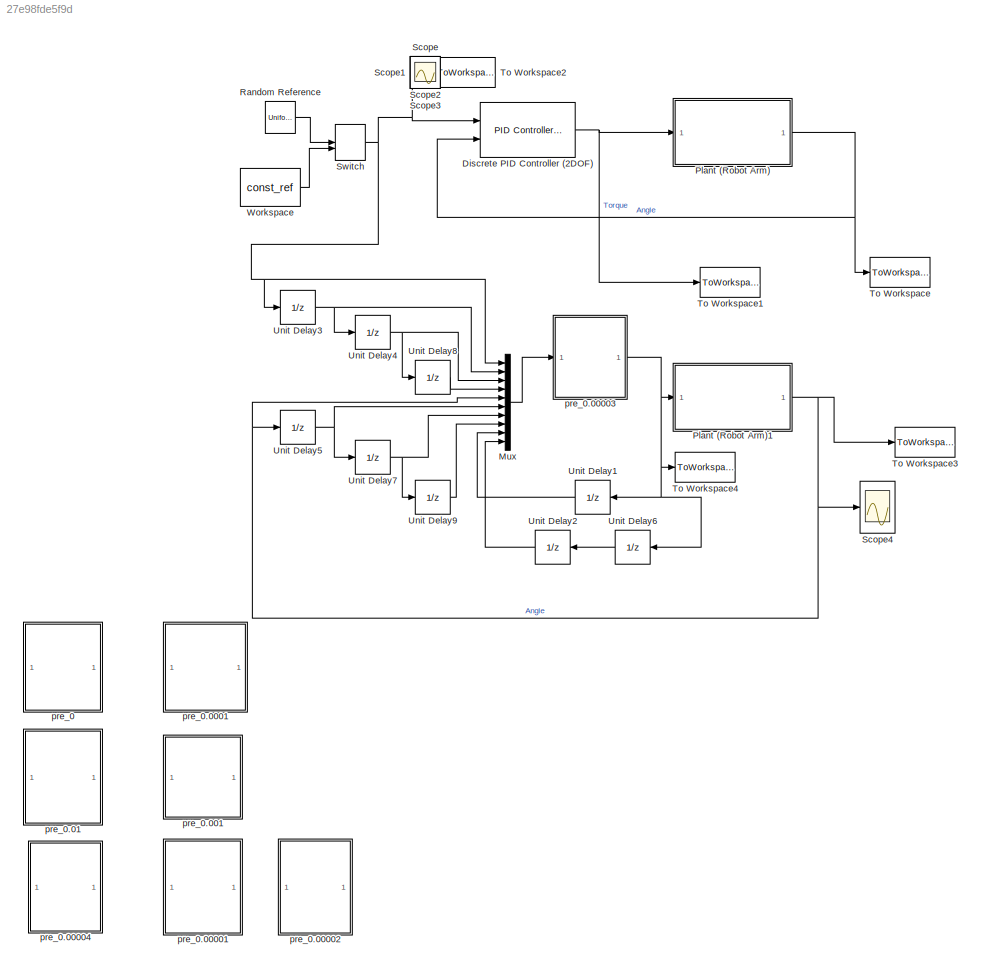
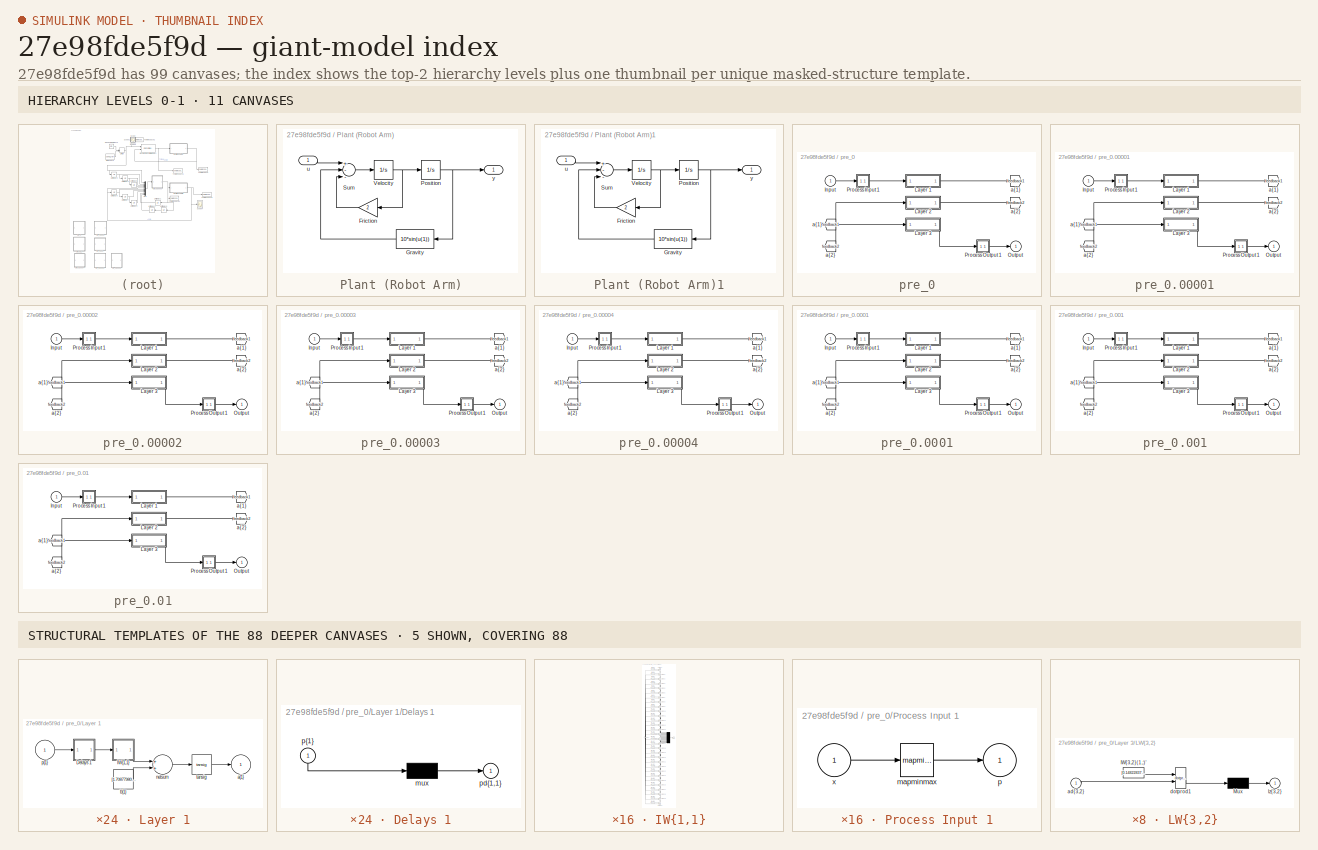
[diagram: thumbnail index - top-2 hierarchy levels (11 canvases) + 5 structural-template representatives of the remaining 88 canvases]
MODEL slx_27e98fde5f9d
KIND model
CONFIG AbsTol = 1e-6
CONFIG EnableMultiTasking = off
CONFIG FixedStep = options.dt
CONFIG MaxStep = auto
CONFIG MinStep = auto
CONFIG PreLoadFcn = const_ref=-0.1;\noptions.dt=0.02;\n\n
CONFIG RelTol = 1e-3
CONFIG SampleTimeConstraint = Unconstrained
CONFIG Solver = FixedStepAuto
CONFIG SolverName = FixedStepAuto
CONFIG StartTime = 0.0
CONFIG StopTime = 10
BLOCK [Reference] Discrete PID Controller (2DOF)  REF=simulink/Continuous/PID Controller (2DOF)
  Ports = [2, 1]
  SourceBlock = simulink/Continuous/PID Controller (2DOF)
  SourceProductBaseCode = SL
  SourceProductName = Simulink
  SourceType = PID 2dof
BLOCK [Mux] Mux
  DisplayOption = bar
  Inputs = 10
  Ports = [10, 1]
BLOCK [SubSystem] Plant (Robot Arm)
  Ports = [1, 1]
  RequestExecContextInheritance = off
BLOCK [Gain] Plant (Robot Arm)/Friction
  Gain = 2
BLOCK [Fcn] Plant (Robot Arm)/Gravity
  Expr = 10*sin(u(1))
BLOCK [Integrator] Plant (Robot Arm)/Position
  Ports = [1, 1]
  ZeroCross = off
BLOCK [Sum] Plant (Robot Arm)/Sum
  Inputs = +--
  Ports = [3, 1]
BLOCK [Integrator] Plant (Robot Arm)/Velocity
  Ports = [1, 1]
  ZeroCross = off
BLOCK [Inport] Plant (Robot Arm)/u
  IconDisplay = Port number
BLOCK [Outport] Plant (Robot Arm)/y
  IconDisplay = Port number
BLOCK [SubSystem] Plant (Robot Arm)1
  Ports = [1, 1]
  RequestExecContextInheritance = off
BLOCK [Gain] Plant (Robot Arm)1/Friction
  Gain = 2
BLOCK [Fcn] Plant (Robot Arm)1/Gravity
  Expr = 10*sin(u(1))
BLOCK [Integrator] Plant (Robot Arm)1/Position
  Ports = [1, 1]
  ZeroCross = off
BLOCK [Sum] Plant (Robot Arm)1/Sum
  Inputs = +--
  Ports = [3, 1]
BLOCK [Integrator] Plant (Robot Arm)1/Velocity
  Ports = [1, 1]
  ZeroCross = off
BLOCK [Inport] Plant (Robot Arm)1/u
  IconDisplay = Port number
BLOCK [Outport] Plant (Robot Arm)1/y
  IconDisplay = Port number
BLOCK [UniformRandomNumber] Random Reference
  Maximum = 0.4
  Minimum = -0.4
  SampleTime = 10
  Seed = randi(1000,1)
BLOCK [Scope] Scope
  Floating = off
  IOType = viewer
  NumInputPorts = 1
  Ports = []
  ScopeSpecificationString = Simulink.scopes.TimeScopeBlockCfg('CurrentConfiguration', extmgr.ConfigurationSet(extmgr.Configuration('Core','General UI',true),extmgr.Configuration('Core','Source UI',true),extmgr.Configuration('Sources','WiredSimulink',true),extmgr.Configuration('Visuals','Time Domain',true,'SerializedDisplays',{struct('MinYLimReal','-0.03897','MaxYLimReal','0.35069','YLabelReal','','MinYLimMag','0.00000','MaxY...<+1325ch>
BLOCK [Scope] Scope1
  Floating = off
  IOType = viewer
  NumInputPorts = 1
  Ports = []
  ScopeSpecificationString = Simulink.scopes.TimeScopeBlockCfg('CurrentConfiguration', extmgr.ConfigurationSet(extmgr.Configuration('Core','General UI',true),extmgr.Configuration('Core','Source UI',true),extmgr.Configuration('Sources','WiredSimulink',true,'DataLoggingVariableName','ScopeData1'),extmgr.Configuration('Visuals','Time Domain',true,'SerializedDisplays',{struct('MinYLimReal','-7.912','MaxYLimReal','0.87911','YLabel...<+1382ch>
BLOCK [Scope] Scope2
  Floating = off
  IOType = viewer
  NumInputPorts = 1
  Ports = []
  ScopeSpecificationString = Simulink.scopes.TimeScopeBlockCfg('CurrentConfiguration', extmgr.ConfigurationSet(extmgr.Configuration('Core','General UI',true),extmgr.Configuration('Core','Source UI',true),extmgr.Configuration('Sources','WiredSimulink',true,'DataLoggingVariableName','ScopeData1'),extmgr.Configuration('Visuals','Time Domain',true,'SerializedDisplays',{struct('MinYLimReal','-53.32471','MaxYLimReal','61.59419','YL...<+1365ch>
BLOCK [Scope] Scope3
  Floating = off
  IOType = viewer
  NumInputPorts = 1
  Ports = []
  ScopeSpecificationString = Simulink.scopes.TimeScopeBlockCfg('CurrentConfiguration', extmgr.ConfigurationSet(extmgr.Configuration('Core','General UI',true),extmgr.Configuration('Core','Source UI',true),extmgr.Configuration('Sources','WiredSimulink',true,'DataLoggingVariableName','ScopeData2'),extmgr.Configuration('Visuals','Time Domain',true,'SerializedDisplays',{struct('MinYLimReal','-50.21016','MaxYLimReal','61.80354','YL...<+1371ch>
BLOCK [Scope] Scope4
  Floating = off
  NumInputPorts = 1
  Ports = [1]
  ScopeSpecificationString = Simulink.scopes.TimeScopeBlockCfg('CurrentConfiguration', extmgr.ConfigurationSet(extmgr.Configuration('Core','General UI',true),extmgr.Configuration('Core','Source UI',true),extmgr.Configuration('Sources','WiredSimulink',true,'DataLoggingVariableName','ScopeData1'),extmgr.Configuration('Visuals','Time Domain',true,'SerializedDisplays',{struct('MinYLimReal','-7.912','MaxYLimReal','0.87911','YLabel...<+1411ch>
BLOCK [ManualSwitch] Switch
  CurrentSetting = 0
BLOCK [ToWorkspace] To Workspace
  FixptAsFi = on
  MaxDataPoints = inf
  Ports = [1]
  SampleTime = -1
  Save2DSignal = 3-D array (concatenate along third dimension)
  SaveFormat = Structure With Time
  VariableName = y
BLOCK [ToWorkspace] To Workspace1
  FixptAsFi = on
  MaxDataPoints = inf
  Ports = [1]
  SampleTime = -1
  Save2DSignal = 3-D array (concatenate along third dimension)
  SaveFormat = Structure With Time
  VariableName = u
BLOCK [ToWorkspace] To Workspace2
  FixptAsFi = on
  MaxDataPoints = inf
  Ports = [1]
  SampleTime = options.dt
  Save2DSignal = 3-D array (concatenate along third dimension)
  SaveFormat = Structure With Time
  VariableName = ref
BLOCK [ToWorkspace] To Workspace3
  FixptAsFi = on
  MaxDataPoints = inf
  Ports = [1]
  SampleTime = -1
  Save2DSignal = 3-D array (concatenate along third dimension)
  SaveFormat = Structure With Time
  VariableName = y_nn
BLOCK [ToWorkspace] To Workspace4
  FixptAsFi = on
  MaxDataPoints = inf
  Ports = [1]
  SampleTime = -1
  Save2DSignal = 3-D array (concatenate along third dimension)
  SaveFormat = Structure With Time
  VariableName = u_nn
BLOCK [UnitDelay] Unit Delay1
  InputProcessing = Elements as channels (sample based)
  SampleTime = 0.02
BLOCK [UnitDelay] Unit Delay2
  InputProcessing = Elements as channels (sample based)
  SampleTime = 0.02
BLOCK [UnitDelay] Unit Delay3
  InputProcessing = Elements as channels (sample based)
  SampleTime = 0.02
BLOCK [UnitDelay] Unit Delay4
  InputProcessing = Elements as channels (sample based)
  SampleTime = 0.02
BLOCK [UnitDelay] Unit Delay5
  InputProcessing = Elements as channels (sample based)
  SampleTime = 0.02
BLOCK [UnitDelay] Unit Delay6
  InputProcessing = Elements as channels (sample based)
  SampleTime = 0.02
BLOCK [UnitDelay] Unit Delay7
  InputProcessing = Elements as channels (sample based)
  SampleTime = 0.02
BLOCK [UnitDelay] Unit Delay8
  InputProcessing = Elements as channels (sample based)
  SampleTime = 0.02
BLOCK [UnitDelay] Unit Delay9
  InputProcessing = Elements as channels (sample based)
  SampleTime = 0.02
BLOCK [Constant] Workspace
  SampleTime = options.dt
  Value = const_ref
BLOCK [SubSystem] pre_0
  Ports = [1, 1]
  RequestExecContextInheritance = off
BLOCK [SubSystem] pre_0.00001
  Ports = [1, 1]
  RequestExecContextInheritance = off
BLOCK [From] pre_0.00001/ a{1} 
  GotoTag = feedback1
BLOCK [From] pre_0.00001/ a{2} 
  GotoTag = feedback2
BLOCK [Inport] pre_0.00001/Input
  IconDisplay = Port number
  PortDimensions = 10
BLOCK [SubSystem] pre_0.00001/Layer 1
  Ports = [1, 1]
  RequestExecContextInheritance = off
BLOCK [SubSystem] pre_0.00001/Layer 1/Delays 1
  Ports = [1, 1]
  RequestExecContextInheritance = off
BLOCK [Mux] pre_0.00001/Layer 1/Delays 1/mux
  Inputs = 1
  Ports = [1, 1]
BLOCK [Outport] pre_0.00001/Layer 1/Delays 1/pd{1,1}
  IconDisplay = Port number
BLOCK [Inport] pre_0.00001/Layer 1/Delays 1/p{1}
  IconDisplay = Port number
  PortDimensions = 10
BLOCK [SubSystem] pre_0.00001/Layer 1/IW{1,1}
  Ports = [1, 1]
  RequestExecContextInheritance = off
BLOCK [Constant] pre_0.00001/Layer 1/IW{1,1}/IW{1,1}(1,:)'
  Value = [0.792718026499978467569462736719287931919097900390625;-0.70093126819101170266179678947082720696926116943359375;0.05608783841132684855335099882722715847194194793701171875;0.650494068864035934751655076979659497737884521484375;0.339334487435024423351848099628114141523838043212890625;0.0859367098609566948397286978433839976787567138671875;-0.00303800444739509879765737565548988641239702701568603515625;...<+163ch>
BLOCK [Constant] pre_0.00001/Layer 1/IW{1,1}/IW{1,1}(10,:)'
  Value = [-0.73011494914437558012565432363771833479404449462890625;0.53826111472537074842392712525906972587108612060546875;-0.91095835698161409244022479470004327595233917236328125;-0.36941848168567614774104868047288618981838226318359375;0.448631007647780022384864651030511595308780670166015625;1.0297337541511095704294120878330431878566741943359375;-0.918213824035238435072869833675213158130645751953125;0.001...<+175ch>
BLOCK [Constant] pre_0.00001/Layer 1/IW{1,1}/IW{1,1}(11,:)'
  Value = [-0.60076975369661955728162183731910772621631622314453125;-0.7815534313177094905000785729498602449893951416015625;-0.10636660936180315772947579944229801185429096221923828125;-0.5105893863131518717324297540471889078617095947265625;-0.143121669664646067321456257559475488960742950439453125;0.60572962861191059769083722130744718015193939208984375;-1.0447411499515466548615449937642551958560943603515625;...<+169ch>
BLOCK [Constant] pre_0.00001/Layer 1/IW{1,1}/IW{1,1}(12,:)'
  Value = [0.79226988447897206402359415733371861279010772705078125;0.64150368497529985933880425363895483314990997314453125;0.4266831198942007130625597710604779422283172607421875;0.66813282241212046397293988775345496833324432373046875;0.75696621485603021728394423917052336037158966064453125;1.0631786645748324549032304275897331535816192626953125;0.025638359869932292323113642851240001618862152099609375;-0.40136...<+160ch>
BLOCK [Constant] pre_0.00001/Layer 1/IW{1,1}/IW{1,1}(13,:)'
  Value = [-1.0158634091929668041842660386464558541774749755859375;0.69775822024707412349897595049696974456310272216796875;0.03991779606440941374767561455882969312369823455810546875;0.875077748235802754805945369298569858074188232421875;0.375559951228444599546918425403418950736522674560546875;0.329837496371995164690105184490676037967205047607421875;0.1780538341284050585233700303433579392731189727783203125;-1...<+167ch>
BLOCK [Constant] pre_0.00001/Layer 1/IW{1,1}/IW{1,1}(14,:)'
  Value = [0.34514652338435525269488834965159185230731964111328125;-0.2893002995822107070722495336667634546756744384765625;0.373129036692417870302307392194052226841449737548828125;0.43645209584388922063880045243422500789165496826171875;0.5361512855752612605186868677265010774135589599609375;-0.78016467077285167608380334058892913162708282470703125;0.06624618858070906168844516059834859333932399749755859375;0.7...<+156ch>
BLOCK [Constant] pre_0.00001/Layer 1/IW{1,1}/IW{1,1}(15,:)'
  Value = [0.98538073114240554151166406882111914455890655517578125;-0.2081376007440757514022067198311560787260532379150390625;0.705773248635602090672591657494194805622100830078125;-0.55424090413714910408060632107662968337535858154296875;-0.366114997134839803560879545329953543841838836669921875;0.16451585470810403677432987024076282978057861328125;0.2042206532680158337367259946404374204576015472412109375;0.36...<+169ch>
BLOCK [Constant] pre_0.00001/Layer 1/IW{1,1}/IW{1,1}(16,:)'
  Value = [0.2242002993113756115217682918228092603385448455810546875;0.8059584455887829346210082803736440837383270263671875;0.041800229802249212751608098415090353228151798248291015625;0.60414663903486454099578395471326075494289398193359375;0.472397615412359639375239339642575941979885101318359375;0.734346162971953209108733062748797237873077392578125;-0.752981881277486220227501689805649220943450927734375;0.62...<+164ch>
BLOCK [Constant] pre_0.00001/Layer 1/IW{1,1}/IW{1,1}(17,:)'
  Value = [0.43104017993212939696690000346279703080654144287109375;-1.0114211457865944776557398654404096305370330810546875;0.529087704281758330893126185401342809200286865234375;0.2176133943608942467040634483055328018963336944580078125;0.1811025579219071313108457843554788269102573394775390625;1.2162624044515830679102919020806439220905303955078125;-0.74319871506040968700546045511146076023578643798828125;-0.15...<+161ch>
BLOCK [Constant] pre_0.00001/Layer 1/IW{1,1}/IW{1,1}(18,:)'
  Value = [0.69729852650166190830560708491248078644275665283203125;0.328669282591977085505874356385902501642704010009765625;-0.7743289263332922001126235045376233756542205810546875;-0.427401450965814333482484244086663238704204559326171875;0.7684882590639843247259932468296028673648834228515625;-0.463323750289418134773455903996364213526248931884765625;0.60292020024025561042435583658516407012939453125;-0.762551...<+160ch>
BLOCK [Constant] pre_0.00001/Layer 1/IW{1,1}/IW{1,1}(19,:)'
  Value = [0.9744404625544247355861671167076565325260162353515625;-0.443476463011988730755774668068625032901763916015625;0.66053078889701632991915403181337751448154449462890625;0.334011530121419764061130308618885464966297149658203125;-0.65018637595317307908970860808040015399456024169921875;0.1459647843651813714505038888091803528368473052978515625;-0.02049491392940527845212272950448095798492431640625;0.23472...<+159ch>
BLOCK [Constant] pre_0.00001/Layer 1/IW{1,1}/IW{1,1}(2,:)'
  Value = [0.2636982267939718127536252723075449466705322265625;-0.8548952516237184884317912292317487299442291259765625;0.486232191268747004908590270133572630584239959716796875;-0.240014422354133005743648254792788065969944000244140625;-0.262996500397268795357064163908944465219974517822265625;0.130598753997902605750169868770171888172626495361328125;-1.24364530908259585118003087700344622135162353515625;1.04254...<+162ch>
BLOCK [Constant] pre_0.00001/Layer 1/IW{1,1}/IW{1,1}(20,:)'
  Value = [0.62986728600408403710986249279812909662723541259765625;0.01225817241564213823379336787411375553347170352935791015625;-0.54365738659735018956098429043777287006378173828125;0.7513404595413641917645009016268886625766754150390625;-0.440534965778207443509728591379825957119464874267578125;0.8029930625960999268642126480699516832828521728515625;0.1315056605710212267457137613746454007923603057861328125;0...<+172ch>
BLOCK [Constant] pre_0.00001/Layer 1/IW{1,1}/IW{1,1}(21,:)'
  Value = [-0.47378938412666349311308522374019958078861236572265625;0.48578761228713374098475696882815100252628326416015625;0.034475295389157438463723082122669438831508159637451171875;0.155503246769882752520430813092389144003391265869140625;-0.92743067868098372219520797443692572414875030517578125;0.99469786221565303918623612844385206699371337890625;-0.88054678970821675942914907864178530871868133544921875;0....<+168ch>
BLOCK [Constant] pre_0.00001/Layer 1/IW{1,1}/IW{1,1}(22,:)'
  Value = [-0.203251066050530393436446274790796451270580291748046875;0.6801901609191822739575172818149439990520477294921875;0.273506231817061296052173702264553867280483245849609375;0.49567466965405027057300912929349578917026519775390625;-0.5401198371168847156553738386719487607479095458984375;-0.62218739456634530871070865032379515469074249267578125;1.229200213576618683219976446707732975482940673828125;0.1471...<+164ch>
BLOCK [Constant] pre_0.00001/Layer 1/IW{1,1}/IW{1,1}(23,:)'
  Value = [-1.278703135784561961685312780900858342647552490234375;-0.3235779278436548000996708651655353605747222900390625;0.95102036510107457178975209899363107979297637939453125;0.5361783260187056310286379812168888747692108154296875;-0.7378988594593567373891573879518546164035797119140625;0.2318410310548441877198655447500641457736492156982421875;-0.000981050128366227390877551961523295176448300480842590332031...<+175ch>
BLOCK [Constant] pre_0.00001/Layer 1/IW{1,1}/IW{1,1}(24,:)'
  Value = [0.418215899254464840151257476463797502219676971435546875;-0.67449721806075346730580122311948798596858978271484375;0.52895924674882233151862465092563070356845855712890625;-0.3918847743765019320250075907097198069095611572265625;-1.4710418700029499472492489076103083789348602294921875;0.988510203554212818488622360746376216411590576171875;-0.277304749265782690681447775205015204846858978271484375;0.246...<+167ch>
BLOCK [Constant] pre_0.00001/Layer 1/IW{1,1}/IW{1,1}(25,:)'
  Value = [-1.0450401928464863043899413241888396441936492919921875;0.26768904396254178390535116704995743930339813232421875;0.6220878362540105399602907709777355194091796875;-0.44542176550071765905869369817082770168781280517578125;-0.42519305307979815555796676562749780714511871337890625;0.5075149011143402777435085226898081600666046142578125;0.341217779421175981813263433650718070566654205322265625;0.7142429533...<+158ch>
BLOCK [Constant] pre_0.00001/Layer 1/IW{1,1}/IW{1,1}(26,:)'
  Value = [0.26702237568866371564269002192304469645023345947265625;-0.69680980665157410403054427661118097603321075439453125;-0.882749403982257430101299178204499185085296630859375;0.65580656856601537985085315085598267614841461181640625;-0.77663248582784671913969987144810147583484649658203125;-0.52846124031789531994007802495616488158702850341796875;0.4728223633643595658071490106522105634212493896484375;-0.284...<+164ch>
BLOCK [Constant] pre_0.00001/Layer 1/IW{1,1}/IW{1,1}(27,:)'
  Value = [-0.08287127993780074586283035387168638408184051513671875;0.7875430051250147389652056517661549150943756103515625;0.0168491671371741348617323552616653614677488803863525390625;-0.58340432971275235640717937712906859815120697021484375;0.34377938651103701062083928263746201992034912109375;-0.94533239146287895149356472757062874734401702880859375;-0.87678431634149822659907158595160581171512603759765625;-0...<+170ch>
BLOCK [Constant] pre_0.00001/Layer 1/IW{1,1}/IW{1,1}(28,:)'
  Value = [0.12026623738084031567385778771495097316801548004150390625;-0.08928644028343395155911110805391217581927776336669921875;-0.05648596192922143710557492113366606645286083221435546875;-0.1646184924019922224402989741065539419651031494140625;-0.92959219471081755425956316685187630355358123779296875;1.295556872011456750470870247227139770984649658203125;-0.41434232243031160480839503179595340043306350708007...<+174ch>
BLOCK [Constant] pre_0.00001/Layer 1/IW{1,1}/IW{1,1}(29,:)'
  Value = [0.1873773780717154779917876794570474885404109954833984375;-0.89952207513065418620357149848132394254207611083984375;0.02928054761829000651740528837763122282922267913818359375;0.43376052047927127208737374530755914747714996337890625;-0.06688360718705747831602792530247825197875499725341796875;0.30697863938615699286316385041573084890842437744140625;-0.39850540771862391631330524432996753603219985961914...<+176ch>
BLOCK [Constant] pre_0.00001/Layer 1/IW{1,1}/IW{1,1}(3,:)'
  Value = [0.584912886502609641325989286997355520725250244140625;0.037499839273540190587308273961753002367913722991943359375;0.1559421387207623188597693797419196926057338714599609375;-0.40430179886704864511415280503570102155208587646484375;-0.73667631815217238244741793096181936562061309814453125;0.88611514021734993917789324768818914890289306640625;0.7688638706773576192432528841891326010227203369140625;-0.45...<+166ch>
BLOCK [Constant] pre_0.00001/Layer 1/IW{1,1}/IW{1,1}(30,:)'
  Value = [0.5956981277261983453996663229190744459629058837890625;0.257980583125774265429441811647848226130008697509765625;-0.093553679947365353530841503015835769474506378173828125;0.681955696995973692509096508729271590709686279296875;-0.404027881545070244317940932887722738087177276611328125;-0.76807032630568994324704590326291508972644805908203125;1.0526870101417660219311756009119562804698944091796875;0.801...<+162ch>
BLOCK [Constant] pre_0.00001/Layer 1/IW{1,1}/IW{1,1}(4,:)'
  Value = [-0.3987487622019754152091763899079523980617523193359375;0.3639334878667723760514718378544785082340240478515625;0.55073689900528954854763696857844479382038116455078125;-0.70170443549172600850027947672060690820217132568359375;-0.69772627901864769928153009459492750465869903564453125;0.0801987147770017172465628618738264776766300201416015625;0.1123547017193594343975604488150565885007381439208984375;-0...<+169ch>
BLOCK [Constant] pre_0.00001/Layer 1/IW{1,1}/IW{1,1}(5,:)'
  Value = [0.9944554000969259011100120915216393768787384033203125;0.43366553125329254658737454519723542034626007080078125;0.2435987442017230886204259832084062509238719940185546875;-0.57916599317854655648574180304422043263912200927734375;-0.76993312696056948052358848144649527966976165771484375;1.337585755268572373921642792993225157260894775390625;-0.10896606782235758459354002525287796743214130401611328125;0....<+169ch>
BLOCK [Constant] pre_0.00001/Layer 1/IW{1,1}/IW{1,1}(6,:)'
  Value = [0.344540402319315874901661800322472117841243743896484375;0.8087571993076443366277317181811667978763580322265625;0.1975205012380635560820252294433885253965854644775390625;0.7169620962620346649174507547286339104175567626953125;-0.43602709995182820090775521748582832515239715576171875;-0.1796510465245913235055041923260432668030261993408203125;-0.1442507592862380672027455830175313167273998260498046875...<+172ch>
BLOCK [Constant] pre_0.00001/Layer 1/IW{1,1}/IW{1,1}(7,:)'
  Value = [-0.61143369907137123941964773621293716132640838623046875;-0.14240540271073809375224072937271557748317718505859375;-0.54474721016627769554219185010879300534725189208984375;-0.5765566045200163358686040737666189670562744140625;-1.3944510232538387395351264785858802497386932373046875;0.972976043687458602704509758041240274906158447265625;-0.373034909650978352413375205287593416869640350341796875;0.16736...<+162ch>
BLOCK [Constant] pre_0.00001/Layer 1/IW{1,1}/IW{1,1}(8,:)'
  Value = [0.53259346736689128221087230485863983631134033203125;-0.76988156180607825174178060478880070149898529052734375;0.81533715384688598692974892401252873241901397705078125;0.41358838598987179846488970724749378859996795654296875;0.565382799537205382733873193501494824886322021484375;-0.59193382506844915980082078021951019763946533203125;0.74192295556009579815537335889530368149280548095703125;-0.5310895184...<+157ch>
BLOCK [Constant] pre_0.00001/Layer 1/IW{1,1}/IW{1,1}(9,:)'
  Value = [-0.158800591690646364373407095627044327557086944580078125;-0.9799390453563063818620548772742040455341339111328125;0.38909042705299390352280397564754821360111236572265625;0.07975402186501490131576019848580472171306610107421875;0.54029892868337248135190975517616607248783111572265625;1.3739320300820978548728135137935169041156768798828125;-0.281829778295719368674809857111540623009204864501953125;0.01...<+162ch>
BLOCK [Mux] pre_0.00001/Layer 1/IW{1,1}/Mux
  Inputs = 30
  Ports = [30, 1]
BLOCK [Reference] pre_0.00001/Layer 1/IW{1,1}/dotprod1  REF=neural/Weight Functions/dotprod
  Ports = [2, 1]
  SourceBlock = neural/Weight Functions/dotprod
  SourceProductBaseCode = NN
  SourceProductName = Neural Network Toolbox
  SourceType = DOTPROD
BLOCK [Reference] pre_0.00001/Layer 1/IW{1,1}/dotprod10  REF=neural/Weight Functions/dotprod
  Ports = [2, 1]
  SourceBlock = neural/Weight Functions/dotprod
  SourceProductBaseCode = NN
  SourceProductName = Neural Network Toolbox
  SourceType = DOTPROD
BLOCK [Reference] pre_0.00001/Layer 1/IW{1,1}/dotprod11  REF=neural/Weight Functions/dotprod
  Ports = [2, 1]
  SourceBlock = neural/Weight Functions/dotprod
  SourceProductBaseCode = NN
  SourceProductName = Neural Network Toolbox
  SourceType = DOTPROD
BLOCK [Reference] pre_0.00001/Layer 1/IW{1,1}/dotprod12  REF=neural/Weight Functions/dotprod
  Ports = [2, 1]
  SourceBlock = neural/Weight Functions/dotprod
  SourceProductBaseCode = NN
  SourceProductName = Neural Network Toolbox
  SourceType = DOTPROD
BLOCK [Reference] pre_0.00001/Layer 1/IW{1,1}/dotprod13  REF=neural/Weight Functions/dotprod
  Ports = [2, 1]
  SourceBlock = neural/Weight Functions/dotprod
  SourceProductBaseCode = NN
  SourceProductName = Neural Network Toolbox
  SourceType = DOTPROD
BLOCK [Reference] pre_0.00001/Layer 1/IW{1,1}/dotprod14  REF=neural/Weight Functions/dotprod
  Ports = [2, 1]
  SourceBlock = neural/Weight Functions/dotprod
  SourceProductBaseCode = NN
  SourceProductName = Neural Network Toolbox
  SourceType = DOTPROD
BLOCK [Reference] pre_0.00001/Layer 1/IW{1,1}/dotprod15  REF=neural/Weight Functions/dotprod
  Ports = [2, 1]
  SourceBlock = neural/Weight Functions/dotprod
  SourceProductBaseCode = NN
  SourceProductName = Neural Network Toolbox
  SourceType = DOTPROD
BLOCK [Reference] pre_0.00001/Layer 1/IW{1,1}/dotprod16  REF=neural/Weight Functions/dotprod
  Ports = [2, 1]
  SourceBlock = neural/Weight Functions/dotprod
  SourceProductBaseCode = NN
  SourceProductName = Neural Network Toolbox
  SourceType = DOTPROD
BLOCK [Reference] pre_0.00001/Layer 1/IW{1,1}/dotprod17  REF=neural/Weight Functions/dotprod
  Ports = [2, 1]
  SourceBlock = neural/Weight Functions/dotprod
  SourceProductBaseCode = NN
  SourceProductName = Neural Network Toolbox
  SourceType = DOTPROD
BLOCK [Reference] pre_0.00001/Layer 1/IW{1,1}/dotprod18  REF=neural/Weight Functions/dotprod
  Ports = [2, 1]
  SourceBlock = neural/Weight Functions/dotprod
  SourceProductBaseCode = NN
  SourceProductName = Neural Network Toolbox
  SourceType = DOTPROD
BLOCK [Reference] pre_0.00001/Layer 1/IW{1,1}/dotprod19  REF=neural/Weight Functions/dotprod
  Ports = [2, 1]
  SourceBlock = neural/Weight Functions/dotprod
  SourceProductBaseCode = NN
  SourceProductName = Neural Network Toolbox
  SourceType = DOTPROD
BLOCK [Reference] pre_0.00001/Layer 1/IW{1,1}/dotprod2  REF=neural/Weight Functions/dotprod
  Ports = [2, 1]
  SourceBlock = neural/Weight Functions/dotprod
  SourceProductBaseCode = NN
  SourceProductName = Neural Network Toolbox
  SourceType = DOTPROD
BLOCK [Reference] pre_0.00001/Layer 1/IW{1,1}/dotprod20  REF=neural/Weight Functions/dotprod
  Ports = [2, 1]
  SourceBlock = neural/Weight Functions/dotprod
  SourceProductBaseCode = NN
  SourceProductName = Neural Network Toolbox
  SourceType = DOTPROD
BLOCK [Reference] pre_0.00001/Layer 1/IW{1,1}/dotprod21  REF=neural/Weight Functions/dotprod
  Ports = [2, 1]
  SourceBlock = neural/Weight Functions/dotprod
  SourceProductBaseCode = NN
  SourceProductName = Neural Network Toolbox
  SourceType = DOTPROD
BLOCK [Reference] pre_0.00001/Layer 1/IW{1,1}/dotprod22  REF=neural/Weight Functions/dotprod
  Ports = [2, 1]
  SourceBlock = neural/Weight Functions/dotprod
  SourceProductBaseCode = NN
  SourceProductName = Neural Network Toolbox
  SourceType = DOTPROD
BLOCK [Reference] pre_0.00001/Layer 1/IW{1,1}/dotprod23  REF=neural/Weight Functions/dotprod
  Ports = [2, 1]
  SourceBlock = neural/Weight Functions/dotprod
  SourceProductBaseCode = NN
  SourceProductName = Neural Network Toolbox
  SourceType = DOTPROD
BLOCK [Reference] pre_0.00001/Layer 1/IW{1,1}/dotprod24  REF=neural/Weight Functions/dotprod
  Ports = [2, 1]
  SourceBlock = neural/Weight Functions/dotprod
  SourceProductBaseCode = NN
  SourceProductName = Neural Network Toolbox
  SourceType = DOTPROD
BLOCK [Reference] pre_0.00001/Layer 1/IW{1,1}/dotprod25  REF=neural/Weight Functions/dotprod
  Ports = [2, 1]
  SourceBlock = neural/Weight Functions/dotprod
  SourceProductBaseCode = NN
  SourceProductName = Neural Network Toolbox
  SourceType = DOTPROD
BLOCK [Reference] pre_0.00001/Layer 1/IW{1,1}/dotprod26  REF=neural/Weight Functions/dotprod
  Ports = [2, 1]
  SourceBlock = neural/Weight Functions/dotprod
  SourceProductBaseCode = NN
  SourceProductName = Neural Network Toolbox
  SourceType = DOTPROD
BLOCK [Reference] pre_0.00001/Layer 1/IW{1,1}/dotprod27  REF=neural/Weight Functions/dotprod
  Ports = [2, 1]
  SourceBlock = neural/Weight Functions/dotprod
  SourceProductBaseCode = NN
  SourceProductName = Neural Network Toolbox
  SourceType = DOTPROD
BLOCK [Reference] pre_0.00001/Layer 1/IW{1,1}/dotprod28  REF=neural/Weight Functions/dotprod
  Ports = [2, 1]
  SourceBlock = neural/Weight Functions/dotprod
  SourceProductBaseCode = NN
  SourceProductName = Neural Network Toolbox
  SourceType = DOTPROD
BLOCK [Reference] pre_0.00001/Layer 1/IW{1,1}/dotprod29  REF=neural/Weight Functions/dotprod
  Ports = [2, 1]
  SourceBlock = neural/Weight Functions/dotprod
  SourceProductBaseCode = NN
  SourceProductName = Neural Network Toolbox
  SourceType = DOTPROD
BLOCK [Reference] pre_0.00001/Layer 1/IW{1,1}/dotprod3  REF=neural/Weight Functions/dotprod
  Ports = [2, 1]
  SourceBlock = neural/Weight Functions/dotprod
  SourceProductBaseCode = NN
  SourceProductName = Neural Network Toolbox
  SourceType = DOTPROD
BLOCK [Reference] pre_0.00001/Layer 1/IW{1,1}/dotprod30  REF=neural/Weight Functions/dotprod
  Ports = [2, 1]
  SourceBlock = neural/Weight Functions/dotprod
  SourceProductBaseCode = NN
  SourceProductName = Neural Network Toolbox
  SourceType = DOTPROD
BLOCK [Reference] pre_0.00001/Layer 1/IW{1,1}/dotprod4  REF=neural/Weight Functions/dotprod
  Ports = [2, 1]
  SourceBlock = neural/Weight Functions/dotprod
  SourceProductBaseCode = NN
  SourceProductName = Neural Network Toolbox
  SourceType = DOTPROD
BLOCK [Reference] pre_0.00001/Layer 1/IW{1,1}/dotprod5  REF=neural/Weight Functions/dotprod
  Ports = [2, 1]
  SourceBlock = neural/Weight Functions/dotprod
  SourceProductBaseCode = NN
  SourceProductName = Neural Network Toolbox
  SourceType = DOTPROD
BLOCK [Reference] pre_0.00001/Layer 1/IW{1,1}/dotprod6  REF=neural/Weight Functions/dotprod
  Ports = [2, 1]
  SourceBlock = neural/Weight Functions/dotprod
  SourceProductBaseCode = NN
  SourceProductName = Neural Network Toolbox
  SourceType = DOTPROD
BLOCK [Reference] pre_0.00001/Layer 1/IW{1,1}/dotprod7  REF=neural/Weight Functions/dotprod
  Ports = [2, 1]
  SourceBlock = neural/Weight Functions/dotprod
  SourceProductBaseCode = NN
  SourceProductName = Neural Network Toolbox
  SourceType = DOTPROD
BLOCK [Reference] pre_0.00001/Layer 1/IW{1,1}/dotprod8  REF=neural/Weight Functions/dotprod
  Ports = [2, 1]
  SourceBlock = neural/Weight Functions/dotprod
  SourceProductBaseCode = NN
  SourceProductName = Neural Network Toolbox
  SourceType = DOTPROD
BLOCK [Reference] pre_0.00001/Layer 1/IW{1,1}/dotprod9  REF=neural/Weight Functions/dotprod
  Ports = [2, 1]
  SourceBlock = neural/Weight Functions/dotprod
  SourceProductBaseCode = NN
  SourceProductName = Neural Network Toolbox
  SourceType = DOTPROD
BLOCK [Outport] pre_0.00001/Layer 1/IW{1,1}/iz{1,1}
  IconDisplay = Port number
BLOCK [Inport] pre_0.00001/Layer 1/IW{1,1}/pd{1,1}
  IconDisplay = Port number
  PortDimensions = 10
BLOCK [Outport] pre_0.00001/Layer 1/a{1}
  IconDisplay = Port number
  InitialOutput = [0;0;0;0;0;0;0;0;0;0;0;0;0;0;0;0;0;0;0;0;0;0;0;0;0;0;0;0;0;0]
BLOCK [Constant] pre_0.00001/Layer 1/b{1}
  Value = [-1.850717597500723510250963954604230821132659912109375;-1.5395074371438293159286558875464834272861480712890625;-1.63167607081766430354718977469019591808319091796875;1.70999739502331049578742749872617423534393310546875;-0.8150328368429580194742811727337539196014404296875;-0.7297333983252638489602759364061057567596435546875;0.309430951681818500187404197276919148862361907958984375;-0.761060914335184...<+1266ch>
BLOCK [Sum] pre_0.00001/Layer 1/netsum
  Inputs = 2
  Ports = [2, 1]
BLOCK [Inport] pre_0.00001/Layer 1/p{1}
  IconDisplay = Port number
  PortDimensions = 10
BLOCK [Reference] pre_0.00001/Layer 1/tansig  REF=neural/Transfer Functions/tansig
  Ports = [1, 1]
  SourceBlock = neural/Transfer Functions/tansig
  SourceProductBaseCode = NN
  SourceProductName = Neural Network Toolbox
  SourceType = TANSIG
BLOCK [SubSystem] pre_0.00001/Layer 2
  Ports = [1, 1]
  RequestExecContextInheritance = off
BLOCK [SubSystem] pre_0.00001/Layer 2/Delays 1
  Ports = [1, 1]
  RequestExecContextInheritance = off
BLOCK [Mux] pre_0.00001/Layer 2/Delays 1/mux
  Inputs = 1
  Ports = [1, 1]
BLOCK [Outport] pre_0.00001/Layer 2/Delays 1/pd{2,1}
  IconDisplay = Port number
BLOCK [Inport] pre_0.00001/Layer 2/Delays 1/p{2}
  IconDisplay = Port number
  PortDimensions = 30
BLOCK [SubSystem] pre_0.00001/Layer 2/LW{2,1}
  Ports = [1, 1]
  RequestExecContextInheritance = off
BLOCK [Constant] pre_0.00001/Layer 2/LW{2,1}/IW{2,1}(1,:)'
  Value = [-0.401288676364018492837004714601789601147174835205078125;0.3708311400797230650283609065809287130832672119140625;0.21711928294074045453498911228962242603302001953125;-0.269050018369807075746535929283709265291690826416015625;-0.189000264150039287702753654230036772787570953369140625;-0.434087336675972712551896393051720224320888519287109375;0.2371799085325643208221890745335258543491363525390625;0.33...<+1315ch>
BLOCK [Constant] pre_0.00001/Layer 2/LW{2,1}/IW{2,1}(10,:)'
  Value = [-0.148769644190378913517491810125648044049739837646484375;-0.5731997007712994474104561959393322467803955078125;0.410569498023493240079773158868192695081233978271484375;0.11814974956420835894288501322080264799296855926513671875;0.385876297145713753611317997638252563774585723876953125;0.1378906124888456263821723268847563304007053375244140625;-0.09605939385880291059294222577591426670551300048828125;...<+1313ch>
BLOCK [Constant] pre_0.00001/Layer 2/LW{2,1}/IW{2,1}(11,:)'
  Value = [-0.2237645512884789689156406211623107083141803741455078125;-0.39629907869157932065462546233902685344219207763671875;0.44942137617590549591994886213797144591808319091796875;-0.08125717334674185943210744653697474859654903411865234375;-0.056568026843484255083982503720108070410788059234619140625;0.1762810143790627115389924028932000510394573211669921875;-0.291942394577615893513922173951868899166584014...<+1330ch>
BLOCK [Constant] pre_0.00001/Layer 2/LW{2,1}/IW{2,1}(12,:)'
  Value = [0.08290625527264013083783567026330274529755115509033203125;0.2071810896716773930936739134267554618418216705322265625;-0.19231282883440325992552288880688138306140899658203125;-0.446915398385745621379072645140695385634899139404296875;-0.1142193365249982439646458942661411128938198089599609375;0.0697281237773062223528341974088107235729694366455078125;0.041188210723596616058550523575831903144717216491...<+1325ch>
BLOCK [Constant] pre_0.00001/Layer 2/LW{2,1}/IW{2,1}(13,:)'
  Value = [0.1256915469220950265505365450735553167760372161865234375;-0.418843556418237283889283162352512590587139129638671875;0.07731888017245754085582376546881278045475482940673828125;0.10992136364657474623118815770794753916561603546142578125;-0.297206266934216090103149099377333186566829681396484375;-0.5690149639380288615342351477011106908321380615234375;-0.045334824454712666086386718689027475193142890930...<+1337ch>
BLOCK [Constant] pre_0.00001/Layer 2/LW{2,1}/IW{2,1}(14,:)'
  Value = [0.1037945179917798832480713144832407124340534210205078125;0.4165405715976493450369844140368513762950897216796875;-0.456319801962402682438124656982836313545703887939453125;0.1292876516072752057784356338743236847221851348876953125;-0.5856361289929254976271977284341119229793548583984375;0.054448340997226431225985976425363332964479923248291015625;-0.511085785053521424181610655068652704358100891113281...<+1327ch>
BLOCK [Constant] pre_0.00001/Layer 2/LW{2,1}/IW{2,1}(15,:)'
  Value = [-0.60820189988449746554266539533273316919803619384765625;-0.37941960439255828507754131351248361170291900634765625;-0.3451321141049616958440537928254343569278717041015625;-0.406529420635390381644214130574255250394344329833984375;-0.35581477441510445114403182742535136640071868896484375;0.2354409817076527910995054071463528089225292205810546875;-0.11458282978676068153411904404492815956473350524902343...<+1328ch>
BLOCK [Constant] pre_0.00001/Layer 2/LW{2,1}/IW{2,1}(16,:)'
  Value = [-0.058300224454171982457761913565263967029750347137451171875;0.4382410116023940371832168239052407443523406982421875;-0.222957496405520594340288198509369976818561553955078125;0.1343974219723218510580409201793372631072998046875;0.157474356026957362786333760595880448818206787109375;0.0818849280123833123123944233157089911401271820068359375;0.460166210721777935166443285197601653635501861572265625;-0.3...<+1324ch>
BLOCK [Constant] pre_0.00001/Layer 2/LW{2,1}/IW{2,1}(17,:)'
  Value = [0.14925337227322454936029316741041839122772216796875;-0.1257894839784820251171737481854506768286228179931640625;0.35273089572212701359177344784257002174854278564453125;0.1709343972373229270100836174606229178607463836669921875;0.28918510466752744836327337907277978956699371337890625;-0.1173263667654096398251795108080841600894927978515625;0.6094410963680745307868846794008277356624603271484375;0.0539...<+1321ch>
BLOCK [Constant] pre_0.00001/Layer 2/LW{2,1}/IW{2,1}(18,:)'
  Value = [-0.08950440148720388566783157102690893225371837615966796875;-0.43939477150968520025031693876371718943119049072265625;-0.446175429472881523995653196834609843790531158447265625;0.1666464004096048501235571848155814222991466522216796875;-0.10766393913540615867585614751078537665307521820068359375;0.49969940022758063680186069177580066025257110595703125;-0.05124560380253248559334622314054286107420921325...<+1328ch>
BLOCK [Constant] pre_0.00001/Layer 2/LW{2,1}/IW{2,1}(19,:)'
  Value = [0.568678242899436359181208899826742708683013916015625;0.4184462427385848837246840048464946448802947998046875;0.11933845778973252438337482317365356720983982086181640625;0.348483518943012715585183514122036285698413848876953125;0.2042583711460383699698439841085928492248058319091796875;0.29671714737174637033234603222808800637722015380859375;-0.224852374436322666184651097864843904972076416015625;0.109...<+1315ch>
BLOCK [Constant] pre_0.00001/Layer 2/LW{2,1}/IW{2,1}(2,:)'
  Value = [-0.400593522946191382683167603317997418344020843505859375;-0.334965336151296033673219199044979177415370941162109375;0.0924982945211222651327176436097943224012851715087890625;-0.405237944519376946939104300327016972005367279052734375;0.27768336677298710579719909219420515000820159912109375;0.367885195761696814908958685919060371816158294677734375;0.1366009019380995670456258039848762564361095428466796...<+1328ch>
BLOCK [Constant] pre_0.00001/Layer 2/LW{2,1}/IW{2,1}(20,:)'
  Value = [-0.172100391047320944171161727354046888649463653564453125;0.20386564722159461471306940438807941973209381103515625;0.2141758390095257758023450378459529019892215728759765625;-0.396546288735589003149328846120624803006649017333984375;-0.24690613235830072280663216588436625897884368896484375;0.6767413544047402584880046561011113226413726806640625;-0.188525599911112645701294354694255162030458450317382812...<+1324ch>
BLOCK [Constant] pre_0.00001/Layer 2/LW{2,1}/IW{2,1}(21,:)'
  Value = [0.0133414622855222465835911549447700963355600833892822265625;-0.10401536543078358787450810041264048777520656585693359375;0.00092169452257391017158116852669991203583776950836181640625;-0.273465368546666864890681836186558939516544342041015625;-0.019988225897273885489635603107672068290412425994873046875;-0.223061989494701073954985304226283915340900421142578125;-0.761703041198345975892891601688461378...<+1342ch>
BLOCK [Constant] pre_0.00001/Layer 2/LW{2,1}/IW{2,1}(22,:)'
  Value = [0.273382367291687022881063739987439475953578948974609375;-0.421073451605345372428246264462359249591827392578125;-0.2253317010408052156744673766297637484967708587646484375;0.245220646123608998490084331933758221566677093505859375;0.0935996702248947098912168485185247845947742462158203125;-0.240355493384956264701912687087315134704113006591796875;-0.3823490651991997557601621338108088821172714233398437...<+1322ch>
BLOCK [Constant] pre_0.00001/Layer 2/LW{2,1}/IW{2,1}(23,:)'
  Value = [-0.07162624785362146917488956887609674595296382904052734375;0.0106953465905671139812849190775523311458528041839599609375;0.00350183735816654746753062710240556043572723865509033203125;0.17057180221351131432783176933298818767070770263671875;0.1457810098680244192959065685499808751046657562255859375;-0.499519228699093986723056559640099294483661651611328125;-0.03530808563254739240733215410728007555007...<+1318ch>
BLOCK [Constant] pre_0.00001/Layer 2/LW{2,1}/IW{2,1}(24,:)'
  Value = [0.371618086451491469457408811649656854569911956787109375;-0.15601646996314266768735024015768431127071380615234375;0.2029829423181017389321567634397069923579692840576171875;0.2119067397899931648463933697712491266429424285888671875;0.249279072100233867192997649908647872507572174072265625;-0.319818698128871814478912938284338451921939849853515625;-0.432506058261463377512257011403562501072883605957031...<+1322ch>
BLOCK [Constant] pre_0.00001/Layer 2/LW{2,1}/IW{2,1}(25,:)'
  Value = [-0.343337068256306443547742901500896550714969635009765625;-0.49147415714295894506591366734937764704227447509765625;-0.4329574126275701484445335154305212199687957763671875;0.17567745489566932715064240255742333829402923583984375;-0.37751839504661643953653538119397126138210296630859375;0.323057630663942052517967340463656000792980194091796875;-0.0693314733337382360645051448955200612545013427734375;-0...<+1325ch>
BLOCK [Constant] pre_0.00001/Layer 2/LW{2,1}/IW{2,1}(26,:)'
  Value = [0.405496005273295379023323903311393223702907562255859375;0.19223340420761314550901488473755307495594024658203125;0.2446556596678794714971871826492133550345897674560546875;-0.08987639037129184493846167924857581965625286102294921875;0.54644791445205054269962374746683053672313690185546875;0.00965064136406193311124024347691374714486300945281982421875;-0.24404328753279064256886954353831242769956588745...<+1316ch>
BLOCK [Constant] pre_0.00001/Layer 2/LW{2,1}/IW{2,1}(27,:)'
  Value = [-0.30278615468187120018939140209113247692584991455078125;0.235595352190999307584462485465337522327899932861328125;-0.1594704465841792762059725419021560810506343841552734375;-0.215863364088413833830060184482135809957981109619140625;0.292237283076605292020389015306136570870876312255859375;-0.00514119494261844334204170081648044288158416748046875;-0.247988884281673011011903895450814161449670791625976...<+1340ch>
BLOCK [Constant] pre_0.00001/Layer 2/LW{2,1}/IW{2,1}(28,:)'
  Value = [0.1189629747885531385609425569782615639269351959228515625;-0.0306124583353518976702734022410368197597563266754150390625;0.29074408251304950656646042261854745447635650634765625;0.353455919353541592187184505746699869632720947265625;0.05850308577795393372156240729964338243007659912109375;0.254431684451441153527184724225662648677825927734375;0.125234190803978073791569158856873400509357452392578125;-0...<+1320ch>
BLOCK [Constant] pre_0.00001/Layer 2/LW{2,1}/IW{2,1}(29,:)'
  Value = [-0.4831777278220583671242138734669424593448638916015625;-0.16204829368902051722756141316494904458522796630859375;-0.1773490594462043545842533376344363205134868621826171875;-0.29146963378256673937727327938773669302463531494140625;-0.051649212731027106804138071538545773364603519439697265625;0.37541641921292867589698971642064861953258514404296875;0.218705747615341866696425654481572564691305160522460...<+1346ch>
BLOCK [Constant] pre_0.00001/Layer 2/LW{2,1}/IW{2,1}(3,:)'
  Value = [0.15192235277016530314853071104153059422969818115234375;-0.493897801954041482108692662222892977297306060791015625;-0.07404946480485119497672030774992890655994415283203125;-0.09957965349040372171618429320005816407501697540283203125;0.1557855346945540009340192000308888964354991912841796875;0.464131780135252414165591972050606273114681243896484375;-0.22288434436750120815062814472184982150793075561523...<+1339ch>
BLOCK [Constant] pre_0.00001/Layer 2/LW{2,1}/IW{2,1}(30,:)'
  Value = [0.05494004557052388493243455513947992585599422454833984375;-0.22748678305754010953165789032937027513980865478515625;0.18571629949823442728984446148388087749481201171875;0.1919335205958766776834778511329204775393009185791015625;0.4978056320718178273665444066864438354969024658203125;0.1986762495655160776220071738862316124141216278076171875;0.08621996846557115901088508280736277811229228973388671875;...<+1338ch>
BLOCK [Constant] pre_0.00001/Layer 2/LW{2,1}/IW{2,1}(4,:)'
  Value = [0.4835021932671448308127537529799155890941619873046875;0.1393776775444080240351496513540041632950305938720703125;-0.34132665205934309415880534288589842617511749267578125;-0.13807316266734315224340434724581427872180938720703125;-0.12203885451973746356646444155558128841221332550048828125;0.360102948265010935902097344296635128557682037353515625;0.5827553901302142680407314401236362755298614501953125;...<+1321ch>
BLOCK [Constant] pre_0.00001/Layer 2/LW{2,1}/IW{2,1}(5,:)'
  Value = [-0.01489512847412083861031728559964903979562222957611083984375;0.192192565078650290377737519520451314747333526611328125;-0.11331434597601632019436834752923459745943546295166015625;0.1976845764846567321537662564878701232373714447021484375;0.03341400612201798903111438221458229236304759979248046875;0.2166607919110794255868057689440320245921611785888671875;0.217442062115501988373011954536195844411849...<+1324ch>
BLOCK [Constant] pre_0.00001/Layer 2/LW{2,1}/IW{2,1}(6,:)'
  Value = [-0.17699289629922942967965582283795811235904693603515625;-0.52822850262029097390126253230846486985683441162109375;-0.415759733576455958736772799966274760663509368896484375;-0.342150311453204791778404114666045643389225006103515625;0.07897709136593074330523478465693187899887561798095703125;-0.2678401390020697103722113752155564725399017333984375;0.5753848785594921633190779175492934882640838623046875...<+1335ch>
BLOCK [Constant] pre_0.00001/Layer 2/LW{2,1}/IW{2,1}(7,:)'
  Value = [0.05303724058402907448606100615506875328719615936279296875;0.1022786366160838011918343681827536784112453460693359375;0.183728994547678048387950866526807658374309539794921875;0.19177113898325603980055120700853876769542694091796875;0.2393828842200191875377868200303055346012115478515625;-0.11905632234618489240229877168530947528779506683349609375;0.3718686197833803164236599059222498908638954162597656...<+1328ch>
BLOCK [Constant] pre_0.00001/Layer 2/LW{2,1}/IW{2,1}(8,:)'
  Value = [-0.07928738535644309914918181902976357378065586090087890625;-0.39053396710299315142123077748692594468593597412109375;-0.1684463939834284218477478134445846080780029296875;0.370201605990417459413066580964368768036365509033203125;-0.28292452688953506623192879487760365009307861328125;0.2418460693942297290437437595755909569561481475830078125;0.1502578322142345823575482199885300360620021820068359375;-0...<+1321ch>
BLOCK [Constant] pre_0.00001/Layer 2/LW{2,1}/IW{2,1}(9,:)'
  Value = [-0.435586759451447702584658827618113718926906585693359375;-0.449667781373124075816605227373656816780567169189453125;-0.185167215613092961401520142317167483270168304443359375;-0.266601211202622090379321662112488411366939544677734375;-0.0079569724063078862974496274773628101684153079986572265625;-0.249767260657338729945564637091592885553836822509765625;0.328171151669369665082598430672078393399715423...<+1328ch>
BLOCK [Mux] pre_0.00001/Layer 2/LW{2,1}/Mux
  Inputs = 30
  Ports = [30, 1]
BLOCK [Inport] pre_0.00001/Layer 2/LW{2,1}/ad{2,1}
  IconDisplay = Port number
  PortDimensions = 30
BLOCK [Reference] pre_0.00001/Layer 2/LW{2,1}/dotprod1  REF=neural/Weight Functions/dotprod
  Ports = [2, 1]
  SourceBlock = neural/Weight Functions/dotprod
  SourceProductBaseCode = NN
  SourceProductName = Neural Network Toolbox
  SourceType = DOTPROD
BLOCK [Reference] pre_0.00001/Layer 2/LW{2,1}/dotprod10  REF=neural/Weight Functions/dotprod
  Ports = [2, 1]
  SourceBlock = neural/Weight Functions/dotprod
  SourceProductBaseCode = NN
  SourceProductName = Neural Network Toolbox
  SourceType = DOTPROD
BLOCK [Reference] pre_0.00001/Layer 2/LW{2,1}/dotprod11  REF=neural/Weight Functions/dotprod
  Ports = [2, 1]
  SourceBlock = neural/Weight Functions/dotprod
  SourceProductBaseCode = NN
  SourceProductName = Neural Network Toolbox
  SourceType = DOTPROD
BLOCK [Reference] pre_0.00001/Layer 2/LW{2,1}/dotprod12  REF=neural/Weight Functions/dotprod
  Ports = [2, 1]
  SourceBlock = neural/Weight Functions/dotprod
  SourceProductBaseCode = NN
  SourceProductName = Neural Network Toolbox
  SourceType = DOTPROD
BLOCK [Reference] pre_0.00001/Layer 2/LW{2,1}/dotprod13  REF=neural/Weight Functions/dotprod
  Ports = [2, 1]
  SourceBlock = neural/Weight Functions/dotprod
  SourceProductBaseCode = NN
  SourceProductName = Neural Network Toolbox
  SourceType = DOTPROD
BLOCK [Reference] pre_0.00001/Layer 2/LW{2,1}/dotprod14  REF=neural/Weight Functions/dotprod
  Ports = [2, 1]
  SourceBlock = neural/Weight Functions/dotprod
  SourceProductBaseCode = NN
  SourceProductName = Neural Network Toolbox
  SourceType = DOTPROD
BLOCK [Reference] pre_0.00001/Layer 2/LW{2,1}/dotprod15  REF=neural/Weight Functions/dotprod
  Ports = [2, 1]
  SourceBlock = neural/Weight Functions/dotprod
  SourceProductBaseCode = NN
  SourceProductName = Neural Network Toolbox
  SourceType = DOTPROD
BLOCK [Reference] pre_0.00001/Layer 2/LW{2,1}/dotprod16  REF=neural/Weight Functions/dotprod
  Ports = [2, 1]
  SourceBlock = neural/Weight Functions/dotprod
  SourceProductBaseCode = NN
  SourceProductName = Neural Network Toolbox
  SourceType = DOTPROD
BLOCK [Reference] pre_0.00001/Layer 2/LW{2,1}/dotprod17  REF=neural/Weight Functions/dotprod
  Ports = [2, 1]
  SourceBlock = neural/Weight Functions/dotprod
  SourceProductBaseCode = NN
  SourceProductName = Neural Network Toolbox
  SourceType = DOTPROD
BLOCK [Reference] pre_0.00001/Layer 2/LW{2,1}/dotprod18  REF=neural/Weight Functions/dotprod
  Ports = [2, 1]
  SourceBlock = neural/Weight Functions/dotprod
  SourceProductBaseCode = NN
  SourceProductName = Neural Network Toolbox
  SourceType = DOTPROD
BLOCK [Reference] pre_0.00001/Layer 2/LW{2,1}/dotprod19  REF=neural/Weight Functions/dotprod
  Ports = [2, 1]
  SourceBlock = neural/Weight Functions/dotprod
  SourceProductBaseCode = NN
  SourceProductName = Neural Network Toolbox
  SourceType = DOTPROD
BLOCK [Reference] pre_0.00001/Layer 2/LW{2,1}/dotprod2  REF=neural/Weight Functions/dotprod
  Ports = [2, 1]
  SourceBlock = neural/Weight Functions/dotprod
  SourceProductBaseCode = NN
  SourceProductName = Neural Network Toolbox
  SourceType = DOTPROD
BLOCK [Reference] pre_0.00001/Layer 2/LW{2,1}/dotprod20  REF=neural/Weight Functions/dotprod
  Ports = [2, 1]
  SourceBlock = neural/Weight Functions/dotprod
  SourceProductBaseCode = NN
  SourceProductName = Neural Network Toolbox
  SourceType = DOTPROD
BLOCK [Reference] pre_0.00001/Layer 2/LW{2,1}/dotprod21  REF=neural/Weight Functions/dotprod
  Ports = [2, 1]
  SourceBlock = neural/Weight Functions/dotprod
  SourceProductBaseCode = NN
  SourceProductName = Neural Network Toolbox
  SourceType = DOTPROD
BLOCK [Reference] pre_0.00001/Layer 2/LW{2,1}/dotprod22  REF=neural/Weight Functions/dotprod
  Ports = [2, 1]
  SourceBlock = neural/Weight Functions/dotprod
  SourceProductBaseCode = NN
  SourceProductName = Neural Network Toolbox
  SourceType = DOTPROD
BLOCK [Reference] pre_0.00001/Layer 2/LW{2,1}/dotprod23  REF=neural/Weight Functions/dotprod
  Ports = [2, 1]
  SourceBlock = neural/Weight Functions/dotprod
  SourceProductBaseCode = NN
  SourceProductName = Neural Network Toolbox
  SourceType = DOTPROD
BLOCK [Reference] pre_0.00001/Layer 2/LW{2,1}/dotprod24  REF=neural/Weight Functions/dotprod
  Ports = [2, 1]
  SourceBlock = neural/Weight Functions/dotprod
  SourceProductBaseCode = NN
  SourceProductName = Neural Network Toolbox
  SourceType = DOTPROD
BLOCK [Reference] pre_0.00001/Layer 2/LW{2,1}/dotprod25  REF=neural/Weight Functions/dotprod
  Ports = [2, 1]
  SourceBlock = neural/Weight Functions/dotprod
  SourceProductBaseCode = NN
  SourceProductName = Neural Network Toolbox
  SourceType = DOTPROD
BLOCK [Reference] pre_0.00001/Layer 2/LW{2,1}/dotprod26  REF=neural/Weight Functions/dotprod
  Ports = [2, 1]
  SourceBlock = neural/Weight Functions/dotprod
  SourceProductBaseCode = NN
  SourceProductName = Neural Network Toolbox
  SourceType = DOTPROD
BLOCK [Reference] pre_0.00001/Layer 2/LW{2,1}/dotprod27  REF=neural/Weight Functions/dotprod
  Ports = [2, 1]
  SourceBlock = neural/Weight Functions/dotprod
  SourceProductBaseCode = NN
  SourceProductName = Neural Network Toolbox
  SourceType = DOTPROD
BLOCK [Reference] pre_0.00001/Layer 2/LW{2,1}/dotprod28  REF=neural/Weight Functions/dotprod
  Ports = [2, 1]
  SourceBlock = neural/Weight Functions/dotprod
  SourceProductBaseCode = NN
  SourceProductName = Neural Network Toolbox
  SourceType = DOTPROD
BLOCK [Reference] pre_0.00001/Layer 2/LW{2,1}/dotprod29  REF=neural/Weight Functions/dotprod
  Ports = [2, 1]
  SourceBlock = neural/Weight Functions/dotprod
  SourceProductBaseCode = NN
  SourceProductName = Neural Network Toolbox
  SourceType = DOTPROD
BLOCK [Reference] pre_0.00001/Layer 2/LW{2,1}/dotprod3  REF=neural/Weight Functions/dotprod
  Ports = [2, 1]
  SourceBlock = neural/Weight Functions/dotprod
  SourceProductBaseCode = NN
  SourceProductName = Neural Network Toolbox
  SourceType = DOTPROD
BLOCK [Reference] pre_0.00001/Layer 2/LW{2,1}/dotprod30  REF=neural/Weight Functions/dotprod
  Ports = [2, 1]
  SourceBlock = neural/Weight Functions/dotprod
  SourceProductBaseCode = NN
  SourceProductName = Neural Network Toolbox
  SourceType = DOTPROD
BLOCK [Reference] pre_0.00001/Layer 2/LW{2,1}/dotprod4  REF=neural/Weight Functions/dotprod
  Ports = [2, 1]
  SourceBlock = neural/Weight Functions/dotprod
  SourceProductBaseCode = NN
  SourceProductName = Neural Network Toolbox
  SourceType = DOTPROD
BLOCK [Reference] pre_0.00001/Layer 2/LW{2,1}/dotprod5  REF=neural/Weight Functions/dotprod
  Ports = [2, 1]
  SourceBlock = neural/Weight Functions/dotprod
  SourceProductBaseCode = NN
  SourceProductName = Neural Network Toolbox
  SourceType = DOTPROD
BLOCK [Reference] pre_0.00001/Layer 2/LW{2,1}/dotprod6  REF=neural/Weight Functions/dotprod
  Ports = [2, 1]
  SourceBlock = neural/Weight Functions/dotprod
  SourceProductBaseCode = NN
  SourceProductName = Neural Network Toolbox
  SourceType = DOTPROD
BLOCK [Reference] pre_0.00001/Layer 2/LW{2,1}/dotprod7  REF=neural/Weight Functions/dotprod
  Ports = [2, 1]
  SourceBlock = neural/Weight Functions/dotprod
  SourceProductBaseCode = NN
  SourceProductName = Neural Network Toolbox
  SourceType = DOTPROD
BLOCK [Reference] pre_0.00001/Layer 2/LW{2,1}/dotprod8  REF=neural/Weight Functions/dotprod
  Ports = [2, 1]
  SourceBlock = neural/Weight Functions/dotprod
  SourceProductBaseCode = NN
  SourceProductName = Neural Network Toolbox
  SourceType = DOTPROD
BLOCK [Reference] pre_0.00001/Layer 2/LW{2,1}/dotprod9  REF=neural/Weight Functions/dotprod
  Ports = [2, 1]
  SourceBlock = neural/Weight Functions/dotprod
  SourceProductBaseCode = NN
  SourceProductName = Neural Network Toolbox
  SourceType = DOTPROD
BLOCK [Outport] pre_0.00001/Layer 2/LW{2,1}/lz{2,1}
  IconDisplay = Port number
BLOCK [Inport] pre_0.00001/Layer 2/a{1} 
  IconDisplay = Port number
  PortDimensions = 30
BLOCK [Outport] pre_0.00001/Layer 2/a{2}
  IconDisplay = Port number
  InitialOutput = [0;0;0;0;0;0;0;0;0;0;0;0;0;0;0;0;0;0;0;0;0;0;0;0;0;0;0;0;0;0]
BLOCK [Constant] pre_0.00001/Layer 2/b{2}
  Value = [1.575965040904665936949413662659935653209686279296875;1.4583713161712650308032834800542332231998443603515625;-1.3441420133242587553468183614313602447509765625;-1.237864284537079750947441425523720681667327880859375;1.148440525640448850452912665787152945995330810546875;1.1742503485131907670080408934154547750949859619140625;0.98515626439651338142056147262337617576122283935546875;-0.80357254033942204...<+1275ch>
BLOCK [Sum] pre_0.00001/Layer 2/netsum
  Inputs = 2
  Ports = [2, 1]
BLOCK [Reference] pre_0.00001/Layer 2/tansig  REF=neural/Transfer Functions/tansig
  Ports = [1, 1]
  SourceBlock = neural/Transfer Functions/tansig
  SourceProductBaseCode = NN
  SourceProductName = Neural Network Toolbox
  SourceType = TANSIG
BLOCK [SubSystem] pre_0.00001/Layer 3
  Ports = [1, 1]
  RequestExecContextInheritance = off
BLOCK [SubSystem] pre_0.00001/Layer 3/Delays 1
  Ports = [1, 1]
  RequestExecContextInheritance = off
BLOCK [Mux] pre_0.00001/Layer 3/Delays 1/mux
  Inputs = 1
  Ports = [1, 1]
BLOCK [Outport] pre_0.00001/Layer 3/Delays 1/pd{3,2}
  IconDisplay = Port number
BLOCK [Inport] pre_0.00001/Layer 3/Delays 1/p{3}
  IconDisplay = Port number
  PortDimensions = 30
BLOCK [SubSystem] pre_0.00001/Layer 3/LW{3,2}
  Ports = [1, 1]
  RequestExecContextInheritance = off
BLOCK [Constant] pre_0.00001/Layer 3/LW{3,2}/IW{3,2}(1,:)'
  Value = [-0.02708099117104183217730195565309259109199047088623046875;-0.036414425339180954421802738352198502980172634124755859375;-0.53579786648775529211974344434565864503383636474609375;0.11467219823347153673243070670650922693312168121337890625;0.460121219342909448801748339974437840282917022705078125;-0.355936329943013329835110880594584159553050994873046875;-0.14997445769222839118128831614740192890167236...<+1332ch>
BLOCK [Mux] pre_0.00001/Layer 3/LW{3,2}/Mux
  Inputs = 1
  Ports = [1, 1]
BLOCK [Inport] pre_0.00001/Layer 3/LW{3,2}/ad{3,2}
  IconDisplay = Port number
  PortDimensions = 30
BLOCK [Reference] pre_0.00001/Layer 3/LW{3,2}/dotprod1  REF=neural/Weight Functions/dotprod
  Ports = [2, 1]
  SourceBlock = neural/Weight Functions/dotprod
  SourceProductBaseCode = NN
  SourceProductName = Neural Network Toolbox
  SourceType = DOTPROD
BLOCK [Outport] pre_0.00001/Layer 3/LW{3,2}/lz{3,2}
  IconDisplay = Port number
BLOCK [Inport] pre_0.00001/Layer 3/a{2} 
  IconDisplay = Port number
  PortDimensions = 30
BLOCK [Outport] pre_0.00001/Layer 3/a{3}
  IconDisplay = Port number
  InitialOutput = 0
BLOCK [Constant] pre_0.00001/Layer 3/b{3}
  Value = 0.1723530682330608743146882488872506655752658843994140625
BLOCK [Sum] pre_0.00001/Layer 3/netsum
  Inputs = 2
  Ports = [2, 1]
BLOCK [Reference] pre_0.00001/Layer 3/purelin  REF=neural/Transfer Functions/purelin
  Ports = [1, 1]
  SourceBlock = neural/Transfer Functions/purelin
  SourceProductBaseCode = NN
  SourceProductName = Neural Network Toolbox
  SourceType = PURELIN
BLOCK [Outport] pre_0.00001/Output
  IconDisplay = Port number
  InitialOutput = 0
BLOCK [SubSystem] pre_0.00001/Process Input 1
  Ports = [1, 1]
  RequestExecContextInheritance = off
BLOCK [Reference] pre_0.00001/Process Input 1/mapminmax  REF=neural/Processing Functions/mapminmax
  Ports = [1, 1]
  SourceBlock = neural/Processing Functions/mapminmax
  SourceProductBaseCode = NN
  SourceProductName = Neural Network Toolbox
  SourceType = MAPMINMAX Preprocess
BLOCK [Outport] pre_0.00001/Process Input 1/p
  IconDisplay = Port number
  PortDimensions = 10
BLOCK [Inport] pre_0.00001/Process Input 1/x
  IconDisplay = Port number
  PortDimensions = 10
BLOCK [SubSystem] pre_0.00001/Process Output 1
  Ports = [1, 1]
  RequestExecContextInheritance = off
BLOCK [Inport] pre_0.00001/Process Output 1/a
  IconDisplay = Port number
  PortDimensions = 1
BLOCK [Reference] pre_0.00001/Process Output 1/mapminmax_reverse  REF=neural/Processing Functions/mapminmax_reverse
  Ports = [1, 1]
  SourceBlock = neural/Processing Functions/mapminmax_reverse
  SourceProductBaseCode = NN
  SourceProductName = Neural Network Toolbox
  SourceType = MAPMINMAX Reverse Process
BLOCK [Outport] pre_0.00001/Process Output 1/y
  IconDisplay = Port number
  PortDimensions = 1
BLOCK [Goto] pre_0.00001/a{1}
  GotoTag = feedback1
BLOCK [Goto] pre_0.00001/a{2}
  GotoTag = feedback2
BLOCK [SubSystem] pre_0.00002
  Ports = [1, 1]
  RequestExecContextInheritance = off
BLOCK [From] pre_0.00002/ a{1} 
  GotoTag = feedback1
BLOCK [From] pre_0.00002/ a{2} 
  GotoTag = feedback2
BLOCK [Inport] pre_0.00002/Input
  IconDisplay = Port number
  PortDimensions = 10
BLOCK [SubSystem] pre_0.00002/Layer 1
  Ports = [1, 1]
  RequestExecContextInheritance = off
BLOCK [SubSystem] pre_0.00002/Layer 1/Delays 1
  Ports = [1, 1]
  RequestExecContextInheritance = off
BLOCK [Mux] pre_0.00002/Layer 1/Delays 1/mux
  Inputs = 1
  Ports = [1, 1]
BLOCK [Outport] pre_0.00002/Layer 1/Delays 1/pd{1,1}
  IconDisplay = Port number
BLOCK [Inport] pre_0.00002/Layer 1/Delays 1/p{1}
  IconDisplay = Port number
  PortDimensions = 10
BLOCK [SubSystem] pre_0.00002/Layer 1/IW{1,1}
  Ports = [1, 1]
  RequestExecContextInheritance = off
BLOCK [Constant] pre_0.00002/Layer 1/IW{1,1}/IW{1,1}(1,:)'
  Value = [0.7304008824925178888776144958683289587497711181640625;0.55735729031188718796130388000165112316608428955078125;-0.274224224023352614043602670790278352797031402587890625;-0.622697954402676057128473985358141362667083740234375;1.191884331831804200163560381042771041393280029296875;-0.67258994734308907847974978722049854695796966552734375;-0.6783417737224137766816056682728230953216552734375;-0.24691904...<+161ch>
BLOCK [Constant] pre_0.00002/Layer 1/IW{1,1}/IW{1,1}(10,:)'
  Value = [-0.257518498683862950837664129721815697848796844482421875;-0.11405027507294308863894372052527614869177341461181640625;-0.4519201843110665084424226733972318470478057861328125;-0.384415211671115641944851404332439415156841278076171875;-0.356503517164612981904525668142014183104038238525390625;0.9258507361392871448657615474076010286808013916015625;-0.866554422307151850368711620831163600087165832519531...<+171ch>
BLOCK [Constant] pre_0.00002/Layer 1/IW{1,1}/IW{1,1}(11,:)'
  Value = [0.66223508154602706010649626477970741689205169677734375;-0.448412675292931994786016502985148690640926361083984375;0.83225908909172952032662351484759710729122161865234375;0.426264912161532449896839125358383171260356903076171875;0.6714719379842970514715716490172781050205230712890625;-0.5465042912343280878673112965770997107028961181640625;-0.05809258706369181679551871866351575590670108795166015625;-...<+172ch>
BLOCK [Constant] pre_0.00002/Layer 1/IW{1,1}/IW{1,1}(12,:)'
  Value = [0.8647415629915180534936780532007105648517608642578125;0.367581229875802384388094878886477090418338775634765625;-0.59028723730554644166801381288678385317325592041015625;-0.62213624516392174168544215717702172696590423583984375;-0.623824016499044287087372140376828610897064208984375;0.504078517565071049233438316150568425655364990234375;-0.70493815736031162355601509261759929358959197998046875;-0.6634...<+166ch>
BLOCK [Constant] pre_0.00002/Layer 1/IW{1,1}/IW{1,1}(13,:)'
  Value = [0.0136805215469812425921336540568518103100359439849853515625;-0.34441505779833148093160843927762471139430999755859375;1.0216982880331426652986692715785466134548187255859375;0.2435027042613311099028550188450026325881481170654296875;0.34766871164740809074800154121476225554943084716796875;0.624162933978758882602733137900941073894500732421875;0.6576120651417929341420176569954492151737213134765625;0.7...<+162ch>
BLOCK [Constant] pre_0.00002/Layer 1/IW{1,1}/IW{1,1}(14,:)'
  Value = [-0.5256246533137678422775707076652906835079193115234375;0.7114248951113688601566309444024227559566497802734375;0.75946178060658031672147671997663564980030059814453125;0.488034362594031267956751207748311571776866912841796875;0.307774644334204150464273652687552385032176971435546875;1.17777346771161273153438742156140506267547607421875;-1.060571928032192801083510858006775379180908203125;-0.8649891627...<+156ch>
BLOCK [Constant] pre_0.00002/Layer 1/IW{1,1}/IW{1,1}(15,:)'
  Value = [0.54456142771591242723872028363985009491443634033203125;0.1924337675434008299024668531274073757231235504150390625;0.1103372802512005979025389024172909557819366455078125;0.366407819941435786148531406070105731487274169921875;2.13415426335682933967063945601694285869598388671875;-1.571152442476574151442036963999271392822265625;0.87951877890999152764806012783083133399486541748046875;0.0595513331688094...<+157ch>
BLOCK [Constant] pre_0.00002/Layer 1/IW{1,1}/IW{1,1}(16,:)'
  Value = [0.8449096187701414795157006665249355137348175048828125;-0.74746261915909906203836499116732738912105560302734375;0.329952307077657158718153596055344678461551666259765625;0.8260485994065922543683200274244882166385650634765625;0.54075535587794931746685733742197044193744659423828125;1.7436566173639054255772862234152853488922119140625;-0.1463094264313840875413319508879794739186763763427734375;-0.66082...<+157ch>
BLOCK [Constant] pre_0.00002/Layer 1/IW{1,1}/IW{1,1}(17,:)'
  Value = [-0.58444119006608763466914524542517028748989105224609375;-0.80689482797726075347100049839355051517486572265625;-0.21128881566034196648473653112887404859066009521484375;0.1993104800768525641796458103272016160190105438232421875;0.7910371685352901582888307530083693563938140869140625;-1.6374659717699844296845412827678956091403961181640625;0.2347058211055967069658123591580078937113285064697265625;-0.3...<+171ch>
BLOCK [Constant] pre_0.00002/Layer 1/IW{1,1}/IW{1,1}(18,:)'
  Value = [0.478711679183998206621453164189006201922893524169921875;-0.6843316515233277552709978408529423177242279052734375;0.58763716442424451802395424238056875765323638916015625;0.67534649893978448975673245513462461531162261962890625;-1.089531552775316658454585194704122841358184814453125;1.1625260678634479205584284500218927860260009765625;0.58469035382791589849915681043057702481746673583984375;0.100138888...<+162ch>
BLOCK [Constant] pre_0.00002/Layer 1/IW{1,1}/IW{1,1}(19,:)'
  Value = [0.689012546428803052123157613095827400684356689453125;-0.047229633595688429170689204283917206339538097381591796875;-0.7243675903009723082703885665978305041790008544921875;0.1993048568244606411070662943529896438121795654296875;-0.31650746445339195123125364261795766651630401611328125;0.822948088279580769466292622382752597332000732421875;0.98922181344819126724843272313592024147510528564453125;0.4407...<+163ch>
BLOCK [Constant] pre_0.00002/Layer 1/IW{1,1}/IW{1,1}(2,:)'
  Value = [0.25048473510027247090903301796060986816883087158203125;-1.0819345400682920388391039523412473499774932861328125;0.84795876175950513076173820081748999655246734619140625;-0.56312297055498350406566032688715495169162750244140625;-0.45823196200243498932280772351077757775783538818359375;0.1609611189829285304853101479238830506801605224609375;0.9208277384343850346937188078300096094608306884765625;0.04624...<+163ch>
BLOCK [Constant] pre_0.00002/Layer 1/IW{1,1}/IW{1,1}(20,:)'
  Value = [-0.47097028818942165973027158543118275701999664306640625;0.74309036858321697582852038976852782070636749267578125;-0.553976745551350457930084303370676934719085693359375;0.033889115275527535720012650699572986923158168792724609375;0.364869656293961508453094211290590465068817138671875;0.410145163811602930792332699638791382312774658203125;-0.2345107364438836217157557939572143368422985076904296875;-0.5...<+169ch>
BLOCK [Constant] pre_0.00002/Layer 1/IW{1,1}/IW{1,1}(21,:)'
  Value = [0.81355041810238504229602085615624673664569854736328125;-1.1474633075534554915719809287111274898052215576171875;0.796433568812742631592982434085570275783538818359375;-0.53342796022723260040976356322062201797962188720703125;0.2163303690425346648140703109675087034702301025390625;-0.053740994151761929675803486361473915167152881622314453125;-0.7139248086813463345379204838536679744720458984375;-0.3639...<+161ch>
BLOCK [Constant] pre_0.00002/Layer 1/IW{1,1}/IW{1,1}(22,:)'
  Value = [0.2776562898561787395834699054830707609653472900390625;-1.2287554150803090546872908817022107541561126708984375;0.0209047426415454491721579444174494710750877857208251953125;0.000445490992757326966476616458834314471459947526454925537109375;1.0480957638323007419245413984754122793674468994140625;-0.07403841976945002567589426689664833247661590576171875;-0.3743815447905237681069934296829160302877426147...<+178ch>
BLOCK [Constant] pre_0.00002/Layer 1/IW{1,1}/IW{1,1}(23,:)'
  Value = [0.52705924999088493709820113508612848818302154541015625;0.0660054220044097583741660173473064787685871124267578125;-1.36875726794443952627489125006832182407379150390625;0.311968753379823604543474857564433477818965911865234375;-0.46009367922534283312785419184365309774875640869140625;-0.481466025254796925469946700104628689587116241455078125;-0.3329466073938880388283223510370589792728424072265625;0.1...<+167ch>
BLOCK [Constant] pre_0.00002/Layer 1/IW{1,1}/IW{1,1}(24,:)'
  Value = [0.10735002990849211446100497369116055779159069061279296875;0.1288206058417812605032537476290599443018436431884765625;0.788111618675113145826571781071834266185760498046875;0.64028048347422850117283132931333966553211212158203125;-0.433917129931848444268638331777765415608882904052734375;0.5940663745965399922255301135010085999965667724609375;1.12816027899131920975150933372788131237030029296875;0.1123...<+168ch>
BLOCK [Constant] pre_0.00002/Layer 1/IW{1,1}/IW{1,1}(25,:)'
  Value = [-0.84437756246050066355479657431715168058872222900390625;-0.0846648540292919415950478878585272468626499176025390625;0.18704027349657670331595227253274060785770416259765625;-0.2898728359229156836818219744600355625152587890625;-1.09397119609031445719438124797306954860687255859375;-0.44686289863698658297863630650681443512439727783203125;-0.89946061161813783968455027206800878047943115234375;0.6361156...<+161ch>
BLOCK [Constant] pre_0.00002/Layer 1/IW{1,1}/IW{1,1}(26,:)'
  Value = [0.26302540895656945085789857330382801592350006103515625;-0.3606987416329634488221245192107744514942169189453125;-0.52244731928137699838998742052353918552398681640625;-0.0285817138234593405565764356879299157299101352691650390625;-0.436131655659286410209318773922859691083431243896484375;1.1469446426500125024716680854908190667629241943359375;0.80450112209670876506351078205625526607036590576171875;0....<+168ch>
BLOCK [Constant] pre_0.00002/Layer 1/IW{1,1}/IW{1,1}(27,:)'
  Value = [-1.040209823554227863695587075199000537395477294921875;0.2194302039461969167088994936420931480824947357177734375;-0.528908307700870050638286556932143867015838623046875;-0.478955296274611808104992860535276122391223907470703125;1.0535535961804505244998608759487979114055633544921875;0.1624369124767082173121934829396195709705352783203125;-0.4332507443024322668634340516291558742523193359375;-0.1042800...<+162ch>
BLOCK [Constant] pre_0.00002/Layer 1/IW{1,1}/IW{1,1}(28,:)'
  Value = [-0.5900697897165836369737235145294107496738433837890625;0.76162907946809366155349607652169652283191680908203125;0.41444551213807889755713631529943086206912994384765625;0.2475855026572744421731187003388185985386371612548828125;0.66626814957252367133122561426716856658458709716796875;-0.60986312197679648505754812504164874553680419921875;-0.66349745726455811034583120999741367995738983154296875;1.0245...<+164ch>
BLOCK [Constant] pre_0.00002/Layer 1/IW{1,1}/IW{1,1}(29,:)'
  Value = [0.74709306124852636887823109645978547632694244384765625;-0.1787623438079971316394534142091288231313228607177734375;0.71059062589504484730440481143887154757976531982421875;-0.0764085424701572424321938115099328570067882537841796875;-0.68254969580245850035993271376355551183223724365234375;-0.27645474241165579609713631725753657519817352294921875;0.7957867559310898286639712750911712646484375;-0.310195...<+162ch>
BLOCK [Constant] pre_0.00002/Layer 1/IW{1,1}/IW{1,1}(3,:)'
  Value = [0.64903361096156964027414915108238346874713897705078125;0.437019374876214505842852986461366526782512664794921875;-0.167251601072769318090394108367036096751689910888671875;-0.31406238658746177261349430409609340131282806396484375;0.58805134800320446597510226638405583798885345458984375;-0.278110750553261787398895421574707143008708953857421875;0.6085357582623387440179385521332733333110809326171875;-0...<+167ch>
BLOCK [Constant] pre_0.00002/Layer 1/IW{1,1}/IW{1,1}(30,:)'
  Value = [-0.314018257403796408055995925678871572017669677734375;1.0177950132940696281735881711938418447971343994140625;0.0337987857613381847965428050883929245173931121826171875;-0.5754491029841373173070451230159960687160491943359375;0.9657995086592559008664693465107120573520660400390625;-0.0098118034820728998457450842352045583538711071014404296875;-0.55853197033475232569088575473870150744915008544921875;0...<+169ch>
BLOCK [Constant] pre_0.00002/Layer 1/IW{1,1}/IW{1,1}(4,:)'
  Value = [0.57317183141110883415336729740374721586704254150390625;-0.1558520380054415344073248661516117863357067108154296875;0.71893072814568304007565302526927553117275238037109375;0.5056102505369846067395656064036302268505096435546875;1.472839369471885984097525579272769391536712646484375;0.86104308527801187711503416721825487911701202392578125;0.2270019911193220940592851775363669730722904205322265625;0.357...<+166ch>
BLOCK [Constant] pre_0.00002/Layer 1/IW{1,1}/IW{1,1}(5,:)'
  Value = [0.27679647204057411524757981169386766850948333740234375;-0.448323161483788645842452069700811989605426788330078125;-0.84154234253909532270654381136409938335418701171875;0.2093410037801492762365995758955250494182109832763671875;1.33079770660296592410531957284547388553619384765625;-0.64926906407087814354639476732700131833553314208984375;-0.437686617135825184465858228577417321503162384033203125;0.673...<+160ch>
BLOCK [Constant] pre_0.00002/Layer 1/IW{1,1}/IW{1,1}(6,:)'
  Value = [-0.993577316638220242595025410992093384265899658203125;0.26861453719231465075978348977514542639255523681640625;0.446118986558865504576942839776165783405303955078125;0.00403557737388328917338409240755936480127274990081787109375;0.57898291647205812893162146792747080326080322265625;-0.80893103142543532069197453893139027059078216552734375;0.64470728835652357791019539945409633219242095947265625;-0.584...<+165ch>
BLOCK [Constant] pre_0.00002/Layer 1/IW{1,1}/IW{1,1}(7,:)'
  Value = [0.88661846416621015176673381574801169335842132568359375;0.40058986394658224750031649818993173539638519287109375;0.6645161052261083778347483530524186789989471435546875;0.64015798035069948479502954796771518886089324951171875;0.198609264088941361858786649463581852614879608154296875;-0.334286157804024097739414855823270045220851898193359375;-0.77495885273977893614727463500457815825939178466796875;0.59...<+160ch>
BLOCK [Constant] pre_0.00002/Layer 1/IW{1,1}/IW{1,1}(8,:)'
  Value = [0.458195442046004319802676718609291128814220428466796875;0.50866744420029130768767799963825382292270660400390625;-0.143247959120673840072157645408879034221172332763671875;-0.037248813613814345246932902000480680726468563079833984375;-1.21739460049685277454045717604458332061767578125;0.25765485438492763403672825006651692092418670654296875;0.307378207408996073635165657833567820489406585693359375;0.6...<+155ch>
BLOCK [Constant] pre_0.00002/Layer 1/IW{1,1}/IW{1,1}(9,:)'
  Value = [-0.67704566155669232419000991285429336130619049072265625;0.86987463044085366892232968893949873745441436767578125;0.53946517224805834445078289718367159366607666015625;0.10588155802941863481425599502472323365509510040283203125;0.2165907337617493377823763012202107347548007965087890625;0.72791800497685310578077633181237615644931793212890625;0.1794164031154424632230615088701597414910793304443359375;0....<+165ch>
BLOCK [Mux] pre_0.00002/Layer 1/IW{1,1}/Mux
  Inputs = 30
  Ports = [30, 1]
BLOCK [Reference] pre_0.00002/Layer 1/IW{1,1}/dotprod1  REF=neural/Weight Functions/dotprod
  Ports = [2, 1]
  SourceBlock = neural/Weight Functions/dotprod
  SourceProductBaseCode = NN
  SourceProductName = Neural Network Toolbox
  SourceType = DOTPROD
BLOCK [Reference] pre_0.00002/Layer 1/IW{1,1}/dotprod10  REF=neural/Weight Functions/dotprod
  Ports = [2, 1]
  SourceBlock = neural/Weight Functions/dotprod
  SourceProductBaseCode = NN
  SourceProductName = Neural Network Toolbox
  SourceType = DOTPROD
BLOCK [Reference] pre_0.00002/Layer 1/IW{1,1}/dotprod11  REF=neural/Weight Functions/dotprod
  Ports = [2, 1]
  SourceBlock = neural/Weight Functions/dotprod
  SourceProductBaseCode = NN
  SourceProductName = Neural Network Toolbox
  SourceType = DOTPROD
BLOCK [Reference] pre_0.00002/Layer 1/IW{1,1}/dotprod12  REF=neural/Weight Functions/dotprod
  Ports = [2, 1]
  SourceBlock = neural/Weight Functions/dotprod
  SourceProductBaseCode = NN
  SourceProductName = Neural Network Toolbox
  SourceType = DOTPROD
BLOCK [Reference] pre_0.00002/Layer 1/IW{1,1}/dotprod13  REF=neural/Weight Functions/dotprod
  Ports = [2, 1]
  SourceBlock = neural/Weight Functions/dotprod
  SourceProductBaseCode = NN
  SourceProductName = Neural Network Toolbox
  SourceType = DOTPROD
BLOCK [Reference] pre_0.00002/Layer 1/IW{1,1}/dotprod14  REF=neural/Weight Functions/dotprod
  Ports = [2, 1]
  SourceBlock = neural/Weight Functions/dotprod
  SourceProductBaseCode = NN
  SourceProductName = Neural Network Toolbox
  SourceType = DOTPROD
BLOCK [Reference] pre_0.00002/Layer 1/IW{1,1}/dotprod15  REF=neural/Weight Functions/dotprod
  Ports = [2, 1]
  SourceBlock = neural/Weight Functions/dotprod
  SourceProductBaseCode = NN
  SourceProductName = Neural Network Toolbox
  SourceType = DOTPROD
BLOCK [Reference] pre_0.00002/Layer 1/IW{1,1}/dotprod16  REF=neural/Weight Functions/dotprod
  Ports = [2, 1]
  SourceBlock = neural/Weight Functions/dotprod
  SourceProductBaseCode = NN
  SourceProductName = Neural Network Toolbox
  SourceType = DOTPROD
BLOCK [Reference] pre_0.00002/Layer 1/IW{1,1}/dotprod17  REF=neural/Weight Functions/dotprod
  Ports = [2, 1]
  SourceBlock = neural/Weight Functions/dotprod
  SourceProductBaseCode = NN
  SourceProductName = Neural Network Toolbox
  SourceType = DOTPROD
BLOCK [Reference] pre_0.00002/Layer 1/IW{1,1}/dotprod18  REF=neural/Weight Functions/dotprod
  Ports = [2, 1]
  SourceBlock = neural/Weight Functions/dotprod
  SourceProductBaseCode = NN
  SourceProductName = Neural Network Toolbox
  SourceType = DOTPROD
BLOCK [Reference] pre_0.00002/Layer 1/IW{1,1}/dotprod19  REF=neural/Weight Functions/dotprod
  Ports = [2, 1]
  SourceBlock = neural/Weight Functions/dotprod
  SourceProductBaseCode = NN
  SourceProductName = Neural Network Toolbox
  SourceType = DOTPROD
BLOCK [Reference] pre_0.00002/Layer 1/IW{1,1}/dotprod2  REF=neural/Weight Functions/dotprod
  Ports = [2, 1]
  SourceBlock = neural/Weight Functions/dotprod
  SourceProductBaseCode = NN
  SourceProductName = Neural Network Toolbox
  SourceType = DOTPROD
BLOCK [Reference] pre_0.00002/Layer 1/IW{1,1}/dotprod20  REF=neural/Weight Functions/dotprod
  Ports = [2, 1]
  SourceBlock = neural/Weight Functions/dotprod
  SourceProductBaseCode = NN
  SourceProductName = Neural Network Toolbox
  SourceType = DOTPROD
BLOCK [Reference] pre_0.00002/Layer 1/IW{1,1}/dotprod21  REF=neural/Weight Functions/dotprod
  Ports = [2, 1]
  SourceBlock = neural/Weight Functions/dotprod
  SourceProductBaseCode = NN
  SourceProductName = Neural Network Toolbox
  SourceType = DOTPROD
BLOCK [Reference] pre_0.00002/Layer 1/IW{1,1}/dotprod22  REF=neural/Weight Functions/dotprod
  Ports = [2, 1]
  SourceBlock = neural/Weight Functions/dotprod
  SourceProductBaseCode = NN
  SourceProductName = Neural Network Toolbox
  SourceType = DOTPROD
BLOCK [Reference] pre_0.00002/Layer 1/IW{1,1}/dotprod23  REF=neural/Weight Functions/dotprod
  Ports = [2, 1]
  SourceBlock = neural/Weight Functions/dotprod
  SourceProductBaseCode = NN
  SourceProductName = Neural Network Toolbox
  SourceType = DOTPROD
BLOCK [Reference] pre_0.00002/Layer 1/IW{1,1}/dotprod24  REF=neural/Weight Functions/dotprod
  Ports = [2, 1]
  SourceBlock = neural/Weight Functions/dotprod
  SourceProductBaseCode = NN
  SourceProductName = Neural Network Toolbox
  SourceType = DOTPROD
BLOCK [Reference] pre_0.00002/Layer 1/IW{1,1}/dotprod25  REF=neural/Weight Functions/dotprod
  Ports = [2, 1]
  SourceBlock = neural/Weight Functions/dotprod
  SourceProductBaseCode = NN
  SourceProductName = Neural Network Toolbox
  SourceType = DOTPROD
BLOCK [Reference] pre_0.00002/Layer 1/IW{1,1}/dotprod26  REF=neural/Weight Functions/dotprod
  Ports = [2, 1]
  SourceBlock = neural/Weight Functions/dotprod
  SourceProductBaseCode = NN
  SourceProductName = Neural Network Toolbox
  SourceType = DOTPROD
BLOCK [Reference] pre_0.00002/Layer 1/IW{1,1}/dotprod27  REF=neural/Weight Functions/dotprod
  Ports = [2, 1]
  SourceBlock = neural/Weight Functions/dotprod
  SourceProductBaseCode = NN
  SourceProductName = Neural Network Toolbox
  SourceType = DOTPROD
BLOCK [Reference] pre_0.00002/Layer 1/IW{1,1}/dotprod28  REF=neural/Weight Functions/dotprod
  Ports = [2, 1]
  SourceBlock = neural/Weight Functions/dotprod
  SourceProductBaseCode = NN
  SourceProductName = Neural Network Toolbox
  SourceType = DOTPROD
BLOCK [Reference] pre_0.00002/Layer 1/IW{1,1}/dotprod29  REF=neural/Weight Functions/dotprod
  Ports = [2, 1]
  SourceBlock = neural/Weight Functions/dotprod
  SourceProductBaseCode = NN
  SourceProductName = Neural Network Toolbox
  SourceType = DOTPROD
BLOCK [Reference] pre_0.00002/Layer 1/IW{1,1}/dotprod3  REF=neural/Weight Functions/dotprod
  Ports = [2, 1]
  SourceBlock = neural/Weight Functions/dotprod
  SourceProductBaseCode = NN
  SourceProductName = Neural Network Toolbox
  SourceType = DOTPROD
BLOCK [Reference] pre_0.00002/Layer 1/IW{1,1}/dotprod30  REF=neural/Weight Functions/dotprod
  Ports = [2, 1]
  SourceBlock = neural/Weight Functions/dotprod
  SourceProductBaseCode = NN
  SourceProductName = Neural Network Toolbox
  SourceType = DOTPROD
BLOCK [Reference] pre_0.00002/Layer 1/IW{1,1}/dotprod4  REF=neural/Weight Functions/dotprod
  Ports = [2, 1]
  SourceBlock = neural/Weight Functions/dotprod
  SourceProductBaseCode = NN
  SourceProductName = Neural Network Toolbox
  SourceType = DOTPROD
BLOCK [Reference] pre_0.00002/Layer 1/IW{1,1}/dotprod5  REF=neural/Weight Functions/dotprod
  Ports = [2, 1]
  SourceBlock = neural/Weight Functions/dotprod
  SourceProductBaseCode = NN
  SourceProductName = Neural Network Toolbox
  SourceType = DOTPROD
BLOCK [Reference] pre_0.00002/Layer 1/IW{1,1}/dotprod6  REF=neural/Weight Functions/dotprod
  Ports = [2, 1]
  SourceBlock = neural/Weight Functions/dotprod
  SourceProductBaseCode = NN
  SourceProductName = Neural Network Toolbox
  SourceType = DOTPROD
BLOCK [Reference] pre_0.00002/Layer 1/IW{1,1}/dotprod7  REF=neural/Weight Functions/dotprod
  Ports = [2, 1]
  SourceBlock = neural/Weight Functions/dotprod
  SourceProductBaseCode = NN
  SourceProductName = Neural Network Toolbox
  SourceType = DOTPROD
BLOCK [Reference] pre_0.00002/Layer 1/IW{1,1}/dotprod8  REF=neural/Weight Functions/dotprod
  Ports = [2, 1]
  SourceBlock = neural/Weight Functions/dotprod
  SourceProductBaseCode = NN
  SourceProductName = Neural Network Toolbox
  SourceType = DOTPROD
BLOCK [Reference] pre_0.00002/Layer 1/IW{1,1}/dotprod9  REF=neural/Weight Functions/dotprod
  Ports = [2, 1]
  SourceBlock = neural/Weight Functions/dotprod
  SourceProductBaseCode = NN
  SourceProductName = Neural Network Toolbox
  SourceType = DOTPROD
BLOCK [Outport] pre_0.00002/Layer 1/IW{1,1}/iz{1,1}
  IconDisplay = Port number
BLOCK [Inport] pre_0.00002/Layer 1/IW{1,1}/pd{1,1}
  IconDisplay = Port number
  PortDimensions = 10
BLOCK [Outport] pre_0.00002/Layer 1/a{1}
  IconDisplay = Port number
  InitialOutput = [0;0;0;0;0;0;0;0;0;0;0;0;0;0;0;0;0;0;0;0;0;0;0;0;0;0;0;0;0;0]
BLOCK [Constant] pre_0.00002/Layer 1/b{1}
  Value = [-1.639500154861800229610935275559313595294952392578125;1.27109828303243244107534337672404944896697998046875;-1.5543179094148611429915263215661980211734771728515625;-0.90923409740051486238598954514600336551666259765625;-1.0779937563799475430670327114057727158069610595703125;1.1302672280915102565046481686295010149478912353515625;-0.77625687065179771462197777509572915732860565185546875;-0.8069962598...<+1276ch>
BLOCK [Sum] pre_0.00002/Layer 1/netsum
  Inputs = 2
  Ports = [2, 1]
BLOCK [Inport] pre_0.00002/Layer 1/p{1}
  IconDisplay = Port number
  PortDimensions = 10
BLOCK [Reference] pre_0.00002/Layer 1/tansig  REF=neural/Transfer Functions/tansig
  Ports = [1, 1]
  SourceBlock = neural/Transfer Functions/tansig
  SourceProductBaseCode = NN
  SourceProductName = Neural Network Toolbox
  SourceType = TANSIG
BLOCK [SubSystem] pre_0.00002/Layer 2
  Ports = [1, 1]
  RequestExecContextInheritance = off
BLOCK [SubSystem] pre_0.00002/Layer 2/Delays 1
  Ports = [1, 1]
  RequestExecContextInheritance = off
BLOCK [Mux] pre_0.00002/Layer 2/Delays 1/mux
  Inputs = 1
  Ports = [1, 1]
BLOCK [Outport] pre_0.00002/Layer 2/Delays 1/pd{2,1}
  IconDisplay = Port number
BLOCK [Inport] pre_0.00002/Layer 2/Delays 1/p{2}
  IconDisplay = Port number
  PortDimensions = 30
BLOCK [SubSystem] pre_0.00002/Layer 2/LW{2,1}
  Ports = [1, 1]
  RequestExecContextInheritance = off
BLOCK [Constant] pre_0.00002/Layer 2/LW{2,1}/IW{2,1}(1,:)'
  Value = [-0.293594168228271390486128211705363355576992034912109375;0.283006463317064860252258995387819595634937286376953125;0.032599518900752529060316220466120284982025623321533203125;0.311461722043815780747166854780516587197780609130859375;0.415941565299769722141576266949414275586605072021484375;0.054044404557445240022683918823531712405383586883544921875;-0.15878688117069206242604195722378790378570556640...<+1325ch>
BLOCK [Constant] pre_0.00002/Layer 2/LW{2,1}/IW{2,1}(10,:)'
  Value = [0.034743158576515366375847548852107138372957706451416015625;0.0054515539028210657779283110357937403023242950439453125;-0.01048898127621469660020192549154671723954379558563232421875;-0.12250691233883005681892797156251617707312107086181640625;0.40965082227033489115086695164791308343410491943359375;-0.2100865411646970215553409389031003229320049285888671875;-0.0085257211114975316873509925130747433286...<+1362ch>
BLOCK [Constant] pre_0.00002/Layer 2/LW{2,1}/IW{2,1}(11,:)'
  Value = [-0.4597980748476018231230000310461036860942840576171875;-0.25768973033202247080453162197954952716827392578125;0.2412207050469279412396872430690564215183258056640625;0.294910567531948775155115072266198694705963134765625;0.06617120487022816466282648661945131607353687286376953125;0.202369716103336816370728001857060007750988006591796875;-0.33495058943145827878851150671835057437419891357421875;0.05051...<+1323ch>
BLOCK [Constant] pre_0.00002/Layer 2/LW{2,1}/IW{2,1}(12,:)'
  Value = [-0.355858312860765024776554810159723274409770965576171875;0.35175355963028331895969813558622263371944427490234375;0.35249456473471030282240690212347544729709625244140625;0.14077423306172620609544310354976914823055267333984375;0.2108959181416233674699611810865462757647037506103515625;-0.08929073901881146024805957495118491351604461669921875;0.393005026572501303672169115088763646781444549560546875;-...<+1326ch>
BLOCK [Constant] pre_0.00002/Layer 2/LW{2,1}/IW{2,1}(13,:)'
  Value = [-0.232059127055175118403695933011476881802082061767578125;-0.60674217345243253163289409712888300418853759765625;-0.0024155596100688433817971212391739754821173846721649169921875;-0.211288724735200383886279951184405945241451263427734375;0.0964844602249412541805639875747147016227245330810546875;-0.034578208229813611751524149440228939056396484375;-0.028284599087839965014801180132053559646010398864746...<+1329ch>
BLOCK [Constant] pre_0.00002/Layer 2/LW{2,1}/IW{2,1}(14,:)'
  Value = [-0.1160497672072207386850806187794660218060016632080078125;0.169140025816638950306725064365309663116931915283203125;0.2078026206021954258584827357481117360293865203857421875;0.60342935879943337962316718403599224984645843505859375;0.367721895222108463574528514072881080210208892822265625;0.6918314416490252138913774615502916276454925537109375;-0.190469270418093916674706633784808218479156494140625;-0...<+1319ch>
BLOCK [Constant] pre_0.00002/Layer 2/LW{2,1}/IW{2,1}(15,:)'
  Value = [0.2198672590552368244498637750439229421317577362060546875;-0.1731162824867344962598281199461780488491058349609375;-0.11445082506295546631580606344869011081755161285400390625;-0.1349112140141900673118158238139585591852664947509765625;0.1312086775689763340491111875962815247476100921630859375;0.224437330004258639437608735534013248980045318603515625;0.5253449283795660340601330062781926244497299194335...<+1327ch>
BLOCK [Constant] pre_0.00002/Layer 2/LW{2,1}/IW{2,1}(16,:)'
  Value = [0.28204082287921961036403217804036103188991546630859375;0.16785815444454132983054250871646218001842498779296875;0.27913959750926020664252291680895723402500152587890625;0.059220540409722334518338726638830848969519138336181640625;-0.045192884332764769739210208854274242185056209564208984375;-0.02390978960956148535732523896513157524168491363525390625;0.220180341592459694055605723406188189983367919921...<+1348ch>
BLOCK [Constant] pre_0.00002/Layer 2/LW{2,1}/IW{2,1}(17,:)'
  Value = [-0.08681652787901046608443067498228629119694232940673828125;0.418777337311487973803281192886061035096645355224609375;0.07894125443741846492873293072989326901733875274658203125;0.09507193412271165711135978426682413555681705474853515625;0.2032502125448909513494299972080625593662261962890625;-0.333856930171767596338128214483731426298618316650390625;0.0372899492986752609247069756293058162555098533630...<+1322ch>
BLOCK [Constant] pre_0.00002/Layer 2/LW{2,1}/IW{2,1}(18,:)'
  Value = [0.4204615201155348369610464942525140941143035888671875;-0.215954367678914349593100041602156125009059906005859375;0.2616034302300447311750986045808531343936920166015625;-0.53613372874191045358571727774688042700290679931640625;0.1851522925711193978681734506608336232602596282958984375;0.0846236789447718240619877860808628611266613006591796875;0.411617739556511319509723989540361799299716949462890625;-...<+1312ch>
BLOCK [Constant] pre_0.00002/Layer 2/LW{2,1}/IW{2,1}(19,:)'
  Value = [0.285973671584952071622609537371317856013774871826171875;-0.00152951811665599985735897181626796736964024603366851806640625;-0.424212132095594995906395752172102220356464385986328125;-0.07028250572761252090714378937263973057270050048828125;0.23330989145514868798869656529859639704227447509765625;0.1874118756683586239919492300032288767397403717041015625;0.190731950496273672257530051865614950656890869...<+1331ch>
BLOCK [Constant] pre_0.00002/Layer 2/LW{2,1}/IW{2,1}(2,:)'
  Value = [-0.130674307458631400180593118420802056789398193359375;0.364000965862187830790475118192262016236782073974609375;0.2049041752263127680322440937743522226810455322265625;0.19515248570799703653477763509727083146572113037109375;0.0655768098126983389750677133633871562778949737548828125;0.2320025812824989819294074777644709683954715728759765625;-0.2186707021810018469754055558951222337782382965087890625;-...<+1302ch>
BLOCK [Constant] pre_0.00002/Layer 2/LW{2,1}/IW{2,1}(20,:)'
  Value = [-0.031496532683489786297315049523604102432727813720703125;-0.268319237657608067326719947232049889862537384033203125;0.34075883878814894334396967678912915289402008056640625;-0.133994546907530598378599506759201176464557647705078125;0.3921085418237140185482303422759287059307098388671875;0.0157446334769961449051578483704361133277416229248046875;-0.04773018632398091931623440586918150074779987335205078...<+1328ch>
BLOCK [Constant] pre_0.00002/Layer 2/LW{2,1}/IW{2,1}(21,:)'
  Value = [0.2383234822641637773443790138117037713527679443359375;-0.432027855764633705870636504187132231891155242919921875;-0.02745300333172089046751551677516545169055461883544921875;-0.09747478907496091860007680907074245624244213104248046875;-0.005951156219848536925443038825278563308529555797576904296875;-0.50488539250364306010254722423269413411617279052734375;0.1390693982342372514438011421589180827140808...<+1329ch>
BLOCK [Constant] pre_0.00002/Layer 2/LW{2,1}/IW{2,1}(22,:)'
  Value = [0.01260827991553422657011740426469259546138346195220947265625;-0.4372398887572017667224599790642969310283660888671875;0.3410728119203521035984749687486328184604644775390625;0.297694470725788418175028482437483035027980804443359375;-0.05086045063104970009870697822407237254083156585693359375;0.47164969152705438215633648724178783595561981201171875;0.219234283032705340454882048106810543686151504516601...<+1343ch>
BLOCK [Constant] pre_0.00002/Layer 2/LW{2,1}/IW{2,1}(23,:)'
  Value = [-0.4166123578215230605081842440995387732982635498046875;0.156638413041565505157137749847606755793094635009765625;-0.391261016319417620490384024378727190196514129638671875;0.2382058635039316085713068105178535915911197662353515625;-0.1390139875450946416179931475198827683925628662109375;-0.185443994333139239305552337100380100309848785400390625;-0.15831639587012408254551587560854386538267135620117187...<+1337ch>
BLOCK [Constant] pre_0.00002/Layer 2/LW{2,1}/IW{2,1}(24,:)'
  Value = [-0.2905841278081060519156153532094322144985198974609375;0.244295052296875370156925555420457385480403900146484375;0.29730243884825491296197697010939009487628936767578125;-0.250254592960836463877427604529657401144504547119140625;0.2471898976441402051573703602116438560187816619873046875;0.338494171820245381976377530008903704583644866943359375;0.0685816631104533003249201783546595834195613861083984375...<+1313ch>
BLOCK [Constant] pre_0.00002/Layer 2/LW{2,1}/IW{2,1}(25,:)'
  Value = [-0.280555336571997770978015296350349672138690948486328125;0.0178815787423513249121409529607262811623513698577880859375;0.2549540718366662961358315442339517176151275634765625;0.2134080172073519465758550950340577401220798492431640625;0.361855594837099558969129020624677650630474090576171875;-0.270603404980226003306853499452699907124042510986328125;-0.0997952719943851068729046005501004401594400405883...<+1317ch>
BLOCK [Constant] pre_0.00002/Layer 2/LW{2,1}/IW{2,1}(26,:)'
  Value = [0.2206620566883936984670100400762748904526233673095703125;-0.398866303925424936505095274696941487491130828857421875;0.2124104207109492048477505932169151492416858673095703125;0.10216795010008343502772021338387276045978069305419921875;0.5926044463896948943926190622732974588871002197265625;0.2072555476219380687918913963585509918630123138427734375;-0.07222360701239791125338740584993502125144004821777...<+1315ch>
BLOCK [Constant] pre_0.00002/Layer 2/LW{2,1}/IW{2,1}(27,:)'
  Value = [-0.2085555521784006050012294508633203804492950439453125;0.69068807932608466959578663590946234762668609619140625;0.29321042141905195865803079868783243000507354736328125;-0.0978488251830584576662630524879205040633678436279296875;-0.11393951061012939918182240717214881442487239837646484375;-0.4972040003147222275714511852129362523555755615234375;0.0575839878343067379518060988630168139934539794921875;-...<+1336ch>
BLOCK [Constant] pre_0.00002/Layer 2/LW{2,1}/IW{2,1}(28,:)'
  Value = [0.270822090308644736200704983275500126183032989501953125;0.409588151455846205539756965663400478661060333251953125;-0.402857282740448019442425220404402352869510650634765625;-0.0313437300917602801320072103408165276050567626953125;-0.6127349777060835389619342095102183520793914794921875;0.333261233776297627340312601518235169351100921630859375;-0.44404623782505037166146166782709769904613494873046875;-...<+1317ch>
BLOCK [Constant] pre_0.00002/Layer 2/LW{2,1}/IW{2,1}(29,:)'
  Value = [-0.29540717647500380760305915828212164342403411865234375;0.4535118898611647519913958603865467011928558349609375;0.046453941812444547732052768651556107215583324432373046875;-0.156740832414168085318095791080850176513195037841796875;-0.43259145144890231993173301816568709909915924072265625;-0.1546225437788925904936121469290810637176036834716796875;-0.02335304819788347127640371070356195559725165367126...<+1337ch>
BLOCK [Constant] pre_0.00002/Layer 2/LW{2,1}/IW{2,1}(3,:)'
  Value = [-0.487002443355572356420424284806358627974987030029296875;-0.463410199367548292226359762935317121446132659912109375;0.0519656796953808786110329265284235589206218719482421875;0.5039912016199623590040346243767999112606048583984375;-0.5176039611312834853862341333297081291675567626953125;-0.2149873489908214196919544747288455255329608917236328125;0.07729339588327287235980378454769379459321498870849609...<+1325ch>
BLOCK [Constant] pre_0.00002/Layer 2/LW{2,1}/IW{2,1}(30,:)'
  Value = [-0.27719674957521711622376869854633696377277374267578125;-0.284181764020894400690764314276748336851596832275390625;-0.404658392718346748839763904470601119101047515869140625;-0.386543197898994994599064511930919252336025238037109375;-0.352446119949986258479412981614586897194385528564453125;-0.021528303138103777047973608205211348831653594970703125;0.26968320231119863317204021768702659755945205688476...<+1318ch>
BLOCK [Constant] pre_0.00002/Layer 2/LW{2,1}/IW{2,1}(4,:)'
  Value = [0.71287822251450838617614635950303636491298675537109375;0.2696623629320720194613159037544392049312591552734375;0.32784488599437333622432788615697063505649566650390625;0.05593420865750931003645973760285414755344390869140625;-0.385440198046017423738618390416377224028110504150390625;-0.23053431866737594813088207956752739846706390380859375;0.045164645419066569431709723403400857932865619659423828125;0...<+1322ch>
BLOCK [Constant] pre_0.00002/Layer 2/LW{2,1}/IW{2,1}(5,:)'
  Value = [0.55507595763543216005331260021193884313106536865234375;0.250881663521425213314586244450765661895275115966796875;0.27662832859577246580329301650635898113250732421875;0.0947441771687362876974702885490842163562774658203125;0.356032296870203157634904300721245817840099334716796875;0.03529690947108406195997787335727480240166187286376953125;0.257630769699736583699944958425476215779781341552734375;-0.11...<+1312ch>
BLOCK [Constant] pre_0.00002/Layer 2/LW{2,1}/IW{2,1}(6,:)'
  Value = [-0.29211123999450216981443873009993694722652435302734375;0.562317952670635445855396028491668403148651123046875;-0.041933848517387219134722187163788476027548313140869140625;-0.60408345427934140303705135011114180088043212890625;-0.051002667429403535093168642333694151602685451507568359375;-0.244291585643955977413810387588455341756343841552734375;0.1860716337619883753440319651417667046189308166503906...<+1327ch>
BLOCK [Constant] pre_0.00002/Layer 2/LW{2,1}/IW{2,1}(7,:)'
  Value = [0.464502720820719527949904659180901944637298583984375;0.3063886289440220789259683442651294171810150146484375;-0.061510114466635401608840538756339810788631439208984375;0.1937638473242722370049051505702664144337177276611328125;-0.371764867055335457290965450738440267741680145263671875;0.37253533594441623488791037743794731795787811279296875;-0.1695150216862198744305345599059364758431911468505859375;-...<+1323ch>
BLOCK [Constant] pre_0.00002/Layer 2/LW{2,1}/IW{2,1}(8,:)'
  Value = [0.09644514984893058640036400674944161437451839447021484375;0.276196405399684596915221845847554504871368408203125;-0.099753412124044593678462433672393672168254852294921875;-0.480471400504823176191848688176833093166351318359375;-0.276413983668260920811832193066948093473911285400390625;-0.75874353635471869505835229574586264789104461669921875;0.317369757252188244844859354998334310948848724365234375;0...<+1314ch>
BLOCK [Constant] pre_0.00002/Layer 2/LW{2,1}/IW{2,1}(9,:)'
  Value = [-0.1186212550761666928433868406500550918281078338623046875;0.00402776149763639686185445754063039203174412250518798828125;0.378445419162074914165572181445895694196224212646484375;0.312580571660286798962857801598147489130496978759765625;-0.2050128721399488707088920591559144668281078338623046875;-0.26994339397241973177443696840782649815082550048828125;-0.112129842544213736976743689410795923322439193...<+1332ch>
BLOCK [Mux] pre_0.00002/Layer 2/LW{2,1}/Mux
  Inputs = 30
  Ports = [30, 1]
BLOCK [Inport] pre_0.00002/Layer 2/LW{2,1}/ad{2,1}
  IconDisplay = Port number
  PortDimensions = 30
BLOCK [Reference] pre_0.00002/Layer 2/LW{2,1}/dotprod1  REF=neural/Weight Functions/dotprod
  Ports = [2, 1]
  SourceBlock = neural/Weight Functions/dotprod
  SourceProductBaseCode = NN
  SourceProductName = Neural Network Toolbox
  SourceType = DOTPROD
BLOCK [Reference] pre_0.00002/Layer 2/LW{2,1}/dotprod10  REF=neural/Weight Functions/dotprod
  Ports = [2, 1]
  SourceBlock = neural/Weight Functions/dotprod
  SourceProductBaseCode = NN
  SourceProductName = Neural Network Toolbox
  SourceType = DOTPROD
BLOCK [Reference] pre_0.00002/Layer 2/LW{2,1}/dotprod11  REF=neural/Weight Functions/dotprod
  Ports = [2, 1]
  SourceBlock = neural/Weight Functions/dotprod
  SourceProductBaseCode = NN
  SourceProductName = Neural Network Toolbox
  SourceType = DOTPROD
BLOCK [Reference] pre_0.00002/Layer 2/LW{2,1}/dotprod12  REF=neural/Weight Functions/dotprod
  Ports = [2, 1]
  SourceBlock = neural/Weight Functions/dotprod
  SourceProductBaseCode = NN
  SourceProductName = Neural Network Toolbox
  SourceType = DOTPROD
BLOCK [Reference] pre_0.00002/Layer 2/LW{2,1}/dotprod13  REF=neural/Weight Functions/dotprod
  Ports = [2, 1]
  SourceBlock = neural/Weight Functions/dotprod
  SourceProductBaseCode = NN
  SourceProductName = Neural Network Toolbox
  SourceType = DOTPROD
BLOCK [Reference] pre_0.00002/Layer 2/LW{2,1}/dotprod14  REF=neural/Weight Functions/dotprod
  Ports = [2, 1]
  SourceBlock = neural/Weight Functions/dotprod
  SourceProductBaseCode = NN
  SourceProductName = Neural Network Toolbox
  SourceType = DOTPROD
BLOCK [Reference] pre_0.00002/Layer 2/LW{2,1}/dotprod15  REF=neural/Weight Functions/dotprod
  Ports = [2, 1]
  SourceBlock = neural/Weight Functions/dotprod
  SourceProductBaseCode = NN
  SourceProductName = Neural Network Toolbox
  SourceType = DOTPROD
BLOCK [Reference] pre_0.00002/Layer 2/LW{2,1}/dotprod16  REF=neural/Weight Functions/dotprod
  Ports = [2, 1]
  SourceBlock = neural/Weight Functions/dotprod
  SourceProductBaseCode = NN
  SourceProductName = Neural Network Toolbox
  SourceType = DOTPROD
BLOCK [Reference] pre_0.00002/Layer 2/LW{2,1}/dotprod17  REF=neural/Weight Functions/dotprod
  Ports = [2, 1]
  SourceBlock = neural/Weight Functions/dotprod
  SourceProductBaseCode = NN
  SourceProductName = Neural Network Toolbox
  SourceType = DOTPROD
BLOCK [Reference] pre_0.00002/Layer 2/LW{2,1}/dotprod18  REF=neural/Weight Functions/dotprod
  Ports = [2, 1]
  SourceBlock = neural/Weight Functions/dotprod
  SourceProductBaseCode = NN
  SourceProductName = Neural Network Toolbox
  SourceType = DOTPROD
BLOCK [Reference] pre_0.00002/Layer 2/LW{2,1}/dotprod19  REF=neural/Weight Functions/dotprod
  Ports = [2, 1]
  SourceBlock = neural/Weight Functions/dotprod
  SourceProductBaseCode = NN
  SourceProductName = Neural Network Toolbox
  SourceType = DOTPROD
BLOCK [Reference] pre_0.00002/Layer 2/LW{2,1}/dotprod2  REF=neural/Weight Functions/dotprod
  Ports = [2, 1]
  SourceBlock = neural/Weight Functions/dotprod
  SourceProductBaseCode = NN
  SourceProductName = Neural Network Toolbox
  SourceType = DOTPROD
BLOCK [Reference] pre_0.00002/Layer 2/LW{2,1}/dotprod20  REF=neural/Weight Functions/dotprod
  Ports = [2, 1]
  SourceBlock = neural/Weight Functions/dotprod
  SourceProductBaseCode = NN
  SourceProductName = Neural Network Toolbox
  SourceType = DOTPROD
BLOCK [Reference] pre_0.00002/Layer 2/LW{2,1}/dotprod21  REF=neural/Weight Functions/dotprod
  Ports = [2, 1]
  SourceBlock = neural/Weight Functions/dotprod
  SourceProductBaseCode = NN
  SourceProductName = Neural Network Toolbox
  SourceType = DOTPROD
BLOCK [Reference] pre_0.00002/Layer 2/LW{2,1}/dotprod22  REF=neural/Weight Functions/dotprod
  Ports = [2, 1]
  SourceBlock = neural/Weight Functions/dotprod
  SourceProductBaseCode = NN
  SourceProductName = Neural Network Toolbox
  SourceType = DOTPROD
BLOCK [Reference] pre_0.00002/Layer 2/LW{2,1}/dotprod23  REF=neural/Weight Functions/dotprod
  Ports = [2, 1]
  SourceBlock = neural/Weight Functions/dotprod
  SourceProductBaseCode = NN
  SourceProductName = Neural Network Toolbox
  SourceType = DOTPROD
BLOCK [Reference] pre_0.00002/Layer 2/LW{2,1}/dotprod24  REF=neural/Weight Functions/dotprod
  Ports = [2, 1]
  SourceBlock = neural/Weight Functions/dotprod
  SourceProductBaseCode = NN
  SourceProductName = Neural Network Toolbox
  SourceType = DOTPROD
BLOCK [Reference] pre_0.00002/Layer 2/LW{2,1}/dotprod25  REF=neural/Weight Functions/dotprod
  Ports = [2, 1]
  SourceBlock = neural/Weight Functions/dotprod
  SourceProductBaseCode = NN
  SourceProductName = Neural Network Toolbox
  SourceType = DOTPROD
BLOCK [Reference] pre_0.00002/Layer 2/LW{2,1}/dotprod26  REF=neural/Weight Functions/dotprod
  Ports = [2, 1]
  SourceBlock = neural/Weight Functions/dotprod
  SourceProductBaseCode = NN
  SourceProductName = Neural Network Toolbox
  SourceType = DOTPROD
BLOCK [Reference] pre_0.00002/Layer 2/LW{2,1}/dotprod27  REF=neural/Weight Functions/dotprod
  Ports = [2, 1]
  SourceBlock = neural/Weight Functions/dotprod
  SourceProductBaseCode = NN
  SourceProductName = Neural Network Toolbox
  SourceType = DOTPROD
BLOCK [Reference] pre_0.00002/Layer 2/LW{2,1}/dotprod28  REF=neural/Weight Functions/dotprod
  Ports = [2, 1]
  SourceBlock = neural/Weight Functions/dotprod
  SourceProductBaseCode = NN
  SourceProductName = Neural Network Toolbox
  SourceType = DOTPROD
BLOCK [Reference] pre_0.00002/Layer 2/LW{2,1}/dotprod29  REF=neural/Weight Functions/dotprod
  Ports = [2, 1]
  SourceBlock = neural/Weight Functions/dotprod
  SourceProductBaseCode = NN
  SourceProductName = Neural Network Toolbox
  SourceType = DOTPROD
BLOCK [Reference] pre_0.00002/Layer 2/LW{2,1}/dotprod3  REF=neural/Weight Functions/dotprod
  Ports = [2, 1]
  SourceBlock = neural/Weight Functions/dotprod
  SourceProductBaseCode = NN
  SourceProductName = Neural Network Toolbox
  SourceType = DOTPROD
BLOCK [Reference] pre_0.00002/Layer 2/LW{2,1}/dotprod30  REF=neural/Weight Functions/dotprod
  Ports = [2, 1]
  SourceBlock = neural/Weight Functions/dotprod
  SourceProductBaseCode = NN
  SourceProductName = Neural Network Toolbox
  SourceType = DOTPROD
BLOCK [Reference] pre_0.00002/Layer 2/LW{2,1}/dotprod4  REF=neural/Weight Functions/dotprod
  Ports = [2, 1]
  SourceBlock = neural/Weight Functions/dotprod
  SourceProductBaseCode = NN
  SourceProductName = Neural Network Toolbox
  SourceType = DOTPROD
BLOCK [Reference] pre_0.00002/Layer 2/LW{2,1}/dotprod5  REF=neural/Weight Functions/dotprod
  Ports = [2, 1]
  SourceBlock = neural/Weight Functions/dotprod
  SourceProductBaseCode = NN
  SourceProductName = Neural Network Toolbox
  SourceType = DOTPROD
BLOCK [Reference] pre_0.00002/Layer 2/LW{2,1}/dotprod6  REF=neural/Weight Functions/dotprod
  Ports = [2, 1]
  SourceBlock = neural/Weight Functions/dotprod
  SourceProductBaseCode = NN
  SourceProductName = Neural Network Toolbox
  SourceType = DOTPROD
BLOCK [Reference] pre_0.00002/Layer 2/LW{2,1}/dotprod7  REF=neural/Weight Functions/dotprod
  Ports = [2, 1]
  SourceBlock = neural/Weight Functions/dotprod
  SourceProductBaseCode = NN
  SourceProductName = Neural Network Toolbox
  SourceType = DOTPROD
BLOCK [Reference] pre_0.00002/Layer 2/LW{2,1}/dotprod8  REF=neural/Weight Functions/dotprod
  Ports = [2, 1]
  SourceBlock = neural/Weight Functions/dotprod
  SourceProductBaseCode = NN
  SourceProductName = Neural Network Toolbox
  SourceType = DOTPROD
BLOCK [Reference] pre_0.00002/Layer 2/LW{2,1}/dotprod9  REF=neural/Weight Functions/dotprod
  Ports = [2, 1]
  SourceBlock = neural/Weight Functions/dotprod
  SourceProductBaseCode = NN
  SourceProductName = Neural Network Toolbox
  SourceType = DOTPROD
BLOCK [Outport] pre_0.00002/Layer 2/LW{2,1}/lz{2,1}
  IconDisplay = Port number
BLOCK [Inport] pre_0.00002/Layer 2/a{1} 
  IconDisplay = Port number
  PortDimensions = 30
BLOCK [Outport] pre_0.00002/Layer 2/a{2}
  IconDisplay = Port number
  InitialOutput = [0;0;0;0;0;0;0;0;0;0;0;0;0;0;0;0;0;0;0;0;0;0;0;0;0;0;0;0;0;0]
BLOCK [Constant] pre_0.00002/Layer 2/b{2}
  Value = [1.5387211241161324881687733068247325718402862548828125;1.4942377227790915039662422714172862470149993896484375;1.329216852942439519580375417717732489109039306640625;-1.0713676669085057113761649816296994686126708984375;-1.089241531552396669013660357450135052204132080078125;-1.0049363897104808263094355424982495605945587158203125;-0.74284026345198450602680395604693330824375152587890625;0.796386634109...<+1263ch>
BLOCK [Sum] pre_0.00002/Layer 2/netsum
  Inputs = 2
  Ports = [2, 1]
BLOCK [Reference] pre_0.00002/Layer 2/tansig  REF=neural/Transfer Functions/tansig
  Ports = [1, 1]
  SourceBlock = neural/Transfer Functions/tansig
  SourceProductBaseCode = NN
  SourceProductName = Neural Network Toolbox
  SourceType = TANSIG
BLOCK [SubSystem] pre_0.00002/Layer 3
  Ports = [1, 1]
  RequestExecContextInheritance = off
BLOCK [SubSystem] pre_0.00002/Layer 3/Delays 1
  Ports = [1, 1]
  RequestExecContextInheritance = off
BLOCK [Mux] pre_0.00002/Layer 3/Delays 1/mux
  Inputs = 1
  Ports = [1, 1]
BLOCK [Outport] pre_0.00002/Layer 3/Delays 1/pd{3,2}
  IconDisplay = Port number
BLOCK [Inport] pre_0.00002/Layer 3/Delays 1/p{3}
  IconDisplay = Port number
  PortDimensions = 30
BLOCK [SubSystem] pre_0.00002/Layer 3/LW{3,2}
  Ports = [1, 1]
  RequestExecContextInheritance = off
BLOCK [Constant] pre_0.00002/Layer 3/LW{3,2}/IW{3,2}(1,:)'
  Value = [0.026357043524044672377915077277066302485764026641845703125;-0.51872721281168232554392716338043101131916046142578125;0.06788526676316682106904210058928583748638629913330078125;0.1504865458343480622005472469027154147624969482421875;0.2009539872745570165957218478069989942014217376708984375;-0.25736048987968518364510828178026713430881500244140625;0.474674623395462846886516672384459525346755981445312...<+1324ch>
BLOCK [Mux] pre_0.00002/Layer 3/LW{3,2}/Mux
  Inputs = 1
  Ports = [1, 1]
BLOCK [Inport] pre_0.00002/Layer 3/LW{3,2}/ad{3,2}
  IconDisplay = Port number
  PortDimensions = 30
BLOCK [Reference] pre_0.00002/Layer 3/LW{3,2}/dotprod1  REF=neural/Weight Functions/dotprod
  Ports = [2, 1]
  SourceBlock = neural/Weight Functions/dotprod
  SourceProductBaseCode = NN
  SourceProductName = Neural Network Toolbox
  SourceType = DOTPROD
BLOCK [Outport] pre_0.00002/Layer 3/LW{3,2}/lz{3,2}
  IconDisplay = Port number
BLOCK [Inport] pre_0.00002/Layer 3/a{2} 
  IconDisplay = Port number
  PortDimensions = 30
BLOCK [Outport] pre_0.00002/Layer 3/a{3}
  IconDisplay = Port number
  InitialOutput = 0
BLOCK [Constant] pre_0.00002/Layer 3/b{3}
  Value = -0.284546249179630006409524867194704711437225341796875
BLOCK [Sum] pre_0.00002/Layer 3/netsum
  Inputs = 2
  Ports = [2, 1]
BLOCK [Reference] pre_0.00002/Layer 3/purelin  REF=neural/Transfer Functions/purelin
  Ports = [1, 1]
  SourceBlock = neural/Transfer Functions/purelin
  SourceProductBaseCode = NN
  SourceProductName = Neural Network Toolbox
  SourceType = PURELIN
BLOCK [Outport] pre_0.00002/Output
  IconDisplay = Port number
  InitialOutput = 0
BLOCK [SubSystem] pre_0.00002/Process Input 1
  Ports = [1, 1]
  RequestExecContextInheritance = off
BLOCK [Reference] pre_0.00002/Process Input 1/mapminmax  REF=neural/Processing Functions/mapminmax
  Ports = [1, 1]
  SourceBlock = neural/Processing Functions/mapminmax
  SourceProductBaseCode = NN
  SourceProductName = Neural Network Toolbox
  SourceType = MAPMINMAX Preprocess
BLOCK [Outport] pre_0.00002/Process Input 1/p
  IconDisplay = Port number
  PortDimensions = 10
BLOCK [Inport] pre_0.00002/Process Input 1/x
  IconDisplay = Port number
  PortDimensions = 10
BLOCK [SubSystem] pre_0.00002/Process Output 1
  Ports = [1, 1]
  RequestExecContextInheritance = off
BLOCK [Inport] pre_0.00002/Process Output 1/a
  IconDisplay = Port number
  PortDimensions = 1
BLOCK [Reference] pre_0.00002/Process Output 1/mapminmax_reverse  REF=neural/Processing Functions/mapminmax_reverse
  Ports = [1, 1]
  SourceBlock = neural/Processing Functions/mapminmax_reverse
  SourceProductBaseCode = NN
  SourceProductName = Neural Network Toolbox
  SourceType = MAPMINMAX Reverse Process
BLOCK [Outport] pre_0.00002/Process Output 1/y
  IconDisplay = Port number
  PortDimensions = 1
BLOCK [Goto] pre_0.00002/a{1}
  GotoTag = feedback1
BLOCK [Goto] pre_0.00002/a{2}
  GotoTag = feedback2
BLOCK [SubSystem] pre_0.00003
  Ports = [1, 1]
  RequestExecContextInheritance = off
BLOCK [From] pre_0.00003/ a{1} 
  GotoTag = feedback1
BLOCK [From] pre_0.00003/ a{2} 
  GotoTag = feedback2
BLOCK [Inport] pre_0.00003/Input
  IconDisplay = Port number
  PortDimensions = 10
BLOCK [SubSystem] pre_0.00003/Layer 1
  Ports = [1, 1]
  RequestExecContextInheritance = off
BLOCK [SubSystem] pre_0.00003/Layer 1/Delays 1
  Ports = [1, 1]
  RequestExecContextInheritance = off
BLOCK [Mux] pre_0.00003/Layer 1/Delays 1/mux
  Inputs = 1
  Ports = [1, 1]
BLOCK [Outport] pre_0.00003/Layer 1/Delays 1/pd{1,1}
  IconDisplay = Port number
BLOCK [Inport] pre_0.00003/Layer 1/Delays 1/p{1}
  IconDisplay = Port number
  PortDimensions = 10
BLOCK [SubSystem] pre_0.00003/Layer 1/IW{1,1}
  Ports = [1, 1]
  RequestExecContextInheritance = off
BLOCK [Constant] pre_0.00003/Layer 1/IW{1,1}/IW{1,1}(1,:)'
  Value = [0.419970071301938474572779114168952219188213348388671875;-0.8435648108302473691111345033277757465839385986328125;-0.1656764929854205037340619810493080876767635345458984375;-0.11639218277869724238460236165337846614420413970947265625;-1.0085904908462273166236400356865487992763519287109375;0.2870157504733672482188922003842890262603759765625;0.51428228640491180367888546243193559348583221435546875;0.5...<+165ch>
BLOCK [Constant] pre_0.00003/Layer 1/IW{1,1}/IW{1,1}(10,:)'
  Value = [0.1248084629473502626950676130945794284343719482421875;0.5561546445854499420846650536986999213695526123046875;-0.000113541552609613440039115772606237442232668399810791015625;-1.267332618187496873218833570717833936214447021484375;1.324848031024380201614576435531489551067352294921875;0.435693687642321469954964641146943904459476470947265625;-0.8716286812435034558887991806841455399990081787109375;0.0...<+164ch>
BLOCK [Constant] pre_0.00003/Layer 1/IW{1,1}/IW{1,1}(11,:)'
  Value = [1.013145442746719471216465535690076649188995361328125;0.99243177005728810957663199587841518223285675048828125;0.7891671128990978001382927686790935695171356201171875;0.99448519338468754913407110507250763475894927978515625;0.78513301503203092313043498506885953247547149658203125;1.039734908888301223583994215005077421665191650390625;0.0113187088607663612072062875313349650241434574127197265625;0.45050...<+166ch>
BLOCK [Constant] pre_0.00003/Layer 1/IW{1,1}/IW{1,1}(12,:)'
  Value = [0.2279374355718996325581571227303356863558292388916015625;-0.72859698297398123312262896433821879327297210693359375;0.47417467679467184549224612055695615708827972412109375;0.990640763171337201953292606049217283725738525390625;0.09802646157368609391991043366942903958261013031005859375;-0.1375834764035423207761965613826760090887546539306640625;0.94485525986767082695649833112838678061962127685546875;...<+172ch>
BLOCK [Constant] pre_0.00003/Layer 1/IW{1,1}/IW{1,1}(13,:)'
  Value = [0.7448158715080184233414684058516286313533782958984375;-0.937709653184260805147687278804369270801544189453125;0.21308729556658556614223698488785885274410247802734375;0.89987770978577519276342400189605541527271270751953125;-0.5439743765683768828012034646235406398773193359375;1.540566291152452915724779813899658620357513427734375;-0.1376689897811968210650235278080799616873264312744140625;-0.22835127...<+164ch>
BLOCK [Constant] pre_0.00003/Layer 1/IW{1,1}/IW{1,1}(14,:)'
  Value = [0.7565070234021742390240206077578477561473846435546875;-0.2269197034980003080395505321575910784304141998291015625;0.027723441230358518427845382348095881752669811248779296875;0.391467362700477272685617435854510404169559478759765625;0.54147453576161541644040653409319929778575897216796875;0.782900867393638844049519320833496749401092529296875;-0.0042524393336851439711976397006765182595700025558471679...<+173ch>
BLOCK [Constant] pre_0.00003/Layer 1/IW{1,1}/IW{1,1}(15,:)'
  Value = [-0.5459340225233961785278324896353296935558319091796875;1.0013274219639980433527171044261194765567779541015625;-0.10478805573236359138800111168166040442883968353271484375;-0.39791550833071187565082027504104189574718475341796875;-1.8226347375210345536089562301640398800373077392578125;1.1549295657493761080303329435992054641246795654296875;-0.44044889877680348799771081758080981671810150146484375;0.6...<+164ch>
BLOCK [Constant] pre_0.00003/Layer 1/IW{1,1}/IW{1,1}(16,:)'
  Value = [0.03348038465723013334951474462286569178104400634765625;-0.75171930775220208165166013714042492210865020751953125;-1.0015168648609507062730017423746176064014434814453125;-0.61533840092821223688446252708672545850276947021484375;1.0940863389095272228956901017227210104465484619140625;0.40757548665249598851545442812494002282619476318359375;0.10340982664735391682864218410031753592193126678466796875;-0....<+170ch>
BLOCK [Constant] pre_0.00003/Layer 1/IW{1,1}/IW{1,1}(17,:)'
  Value = [0.650589840024939913831758531159721314907073974609375;-0.61786799583753337916647296879091300070285797119140625;0.63821081218878694674145890530780889093875885009765625;-0.28877908003107621848215558202355168759822845458984375;0.339548676092817081073604867924586869776248931884765625;-0.05333696531103850058119775212617241777479648590087890625;-0.97890616367028171485031862175674177706241607666015625;0...<+169ch>
BLOCK [Constant] pre_0.00003/Layer 1/IW{1,1}/IW{1,1}(18,:)'
  Value = [-0.45317439959418237549471086822450160980224609375;1.012172744591367301580930870841257274150848388671875;0.7505435143556933308417455918970517814159393310546875;0.99313324530325852723677826361381448805332183837890625;-0.173991191613037832208732424987829290330410003662109375;1.0131996572588637395284649755922146141529083251953125;0.325960642115960042008993013951112516224384307861328125;-0.4833419871...<+163ch>
BLOCK [Constant] pre_0.00003/Layer 1/IW{1,1}/IW{1,1}(19,:)'
  Value = [-1.1029583204535384766131755895912647247314453125;0.0867889546048641047359950562167796306312084197998046875;0.20130105959816602112510963706881739199161529541015625;-0.03269779935203391552089868810071493498980998992919921875;-0.809986526790105632045424499665386974811553955078125;-0.9940615751205121863876001953030936419963836669921875;-0.449578022569887936210619727717130444943904876708984375;1.2922...<+165ch>
BLOCK [Constant] pre_0.00003/Layer 1/IW{1,1}/IW{1,1}(2,:)'
  Value = [-0.315400587669002419044517182555864565074443817138671875;1.2154371235917660332148670931928791105747222900390625;-0.83423375061050097922787927018362097442150115966796875;0.3787632570847225821353276842273771762847900390625;0.5752622342607571770400909372256137430667877197265625;-0.9461684407448653910677194289746694266796112060546875;0.57910774236140394322092106449417769908905029296875;-0.0880353902...<+168ch>
BLOCK [Constant] pre_0.00003/Layer 1/IW{1,1}/IW{1,1}(20,:)'
  Value = [-0.3767285701595624036741583040566183626651763916015625;0.0926343571210796745685200903608347289264202117919921875;-0.397908041895699449153056548311724327504634857177734375;0.0911491372255521792311583340051583945751190185546875;-0.521535930069929154484498212696053087711334228515625;1.6981905001688806233772766063339076936244964599609375;-0.7031228568751888285959239510702900588512420654296875;-0.169...<+163ch>
BLOCK [Constant] pre_0.00003/Layer 1/IW{1,1}/IW{1,1}(21,:)'
  Value = [-0.76129570729234374848459765416919253766536712646484375;-0.1865165687287015094941722281873808242380619049072265625;-0.428419790601098415816494480168330483138561248779296875;-0.64711956925728408851483663966064341366291046142578125;1.235955092770737007157322295824997127056121826171875;0.96312903397833060648025593764032237231731414794921875;-1.4627378968582291918210103176534175872802734375;-0.97444...<+153ch>
BLOCK [Constant] pre_0.00003/Layer 1/IW{1,1}/IW{1,1}(22,:)'
  Value = [0.474487287550881042808015308764879591763019561767578125;-0.523872412146371591035176606965251266956329345703125;0.271121607040405054878107193871983326971530914306640625;0.5311413832030760229230281765921972692012786865234375;-0.54191421303600595393845651415176689624786376953125;-0.76999759614602714119513393598026596009731292724609375;1.192167804042037371203832663013599812984466552734375;0.37083121...<+159ch>
BLOCK [Constant] pre_0.00003/Layer 1/IW{1,1}/IW{1,1}(23,:)'
  Value = [0.5620636740579298962217080770642496645450592041015625;0.354753702489910505146752939253929071128368377685546875;0.334857219881603274114212354106712155044078826904296875;-0.68939539769561586357582427808665670454502105712890625;0.352851915411073469019953563474700786173343658447265625;1.1447344029547517063605255316360853612422943115234375;-1.03579785054005046873726314515806734561920166015625;-0.7021...<+164ch>
BLOCK [Constant] pre_0.00003/Layer 1/IW{1,1}/IW{1,1}(24,:)'
  Value = [-1.018845272944447710727899902849458158016204833984375;0.491836262087783637753091170452535152435302734375;0.75512179162889514483225639196461997926235198974609375;-0.2527361397636418427481430626357905566692352294921875;1.2325799684120966048794798552989959716796875;-0.63349017733743984148730987726594321429729461669921875;-0.27389861630554956928307319685700349509716033935546875;-0.396482480086671862...<+151ch>
BLOCK [Constant] pre_0.00003/Layer 1/IW{1,1}/IW{1,1}(25,:)'
  Value = [0.5671446360696845712112690307549200952053070068359375;-0.5304720897289534331520144405658356845378875732421875;-0.77524781661523689546555715423892252147197723388671875;-0.0922370551799614191157417053545941598713397979736328125;1.188743973357082150954511234886012971401214599609375;-0.7349542103368633672033638504217378795146942138671875;-0.4218373955702710009774136779014952480792999267578125;-0.736...<+166ch>
BLOCK [Constant] pre_0.00003/Layer 1/IW{1,1}/IW{1,1}(26,:)'
  Value = [0.339942727454486448568360401623067446053028106689453125;-0.498638976556827928643400582586764357984066009521484375;-0.07295796636774475041331555758006288670003414154052734375;0.8865373711675250678609927490469999611377716064453125;-0.689393309727687420007669061305932700634002685546875;0.32558781113365220516442377629573456943035125732421875;0.66995933247233419027821810232126154005527496337890625;0....<+166ch>
BLOCK [Constant] pre_0.00003/Layer 1/IW{1,1}/IW{1,1}(27,:)'
  Value = [1.2592711726058276600070939821307547390460968017578125;0.64224385925763005644739678245969116687774658203125;-0.53474192921636698461185233099968172609806060791015625;-0.59978461662693705047644243677495978772640228271484375;0.34923896027142287135092146854731254279613494873046875;-0.290141567064720662383336957645951770246028900146484375;0.1913235471734429093970675239688716828823089599609375;-1.01939...<+164ch>
BLOCK [Constant] pre_0.00003/Layer 1/IW{1,1}/IW{1,1}(28,:)'
  Value = [0.85178585168483766931757372731226496398448944091796875;0.97939739620257537655589885616791434586048126220703125;-0.0559270363052022656535910982711357064545154571533203125;-0.645607784756814684357095757150091230869293212890625;-0.04681377542786428758159189555954071693122386932373046875;-0.13749018353687814109065357115468941628932952880859375;-0.17924141744043523005736062714277068153023719787597656...<+179ch>
BLOCK [Constant] pre_0.00003/Layer 1/IW{1,1}/IW{1,1}(29,:)'
  Value = [-0.2830892580084742871093794747139327228069305419921875;-0.73242541957172180300261743468581698834896087646484375;-0.51591206743478668084179616926121525466442108154296875;1.0349976588705658286926336586475372314453125;-0.08941806714276907819272111055397544987499713897705078125;-0.28418816470434637988518034035223536193370819091796875;0.519810505523996990717705557472072541713714599609375;-0.834503845...<+163ch>
BLOCK [Constant] pre_0.00003/Layer 1/IW{1,1}/IW{1,1}(3,:)'
  Value = [-0.3787138283723165965710677483002655208110809326171875;0.483982128419606583147327683036564849317073822021484375;0.406763930229814552053113629881408996880054473876953125;0.96390052727149166944542457713396288454532623291015625;-0.5563925325548273459475012714392505586147308349609375;0.418750045839037243755598183270194567739963531494140625;-0.350668822228053567169325788199785165488719940185546875;0....<+160ch>
BLOCK [Constant] pre_0.00003/Layer 1/IW{1,1}/IW{1,1}(30,:)'
  Value = [-0.376412929391506001497447186920908279716968536376953125;-0.23793748056435981563794257453992031514644622802734375;0.70051350580105509191497503707068972289562225341796875;0.1760620440330393499106520494024152867496013641357421875;0.6858422814878768480895132597652263939380645751953125;0.206916515454207028401611978551954962313175201416015625;0.75379028220662558368303507450036704540252685546875;0.444...<+162ch>
BLOCK [Constant] pre_0.00003/Layer 1/IW{1,1}/IW{1,1}(4,:)'
  Value = [0.79607515929074423866040888242423534393310546875;-0.3506933710821911187593968861619941890239715576171875;0.055750784674063739998484123816524515859782695770263671875;0.68339674823100027278854895484982989728450775146484375;-1.1321930481874187268687137475353665649890899658203125;1.5135919981996881489294537459500133991241455078125;0.24913388805575908957479214222985319793224334716796875;-0.1957889565...<+156ch>
BLOCK [Constant] pre_0.00003/Layer 1/IW{1,1}/IW{1,1}(5,:)'
  Value = [-0.2432581438341555879478761426071287132799625396728515625;0.64905369984275773642679041586234234273433685302734375;-0.292710795883404373274316867536981590092182159423828125;0.64531406673956703823336056302650831639766693115234375;-0.322941665561168156362015224658534862101078033447265625;0.78603355615901981945370380344684235751628875732421875;0.84156401662527036133809588136500678956508636474609375;...<+167ch>
BLOCK [Constant] pre_0.00003/Layer 1/IW{1,1}/IW{1,1}(6,:)'
  Value = [-1.00603809159993407007505084038712084293365478515625;-0.482841889231014176342426935661933384835720062255859375;-0.66525803998977572906170507849310524761676788330078125;-0.99752027269883580817833035325747914612293243408203125;-0.695296951396717322069207511958666145801544189453125;-0.9334827838031143354413643464795313775539398193359375;0.00504539256601603015861545742382077150978147983551025390625;...<+168ch>
BLOCK [Constant] pre_0.00003/Layer 1/IW{1,1}/IW{1,1}(7,:)'
  Value = [0.323010385647662323638229509015218354761600494384765625;0.7459260735533141950526214714045636355876922607421875;-0.79517242151492173451998723976430483162403106689453125;0.59309679654623492783827032326371408998966217041015625;0.2202193407666629132446445282766944728791713714599609375;-0.455108161436382163689273738782503642141819000244140625;0.96976334619942983206186681854887865483760833740234375;-0...<+173ch>
BLOCK [Constant] pre_0.00003/Layer 1/IW{1,1}/IW{1,1}(8,:)'
  Value = [-0.0188830840791791854105241554862004704773426055908203125;0.52841526198398269809075600278447382152080535888671875;-0.7636736677294351238742819987237453460693359375;0.1872688219556681576971612912529963068664073944091796875;0.9797553781840202535846628961735405027866363525390625;-0.688991725608501415223372532636858522891998291015625;0.701371220255219807171442880644463002681732177734375;-0.388547842...<+158ch>
BLOCK [Constant] pre_0.00003/Layer 1/IW{1,1}/IW{1,1}(9,:)'
  Value = [0.73244628285490975816429681799490936100482940673828125;-1.086646870390212793466844232170842587947845458984375;0.519849200721463677865585850668139755725860595703125;-0.1460378358329177117536090690919081680476665496826171875;-0.323124687307321190044007153119309805333614349365234375;0.64896490844555809740512586358818225562572479248046875;-0.4930543043532702451869909054948948323726654052734375;0.118...<+163ch>
BLOCK [Mux] pre_0.00003/Layer 1/IW{1,1}/Mux
  Inputs = 30
  Ports = [30, 1]
BLOCK [Reference] pre_0.00003/Layer 1/IW{1,1}/dotprod1  REF=neural/Weight Functions/dotprod
  Ports = [2, 1]
  SourceBlock = neural/Weight Functions/dotprod
  SourceProductBaseCode = NN
  SourceProductName = Neural Network Toolbox
  SourceType = DOTPROD
BLOCK [Reference] pre_0.00003/Layer 1/IW{1,1}/dotprod10  REF=neural/Weight Functions/dotprod
  Ports = [2, 1]
  SourceBlock = neural/Weight Functions/dotprod
  SourceProductBaseCode = NN
  SourceProductName = Neural Network Toolbox
  SourceType = DOTPROD
BLOCK [Reference] pre_0.00003/Layer 1/IW{1,1}/dotprod11  REF=neural/Weight Functions/dotprod
  Ports = [2, 1]
  SourceBlock = neural/Weight Functions/dotprod
  SourceProductBaseCode = NN
  SourceProductName = Neural Network Toolbox
  SourceType = DOTPROD
BLOCK [Reference] pre_0.00003/Layer 1/IW{1,1}/dotprod12  REF=neural/Weight Functions/dotprod
  Ports = [2, 1]
  SourceBlock = neural/Weight Functions/dotprod
  SourceProductBaseCode = NN
  SourceProductName = Neural Network Toolbox
  SourceType = DOTPROD
BLOCK [Reference] pre_0.00003/Layer 1/IW{1,1}/dotprod13  REF=neural/Weight Functions/dotprod
  Ports = [2, 1]
  SourceBlock = neural/Weight Functions/dotprod
  SourceProductBaseCode = NN
  SourceProductName = Neural Network Toolbox
  SourceType = DOTPROD
BLOCK [Reference] pre_0.00003/Layer 1/IW{1,1}/dotprod14  REF=neural/Weight Functions/dotprod
  Ports = [2, 1]
  SourceBlock = neural/Weight Functions/dotprod
  SourceProductBaseCode = NN
  SourceProductName = Neural Network Toolbox
  SourceType = DOTPROD
BLOCK [Reference] pre_0.00003/Layer 1/IW{1,1}/dotprod15  REF=neural/Weight Functions/dotprod
  Ports = [2, 1]
  SourceBlock = neural/Weight Functions/dotprod
  SourceProductBaseCode = NN
  SourceProductName = Neural Network Toolbox
  SourceType = DOTPROD
BLOCK [Reference] pre_0.00003/Layer 1/IW{1,1}/dotprod16  REF=neural/Weight Functions/dotprod
  Ports = [2, 1]
  SourceBlock = neural/Weight Functions/dotprod
  SourceProductBaseCode = NN
  SourceProductName = Neural Network Toolbox
  SourceType = DOTPROD
BLOCK [Reference] pre_0.00003/Layer 1/IW{1,1}/dotprod17  REF=neural/Weight Functions/dotprod
  Ports = [2, 1]
  SourceBlock = neural/Weight Functions/dotprod
  SourceProductBaseCode = NN
  SourceProductName = Neural Network Toolbox
  SourceType = DOTPROD
BLOCK [Reference] pre_0.00003/Layer 1/IW{1,1}/dotprod18  REF=neural/Weight Functions/dotprod
  Ports = [2, 1]
  SourceBlock = neural/Weight Functions/dotprod
  SourceProductBaseCode = NN
  SourceProductName = Neural Network Toolbox
  SourceType = DOTPROD
BLOCK [Reference] pre_0.00003/Layer 1/IW{1,1}/dotprod19  REF=neural/Weight Functions/dotprod
  Ports = [2, 1]
  SourceBlock = neural/Weight Functions/dotprod
  SourceProductBaseCode = NN
  SourceProductName = Neural Network Toolbox
  SourceType = DOTPROD
BLOCK [Reference] pre_0.00003/Layer 1/IW{1,1}/dotprod2  REF=neural/Weight Functions/dotprod
  Ports = [2, 1]
  SourceBlock = neural/Weight Functions/dotprod
  SourceProductBaseCode = NN
  SourceProductName = Neural Network Toolbox
  SourceType = DOTPROD
BLOCK [Reference] pre_0.00003/Layer 1/IW{1,1}/dotprod20  REF=neural/Weight Functions/dotprod
  Ports = [2, 1]
  SourceBlock = neural/Weight Functions/dotprod
  SourceProductBaseCode = NN
  SourceProductName = Neural Network Toolbox
  SourceType = DOTPROD
BLOCK [Reference] pre_0.00003/Layer 1/IW{1,1}/dotprod21  REF=neural/Weight Functions/dotprod
  Ports = [2, 1]
  SourceBlock = neural/Weight Functions/dotprod
  SourceProductBaseCode = NN
  SourceProductName = Neural Network Toolbox
  SourceType = DOTPROD
BLOCK [Reference] pre_0.00003/Layer 1/IW{1,1}/dotprod22  REF=neural/Weight Functions/dotprod
  Ports = [2, 1]
  SourceBlock = neural/Weight Functions/dotprod
  SourceProductBaseCode = NN
  SourceProductName = Neural Network Toolbox
  SourceType = DOTPROD
BLOCK [Reference] pre_0.00003/Layer 1/IW{1,1}/dotprod23  REF=neural/Weight Functions/dotprod
  Ports = [2, 1]
  SourceBlock = neural/Weight Functions/dotprod
  SourceProductBaseCode = NN
  SourceProductName = Neural Network Toolbox
  SourceType = DOTPROD
BLOCK [Reference] pre_0.00003/Layer 1/IW{1,1}/dotprod24  REF=neural/Weight Functions/dotprod
  Ports = [2, 1]
  SourceBlock = neural/Weight Functions/dotprod
  SourceProductBaseCode = NN
  SourceProductName = Neural Network Toolbox
  SourceType = DOTPROD
BLOCK [Reference] pre_0.00003/Layer 1/IW{1,1}/dotprod25  REF=neural/Weight Functions/dotprod
  Ports = [2, 1]
  SourceBlock = neural/Weight Functions/dotprod
  SourceProductBaseCode = NN
  SourceProductName = Neural Network Toolbox
  SourceType = DOTPROD
BLOCK [Reference] pre_0.00003/Layer 1/IW{1,1}/dotprod26  REF=neural/Weight Functions/dotprod
  Ports = [2, 1]
  SourceBlock = neural/Weight Functions/dotprod
  SourceProductBaseCode = NN
  SourceProductName = Neural Network Toolbox
  SourceType = DOTPROD
BLOCK [Reference] pre_0.00003/Layer 1/IW{1,1}/dotprod27  REF=neural/Weight Functions/dotprod
  Ports = [2, 1]
  SourceBlock = neural/Weight Functions/dotprod
  SourceProductBaseCode = NN
  SourceProductName = Neural Network Toolbox
  SourceType = DOTPROD
BLOCK [Reference] pre_0.00003/Layer 1/IW{1,1}/dotprod28  REF=neural/Weight Functions/dotprod
  Ports = [2, 1]
  SourceBlock = neural/Weight Functions/dotprod
  SourceProductBaseCode = NN
  SourceProductName = Neural Network Toolbox
  SourceType = DOTPROD
BLOCK [Reference] pre_0.00003/Layer 1/IW{1,1}/dotprod29  REF=neural/Weight Functions/dotprod
  Ports = [2, 1]
  SourceBlock = neural/Weight Functions/dotprod
  SourceProductBaseCode = NN
  SourceProductName = Neural Network Toolbox
  SourceType = DOTPROD
BLOCK [Reference] pre_0.00003/Layer 1/IW{1,1}/dotprod3  REF=neural/Weight Functions/dotprod
  Ports = [2, 1]
  SourceBlock = neural/Weight Functions/dotprod
  SourceProductBaseCode = NN
  SourceProductName = Neural Network Toolbox
  SourceType = DOTPROD
BLOCK [Reference] pre_0.00003/Layer 1/IW{1,1}/dotprod30  REF=neural/Weight Functions/dotprod
  Ports = [2, 1]
  SourceBlock = neural/Weight Functions/dotprod
  SourceProductBaseCode = NN
  SourceProductName = Neural Network Toolbox
  SourceType = DOTPROD
BLOCK [Reference] pre_0.00003/Layer 1/IW{1,1}/dotprod4  REF=neural/Weight Functions/dotprod
  Ports = [2, 1]
  SourceBlock = neural/Weight Functions/dotprod
  SourceProductBaseCode = NN
  SourceProductName = Neural Network Toolbox
  SourceType = DOTPROD
BLOCK [Reference] pre_0.00003/Layer 1/IW{1,1}/dotprod5  REF=neural/Weight Functions/dotprod
  Ports = [2, 1]
  SourceBlock = neural/Weight Functions/dotprod
  SourceProductBaseCode = NN
  SourceProductName = Neural Network Toolbox
  SourceType = DOTPROD
BLOCK [Reference] pre_0.00003/Layer 1/IW{1,1}/dotprod6  REF=neural/Weight Functions/dotprod
  Ports = [2, 1]
  SourceBlock = neural/Weight Functions/dotprod
  SourceProductBaseCode = NN
  SourceProductName = Neural Network Toolbox
  SourceType = DOTPROD
BLOCK [Reference] pre_0.00003/Layer 1/IW{1,1}/dotprod7  REF=neural/Weight Functions/dotprod
  Ports = [2, 1]
  SourceBlock = neural/Weight Functions/dotprod
  SourceProductBaseCode = NN
  SourceProductName = Neural Network Toolbox
  SourceType = DOTPROD
BLOCK [Reference] pre_0.00003/Layer 1/IW{1,1}/dotprod8  REF=neural/Weight Functions/dotprod
  Ports = [2, 1]
  SourceBlock = neural/Weight Functions/dotprod
  SourceProductBaseCode = NN
  SourceProductName = Neural Network Toolbox
  SourceType = DOTPROD
BLOCK [Reference] pre_0.00003/Layer 1/IW{1,1}/dotprod9  REF=neural/Weight Functions/dotprod
  Ports = [2, 1]
  SourceBlock = neural/Weight Functions/dotprod
  SourceProductBaseCode = NN
  SourceProductName = Neural Network Toolbox
  SourceType = DOTPROD
BLOCK [Outport] pre_0.00003/Layer 1/IW{1,1}/iz{1,1}
  IconDisplay = Port number
BLOCK [Inport] pre_0.00003/Layer 1/IW{1,1}/pd{1,1}
  IconDisplay = Port number
  PortDimensions = 10
BLOCK [Outport] pre_0.00003/Layer 1/a{1}
  IconDisplay = Port number
  InitialOutput = [0;0;0;0;0;0;0;0;0;0;0;0;0;0;0;0;0;0;0;0;0;0;0;0;0;0;0;0;0;0]
BLOCK [Constant] pre_0.00003/Layer 1/b{1}
  Value = [-2.164721345642094174621661295532248914241790771484375;1.9069932397248405830936235361150465905666351318359375;1.999800326445248632722950787865556776523590087890625;-1.0410603257242787567093955658492632210254669189453125;1.15823440212222639189576511853374540805816650390625;1.0051305716183833727228602583636529743671417236328125;-0.87114009580424112133556491244235076010227203369140625;1.064777096558...<+1270ch>
BLOCK [Sum] pre_0.00003/Layer 1/netsum
  Inputs = 2
  Ports = [2, 1]
BLOCK [Inport] pre_0.00003/Layer 1/p{1}
  IconDisplay = Port number
  PortDimensions = 10
BLOCK [Reference] pre_0.00003/Layer 1/tansig  REF=neural/Transfer Functions/tansig
  Ports = [1, 1]
  SourceBlock = neural/Transfer Functions/tansig
  SourceProductBaseCode = NN
  SourceProductName = Neural Network Toolbox
  SourceType = TANSIG
BLOCK [SubSystem] pre_0.00003/Layer 2
  Ports = [1, 1]
  RequestExecContextInheritance = off
BLOCK [SubSystem] pre_0.00003/Layer 2/Delays 1
  Ports = [1, 1]
  RequestExecContextInheritance = off
BLOCK [Mux] pre_0.00003/Layer 2/Delays 1/mux
  Inputs = 1
  Ports = [1, 1]
BLOCK [Outport] pre_0.00003/Layer 2/Delays 1/pd{2,1}
  IconDisplay = Port number
BLOCK [Inport] pre_0.00003/Layer 2/Delays 1/p{2}
  IconDisplay = Port number
  PortDimensions = 30
BLOCK [SubSystem] pre_0.00003/Layer 2/LW{2,1}
  Ports = [1, 1]
  RequestExecContextInheritance = off
BLOCK [Constant] pre_0.00003/Layer 2/LW{2,1}/IW{2,1}(1,:)'
  Value = [-0.09216781495441574156846087362282560206949710845947265625;-0.0142361452551858537474149812851464957930147647857666015625;0.26726107468339621586750354254036210477352142333984375;-0.73292493766231936458410700652166269719600677490234375;0.33378828370268009972932077289442531764507293701171875;0.164498240919181915042912578428513370454311370849609375;0.4873111072374169405740929050807608291506767272949...<+1338ch>
BLOCK [Constant] pre_0.00003/Layer 2/LW{2,1}/IW{2,1}(10,:)'
  Value = [-0.07602635558706601071055075635740649886429309844970703125;0.17757639675337333340365830736118368804454803466796875;-0.502889180017181747217591691878624260425567626953125;0.08745793259052551948951048643721151165664196014404296875;0.08049770281918811054566731399972923099994659423828125;-0.16381858792809611546914538848795928061008453369140625;0.008946417663871879255577113099207053892314434051513671...<+1313ch>
BLOCK [Constant] pre_0.00003/Layer 2/LW{2,1}/IW{2,1}(11,:)'
  Value = [-0.195537421260128352340501578510156832635402679443359375;0.1711060973055698042344374698586761951446533203125;-0.144361864428400099580329651871579699218273162841796875;0.0798881483679150516952205407505971379578113555908203125;0.647750609855079151344625643105246126651763916015625;-0.162408960031806326451686572909238748252391815185546875;-0.363887043195471993062284354891744442284107208251953125;-0....<+1327ch>
BLOCK [Constant] pre_0.00003/Layer 2/LW{2,1}/IW{2,1}(12,:)'
  Value = [-0.175098417572841669187511115524102933704853057861328125;0.07299226010938007769279778358395560644567012786865234375;0.303106953311455484811887117757578380405902862548828125;-0.17900145031882586099669651957810856401920318603515625;0.1490649110084885375915320082640391774475574493408203125;0.1596098504617857738452357807545922696590423583984375;-0.3373638275515811746352312638919102028012275695800781...<+1339ch>
BLOCK [Constant] pre_0.00003/Layer 2/LW{2,1}/IW{2,1}(13,:)'
  Value = [0.1877485379976553125924709775063092820346355438232421875;-0.086224864268238887721196306301862932741641998291015625;0.137254094127333192698614539040136151015758514404296875;0.80418411452047366960727003970532678067684173583984375;-0.331161567903496489861936424858868122100830078125;0.1351537375969104337602999521550373174250125885009765625;-0.0989691999501489394486242190396296791732311248779296875;-...<+1326ch>
BLOCK [Constant] pre_0.00003/Layer 2/LW{2,1}/IW{2,1}(14,:)'
  Value = [-0.330912408203868191325369707556092180311679840087890625;0.1244451560611992968485850497017963789403438568115234375;-0.3373204914503327156438672318472526967525482177734375;0.4739184887410079483061053906567394733428955078125;0.2729032994497673225708922473131678998470306396484375;-0.292990662604801610502391895352047868072986602783203125;-0.6090188636867974736333053442649543285369873046875;-0.251524...<+1311ch>
BLOCK [Constant] pre_0.00003/Layer 2/LW{2,1}/IW{2,1}(15,:)'
  Value = [0.29629761172307789163227198514505289494991302490234375;-0.277023346745239873456512214033864438533782958984375;0.399241484223245013396308422670699656009674072265625;-0.3608064123726197891528499894775450229644775390625;-0.09252406215122450927612618443163228221237659454345703125;0.5425248839806731115942284304765053093433380126953125;0.400320479186436595231413093642913736402988433837890625;-0.683200...<+1305ch>
BLOCK [Constant] pre_0.00003/Layer 2/LW{2,1}/IW{2,1}(16,:)'
  Value = [0.10991398856902913350186423713239491917192935943603515625;0.3477846656731140573270977256470359861850738525390625;-0.21294703164478956392002828579279594123363494873046875;-0.260795944750120189947750759529299102723598480224609375;-0.12291220305733230322431381864589639008045196533203125;-0.1846217666392849510170748317250399850308895111083984375;-0.231476333043699605829246479515859391540288925170898...<+1337ch>
BLOCK [Constant] pre_0.00003/Layer 2/LW{2,1}/IW{2,1}(17,:)'
  Value = [-0.2477853469864162161417908691873890347778797149658203125;0.475028062292353003837064306935644708573818206787109375;0.20395582120973532180840948058175854384899139404296875;-0.1007092524524826615550665565024246461689472198486328125;-0.2140562314616243355658298241905868053436279296875;0.06071423333718810322334746842898312024772167205810546875;-0.24930236601533659057672309700137702748179435729980468...<+1322ch>
BLOCK [Constant] pre_0.00003/Layer 2/LW{2,1}/IW{2,1}(18,:)'
  Value = [-0.463736378410444627373721004914841614663600921630859375;0.2292574866110010933795138043933548033237457275390625;0.1749400426799729846294439994380809366703033447265625;0.27287283988739152729152692700154148042201995849609375;-0.1244595638970013851132279114608536474406719207763671875;-0.3167340968040102122671441975398920476436614990234375;0.1066108476291802442670331174667808227241039276123046875;-0...<+1307ch>
BLOCK [Constant] pre_0.00003/Layer 2/LW{2,1}/IW{2,1}(19,:)'
  Value = [0.47581985402989712685695167238009162247180938720703125;-0.26724143998000027266925826552323997020721435546875;-0.10757405510105698398515272629083483479917049407958984375;0.465591294477520067918163704234757460653781890869140625;0.2058126622236517710984315954192425124347209930419921875;0.3589502220780282915058023718302138149738311767578125;0.368673142524074404224876388980192132294178009033203125;0....<+1334ch>
BLOCK [Constant] pre_0.00003/Layer 2/LW{2,1}/IW{2,1}(2,:)'
  Value = [0.0574268348211004753256503363445517607033252716064453125;0.27191970749067861934378242949605919420719146728515625;0.05902294210705745503009467256561038084328174591064453125;-0.20259965920276046258408086941926740109920501708984375;-0.2300769414282029801110951439113705419003963470458984375;0.26311967097188926345552317798137664794921875;-0.12441408270790044188203182784491218626499176025390625;0.2780...<+1323ch>
BLOCK [Constant] pre_0.00003/Layer 2/LW{2,1}/IW{2,1}(20,:)'
  Value = [-0.1574997848955664581094282539197592996060848236083984375;-0.226179324089713362777587235541432164609432220458984375;0.12147676838008501787324888709918013773858547210693359375;0.2997074573810465381029644049704074859619140625;0.260548624932686212485322130305576138198375701904296875;0.261705688745021036734073049956350587308406829833984375;-0.348975394948266959271876430648262612521648406982421875;-0...<+1332ch>
BLOCK [Constant] pre_0.00003/Layer 2/LW{2,1}/IW{2,1}(21,:)'
  Value = [-0.1471530910234011002568621506725321523845195770263671875;-0.144995157156600107395405530041898600757122039794921875;0.04755319361873287797859433112535043619573116302490234375;0.1271365715621426695225437697445158846676349639892578125;-0.1403739850428963042983099285265780054032802581787109375;0.1502888234999038286066053160539013333618640899658203125;-0.050183134318792774197781625389325199648737907...<+1309ch>
BLOCK [Constant] pre_0.00003/Layer 2/LW{2,1}/IW{2,1}(22,:)'
  Value = [0.293350617567772864457964487883145920932292938232421875;0.25668357453891188502126396997482515871524810791015625;-0.0923956031007129030552249560059863142669200897216796875;-0.2003879232407048960329376541267265565693378448486328125;-0.1176394254046423115678265958194970153272151947021484375;-0.09050026933873357715132357270704233087599277496337890625;0.03899731026398902539176205550575105007737874984...<+1323ch>
BLOCK [Constant] pre_0.00003/Layer 2/LW{2,1}/IW{2,1}(23,:)'
  Value = [-0.050402047265781825535757576517426059581339359283447265625;0.2345886376399126393987870642376947216689586639404296875;0.362369571309140547921145980581059120595455169677734375;-0.386391507490245922351590479593141935765743255615234375;-0.369595009123159012887072094599716365337371826171875;0.0184446220227558917159615958780705113895237445831298828125;0.45072744276651982575643273776222486048936843872...<+1344ch>
BLOCK [Constant] pre_0.00003/Layer 2/LW{2,1}/IW{2,1}(24,:)'
  Value = [0.3409124099788110040520905386074446141719818115234375;0.361698185844049557857715626596473157405853271484375;-0.0635039729204888436786546890289173461496829986572265625;-0.22958084346315488222245448923786170780658721923828125;-0.00359140778394857577981991170190667617134749889373779296875;-0.1410827173198911099749608411002554930746555328369140625;0.56026479694237241169219032599357888102531433105468...<+1329ch>
BLOCK [Constant] pre_0.00003/Layer 2/LW{2,1}/IW{2,1}(25,:)'
  Value = [-0.01076224655395148499525959095990401692688465118408203125;-0.4840937471742130515650615052436478435993194580078125;-0.4158786173370507821545061233337037265300750732421875;-0.0317010103283246191807620562030933797359466552734375;0.1577525400517340858907999745497363619506359100341796875;-0.248675396948895954807312591583468019962310791015625;-0.1147704062912976580301815943130350206047296524047851562...<+1334ch>
BLOCK [Constant] pre_0.00003/Layer 2/LW{2,1}/IW{2,1}(26,:)'
  Value = [0.1319082150993507729364040415021008811891078948974609375;0.177898149757063805953549717742134816944599151611328125;0.08931635544159129136421171324400347657501697540283203125;-0.06678718248905364529566242026703548617660999298095703125;0.4459978989187087794476838098489679396152496337890625;-0.11708746401560578276335178316003293730318546295166015625;-0.43176961670542884919044013258826453238725662231...<+1332ch>
BLOCK [Constant] pre_0.00003/Layer 2/LW{2,1}/IW{2,1}(27,:)'
  Value = [0.42045323709261384070856593098142184317111968994140625;0.252741578847790304696019347829860635101795196533203125;-0.39422649085921579459323993432917632162570953369140625;0.2810227581188147194524162841844372451305389404296875;-0.1304312399792150467536799851586692966520786285400390625;0.04140613684854164977533486080574220977723598480224609375;-0.17575337763427520409997839578863931819796562194824218...<+1319ch>
BLOCK [Constant] pre_0.00003/Layer 2/LW{2,1}/IW{2,1}(28,:)'
  Value = [0.41833800207243665436607216179254464805126190185546875;-0.04165843561725850185961661509281839244067668914794921875;0.33405386648602541921349029507837258279323577880859375;-0.430716332105608168401289503890438936650753021240234375;-0.31538450940929230181808406996424309909343719482421875;0.2235191777527140988279796829374390654265880584716796875;0.1706328141756177918519910008399165235459804534912109...<+1330ch>
BLOCK [Constant] pre_0.00003/Layer 2/LW{2,1}/IW{2,1}(29,:)'
  Value = [-0.307904702704962340842342882751836441457271575927734375;0.5128694711803707395603169061359949409961700439453125;0.137343526334718024628500643302686512470245361328125;-0.456483033046600039650542157687596045434474945068359375;-0.1392811894567813624234986491501331329345703125;0.127769528859525305364286396070383489131927490234375;0.200632980090147128304778334495495073497295379638671875;0.05621089842...<+1308ch>
BLOCK [Constant] pre_0.00003/Layer 2/LW{2,1}/IW{2,1}(3,:)'
  Value = [0.13582040059156963440756271666032262146472930908203125;0.105981271586515990446031310057151131331920623779296875;0.42590681276248798514671989323687739670276641845703125;-0.40383427767243162964660996294696815311908721923828125;-0.30482370451902662811249911101185716688632965087890625;-0.02345447289067299767584273695320007391273975372314453125;-0.132132133729797818233464568038471043109893798828125;-...<+1314ch>
BLOCK [Constant] pre_0.00003/Layer 2/LW{2,1}/IW{2,1}(30,:)'
  Value = [-0.4862945406823839800125597321311943233013153076171875;-0.295519950117672680622860070798196829855442047119140625;-0.27277410792654033233617383302771486341953277587890625;0.1764815341680040783334248999381088651716709136962890625;-0.11729306130032568500354273055563680827617645263671875;0.1237413029287510735088062574504874646663665771484375;-0.272778325968294044212569815499591641128063201904296875;...<+1334ch>
BLOCK [Constant] pre_0.00003/Layer 2/LW{2,1}/IW{2,1}(4,:)'
  Value = [-0.439539100949547123509120183371123857796192169189453125;0.36732174008499918205217227296088822185993194580078125;0.262177378482235601264704882851219736039638519287109375;-0.1506565571490871280335710480358102358877658843994140625;0.2232908240443780834016962444366072304546833038330078125;-0.1067977355890520063663728933534002862870693206787109375;-0.1916935512835001576004145817933022044599056243896...<+1333ch>
BLOCK [Constant] pre_0.00003/Layer 2/LW{2,1}/IW{2,1}(5,:)'
  Value = [0.4209488941040586684749769119662232697010040283203125;-0.42765027153738566223495354279293678700923919677734375;-0.55077304350924582987403255174285732209682464599609375;0.40886569297453700944089405311387963593006134033203125;-0.019428259034476196009944004572389530949294567108154296875;-0.12363794496443610004821067605007556267082691192626953125;-0.28171764269696802918119260539242532104253768920898...<+1322ch>
BLOCK [Constant] pre_0.00003/Layer 2/LW{2,1}/IW{2,1}(6,:)'
  Value = [0.3955877419448743381735766888596117496490478515625;-0.2956032150114900058923694814438931643962860107421875;0.165938346717226348214779818590614013373851776123046875;-0.381606700625019723549513628313434310257434844970703125;-0.34785347314671921647999397464445792138576507568359375;0.1808873877212936187586223013568087480962276458740234375;0.098737073223750748685034750451450236141681671142578125;-0.1...<+1325ch>
BLOCK [Constant] pre_0.00003/Layer 2/LW{2,1}/IW{2,1}(7,:)'
  Value = [-0.06967063134466937313060697078981320373713970184326171875;0.1641497539053699827871213301477837376296520233154296875;0.035468727825979227963326678718658513389527797698974609375;-0.2048686002509664538795419730377034284174442291259765625;0.486080110580768109951321775952237658202648162841796875;-0.2021247984733655911337990573883871547877788543701171875;0.16228952342428484834080393284239107742905616...<+1312ch>
BLOCK [Constant] pre_0.00003/Layer 2/LW{2,1}/IW{2,1}(8,:)'
  Value = [0.08399072113584955812104482220092904753983020782470703125;0.5767327570590332630473540120874531567096710205078125;0.033944673111783008057074084717896766960620880126953125;0.397528585719553129163017501923604868352413177490234375;-0.476388295978674214392611929724807851016521453857421875;0.2692562039220920411253246129490435123443603515625;0.1212739155413045388787196543489699251949787139892578125;0.2...<+1321ch>
BLOCK [Constant] pre_0.00003/Layer 2/LW{2,1}/IW{2,1}(9,:)'
  Value = [-0.21172678173944114998761278911842964589595794677734375;-0.3802846133451753818377483185031451284885406494140625;-0.357314741786225464892368108849041163921356201171875;0.175085756130968217547660970012657344341278076171875;-0.12443066157008886296608807242591865360736846923828125;0.0982185403922918587316104321871534921228885650634765625;-0.0189807719375074089585009318170705228112637996673583984375;...<+1334ch>
BLOCK [Mux] pre_0.00003/Layer 2/LW{2,1}/Mux
  Inputs = 30
  Ports = [30, 1]
BLOCK [Inport] pre_0.00003/Layer 2/LW{2,1}/ad{2,1}
  IconDisplay = Port number
  PortDimensions = 30
BLOCK [Reference] pre_0.00003/Layer 2/LW{2,1}/dotprod1  REF=neural/Weight Functions/dotprod
  Ports = [2, 1]
  SourceBlock = neural/Weight Functions/dotprod
  SourceProductBaseCode = NN
  SourceProductName = Neural Network Toolbox
  SourceType = DOTPROD
BLOCK [Reference] pre_0.00003/Layer 2/LW{2,1}/dotprod10  REF=neural/Weight Functions/dotprod
  Ports = [2, 1]
  SourceBlock = neural/Weight Functions/dotprod
  SourceProductBaseCode = NN
  SourceProductName = Neural Network Toolbox
  SourceType = DOTPROD
BLOCK [Reference] pre_0.00003/Layer 2/LW{2,1}/dotprod11  REF=neural/Weight Functions/dotprod
  Ports = [2, 1]
  SourceBlock = neural/Weight Functions/dotprod
  SourceProductBaseCode = NN
  SourceProductName = Neural Network Toolbox
  SourceType = DOTPROD
BLOCK [Reference] pre_0.00003/Layer 2/LW{2,1}/dotprod12  REF=neural/Weight Functions/dotprod
  Ports = [2, 1]
  SourceBlock = neural/Weight Functions/dotprod
  SourceProductBaseCode = NN
  SourceProductName = Neural Network Toolbox
  SourceType = DOTPROD
BLOCK [Reference] pre_0.00003/Layer 2/LW{2,1}/dotprod13  REF=neural/Weight Functions/dotprod
  Ports = [2, 1]
  SourceBlock = neural/Weight Functions/dotprod
  SourceProductBaseCode = NN
  SourceProductName = Neural Network Toolbox
  SourceType = DOTPROD
BLOCK [Reference] pre_0.00003/Layer 2/LW{2,1}/dotprod14  REF=neural/Weight Functions/dotprod
  Ports = [2, 1]
  SourceBlock = neural/Weight Functions/dotprod
  SourceProductBaseCode = NN
  SourceProductName = Neural Network Toolbox
  SourceType = DOTPROD
BLOCK [Reference] pre_0.00003/Layer 2/LW{2,1}/dotprod15  REF=neural/Weight Functions/dotprod
  Ports = [2, 1]
  SourceBlock = neural/Weight Functions/dotprod
  SourceProductBaseCode = NN
  SourceProductName = Neural Network Toolbox
  SourceType = DOTPROD
BLOCK [Reference] pre_0.00003/Layer 2/LW{2,1}/dotprod16  REF=neural/Weight Functions/dotprod
  Ports = [2, 1]
  SourceBlock = neural/Weight Functions/dotprod
  SourceProductBaseCode = NN
  SourceProductName = Neural Network Toolbox
  SourceType = DOTPROD
BLOCK [Reference] pre_0.00003/Layer 2/LW{2,1}/dotprod17  REF=neural/Weight Functions/dotprod
  Ports = [2, 1]
  SourceBlock = neural/Weight Functions/dotprod
  SourceProductBaseCode = NN
  SourceProductName = Neural Network Toolbox
  SourceType = DOTPROD
BLOCK [Reference] pre_0.00003/Layer 2/LW{2,1}/dotprod18  REF=neural/Weight Functions/dotprod
  Ports = [2, 1]
  SourceBlock = neural/Weight Functions/dotprod
  SourceProductBaseCode = NN
  SourceProductName = Neural Network Toolbox
  SourceType = DOTPROD
BLOCK [Reference] pre_0.00003/Layer 2/LW{2,1}/dotprod19  REF=neural/Weight Functions/dotprod
  Ports = [2, 1]
  SourceBlock = neural/Weight Functions/dotprod
  SourceProductBaseCode = NN
  SourceProductName = Neural Network Toolbox
  SourceType = DOTPROD
BLOCK [Reference] pre_0.00003/Layer 2/LW{2,1}/dotprod2  REF=neural/Weight Functions/dotprod
  Ports = [2, 1]
  SourceBlock = neural/Weight Functions/dotprod
  SourceProductBaseCode = NN
  SourceProductName = Neural Network Toolbox
  SourceType = DOTPROD
BLOCK [Reference] pre_0.00003/Layer 2/LW{2,1}/dotprod20  REF=neural/Weight Functions/dotprod
  Ports = [2, 1]
  SourceBlock = neural/Weight Functions/dotprod
  SourceProductBaseCode = NN
  SourceProductName = Neural Network Toolbox
  SourceType = DOTPROD
BLOCK [Reference] pre_0.00003/Layer 2/LW{2,1}/dotprod21  REF=neural/Weight Functions/dotprod
  Ports = [2, 1]
  SourceBlock = neural/Weight Functions/dotprod
  SourceProductBaseCode = NN
  SourceProductName = Neural Network Toolbox
  SourceType = DOTPROD
BLOCK [Reference] pre_0.00003/Layer 2/LW{2,1}/dotprod22  REF=neural/Weight Functions/dotprod
  Ports = [2, 1]
  SourceBlock = neural/Weight Functions/dotprod
  SourceProductBaseCode = NN
  SourceProductName = Neural Network Toolbox
  SourceType = DOTPROD
BLOCK [Reference] pre_0.00003/Layer 2/LW{2,1}/dotprod23  REF=neural/Weight Functions/dotprod
  Ports = [2, 1]
  SourceBlock = neural/Weight Functions/dotprod
  SourceProductBaseCode = NN
  SourceProductName = Neural Network Toolbox
  SourceType = DOTPROD
BLOCK [Reference] pre_0.00003/Layer 2/LW{2,1}/dotprod24  REF=neural/Weight Functions/dotprod
  Ports = [2, 1]
  SourceBlock = neural/Weight Functions/dotprod
  SourceProductBaseCode = NN
  SourceProductName = Neural Network Toolbox
  SourceType = DOTPROD
BLOCK [Reference] pre_0.00003/Layer 2/LW{2,1}/dotprod25  REF=neural/Weight Functions/dotprod
  Ports = [2, 1]
  SourceBlock = neural/Weight Functions/dotprod
  SourceProductBaseCode = NN
  SourceProductName = Neural Network Toolbox
  SourceType = DOTPROD
BLOCK [Reference] pre_0.00003/Layer 2/LW{2,1}/dotprod26  REF=neural/Weight Functions/dotprod
  Ports = [2, 1]
  SourceBlock = neural/Weight Functions/dotprod
  SourceProductBaseCode = NN
  SourceProductName = Neural Network Toolbox
  SourceType = DOTPROD
BLOCK [Reference] pre_0.00003/Layer 2/LW{2,1}/dotprod27  REF=neural/Weight Functions/dotprod
  Ports = [2, 1]
  SourceBlock = neural/Weight Functions/dotprod
  SourceProductBaseCode = NN
  SourceProductName = Neural Network Toolbox
  SourceType = DOTPROD
BLOCK [Reference] pre_0.00003/Layer 2/LW{2,1}/dotprod28  REF=neural/Weight Functions/dotprod
  Ports = [2, 1]
  SourceBlock = neural/Weight Functions/dotprod
  SourceProductBaseCode = NN
  SourceProductName = Neural Network Toolbox
  SourceType = DOTPROD
BLOCK [Reference] pre_0.00003/Layer 2/LW{2,1}/dotprod29  REF=neural/Weight Functions/dotprod
  Ports = [2, 1]
  SourceBlock = neural/Weight Functions/dotprod
  SourceProductBaseCode = NN
  SourceProductName = Neural Network Toolbox
  SourceType = DOTPROD
BLOCK [Reference] pre_0.00003/Layer 2/LW{2,1}/dotprod3  REF=neural/Weight Functions/dotprod
  Ports = [2, 1]
  SourceBlock = neural/Weight Functions/dotprod
  SourceProductBaseCode = NN
  SourceProductName = Neural Network Toolbox
  SourceType = DOTPROD
BLOCK [Reference] pre_0.00003/Layer 2/LW{2,1}/dotprod30  REF=neural/Weight Functions/dotprod
  Ports = [2, 1]
  SourceBlock = neural/Weight Functions/dotprod
  SourceProductBaseCode = NN
  SourceProductName = Neural Network Toolbox
  SourceType = DOTPROD
BLOCK [Reference] pre_0.00003/Layer 2/LW{2,1}/dotprod4  REF=neural/Weight Functions/dotprod
  Ports = [2, 1]
  SourceBlock = neural/Weight Functions/dotprod
  SourceProductBaseCode = NN
  SourceProductName = Neural Network Toolbox
  SourceType = DOTPROD
BLOCK [Reference] pre_0.00003/Layer 2/LW{2,1}/dotprod5  REF=neural/Weight Functions/dotprod
  Ports = [2, 1]
  SourceBlock = neural/Weight Functions/dotprod
  SourceProductBaseCode = NN
  SourceProductName = Neural Network Toolbox
  SourceType = DOTPROD
BLOCK [Reference] pre_0.00003/Layer 2/LW{2,1}/dotprod6  REF=neural/Weight Functions/dotprod
  Ports = [2, 1]
  SourceBlock = neural/Weight Functions/dotprod
  SourceProductBaseCode = NN
  SourceProductName = Neural Network Toolbox
  SourceType = DOTPROD
BLOCK [Reference] pre_0.00003/Layer 2/LW{2,1}/dotprod7  REF=neural/Weight Functions/dotprod
  Ports = [2, 1]
  SourceBlock = neural/Weight Functions/dotprod
  SourceProductBaseCode = NN
  SourceProductName = Neural Network Toolbox
  SourceType = DOTPROD
BLOCK [Reference] pre_0.00003/Layer 2/LW{2,1}/dotprod8  REF=neural/Weight Functions/dotprod
  Ports = [2, 1]
  SourceBlock = neural/Weight Functions/dotprod
  SourceProductBaseCode = NN
  SourceProductName = Neural Network Toolbox
  SourceType = DOTPROD
BLOCK [Reference] pre_0.00003/Layer 2/LW{2,1}/dotprod9  REF=neural/Weight Functions/dotprod
  Ports = [2, 1]
  SourceBlock = neural/Weight Functions/dotprod
  SourceProductBaseCode = NN
  SourceProductName = Neural Network Toolbox
  SourceType = DOTPROD
BLOCK [Outport] pre_0.00003/Layer 2/LW{2,1}/lz{2,1}
  IconDisplay = Port number
BLOCK [Inport] pre_0.00003/Layer 2/a{1} 
  IconDisplay = Port number
  PortDimensions = 30
BLOCK [Outport] pre_0.00003/Layer 2/a{2}
  IconDisplay = Port number
  InitialOutput = [0;0;0;0;0;0;0;0;0;0;0;0;0;0;0;0;0;0;0;0;0;0;0;0;0;0;0;0;0;0]
BLOCK [Constant] pre_0.00003/Layer 2/b{2}
  Value = [1.6090767350822148262778910066117532551288604736328125;-1.2141861982589274848720606314600445330142974853515625;-1.190994639453955006302976471488364040851593017578125;1.21750703332499465858518306049518287181854248046875;-1.1158481293699240577410591868101619184017181396484375;-0.95975440980720139183546280037262476980686187744140625;-1.0136230871165323730309637539903633296489715576171875;-0.75302500...<+1270ch>
BLOCK [Sum] pre_0.00003/Layer 2/netsum
  Inputs = 2
  Ports = [2, 1]
BLOCK [Reference] pre_0.00003/Layer 2/tansig  REF=neural/Transfer Functions/tansig
  Ports = [1, 1]
  SourceBlock = neural/Transfer Functions/tansig
  SourceProductBaseCode = NN
  SourceProductName = Neural Network Toolbox
  SourceType = TANSIG
BLOCK [SubSystem] pre_0.00003/Layer 3
  Ports = [1, 1]
  RequestExecContextInheritance = off
BLOCK [SubSystem] pre_0.00003/Layer 3/Delays 1
  Ports = [1, 1]
  RequestExecContextInheritance = off
BLOCK [Mux] pre_0.00003/Layer 3/Delays 1/mux
  Inputs = 1
  Ports = [1, 1]
BLOCK [Outport] pre_0.00003/Layer 3/Delays 1/pd{3,2}
  IconDisplay = Port number
BLOCK [Inport] pre_0.00003/Layer 3/Delays 1/p{3}
  IconDisplay = Port number
  PortDimensions = 30
BLOCK [SubSystem] pre_0.00003/Layer 3/LW{3,2}
  Ports = [1, 1]
  RequestExecContextInheritance = off
BLOCK [Constant] pre_0.00003/Layer 3/LW{3,2}/IW{3,2}(1,:)'
  Value = [0.364651980007638709668782439621281810104846954345703125;0.09359729132947780527729264576919376850128173828125;0.39849585177361046550714718250674195587635040283203125;0.483299133160862981473115951303043402731418609619140625;0.76043527816801514962463670599390752613544464111328125;0.123709877455670358425976473881746642291545867919921875;0.305627616621842845834322588416398502886295318603515625;-0.062...<+1303ch>
BLOCK [Mux] pre_0.00003/Layer 3/LW{3,2}/Mux
  Inputs = 1
  Ports = [1, 1]
BLOCK [Inport] pre_0.00003/Layer 3/LW{3,2}/ad{3,2}
  IconDisplay = Port number
  PortDimensions = 30
BLOCK [Reference] pre_0.00003/Layer 3/LW{3,2}/dotprod1  REF=neural/Weight Functions/dotprod
  Ports = [2, 1]
  SourceBlock = neural/Weight Functions/dotprod
  SourceProductBaseCode = NN
  SourceProductName = Neural Network Toolbox
  SourceType = DOTPROD
BLOCK [Outport] pre_0.00003/Layer 3/LW{3,2}/lz{3,2}
  IconDisplay = Port number
BLOCK [Inport] pre_0.00003/Layer 3/a{2} 
  IconDisplay = Port number
  PortDimensions = 30
BLOCK [Outport] pre_0.00003/Layer 3/a{3}
  IconDisplay = Port number
  InitialOutput = 0
BLOCK [Constant] pre_0.00003/Layer 3/b{3}
  Value = -0.77784282290354178623914549461915157735347747802734375
BLOCK [Sum] pre_0.00003/Layer 3/netsum
  Inputs = 2
  Ports = [2, 1]
BLOCK [Reference] pre_0.00003/Layer 3/purelin  REF=neural/Transfer Functions/purelin
  Ports = [1, 1]
  SourceBlock = neural/Transfer Functions/purelin
  SourceProductBaseCode = NN
  SourceProductName = Neural Network Toolbox
  SourceType = PURELIN
BLOCK [Outport] pre_0.00003/Output
  IconDisplay = Port number
  InitialOutput = 0
BLOCK [SubSystem] pre_0.00003/Process Input 1
  Ports = [1, 1]
  RequestExecContextInheritance = off
BLOCK [Reference] pre_0.00003/Process Input 1/mapminmax  REF=neural/Processing Functions/mapminmax
  Ports = [1, 1]
  SourceBlock = neural/Processing Functions/mapminmax
  SourceProductBaseCode = NN
  SourceProductName = Neural Network Toolbox
  SourceType = MAPMINMAX Preprocess
BLOCK [Outport] pre_0.00003/Process Input 1/p
  IconDisplay = Port number
  PortDimensions = 10
BLOCK [Inport] pre_0.00003/Process Input 1/x
  IconDisplay = Port number
  PortDimensions = 10
BLOCK [SubSystem] pre_0.00003/Process Output 1
  Ports = [1, 1]
  RequestExecContextInheritance = off
BLOCK [Inport] pre_0.00003/Process Output 1/a
  IconDisplay = Port number
  PortDimensions = 1
BLOCK [Reference] pre_0.00003/Process Output 1/mapminmax_reverse  REF=neural/Processing Functions/mapminmax_reverse
  Ports = [1, 1]
  SourceBlock = neural/Processing Functions/mapminmax_reverse
  SourceProductBaseCode = NN
  SourceProductName = Neural Network Toolbox
  SourceType = MAPMINMAX Reverse Process
BLOCK [Outport] pre_0.00003/Process Output 1/y
  IconDisplay = Port number
  PortDimensions = 1
BLOCK [Goto] pre_0.00003/a{1}
  GotoTag = feedback1
BLOCK [Goto] pre_0.00003/a{2}
  GotoTag = feedback2
BLOCK [SubSystem] pre_0.00004
  Ports = [1, 1]
  RequestExecContextInheritance = off
BLOCK [From] pre_0.00004/ a{1} 
  GotoTag = feedback1
BLOCK [From] pre_0.00004/ a{2} 
  GotoTag = feedback2
BLOCK [Inport] pre_0.00004/Input
  IconDisplay = Port number
  PortDimensions = 10
BLOCK [SubSystem] pre_0.00004/Layer 1
  Ports = [1, 1]
  RequestExecContextInheritance = off
BLOCK [SubSystem] pre_0.00004/Layer 1/Delays 1
  Ports = [1, 1]
  RequestExecContextInheritance = off
BLOCK [Mux] pre_0.00004/Layer 1/Delays 1/mux
  Inputs = 1
  Ports = [1, 1]
BLOCK [Outport] pre_0.00004/Layer 1/Delays 1/pd{1,1}
  IconDisplay = Port number
BLOCK [Inport] pre_0.00004/Layer 1/Delays 1/p{1}
  IconDisplay = Port number
  PortDimensions = 10
BLOCK [SubSystem] pre_0.00004/Layer 1/IW{1,1}
  Ports = [1, 1]
  RequestExecContextInheritance = off
BLOCK [Constant] pre_0.00004/Layer 1/IW{1,1}/IW{1,1}(1,:)'
  Value = [0.85269131838291956082542810690938495099544525146484375;0.841981756605793663084114086814224720001220703125;0.331962437287081801873256381441024132072925567626953125;0.27525840899203724010391169940703548491001129150390625;0.73414190805789047988838547098566778004169464111328125;-0.1787371875469097037836263552890159189701080322265625;0.653768958712303227542861350229941308498382568359375;0.33117332719...<+154ch>
BLOCK [Constant] pre_0.00004/Layer 1/IW{1,1}/IW{1,1}(10,:)'
  Value = [0.291165348423945591349593087215907871723175048828125;-0.722630551736977988497301339521072804927825927734375;-0.383989918106309724432634311597212217748165130615234375;0.46974786901538212458007137684035114943981170654296875;0.94282878770446731930832129364716820418834686279296875;-1.7095692356157392577387099663610570132732391357421875;1.1191750512147529139639345885370858013629913330078125;0.3277091...<+163ch>
BLOCK [Constant] pre_0.00004/Layer 1/IW{1,1}/IW{1,1}(11,:)'
  Value = [-0.33086421785925856919874377126689068973064422607421875;0.936860885950881794315137085504829883575439453125;-0.95620177422050656179663974398863501846790313720703125;-0.322294935271898286277547640565899200737476348876953125;0.68993221439925600524389892598264850676059722900390625;-0.5926530783861763129749533618451096117496490478515625;0.237770762895108289658452349613071419298648834228515625;0.44558...<+162ch>
BLOCK [Constant] pre_0.00004/Layer 1/IW{1,1}/IW{1,1}(12,:)'
  Value = [0.0231116835533762450538564081625736434943974018096923828125;0.75724627159166779666321644981508143246173858642578125;0.169039308468649840389019800568348728120326995849609375;0.176165759180306025211137921360204927623271942138671875;-2.421132161938288618330261670053005218505859375;1.6872752903373917643392587706330232322216033935546875;-0.159214365090671272628952692684833891689777374267578125;-0.172...<+162ch>
BLOCK [Constant] pre_0.00004/Layer 1/IW{1,1}/IW{1,1}(13,:)'
  Value = [-0.376512304837161415616009207951719872653484344482421875;-1.2243256163438112071872865271870978176593780517578125;0.9832341208016845968131747213192284107208251953125;0.54046742893889898606829547134111635386943817138671875;-0.10030983433967317897117510483440128155052661895751953125;0.2040299409647271244860888828043243847787380218505859375;-0.514657840634743291019503885763697326183319091796875;-0.3...<+163ch>
BLOCK [Constant] pre_0.00004/Layer 1/IW{1,1}/IW{1,1}(14,:)'
  Value = [0.378235830447926579811479541604057885706424713134765625;-0.188578127409249785007006039450061507523059844970703125;0.89766484900875098684736030918429605662822723388671875;-0.012990602010364289686794592171281692571938037872314453125;-1.528037758353024688773302841582335531711578369140625;-0.684010049710931156141668907366693019866943359375;0.57024411656892637356719433228136040270328521728515625;-0.4...<+166ch>
BLOCK [Constant] pre_0.00004/Layer 1/IW{1,1}/IW{1,1}(15,:)'
  Value = [0.6035222243453437496185642885393463075160980224609375;0.031586677444605283648915161620607250370085239410400390625;0.28267467967502302172988493111915886402130126953125;0.1996393263369853621203020566099439747631549835205078125;1.3525996950626069104117732422309927642345428466796875;-1.696130378060912047288866233429871499538421630859375;0.2202755721801854249530805418544332496821880340576171875;-0.23...<+168ch>
BLOCK [Constant] pre_0.00004/Layer 1/IW{1,1}/IW{1,1}(16,:)'
  Value = [-0.5588673458279860284392270841635763645172119140625;0.298136361747344091899236673270934261381626129150390625;0.78495094628481798526564716667053289711475372314453125;0.485471500839177949604419382012565620243549346923828125;1.4207066862265362860995310256839729845523834228515625;0.07462999056671358599768240082994452677667140960693359375;0.39795181740876639508996959193609654903411865234375;-0.834308...<+161ch>
BLOCK [Constant] pre_0.00004/Layer 1/IW{1,1}/IW{1,1}(17,:)'
  Value = [-0.9387087270454552712095619426690973341464996337890625;-0.89521919886691170287207341971225105226039886474609375;-0.0955800124964277519890032408511615358293056488037109375;-0.470995956174425856044507554543088190257549285888671875;-0.740778073100817113783023160067386925220489501953125;-1.394169789397575076606017319136299192905426025390625;0.76984119013535645681400865214527584612369537353515625;-0....<+165ch>
BLOCK [Constant] pre_0.00004/Layer 1/IW{1,1}/IW{1,1}(18,:)'
  Value = [0.215151129816157415941546560134156607091426849365234375;0.038882851458689131340928923918909276835620403289794921875;1.5800118154952988991368556526140309870243072509765625;-0.469405682176665506322166265817941166460514068603515625;0.9294512492106061785079873516224324703216552734375;-0.719382127872345566999001675867475569248199462890625;0.5627218358246575125036770259612239897251129150390625;0.80448...<+160ch>
BLOCK [Constant] pre_0.00004/Layer 1/IW{1,1}/IW{1,1}(19,:)'
  Value = [1.3298093923795162307754935682169161736965179443359375;-0.333531558196221766809941300380160100758075714111328125;0.05092309669358834056662743705601315014064311981201171875;0.08687966425010419657670723836417892016470432281494140625;0.188629616681764422647660239817923866212368011474609375;0.62559182702411508802953221675124950706958770751953125;0.94268254803254480922447555713006295263767242431640625...<+171ch>
BLOCK [Constant] pre_0.00004/Layer 1/IW{1,1}/IW{1,1}(2,:)'
  Value = [-0.1963233379558946001264274627828854136168956756591796875;1.101305050049736333761529749608598649501800537109375;0.311527646283544623617700608519953675568103790283203125;-0.3416615891814156480421615924569778144359588623046875;0.638619513911475422673902357928454875946044921875;0.138176661634680508772277107709669508039951324462890625;-0.3473382142907117664520910693681798875331878662109375;-0.409370...<+159ch>
BLOCK [Constant] pre_0.00004/Layer 1/IW{1,1}/IW{1,1}(20,:)'
  Value = [0.500005438060606710592992385500110685825347900390625;0.32554598125672618014192494229064323008060455322265625;0.05401003034234606869912198590100160799920558929443359375;-0.328993966207549781710639535958762280642986297607421875;0.90299818716244717453633938930579461157321929931640625;-1.81145213752210576529932950506918132305145263671875;1.1771176901383146873314444746938534080982208251953125;0.14858...<+163ch>
BLOCK [Constant] pre_0.00004/Layer 1/IW{1,1}/IW{1,1}(21,:)'
  Value = [0.59544179834568156106655578696518205106258392333984375;-0.58314726685634321601270357859903015196323394775390625;-0.1664517788060776715131083847154513932764530181884765625;-0.43602397923763069886859966572956182062625885009765625;-0.3105195838993994872367920834221877157688140869140625;0.5996396338687419724777782903402112424373626708984375;-0.09051775044418723659145342708143289200961589813232421875...<+166ch>
BLOCK [Constant] pre_0.00004/Layer 1/IW{1,1}/IW{1,1}(22,:)'
  Value = [-0.1472936023089768953209244273239164613187313079833984375;-0.441888252579368978611995544270030222833156585693359375;-0.30245270098367205147127378950244747102260589599609375;0.6369811429104677014123581102467142045497894287109375;0.150084332027071665205397721365443430840969085693359375;0.28010115984977945746692284956225194036960601806640625;0.70947230228804603058279099059291183948516845703125;-0.5...<+167ch>
BLOCK [Constant] pre_0.00004/Layer 1/IW{1,1}/IW{1,1}(23,:)'
  Value = [-0.7772325020715820098615722599788568913936614990234375;-0.89903016899141896534075613089953549206256866455078125;-0.84177580602092094697042057305225171148777008056640625;0.12045864842042598719107360238922410644590854644775390625;0.73296342722170793049230042015551589429378509521484375;0.2035185655751734490337412353255786001682281494140625;-0.2709032805624129736088434583507478237152099609375;-0.175...<+166ch>
BLOCK [Constant] pre_0.00004/Layer 1/IW{1,1}/IW{1,1}(24,:)'
  Value = [0.1893645180384876114398906565838842652738094329833984375;-0.0270356922898101238728063577809734852053225040435791015625;-0.476109136040419544944057861357578076422214508056640625;-0.76440811123115126601845759068964980542659759521484375;-1.02375530684315219076552239130251109600067138671875;-2.0395759832134157107930150232277810573577880859375;0.7972269173860169200196423844317905604839324951171875;0....<+167ch>
BLOCK [Constant] pre_0.00004/Layer 1/IW{1,1}/IW{1,1}(25,:)'
  Value = [0.73125133600929681509938973249518312513828277587890625;0.78572784904124082228094039237475953996181488037109375;0.464452230597018067559389464804553426802158355712890625;0.153547854639443925872654972408781759440898895263671875;0.51253755473311335411068512257770635187625885009765625;-0.63498210200908744571535180512000806629657745361328125;0.712270339038785227359085183707065880298614501953125;0.9113...<+165ch>
BLOCK [Constant] pre_0.00004/Layer 1/IW{1,1}/IW{1,1}(26,:)'
  Value = [-0.5678998993863491051570235867984592914581298828125;0.205165510402046280535870437233825214207172393798828125;-0.5239280884218475708991036299266852438449859619140625;0.71150802805785862137355479717371053993701934814453125;-0.021851450730236206265733045484012109227478504180908203125;0.08544806437122855202748183955918648280203342437744140625;0.53301147489959677105986202150234021246433258056640625;-...<+167ch>
BLOCK [Constant] pre_0.00004/Layer 1/IW{1,1}/IW{1,1}(27,:)'
  Value = [-0.508863708710330708839819635613821446895599365234375;0.08965567232304171019219296567825949750840663909912109375;-1.043231285850864775710533649544231593608856201171875;0.60319557825066205669628516261582262814044952392578125;0.5377687957246235495034625273547135293483734130859375;0.751181030100342095323640023707412183284759521484375;-0.212363215133831106928852250348427332937717437744140625;0.53687...<+162ch>
BLOCK [Constant] pre_0.00004/Layer 1/IW{1,1}/IW{1,1}(28,:)'
  Value = [-0.75130195727908166691833002914790995419025421142578125;-0.32198020293129203661663950697402469813823699951171875;0.484451056801052437617016721560503356158733367919921875;0.71377872987490587064485225710086524486541748046875;0.70015196535886392581460313522256910800933837890625;-1.68264448928505938596345004043541848659515380859375;0.54789368678109884314153532614000141620635986328125;-0.155532926988...<+157ch>
BLOCK [Constant] pre_0.00004/Layer 1/IW{1,1}/IW{1,1}(29,:)'
  Value = [-0.349193496908300315961781734586111269891262054443359375;-0.395994643002482937799157980407471768558025360107421875;0.92539663473603261945044096137280575931072235107421875;0.12415477132418033245908617345776292495429515838623046875;0.300000619882113850334093285709968768060207366943359375;-1.15585511439208854511662138975225389003753662109375;-0.72933658912764964821207058776053600013256072998046875;...<+172ch>
BLOCK [Constant] pre_0.00004/Layer 1/IW{1,1}/IW{1,1}(3,:)'
  Value = [-0.85178285748256354903418241519830189645290374755859375;0.493601077255044040636988711412413977086544036865234375;0.30290787333167179529169743545935489237308502197265625;0.41544953946644380682329256160301156342029571533203125;1.1668049491410543705427471650182269513607025146484375;-0.787038886235399193225248382077552378177642822265625;-0.84781568094068815444330766695202328264713287353515625;-0.294...<+165ch>
BLOCK [Constant] pre_0.00004/Layer 1/IW{1,1}/IW{1,1}(30,:)'
  Value = [0.441615406224214968045060913937049917876720428466796875;0.546337059731330842993202168145217001438140869140625;0.235248113230295319286966559957363642752170562744140625;-0.91108684930067507234952017824980430305004119873046875;1.3778962642149690243087434282642789185047149658203125;0.204095729606039666403916044146171770989894866943359375;0.08195113501367116970452997293250518850982189178466796875;-0....<+172ch>
BLOCK [Constant] pre_0.00004/Layer 1/IW{1,1}/IW{1,1}(4,:)'
  Value = [0.73864323228570516466362505525466986000537872314453125;-0.523505647884718872120402011205442249774932861328125;0.3980804942710658433924209020915441215038299560546875;0.10753299151638516517603960664928308688104152679443359375;-1.1588546574510463216256539453752338886260986328125;0.8037395752259024472863302435143850743770599365234375;-0.5266235483237320380567325628362596035003662109375;0.07718309676...<+150ch>
BLOCK [Constant] pre_0.00004/Layer 1/IW{1,1}/IW{1,1}(5,:)'
  Value = [-0.54574063406632278283581172217964194715023040771484375;-0.9897782058903568103147563306265510618686676025390625;1.0857490928204998059669605936505831778049468994140625;-0.67493579564179728702555394193041138350963592529296875;-0.3846085993891030785363227550988085567951202392578125;0.1048413262275225132924560966785065829753875732421875;0.1100119495538010305768494845324312336742877960205078125;0.371...<+163ch>
BLOCK [Constant] pre_0.00004/Layer 1/IW{1,1}/IW{1,1}(6,:)'
  Value = [0.1296584423152470633144872635966748930513858795166015625;0.03477824806126518508708755916813970543444156646728515625;-0.5581312920277670119872936993488110601902008056640625;-0.30117757438587577922817217768169939517974853515625;1.1171640309169159621660583070479333400726318359375;-1.8654965018841611623656717711128294467926025390625;0.82536280673833595233901405663345940411090850830078125;-0.46911319...<+156ch>
BLOCK [Constant] pre_0.00004/Layer 1/IW{1,1}/IW{1,1}(7,:)'
  Value = [0.1425130954232169677720065692483331076800823211669921875;1.2477174769943706333918953532702289521694183349609375;0.01841108366322040390539171994532807730138301849365234375;0.54900365251497784679912683714064769446849822998046875;0.0074865388773786671616772281367957475595176219940185546875;1.3852383664945537855572865737485699355602264404296875;0.21970807002105224858823362410475965589284896850585937...<+169ch>
BLOCK [Constant] pre_0.00004/Layer 1/IW{1,1}/IW{1,1}(8,:)'
  Value = [0.2517223769607410677195957759977318346500396728515625;-0.6150125546476326032774295526905916631221771240234375;0.7161158803491127766704948953702114522457122802734375;0.463508683499992690801860817373380996286869049072265625;0.61406160034275003578585483410279266536235809326171875;0.341264387354258236229043177445419132709503173828125;0.56339109255141917032005949295125901699066162109375;0.28105504792...<+161ch>
BLOCK [Constant] pre_0.00004/Layer 1/IW{1,1}/IW{1,1}(9,:)'
  Value = [-0.63741736224550049616510705163818784058094024658203125;0.74066610638293750579208563067368231713771820068359375;0.851058120001451090530508736264891922473907470703125;0.024530598551635245108126781587998266331851482391357421875;0.79001397863577327296269459111499600112438201904296875;1.3887123439372384137158178418758325278759002685546875;0.55185785354155247883767287930822931230068206787109375;-0.88...<+168ch>
BLOCK [Mux] pre_0.00004/Layer 1/IW{1,1}/Mux
  Inputs = 30
  Ports = [30, 1]
BLOCK [Reference] pre_0.00004/Layer 1/IW{1,1}/dotprod1  REF=neural/Weight Functions/dotprod
  Ports = [2, 1]
  SourceBlock = neural/Weight Functions/dotprod
  SourceProductBaseCode = NN
  SourceProductName = Neural Network Toolbox
  SourceType = DOTPROD
BLOCK [Reference] pre_0.00004/Layer 1/IW{1,1}/dotprod10  REF=neural/Weight Functions/dotprod
  Ports = [2, 1]
  SourceBlock = neural/Weight Functions/dotprod
  SourceProductBaseCode = NN
  SourceProductName = Neural Network Toolbox
  SourceType = DOTPROD
BLOCK [Reference] pre_0.00004/Layer 1/IW{1,1}/dotprod11  REF=neural/Weight Functions/dotprod
  Ports = [2, 1]
  SourceBlock = neural/Weight Functions/dotprod
  SourceProductBaseCode = NN
  SourceProductName = Neural Network Toolbox
  SourceType = DOTPROD
BLOCK [Reference] pre_0.00004/Layer 1/IW{1,1}/dotprod12  REF=neural/Weight Functions/dotprod
  Ports = [2, 1]
  SourceBlock = neural/Weight Functions/dotprod
  SourceProductBaseCode = NN
  SourceProductName = Neural Network Toolbox
  SourceType = DOTPROD
BLOCK [Reference] pre_0.00004/Layer 1/IW{1,1}/dotprod13  REF=neural/Weight Functions/dotprod
  Ports = [2, 1]
  SourceBlock = neural/Weight Functions/dotprod
  SourceProductBaseCode = NN
  SourceProductName = Neural Network Toolbox
  SourceType = DOTPROD
BLOCK [Reference] pre_0.00004/Layer 1/IW{1,1}/dotprod14  REF=neural/Weight Functions/dotprod
  Ports = [2, 1]
  SourceBlock = neural/Weight Functions/dotprod
  SourceProductBaseCode = NN
  SourceProductName = Neural Network Toolbox
  SourceType = DOTPROD
BLOCK [Reference] pre_0.00004/Layer 1/IW{1,1}/dotprod15  REF=neural/Weight Functions/dotprod
  Ports = [2, 1]
  SourceBlock = neural/Weight Functions/dotprod
  SourceProductBaseCode = NN
  SourceProductName = Neural Network Toolbox
  SourceType = DOTPROD
BLOCK [Reference] pre_0.00004/Layer 1/IW{1,1}/dotprod16  REF=neural/Weight Functions/dotprod
  Ports = [2, 1]
  SourceBlock = neural/Weight Functions/dotprod
  SourceProductBaseCode = NN
  SourceProductName = Neural Network Toolbox
  SourceType = DOTPROD
BLOCK [Reference] pre_0.00004/Layer 1/IW{1,1}/dotprod17  REF=neural/Weight Functions/dotprod
  Ports = [2, 1]
  SourceBlock = neural/Weight Functions/dotprod
  SourceProductBaseCode = NN
  SourceProductName = Neural Network Toolbox
  SourceType = DOTPROD
BLOCK [Reference] pre_0.00004/Layer 1/IW{1,1}/dotprod18  REF=neural/Weight Functions/dotprod
  Ports = [2, 1]
  SourceBlock = neural/Weight Functions/dotprod
  SourceProductBaseCode = NN
  SourceProductName = Neural Network Toolbox
  SourceType = DOTPROD
BLOCK [Reference] pre_0.00004/Layer 1/IW{1,1}/dotprod19  REF=neural/Weight Functions/dotprod
  Ports = [2, 1]
  SourceBlock = neural/Weight Functions/dotprod
  SourceProductBaseCode = NN
  SourceProductName = Neural Network Toolbox
  SourceType = DOTPROD
BLOCK [Reference] pre_0.00004/Layer 1/IW{1,1}/dotprod2  REF=neural/Weight Functions/dotprod
  Ports = [2, 1]
  SourceBlock = neural/Weight Functions/dotprod
  SourceProductBaseCode = NN
  SourceProductName = Neural Network Toolbox
  SourceType = DOTPROD
BLOCK [Reference] pre_0.00004/Layer 1/IW{1,1}/dotprod20  REF=neural/Weight Functions/dotprod
  Ports = [2, 1]
  SourceBlock = neural/Weight Functions/dotprod
  SourceProductBaseCode = NN
  SourceProductName = Neural Network Toolbox
  SourceType = DOTPROD
BLOCK [Reference] pre_0.00004/Layer 1/IW{1,1}/dotprod21  REF=neural/Weight Functions/dotprod
  Ports = [2, 1]
  SourceBlock = neural/Weight Functions/dotprod
  SourceProductBaseCode = NN
  SourceProductName = Neural Network Toolbox
  SourceType = DOTPROD
BLOCK [Reference] pre_0.00004/Layer 1/IW{1,1}/dotprod22  REF=neural/Weight Functions/dotprod
  Ports = [2, 1]
  SourceBlock = neural/Weight Functions/dotprod
  SourceProductBaseCode = NN
  SourceProductName = Neural Network Toolbox
  SourceType = DOTPROD
BLOCK [Reference] pre_0.00004/Layer 1/IW{1,1}/dotprod23  REF=neural/Weight Functions/dotprod
  Ports = [2, 1]
  SourceBlock = neural/Weight Functions/dotprod
  SourceProductBaseCode = NN
  SourceProductName = Neural Network Toolbox
  SourceType = DOTPROD
BLOCK [Reference] pre_0.00004/Layer 1/IW{1,1}/dotprod24  REF=neural/Weight Functions/dotprod
  Ports = [2, 1]
  SourceBlock = neural/Weight Functions/dotprod
  SourceProductBaseCode = NN
  SourceProductName = Neural Network Toolbox
  SourceType = DOTPROD
BLOCK [Reference] pre_0.00004/Layer 1/IW{1,1}/dotprod25  REF=neural/Weight Functions/dotprod
  Ports = [2, 1]
  SourceBlock = neural/Weight Functions/dotprod
  SourceProductBaseCode = NN
  SourceProductName = Neural Network Toolbox
  SourceType = DOTPROD
BLOCK [Reference] pre_0.00004/Layer 1/IW{1,1}/dotprod26  REF=neural/Weight Functions/dotprod
  Ports = [2, 1]
  SourceBlock = neural/Weight Functions/dotprod
  SourceProductBaseCode = NN
  SourceProductName = Neural Network Toolbox
  SourceType = DOTPROD
BLOCK [Reference] pre_0.00004/Layer 1/IW{1,1}/dotprod27  REF=neural/Weight Functions/dotprod
  Ports = [2, 1]
  SourceBlock = neural/Weight Functions/dotprod
  SourceProductBaseCode = NN
  SourceProductName = Neural Network Toolbox
  SourceType = DOTPROD
BLOCK [Reference] pre_0.00004/Layer 1/IW{1,1}/dotprod28  REF=neural/Weight Functions/dotprod
  Ports = [2, 1]
  SourceBlock = neural/Weight Functions/dotprod
  SourceProductBaseCode = NN
  SourceProductName = Neural Network Toolbox
  SourceType = DOTPROD
BLOCK [Reference] pre_0.00004/Layer 1/IW{1,1}/dotprod29  REF=neural/Weight Functions/dotprod
  Ports = [2, 1]
  SourceBlock = neural/Weight Functions/dotprod
  SourceProductBaseCode = NN
  SourceProductName = Neural Network Toolbox
  SourceType = DOTPROD
BLOCK [Reference] pre_0.00004/Layer 1/IW{1,1}/dotprod3  REF=neural/Weight Functions/dotprod
  Ports = [2, 1]
  SourceBlock = neural/Weight Functions/dotprod
  SourceProductBaseCode = NN
  SourceProductName = Neural Network Toolbox
  SourceType = DOTPROD
BLOCK [Reference] pre_0.00004/Layer 1/IW{1,1}/dotprod30  REF=neural/Weight Functions/dotprod
  Ports = [2, 1]
  SourceBlock = neural/Weight Functions/dotprod
  SourceProductBaseCode = NN
  SourceProductName = Neural Network Toolbox
  SourceType = DOTPROD
BLOCK [Reference] pre_0.00004/Layer 1/IW{1,1}/dotprod4  REF=neural/Weight Functions/dotprod
  Ports = [2, 1]
  SourceBlock = neural/Weight Functions/dotprod
  SourceProductBaseCode = NN
  SourceProductName = Neural Network Toolbox
  SourceType = DOTPROD
BLOCK [Reference] pre_0.00004/Layer 1/IW{1,1}/dotprod5  REF=neural/Weight Functions/dotprod
  Ports = [2, 1]
  SourceBlock = neural/Weight Functions/dotprod
  SourceProductBaseCode = NN
  SourceProductName = Neural Network Toolbox
  SourceType = DOTPROD
BLOCK [Reference] pre_0.00004/Layer 1/IW{1,1}/dotprod6  REF=neural/Weight Functions/dotprod
  Ports = [2, 1]
  SourceBlock = neural/Weight Functions/dotprod
  SourceProductBaseCode = NN
  SourceProductName = Neural Network Toolbox
  SourceType = DOTPROD
BLOCK [Reference] pre_0.00004/Layer 1/IW{1,1}/dotprod7  REF=neural/Weight Functions/dotprod
  Ports = [2, 1]
  SourceBlock = neural/Weight Functions/dotprod
  SourceProductBaseCode = NN
  SourceProductName = Neural Network Toolbox
  SourceType = DOTPROD
BLOCK [Reference] pre_0.00004/Layer 1/IW{1,1}/dotprod8  REF=neural/Weight Functions/dotprod
  Ports = [2, 1]
  SourceBlock = neural/Weight Functions/dotprod
  SourceProductBaseCode = NN
  SourceProductName = Neural Network Toolbox
  SourceType = DOTPROD
BLOCK [Reference] pre_0.00004/Layer 1/IW{1,1}/dotprod9  REF=neural/Weight Functions/dotprod
  Ports = [2, 1]
  SourceBlock = neural/Weight Functions/dotprod
  SourceProductBaseCode = NN
  SourceProductName = Neural Network Toolbox
  SourceType = DOTPROD
BLOCK [Outport] pre_0.00004/Layer 1/IW{1,1}/iz{1,1}
  IconDisplay = Port number
BLOCK [Inport] pre_0.00004/Layer 1/IW{1,1}/pd{1,1}
  IconDisplay = Port number
  PortDimensions = 10
BLOCK [Outport] pre_0.00004/Layer 1/a{1}
  IconDisplay = Port number
  InitialOutput = [0;0;0;0;0;0;0;0;0;0;0;0;0;0;0;0;0;0;0;0;0;0;0;0;0;0;0;0;0;0]
BLOCK [Constant] pre_0.00004/Layer 1/b{1}
  Value = [-1.499330135312576306461096464772708714008331298828125;1.59305766938869197701933444477617740631103515625;1.367296494750072977097943294211290776729583740234375;-1.1407677279627572719533645795308984816074371337890625;0.889956211773509142659577264566905796527862548828125;-0.68961195031091693241620532717206515371799468994140625;-0.8111320107752557628799650046858005225658416748046875;-0.75771137456824...<+1274ch>
BLOCK [Sum] pre_0.00004/Layer 1/netsum
  Inputs = 2
  Ports = [2, 1]
BLOCK [Inport] pre_0.00004/Layer 1/p{1}
  IconDisplay = Port number
  PortDimensions = 10
BLOCK [Reference] pre_0.00004/Layer 1/tansig  REF=neural/Transfer Functions/tansig
  Ports = [1, 1]
  SourceBlock = neural/Transfer Functions/tansig
  SourceProductBaseCode = NN
  SourceProductName = Neural Network Toolbox
  SourceType = TANSIG
BLOCK [SubSystem] pre_0.00004/Layer 2
  Ports = [1, 1]
  RequestExecContextInheritance = off
BLOCK [SubSystem] pre_0.00004/Layer 2/Delays 1
  Ports = [1, 1]
  RequestExecContextInheritance = off
BLOCK [Mux] pre_0.00004/Layer 2/Delays 1/mux
  Inputs = 1
  Ports = [1, 1]
BLOCK [Outport] pre_0.00004/Layer 2/Delays 1/pd{2,1}
  IconDisplay = Port number
BLOCK [Inport] pre_0.00004/Layer 2/Delays 1/p{2}
  IconDisplay = Port number
  PortDimensions = 30
BLOCK [SubSystem] pre_0.00004/Layer 2/LW{2,1}
  Ports = [1, 1]
  RequestExecContextInheritance = off
BLOCK [Constant] pre_0.00004/Layer 2/LW{2,1}/IW{2,1}(1,:)'
  Value = [0.34122616367401581438656421596533618867397308349609375;-0.5939352048800949912532587404712103307247161865234375;-0.311540097028031148784776860338752157986164093017578125;0.3404795789728274346686021090135909616947174072265625;0.405746146730618761910847069884766824543476104736328125;0.383336380926551090198017845978029072284698486328125;0.469118281065861120193716260473593138158321380615234375;0.0446...<+1315ch>
BLOCK [Constant] pre_0.00004/Layer 2/LW{2,1}/IW{2,1}(10,:)'
  Value = [-0.01288643059117101745403299872805291670374572277069091796875;0.040709587645805601907600390632069320417940616607666015625;0.2053350889918177102355656415966222994029521942138671875;-0.07371211184703256591443931711182813160121440887451171875;0.5365274232798480369410754065029323101043701171875;-0.378106719896303733463582830154336988925933837890625;0.1131112808219115195562665121542522683739662170410...<+1329ch>
BLOCK [Constant] pre_0.00004/Layer 2/LW{2,1}/IW{2,1}(11,:)'
  Value = [0.02020405787243988171564268441215972416102886199951171875;0.303026497827226126702271358226425945758819580078125;0.45202704731834286722147453474462963640689849853515625;0.375588553516972900592207906811381690204143524169921875;-0.336601134043045480126465918147005140781402587890625;0.0698452061457372208597149665365577675402164459228515625;0.19330646046290256290234310654341243207454681396484375;-0.1...<+1317ch>
BLOCK [Constant] pre_0.00004/Layer 2/LW{2,1}/IW{2,1}(12,:)'
  Value = [0.1959161485875799135758512647953466512262821197509765625;-0.1389903703493588216222320852466509677469730377197265625;-0.271741019564187780144237649437854997813701629638671875;0.56027550729141772922758946151589043438434600830078125;0.040024436654247430578124067324097268283367156982421875;0.2585606420371366898081078034010715782642364501953125;0.415141629236016829196387334377504885196685791015625;-0...<+1303ch>
BLOCK [Constant] pre_0.00004/Layer 2/LW{2,1}/IW{2,1}(13,:)'
  Value = [0.0603095468868261319617118942915112711489200592041015625;-0.09542753122147097644134561278406181372702121734619140625;0.017721652501444758176507576763469842262566089630126953125;-0.48249376581232106264707226728205569088459014892578125;0.46625961005978233675506317013059742748737335205078125;0.208014727107735331035343051553354598581790924072265625;0.4258329684806202442004519070906098932027816772460...<+1331ch>
BLOCK [Constant] pre_0.00004/Layer 2/LW{2,1}/IW{2,1}(14,:)'
  Value = [-0.28701637562303450312839459002134390175342559814453125;-0.153326574765703049774145938499714247882366180419921875;-0.0148048177233956641807299803303976659663021564483642578125;-0.7013300978308449895592957545886747539043426513671875;-0.1132697716306116098028411443010554648935794830322265625;0.09717041906434246978374602576877805404365062713623046875;-0.159587923216919891356013749827980063855648040...<+1339ch>
BLOCK [Constant] pre_0.00004/Layer 2/LW{2,1}/IW{2,1}(15,:)'
  Value = [-0.23276322172667829324410604385775513947010040283203125;-0.12226354781198560395250041210601921193301677703857421875;0.388104568171661112874204491163254715502262115478515625;-0.396815096052842208873556728576659224927425384521484375;-0.08264342977287457425727978943541529588401317596435546875;-0.209051855035139733107740767081850208342075347900390625;-0.0003041163802380570779088087007835383701603859...<+1337ch>
BLOCK [Constant] pre_0.00004/Layer 2/LW{2,1}/IW{2,1}(16,:)'
  Value = [-0.0214591704787073893345716868452655035071074962615966796875;0.35802068573792544814438087996677495539188385009765625;-0.4170693719474851679507310109329409897327423095703125;0.266594225608500490221075551744434051215648651123046875;0.01831194690389111034978242287252214737236499786376953125;0.435195972540528386307556729661882854998111724853515625;0.27358864606027472055060911770851816982030868530273...<+1321ch>
BLOCK [Constant] pre_0.00004/Layer 2/LW{2,1}/IW{2,1}(17,:)'
  Value = [0.09319778331022333939248625256368541158735752105712890625;0.258754351314895048030706448116688989102840423583984375;-0.28221919684881202616821838091709651052951812744140625;0.196451913636813857433338625924079678952693939208984375;-0.1747534757939021854422634305592509917914867401123046875;0.50559743795307365843427760410122573375701904296875;0.282134048205936405206983863536152057349681854248046875;...<+1327ch>
BLOCK [Constant] pre_0.00004/Layer 2/LW{2,1}/IW{2,1}(18,:)'
  Value = [0.446289507836577670207844903416116721928119659423828125;0.3388895730023218089144165787729434669017791748046875;-0.411061846334935976354785225339583121240139007568359375;-0.0252850640369730560175209888029712601564824581146240234375;-0.15766067397536243088751461982610635459423065185546875;0.2296274322287601143965929395562852732837200164794921875;0.38393406789427309000473087507998570799827575683593...<+1332ch>
BLOCK [Constant] pre_0.00004/Layer 2/LW{2,1}/IW{2,1}(19,:)'
  Value = [-0.15371222801175410399565635088947601616382598876953125;-0.10236968409113822442435548509820364415645599365234375;-0.055902505883335694425451123379389173351228237152099609375;0.2839548911901967898074872209690511226654052734375;-0.209129205354018077311906154136522673070430755615234375;-0.57933147568185849873856341218925081193447113037109375;-0.172752395433732164331530611889320425689220428466796875...<+1334ch>
BLOCK [Constant] pre_0.00004/Layer 2/LW{2,1}/IW{2,1}(2,:)'
  Value = [-0.1369623863401373264903071458320482634007930755615234375;-0.401294778836758514461990898780641146004199981689453125;-0.325468664910769145404145774591597728431224822998046875;0.26085691599781213323439033047179691493511199951171875;-0.39594186183086577113243720305035822093486785888671875;0.25181183748309299286205487078404985368251800537109375;-0.1012249415184419548685568202017748262733221054077148...<+1333ch>
BLOCK [Constant] pre_0.00004/Layer 2/LW{2,1}/IW{2,1}(20,:)'
  Value = [-0.171318758312181074199287422743509523570537567138671875;0.162057511583479862959933370802900753915309906005859375;-0.31460076276225346081361067263060249388217926025390625;-0.438763416381821702572096910444088280200958251953125;0.3558624208672880318005127264768816530704498291015625;0.35540122323405409776597707605105824768543243408203125;0.31058317275516056366058137427899055182933807373046875;-0.26...<+1309ch>
BLOCK [Constant] pre_0.00004/Layer 2/LW{2,1}/IW{2,1}(21,:)'
  Value = [0.09087447076536721290995757271957700140774250030517578125;0.29457515223229879808286568732000887393951416015625;0.0774271865946386250723065813872381113469600677490234375;0.2639634619139006321830720480647869408130645751953125;0.196577273150264908441187117205117829144001007080078125;-0.2148845841086850227963367387928883545100688934326171875;-0.41528735730877175402753209709771908819675445556640625;0...<+1315ch>
BLOCK [Constant] pre_0.00004/Layer 2/LW{2,1}/IW{2,1}(22,:)'
  Value = [0.017305390527438908876423084848283906467258930206298828125;-0.1478371115175411698583474162660422734916210174560546875;0.218939930542334793006631343814660795032978057861328125;-0.392354914241124230755985990981571376323699951171875;0.426167377026310967291777842547162435948848724365234375;0.363672936554563452915544985444284975528717041015625;0.0582780201711121173535623540828964905813336372375488281...<+1339ch>
BLOCK [Constant] pre_0.00004/Layer 2/LW{2,1}/IW{2,1}(23,:)'
  Value = [0.09492087913517958941422847374269622378051280975341796875;-0.26987354628954396407181093309191055595874786376953125;0.029982368449442360625045722599679720588028430938720703125;0.7938929515024859551175495653296820819377899169921875;-0.14357608981821601279449396315612830221652984619140625;-0.0787146095762076836166443172260187566280364990234375;0.17161874193838400071143723835120908915996551513671875...<+1326ch>
BLOCK [Constant] pre_0.00004/Layer 2/LW{2,1}/IW{2,1}(24,:)'
  Value = [0.2261763895234825960667279787230654619634151458740234375;0.23548059452654224177337027867906726896762847900390625;0.51633362438597230070769228404969908297061920166015625;-0.0405966211761087658604907346671097911894321441650390625;-0.409980482675699364758514775530784390866756439208984375;-0.36022232405435461455311951795010827481746673583984375;-0.6906511044042901170669779276067856699228286743164062...<+1333ch>
BLOCK [Constant] pre_0.00004/Layer 2/LW{2,1}/IW{2,1}(25,:)'
  Value = [0.1808883283177277478959155132542946375906467437744140625;0.4050471862682252233156532383873127400875091552734375;0.37390964487779998481897791862138547003269195556640625;0.568524154233108536260488108382560312747955322265625;-0.453470798702015842618351371129392646253108978271484375;0.61529075579420233754746050180983729660511016845703125;0.12121580204945210657019316613514092750847339630126953125;-0....<+1318ch>
BLOCK [Constant] pre_0.00004/Layer 2/LW{2,1}/IW{2,1}(26,:)'
  Value = [0.489352324594015508640865164124988950788974761962890625;0.3056087674732872461191846014116890728473663330078125;-0.58404631417285191030686064550536684691905975341796875;-0.3777208460782421894919025362469255924224853515625;0.32267306106077864313874670187942683696746826171875;0.345400145978134787139168793146382085978984832763671875;-0.484904455598381745051739244445343501865863800048828125;0.2389023...<+1318ch>
BLOCK [Constant] pre_0.00004/Layer 2/LW{2,1}/IW{2,1}(27,:)'
  Value = [-0.265383240852340274162912692190730012953281402587890625;0.341327537338290631918624740137602202594280242919921875;0.5706929512953144989495513073052279651165008544921875;0.36470734528492931847409863621578551828861236572265625;0.05743259038929300619447104736536857672035694122314453125;-0.3362755946988646993389693307108245790004730224609375;-0.6048836318749402085614974566851742565631866455078125;-0...<+1318ch>
BLOCK [Constant] pre_0.00004/Layer 2/LW{2,1}/IW{2,1}(28,:)'
  Value = [0.045204851679286055243789377300345222465693950653076171875;-0.0515681719487013634495298219917458482086658477783203125;-0.333598603667474957745753272320143878459930419921875;0.0757299402884535621804928950950852595269680023193359375;0.2150396002684718255171247847101767547428607940673828125;0.315557896907667945196607206526095978915691375732421875;0.17885303911850317093445994487410644069314002990722...<+1342ch>
BLOCK [Constant] pre_0.00004/Layer 2/LW{2,1}/IW{2,1}(29,:)'
  Value = [-0.77429150078261255174538746359758079051971435546875;0.311942373367758263302818022566498257219791412353515625;0.20780854201690834859306278303847648203372955322265625;-0.57243152986876655319292694912292063236236572265625;0.037033418537692784633374998293220414780080318450927734375;0.42665887748825159775378779158927500247955322265625;-0.26445064465539858122866689882357604801654815673828125;0.328441...<+1303ch>
BLOCK [Constant] pre_0.00004/Layer 2/LW{2,1}/IW{2,1}(3,:)'
  Value = [-0.255406408561415887437107130608637817203998565673828125;-0.2462747919580508815240449393968447111546993255615234375;-0.089122291291206467978014416075893677771091461181640625;0.1386117770229130796710848017028183676302433013916015625;-0.10745016871051484008692256111316964961588382720947265625;0.2367527596916740029175940662753419019281864166259765625;-0.063764269137179863111697386557352729141712188...<+1316ch>
BLOCK [Constant] pre_0.00004/Layer 2/LW{2,1}/IW{2,1}(30,:)'
  Value = [0.58817272526138542065865522090462036430835723876953125;-0.2121857999045926035375231322177569381892681121826171875;-0.3306073999039311761549697621376253664493560791015625;0.09321145639249206471532716022920794785022735595703125;-0.2147701916123356813415057331440038979053497314453125;0.4450282315876015193367720712558366358280181884765625;-0.2026799255193772186789402667272952385246753692626953125;0....<+1326ch>
BLOCK [Constant] pre_0.00004/Layer 2/LW{2,1}/IW{2,1}(4,:)'
  Value = [0.3390051768985398172873146904748864471912384033203125;0.496930861784021848936987453271285630762577056884765625;-0.450092352805449069652610205594100989401340484619140625;-0.18823269327840363995818506737123243510723114013671875;-0.2005894651420298824273658055972191505134105682373046875;-0.05723688446484177794193470845129922963678836822509765625;-0.21935213100828554466659170429920777678489685058593...<+1316ch>
BLOCK [Constant] pre_0.00004/Layer 2/LW{2,1}/IW{2,1}(5,:)'
  Value = [0.52518386102242409219087448946083895862102508544921875;0.0262147636500394583258799485747658764012157917022705078125;-0.516055734668248167196225040243007242679595947265625;0.6324601390831234848377562229870818555355072021484375;0.2228453691403997349862464716352405957877635955810546875;0.0960893015572929776180188810030813328921794891357421875;-0.15937498156008803040784016502584563568234443664550781...<+1327ch>
BLOCK [Constant] pre_0.00004/Layer 2/LW{2,1}/IW{2,1}(6,:)'
  Value = [-0.12830278042634934987376027493155561387538909912109375;0.1224900326998572264169951040457817725837230682373046875;0.07024502746755274806833568845831905491650104522705078125;0.283040191496841730955935645397403277456760406494140625;-0.5122507530667956832104437125963158905506134033203125;0.1694809991798444104293963619056739844381809234619140625;-0.110980424138223524033186606629897141829133033752441...<+1329ch>
BLOCK [Constant] pre_0.00004/Layer 2/LW{2,1}/IW{2,1}(7,:)'
  Value = [-0.061808317701810118471872357304164324887096881866455078125;-0.0232670485561337798963155165665739332325756549835205078125;-0.291262004813414410175909097233670763671398162841796875;0.03577192225554821913835468194520217366516590118408203125;-0.276751845454843492522201131578185595571994781494140625;-0.300861638761864169655524392510415054857730865478515625;0.21899075711734122817730963106441777199506...<+1331ch>
BLOCK [Constant] pre_0.00004/Layer 2/LW{2,1}/IW{2,1}(8,:)'
  Value = [0.0762091152886463785165460649295710027217864990234375;-0.048961169018560450616472934370904113166034221649169921875;0.453008036487891285748474956562859006226062774658203125;-0.07024591501419423511531903159266221337020397186279296875;-0.26014484957916439444858269780525006353855133056640625;0.1257024986802534327612335118828923441469669342041015625;-0.267365245041064458764168421112117357552051544189...<+1343ch>
BLOCK [Constant] pre_0.00004/Layer 2/LW{2,1}/IW{2,1}(9,:)'
  Value = [0.40705385500473856286163254480925388634204864501953125;-0.2244099968746501583272134894286864437162876129150390625;-0.412007134013007370043624177924357354640960693359375;-0.2025233796405407071805626628702157177031040191650390625;-0.28769698712080138403024420767906121909618377685546875;0.473675646803564109887929589604027569293975830078125;0.579455847374172439145922908210195600986480712890625;-0.18...<+1341ch>
BLOCK [Mux] pre_0.00004/Layer 2/LW{2,1}/Mux
  Inputs = 30
  Ports = [30, 1]
BLOCK [Inport] pre_0.00004/Layer 2/LW{2,1}/ad{2,1}
  IconDisplay = Port number
  PortDimensions = 30
BLOCK [Reference] pre_0.00004/Layer 2/LW{2,1}/dotprod1  REF=neural/Weight Functions/dotprod
  Ports = [2, 1]
  SourceBlock = neural/Weight Functions/dotprod
  SourceProductBaseCode = NN
  SourceProductName = Neural Network Toolbox
  SourceType = DOTPROD
BLOCK [Reference] pre_0.00004/Layer 2/LW{2,1}/dotprod10  REF=neural/Weight Functions/dotprod
  Ports = [2, 1]
  SourceBlock = neural/Weight Functions/dotprod
  SourceProductBaseCode = NN
  SourceProductName = Neural Network Toolbox
  SourceType = DOTPROD
BLOCK [Reference] pre_0.00004/Layer 2/LW{2,1}/dotprod11  REF=neural/Weight Functions/dotprod
  Ports = [2, 1]
  SourceBlock = neural/Weight Functions/dotprod
  SourceProductBaseCode = NN
  SourceProductName = Neural Network Toolbox
  SourceType = DOTPROD
BLOCK [Reference] pre_0.00004/Layer 2/LW{2,1}/dotprod12  REF=neural/Weight Functions/dotprod
  Ports = [2, 1]
  SourceBlock = neural/Weight Functions/dotprod
  SourceProductBaseCode = NN
  SourceProductName = Neural Network Toolbox
  SourceType = DOTPROD
BLOCK [Reference] pre_0.00004/Layer 2/LW{2,1}/dotprod13  REF=neural/Weight Functions/dotprod
  Ports = [2, 1]
  SourceBlock = neural/Weight Functions/dotprod
  SourceProductBaseCode = NN
  SourceProductName = Neural Network Toolbox
  SourceType = DOTPROD
BLOCK [Reference] pre_0.00004/Layer 2/LW{2,1}/dotprod14  REF=neural/Weight Functions/dotprod
  Ports = [2, 1]
  SourceBlock = neural/Weight Functions/dotprod
  SourceProductBaseCode = NN
  SourceProductName = Neural Network Toolbox
  SourceType = DOTPROD
BLOCK [Reference] pre_0.00004/Layer 2/LW{2,1}/dotprod15  REF=neural/Weight Functions/dotprod
  Ports = [2, 1]
  SourceBlock = neural/Weight Functions/dotprod
  SourceProductBaseCode = NN
  SourceProductName = Neural Network Toolbox
  SourceType = DOTPROD
BLOCK [Reference] pre_0.00004/Layer 2/LW{2,1}/dotprod16  REF=neural/Weight Functions/dotprod
  Ports = [2, 1]
  SourceBlock = neural/Weight Functions/dotprod
  SourceProductBaseCode = NN
  SourceProductName = Neural Network Toolbox
  SourceType = DOTPROD
BLOCK [Reference] pre_0.00004/Layer 2/LW{2,1}/dotprod17  REF=neural/Weight Functions/dotprod
  Ports = [2, 1]
  SourceBlock = neural/Weight Functions/dotprod
  SourceProductBaseCode = NN
  SourceProductName = Neural Network Toolbox
  SourceType = DOTPROD
BLOCK [Reference] pre_0.00004/Layer 2/LW{2,1}/dotprod18  REF=neural/Weight Functions/dotprod
  Ports = [2, 1]
  SourceBlock = neural/Weight Functions/dotprod
  SourceProductBaseCode = NN
  SourceProductName = Neural Network Toolbox
  SourceType = DOTPROD
BLOCK [Reference] pre_0.00004/Layer 2/LW{2,1}/dotprod19  REF=neural/Weight Functions/dotprod
  Ports = [2, 1]
  SourceBlock = neural/Weight Functions/dotprod
  SourceProductBaseCode = NN
  SourceProductName = Neural Network Toolbox
  SourceType = DOTPROD
BLOCK [Reference] pre_0.00004/Layer 2/LW{2,1}/dotprod2  REF=neural/Weight Functions/dotprod
  Ports = [2, 1]
  SourceBlock = neural/Weight Functions/dotprod
  SourceProductBaseCode = NN
  SourceProductName = Neural Network Toolbox
  SourceType = DOTPROD
BLOCK [Reference] pre_0.00004/Layer 2/LW{2,1}/dotprod20  REF=neural/Weight Functions/dotprod
  Ports = [2, 1]
  SourceBlock = neural/Weight Functions/dotprod
  SourceProductBaseCode = NN
  SourceProductName = Neural Network Toolbox
  SourceType = DOTPROD
BLOCK [Reference] pre_0.00004/Layer 2/LW{2,1}/dotprod21  REF=neural/Weight Functions/dotprod
  Ports = [2, 1]
  SourceBlock = neural/Weight Functions/dotprod
  SourceProductBaseCode = NN
  SourceProductName = Neural Network Toolbox
  SourceType = DOTPROD
BLOCK [Reference] pre_0.00004/Layer 2/LW{2,1}/dotprod22  REF=neural/Weight Functions/dotprod
  Ports = [2, 1]
  SourceBlock = neural/Weight Functions/dotprod
  SourceProductBaseCode = NN
  SourceProductName = Neural Network Toolbox
  SourceType = DOTPROD
BLOCK [Reference] pre_0.00004/Layer 2/LW{2,1}/dotprod23  REF=neural/Weight Functions/dotprod
  Ports = [2, 1]
  SourceBlock = neural/Weight Functions/dotprod
  SourceProductBaseCode = NN
  SourceProductName = Neural Network Toolbox
  SourceType = DOTPROD
BLOCK [Reference] pre_0.00004/Layer 2/LW{2,1}/dotprod24  REF=neural/Weight Functions/dotprod
  Ports = [2, 1]
  SourceBlock = neural/Weight Functions/dotprod
  SourceProductBaseCode = NN
  SourceProductName = Neural Network Toolbox
  SourceType = DOTPROD
BLOCK [Reference] pre_0.00004/Layer 2/LW{2,1}/dotprod25  REF=neural/Weight Functions/dotprod
  Ports = [2, 1]
  SourceBlock = neural/Weight Functions/dotprod
  SourceProductBaseCode = NN
  SourceProductName = Neural Network Toolbox
  SourceType = DOTPROD
BLOCK [Reference] pre_0.00004/Layer 2/LW{2,1}/dotprod26  REF=neural/Weight Functions/dotprod
  Ports = [2, 1]
  SourceBlock = neural/Weight Functions/dotprod
  SourceProductBaseCode = NN
  SourceProductName = Neural Network Toolbox
  SourceType = DOTPROD
BLOCK [Reference] pre_0.00004/Layer 2/LW{2,1}/dotprod27  REF=neural/Weight Functions/dotprod
  Ports = [2, 1]
  SourceBlock = neural/Weight Functions/dotprod
  SourceProductBaseCode = NN
  SourceProductName = Neural Network Toolbox
  SourceType = DOTPROD
BLOCK [Reference] pre_0.00004/Layer 2/LW{2,1}/dotprod28  REF=neural/Weight Functions/dotprod
  Ports = [2, 1]
  SourceBlock = neural/Weight Functions/dotprod
  SourceProductBaseCode = NN
  SourceProductName = Neural Network Toolbox
  SourceType = DOTPROD
BLOCK [Reference] pre_0.00004/Layer 2/LW{2,1}/dotprod29  REF=neural/Weight Functions/dotprod
  Ports = [2, 1]
  SourceBlock = neural/Weight Functions/dotprod
  SourceProductBaseCode = NN
  SourceProductName = Neural Network Toolbox
  SourceType = DOTPROD
BLOCK [Reference] pre_0.00004/Layer 2/LW{2,1}/dotprod3  REF=neural/Weight Functions/dotprod
  Ports = [2, 1]
  SourceBlock = neural/Weight Functions/dotprod
  SourceProductBaseCode = NN
  SourceProductName = Neural Network Toolbox
  SourceType = DOTPROD
BLOCK [Reference] pre_0.00004/Layer 2/LW{2,1}/dotprod30  REF=neural/Weight Functions/dotprod
  Ports = [2, 1]
  SourceBlock = neural/Weight Functions/dotprod
  SourceProductBaseCode = NN
  SourceProductName = Neural Network Toolbox
  SourceType = DOTPROD
BLOCK [Reference] pre_0.00004/Layer 2/LW{2,1}/dotprod4  REF=neural/Weight Functions/dotprod
  Ports = [2, 1]
  SourceBlock = neural/Weight Functions/dotprod
  SourceProductBaseCode = NN
  SourceProductName = Neural Network Toolbox
  SourceType = DOTPROD
BLOCK [Reference] pre_0.00004/Layer 2/LW{2,1}/dotprod5  REF=neural/Weight Functions/dotprod
  Ports = [2, 1]
  SourceBlock = neural/Weight Functions/dotprod
  SourceProductBaseCode = NN
  SourceProductName = Neural Network Toolbox
  SourceType = DOTPROD
BLOCK [Reference] pre_0.00004/Layer 2/LW{2,1}/dotprod6  REF=neural/Weight Functions/dotprod
  Ports = [2, 1]
  SourceBlock = neural/Weight Functions/dotprod
  SourceProductBaseCode = NN
  SourceProductName = Neural Network Toolbox
  SourceType = DOTPROD
BLOCK [Reference] pre_0.00004/Layer 2/LW{2,1}/dotprod7  REF=neural/Weight Functions/dotprod
  Ports = [2, 1]
  SourceBlock = neural/Weight Functions/dotprod
  SourceProductBaseCode = NN
  SourceProductName = Neural Network Toolbox
  SourceType = DOTPROD
BLOCK [Reference] pre_0.00004/Layer 2/LW{2,1}/dotprod8  REF=neural/Weight Functions/dotprod
  Ports = [2, 1]
  SourceBlock = neural/Weight Functions/dotprod
  SourceProductBaseCode = NN
  SourceProductName = Neural Network Toolbox
  SourceType = DOTPROD
BLOCK [Reference] pre_0.00004/Layer 2/LW{2,1}/dotprod9  REF=neural/Weight Functions/dotprod
  Ports = [2, 1]
  SourceBlock = neural/Weight Functions/dotprod
  SourceProductBaseCode = NN
  SourceProductName = Neural Network Toolbox
  SourceType = DOTPROD
BLOCK [Outport] pre_0.00004/Layer 2/LW{2,1}/lz{2,1}
  IconDisplay = Port number
BLOCK [Inport] pre_0.00004/Layer 2/a{1} 
  IconDisplay = Port number
  PortDimensions = 30
BLOCK [Outport] pre_0.00004/Layer 2/a{2}
  IconDisplay = Port number
  InitialOutput = [0;0;0;0;0;0;0;0;0;0;0;0;0;0;0;0;0;0;0;0;0;0;0;0;0;0;0;0;0;0]
BLOCK [Constant] pre_0.00004/Layer 2/b{2}
  Value = [1.289594215450147629553612205199897289276123046875;1.3077749248647194679762151281465776264667510986328125;-1.3737010790126571446734260462108068168163299560546875;-1.253967092345484868332050609751604497432708740234375;-1.058396642507271057098705568932928144931793212890625;-0.95493387885386604718718217554851435124874114990234375;0.86496386739774788754431256165844388306140899658203125;-1.14964871018...<+1277ch>
BLOCK [Sum] pre_0.00004/Layer 2/netsum
  Inputs = 2
  Ports = [2, 1]
BLOCK [Reference] pre_0.00004/Layer 2/tansig  REF=neural/Transfer Functions/tansig
  Ports = [1, 1]
  SourceBlock = neural/Transfer Functions/tansig
  SourceProductBaseCode = NN
  SourceProductName = Neural Network Toolbox
  SourceType = TANSIG
BLOCK [SubSystem] pre_0.00004/Layer 3
  Ports = [1, 1]
  RequestExecContextInheritance = off
BLOCK [SubSystem] pre_0.00004/Layer 3/Delays 1
  Ports = [1, 1]
  RequestExecContextInheritance = off
BLOCK [Mux] pre_0.00004/Layer 3/Delays 1/mux
  Inputs = 1
  Ports = [1, 1]
BLOCK [Outport] pre_0.00004/Layer 3/Delays 1/pd{3,2}
  IconDisplay = Port number
BLOCK [Inport] pre_0.00004/Layer 3/Delays 1/p{3}
  IconDisplay = Port number
  PortDimensions = 30
BLOCK [SubSystem] pre_0.00004/Layer 3/LW{3,2}
  Ports = [1, 1]
  RequestExecContextInheritance = off
BLOCK [Constant] pre_0.00004/Layer 3/LW{3,2}/IW{3,2}(1,:)'
  Value = [-0.12115323977208213024336913576917140744626522064208984375;0.1421645828481130913178986929779057390987873077392578125;0.2104360456092702891250922903054743073880672454833984375;-0.209627821379691436920467140225809998810291290283203125;0.399324974589913506139993160104495473206043243408203125;0.5108287033332643556349239588598720729351043701171875;-0.01755690203553068873265630145397153683006763458251...<+1327ch>
BLOCK [Mux] pre_0.00004/Layer 3/LW{3,2}/Mux
  Inputs = 1
  Ports = [1, 1]
BLOCK [Inport] pre_0.00004/Layer 3/LW{3,2}/ad{3,2}
  IconDisplay = Port number
  PortDimensions = 30
BLOCK [Reference] pre_0.00004/Layer 3/LW{3,2}/dotprod1  REF=neural/Weight Functions/dotprod
  Ports = [2, 1]
  SourceBlock = neural/Weight Functions/dotprod
  SourceProductBaseCode = NN
  SourceProductName = Neural Network Toolbox
  SourceType = DOTPROD
BLOCK [Outport] pre_0.00004/Layer 3/LW{3,2}/lz{3,2}
  IconDisplay = Port number
BLOCK [Inport] pre_0.00004/Layer 3/a{2} 
  IconDisplay = Port number
  PortDimensions = 30
BLOCK [Outport] pre_0.00004/Layer 3/a{3}
  IconDisplay = Port number
  InitialOutput = 0
BLOCK [Constant] pre_0.00004/Layer 3/b{3}
  Value = -0.1335611003887341718954218094950192607939243316650390625
BLOCK [Sum] pre_0.00004/Layer 3/netsum
  Inputs = 2
  Ports = [2, 1]
BLOCK [Reference] pre_0.00004/Layer 3/purelin  REF=neural/Transfer Functions/purelin
  Ports = [1, 1]
  SourceBlock = neural/Transfer Functions/purelin
  SourceProductBaseCode = NN
  SourceProductName = Neural Network Toolbox
  SourceType = PURELIN
BLOCK [Outport] pre_0.00004/Output
  IconDisplay = Port number
  InitialOutput = 0
BLOCK [SubSystem] pre_0.00004/Process Input 1
  Ports = [1, 1]
  RequestExecContextInheritance = off
BLOCK [Reference] pre_0.00004/Process Input 1/mapminmax  REF=neural/Processing Functions/mapminmax
  Ports = [1, 1]
  SourceBlock = neural/Processing Functions/mapminmax
  SourceProductBaseCode = NN
  SourceProductName = Neural Network Toolbox
  SourceType = MAPMINMAX Preprocess
BLOCK [Outport] pre_0.00004/Process Input 1/p
  IconDisplay = Port number
  PortDimensions = 10
BLOCK [Inport] pre_0.00004/Process Input 1/x
  IconDisplay = Port number
  PortDimensions = 10
BLOCK [SubSystem] pre_0.00004/Process Output 1
  Ports = [1, 1]
  RequestExecContextInheritance = off
BLOCK [Inport] pre_0.00004/Process Output 1/a
  IconDisplay = Port number
  PortDimensions = 1
BLOCK [Reference] pre_0.00004/Process Output 1/mapminmax_reverse  REF=neural/Processing Functions/mapminmax_reverse
  Ports = [1, 1]
  SourceBlock = neural/Processing Functions/mapminmax_reverse
  SourceProductBaseCode = NN
  SourceProductName = Neural Network Toolbox
  SourceType = MAPMINMAX Reverse Process
BLOCK [Outport] pre_0.00004/Process Output 1/y
  IconDisplay = Port number
  PortDimensions = 1
BLOCK [Goto] pre_0.00004/a{1}
  GotoTag = feedback1
BLOCK [Goto] pre_0.00004/a{2}
  GotoTag = feedback2
BLOCK [SubSystem] pre_0.0001
  Ports = [1, 1]
  RequestExecContextInheritance = off
BLOCK [From] pre_0.0001/ a{1} 
  GotoTag = feedback1
BLOCK [From] pre_0.0001/ a{2} 
  GotoTag = feedback2
BLOCK [Inport] pre_0.0001/Input
  IconDisplay = Port number
  PortDimensions = 10
BLOCK [SubSystem] pre_0.0001/Layer 1
  Ports = [1, 1]
  RequestExecContextInheritance = off
BLOCK [SubSystem] pre_0.0001/Layer 1/Delays 1
  Ports = [1, 1]
  RequestExecContextInheritance = off
BLOCK [Mux] pre_0.0001/Layer 1/Delays 1/mux
  Inputs = 1
  Ports = [1, 1]
BLOCK [Outport] pre_0.0001/Layer 1/Delays 1/pd{1,1}
  IconDisplay = Port number
BLOCK [Inport] pre_0.0001/Layer 1/Delays 1/p{1}
  IconDisplay = Port number
  PortDimensions = 10
BLOCK [SubSystem] pre_0.0001/Layer 1/IW{1,1}
  Ports = [1, 1]
  RequestExecContextInheritance = off
BLOCK [Constant] pre_0.0001/Layer 1/IW{1,1}/IW{1,1}(1,:)'
  Value = [0.48848188030832784267687429746729321777820587158203125;-0.50670985753113895189159165965975262224674224853515625;0.10409356491148090417819815911570913158357143402099609375;0.225809349826792404858366580810979939997196197509765625;0.4009865161841350555960161727853119373321533203125;0.169825092265467658680933027426362968981266021728515625;0.78830762047560887229025183842168189585208892822265625;0.885...<+162ch>
BLOCK [Constant] pre_0.0001/Layer 1/IW{1,1}/IW{1,1}(10,:)'
  Value = [0.60982224497398618279220272597740404307842254638671875;-0.93656291188809603909248835407197475433349609375;0.0979830538632104619534146650039474479854106903076171875;-0.87957865814192859321707373965182341635227203369140625;-0.30231253806006563866759506709058769047260284423828125;0.199503786892032464184154605391086079180240631103515625;-1.1899431974826459867955463778343982994556427001953125;-0.0326...<+166ch>
BLOCK [Constant] pre_0.0001/Layer 1/IW{1,1}/IW{1,1}(11,:)'
  Value = [0.43117720603294940051597450292319990694522857666015625;-1.1157191661762866363716284467955119907855987548828125;0.3922109909243991499039339032606221735477447509765625;-0.496959837462516540451673563438816927373409271240234375;0.01695143984838747008847548158883000724017620086669921875;1.3205255898856946839003967397729866206645965576171875;0.02046825294557734487010947077578748576343059539794921875;-...<+167ch>
BLOCK [Constant] pre_0.0001/Layer 1/IW{1,1}/IW{1,1}(12,:)'
  Value = [-0.545805604712654268695359860430471599102020263671875;-0.65828716083673766146233674589893780648708343505859375;-0.04018956631550653357809466115213581360876560211181640625;0.06817452770580727239302376574414665810763835906982421875;-0.812439650403700586167587971431203186511993408203125;-0.15845568778963892153655024230829440057277679443359375;-0.34594257500068820165850524972483981400728225708007812...<+174ch>
BLOCK [Constant] pre_0.0001/Layer 1/IW{1,1}/IW{1,1}(13,:)'
  Value = [0.66295360405807157722080091843963600695133209228515625;-0.8938461691272043818656811708933673799037933349609375;-0.307383457603058740659207614953629672527313232421875;0.7696942151114913865939115567016415297985076904296875;-0.6424429227981693912852279026992619037628173828125;-0.88351184707840768606246228955569677054882049560546875;0.426220147155879691691637844996876083314418792724609375;-0.5581320...<+161ch>
BLOCK [Constant] pre_0.0001/Layer 1/IW{1,1}/IW{1,1}(14,:)'
  Value = [-0.92662765081657616494936746676103211939334869384765625;-0.77592893914042460057345351742696948349475860595703125;-0.38812396597961573707635807295446284115314483642578125;-0.85245647876413166432740808886592276394367218017578125;-0.9446570653230501601882451723213307559490203857421875;-1.288106041851058147784669927204959094524383544921875;0.16689146233317309064858591227675788104534149169921875;0.23...<+172ch>
BLOCK [Constant] pre_0.0001/Layer 1/IW{1,1}/IW{1,1}(15,:)'
  Value = [0.393002504312302658462385807069949805736541748046875;-0.91204255873710493585093672663788311183452606201171875;-0.6838111078302289147501369370729662477970123291015625;0.69939813890604252133442741978797130286693572998046875;0.1359188029727505242494345338855055160820484161376953125;1.6157726036601778307755239438847638666629791259765625;-0.5746204920280255645792522045667283236980438232421875;-1.0834...<+161ch>
BLOCK [Constant] pre_0.0001/Layer 1/IW{1,1}/IW{1,1}(16,:)'
  Value = [-0.5822446766001101448040344621404074132442474365234375;-0.36869054704071613226545878205797635018825531005859375;-0.63677314866086887068519217791617847979068756103515625;0.362398212686899146017793782448279671370983123779296875;0.752496240116242720574746272177435457706451416015625;1.0345724771553974630222683117608539760112762451171875;-1.4227975354059168022757830840419046580791473388671875;0.76214...<+164ch>
BLOCK [Constant] pre_0.0001/Layer 1/IW{1,1}/IW{1,1}(17,:)'
  Value = [0.38424423751284553230078699925797991454601287841796875;-0.526966471090468235871639990364201366901397705078125;-0.226879550264598328634946255988324992358684539794921875;-0.8968543944114590882321635945118032395839691162109375;1.1127555884072781733351575894630514085292816162109375;0.27880392633728001694493059403612278401851654052734375;-1.5071767823827830756755474794772453606128692626953125;-0.5577...<+163ch>
BLOCK [Constant] pre_0.0001/Layer 1/IW{1,1}/IW{1,1}(18,:)'
  Value = [-0.86072504364026924950081820497871376574039459228515625;0.105831858781591015006284806077019311487674713134765625;0.78501692422073732213760877129971049726009368896484375;-0.526503490628730030920223725843243300914764404296875;-1.60365143543755639399250867427326738834381103515625;1.704772031990960723391026476747356355190277099609375;0.182640145479193771738124496550881303846836090087890625;0.5693791...<+157ch>
BLOCK [Constant] pre_0.0001/Layer 1/IW{1,1}/IW{1,1}(19,:)'
  Value = [0.9433236423230793032956853494397364556789398193359375;-0.41651660729159178941927166306413710117340087890625;0.47987865442477628530326683176099322736263275146484375;0.9705276609565613998853450539172627031803131103515625;-0.63524682091880702028419136695447377860546112060546875;-0.16206036147496460930739203831763006746768951416015625;0.79611869556153058713476866614655591547489166259765625;0.9989422...<+152ch>
BLOCK [Constant] pre_0.0001/Layer 1/IW{1,1}/IW{1,1}(2,:)'
  Value = [-0.7683446590382312368916473133140243589878082275390625;0.440364164479861763812351682645385153591632843017578125;0.7610214354865878494393882647273130714893341064453125;-0.436521421785640406643125288610463030636310577392578125;0.03200275340574865179377184176701121032238006591796875;-1.4094170015904217141411436386988498270511627197265625;1.0032431537181150105197957600466907024383544921875;0.5336376...<+159ch>
BLOCK [Constant] pre_0.0001/Layer 1/IW{1,1}/IW{1,1}(20,:)'
  Value = [-0.7009040048614483264799446260440163314342498779296875;0.94369274324384655461273041510139591991901397705078125;-0.8314556402944646151809138245880603790283203125;-0.332716420599462769924770100260502658784389495849609375;-1.60251138267192327901966564240865409374237060546875;2.1342861071012517726330770528875291347503662109375;-0.57596256925930011671965758068836294114589691162109375;-0.7043581202129...<+146ch>
BLOCK [Constant] pre_0.0001/Layer 1/IW{1,1}/IW{1,1}(21,:)'
  Value = [0.37115364933432604122032216764637269079685211181640625;0.912598488166298071888604681589640676975250244140625;-0.94118622538714247216518060668022371828556060791015625;0.327716496180934069304413469581049866974353790283203125;-0.7991183749965913296620101391454227268695831298828125;1.6142260875824039345616256468929350376129150390625;-1.3204976180473380065194533017347566783428192138671875;-0.51577295...<+159ch>
BLOCK [Constant] pre_0.0001/Layer 1/IW{1,1}/IW{1,1}(22,:)'
  Value = [-0.890358740836964646092610564664937555789947509765625;-0.59720930092109603126715455800876952707767486572265625;-0.2401630259369448017192638644701219163835048675537109375;0.84055966717644092778272124633076600730419158935546875;0.7463616014768483797325870909844525158405303955078125;-0.059133371953366042905742006041691638529300689697265625;0.254524340337156596003609365652664564549922943115234375;-1...<+167ch>
BLOCK [Constant] pre_0.0001/Layer 1/IW{1,1}/IW{1,1}(23,:)'
  Value = [-0.250099872437748282916203379500075243413448333740234375;-0.6330298234133120427458152335020713508129119873046875;0.05984102964771779997743550438826787285506725311279296875;0.52289087035782533252614712182548828423023223876953125;1.23261149620844623342463819426484405994415283203125;-0.1076436076036490219198782369858236052095890045166015625;-0.56761274851062382129640582206775434315204620361328125;-...<+159ch>
BLOCK [Constant] pre_0.0001/Layer 1/IW{1,1}/IW{1,1}(24,:)'
  Value = [0.28011911085527263498562433596816845238208770751953125;-1.37130107604782391916842243517749011516571044921875;0.888718950676372632102584248059429228305816650390625;-0.11584040208703906549292383942884043790400028228759765625;-1.1677404204668813125778115136199630796909332275390625;0.6389640316349780579940897951018996536731719970703125;-0.2106874349715198435628593642832129262387752532958984375;0.411...<+163ch>
BLOCK [Constant] pre_0.0001/Layer 1/IW{1,1}/IW{1,1}(25,:)'
  Value = [0.11988820609216861712287283125988324172794818878173828125;0.68913309953840506949518385226838290691375732421875;-0.03502681873182401928179530159468413330614566802978515625;0.722591710239250506475627844338305294513702392578125;-0.5421905713423977868359315834823064506053924560546875;-0.74942099904761028117405885495827533304691314697265625;0.0132182290416811738797964181912902859039604663848876953125...<+164ch>
BLOCK [Constant] pre_0.0001/Layer 1/IW{1,1}/IW{1,1}(26,:)'
  Value = [0.82218785896144519487194202156388200819492340087890625;-0.0384600880471717143649357240065000951290130615234375;0.81635902356652056965913288877345621585845947265625;-0.651885940487107351515305708744563162326812744140625;0.296474753586223993551129751722328364849090576171875;-0.01452889102339892379855967874391353689134120941162109375;-0.1303808217281205161786061808015801943838596343994140625;0.2389...<+157ch>
BLOCK [Constant] pre_0.0001/Layer 1/IW{1,1}/IW{1,1}(27,:)'
  Value = [0.322839363440056204002104323080857284367084503173828125;1.131809766019331586761609287350438535213470458984375;0.3754425774053189446277656315942294895648956298828125;-0.39291904514102193868296808432205580174922943115234375;0.50443587321623806207782081401092000305652618408203125;0.26038106338422928320852633987669833004474639892578125;0.363507168221817666964312820709892548620700836181640625;-1.0351...<+159ch>
BLOCK [Constant] pre_0.0001/Layer 1/IW{1,1}/IW{1,1}(28,:)'
  Value = [0.0389583474877909508027329366086632944643497467041015625;0.4096437612245027448665268821059726178646087646484375;0.25546673540113939981921475919079966843128204345703125;0.662541768319801160913584681111387908458709716796875;0.52555753194784615711654396363883279263973236083984375;-1.4119576189336544569385978320497088134288787841796875;1.1993812385580222557024399065994657576084136962890625;0.5905641...<+155ch>
BLOCK [Constant] pre_0.0001/Layer 1/IW{1,1}/IW{1,1}(29,:)'
  Value = [-0.6747496255076617099888380835182033479213714599609375;1.3118944028766446052713945391587913036346435546875;-0.1658332381289283896652619887390756048262119293212890625;0.35876508635926551704642406548373401165008544921875;0.2155241399386029765850025796680711209774017333984375;-1.194955820227538101363506939378567039966583251953125;0.68359442823319493953704295563511550426483154296875;0.80661029192979...<+152ch>
BLOCK [Constant] pre_0.0001/Layer 1/IW{1,1}/IW{1,1}(3,:)'
  Value = [0.8150004602918989871085386766935698688030242919921875;-0.34847040275175500401161343688727356493473052978515625;0.63045392616037199129408463704749010503292083740234375;-0.33417427628333518097036858307546935975551605224609375;0.6718122097003045301022439161897636950016021728515625;0.09543688997760142733728372377299820072948932647705078125;-0.60462897982715746447723859091638587415218353271484375;1.0...<+163ch>
BLOCK [Constant] pre_0.0001/Layer 1/IW{1,1}/IW{1,1}(30,:)'
  Value = [0.8587818165224347932706905339728109538555145263671875;-1.0096021379255006866770827400614507496356964111328125;0.95949982654104581936138629316701553761959075927734375;0.36408533279713850561165600083768367767333984375;-0.1268926435739388958179318933616741560399532318115234375;-0.0164013498249012852625572378428842057473957538604736328125;0.53658117729785093086292135922121815383434295654296875;0.166...<+168ch>
BLOCK [Constant] pre_0.0001/Layer 1/IW{1,1}/IW{1,1}(4,:)'
  Value = [0.58046682397663096342199651189730502665042877197265625;0.1815192205135983949393363445778959430754184722900390625;-1.0009575506117069920719586662016808986663818359375;0.334339595964117164417217509253532625734806060791015625;1.1823138222933609053910686270683072507381439208984375;-0.434943633467452850371870454182499088346958160400390625;-0.09557509376208507545502612856580526567995548248291015625;-0...<+170ch>
BLOCK [Constant] pre_0.0001/Layer 1/IW{1,1}/IW{1,1}(5,:)'
  Value = [0.10629747717312322541349800530952052213251590728759765625;-0.84108605713199546816127849524491466581821441650390625;0.12139453176720162164148320016465731896460056304931640625;0.42223751015776922468347720496240071952342987060546875;0.00736402021357632739773091401502824737690389156341552734375;1.282734174894848866443908264045603573322296142578125;-1.1538976775545364272801407423685304820537567138671...<+174ch>
BLOCK [Constant] pre_0.0001/Layer 1/IW{1,1}/IW{1,1}(6,:)'
  Value = [-0.833627122224390060267751323408447206020355224609375;0.5263117082043813343972260554437525570392608642578125;-0.067346872473442564999146497939364053308963775634765625;-0.257850604331755162146322390981367789208889007568359375;-1.2431995202965449021093036208185367286205291748046875;0.72120351129655180244526491151191294193267822265625;-0.4502658828630419218796987479436211287975311279296875;0.927848...<+160ch>
BLOCK [Constant] pre_0.0001/Layer 1/IW{1,1}/IW{1,1}(7,:)'
  Value = [-0.32835795606422524262058004751452244818210601806640625;-0.05269374910068967687859498028046800754964351654052734375;-0.76875822875495447572546936498838476836681365966796875;-0.47846308607651655275816438006586395204067230224609375;-0.054304399688376470134443252391065470874309539794921875;1.496008234749194532042793071013875305652618408203125;-0.3880246479458036024112743689329363405704498291015625;...<+168ch>
BLOCK [Constant] pre_0.0001/Layer 1/IW{1,1}/IW{1,1}(8,:)'
  Value = [0.6236654834490813481551185759599320590496063232421875;-0.2727650501540013205925561123876832425594329833984375;-1.4467382553933847422200642540701664984226226806640625;0.172907217405822433153872452749055810272693634033203125;-0.8126924725893263090625850963988341391086578369140625;0.037315711557900040074020608926730346865952014923095703125;-0.227299739498888764277495511123561300337314605712890625;-...<+162ch>
BLOCK [Constant] pre_0.0001/Layer 1/IW{1,1}/IW{1,1}(9,:)'
  Value = [-0.831935606778020808604878766345791518688201904296875;0.87171445109504308579317921612528152763843536376953125;0.1359169104653441539909408675157465040683746337890625;0.3692161841467973548702730113291181623935699462890625;1.2677272948705766708599185221828520298004150390625;-0.9225841266587584410530098466551862657070159912109375;-0.00602532389048794116137575116454172530211508274078369140625;-0.7169...<+164ch>
BLOCK [Mux] pre_0.0001/Layer 1/IW{1,1}/Mux
  Inputs = 30
  Ports = [30, 1]
BLOCK [Reference] pre_0.0001/Layer 1/IW{1,1}/dotprod1  REF=neural/Weight Functions/dotprod
  Ports = [2, 1]
  SourceBlock = neural/Weight Functions/dotprod
  SourceProductBaseCode = NN
  SourceProductName = Neural Network Toolbox
  SourceType = DOTPROD
BLOCK [Reference] pre_0.0001/Layer 1/IW{1,1}/dotprod10  REF=neural/Weight Functions/dotprod
  Ports = [2, 1]
  SourceBlock = neural/Weight Functions/dotprod
  SourceProductBaseCode = NN
  SourceProductName = Neural Network Toolbox
  SourceType = DOTPROD
BLOCK [Reference] pre_0.0001/Layer 1/IW{1,1}/dotprod11  REF=neural/Weight Functions/dotprod
  Ports = [2, 1]
  SourceBlock = neural/Weight Functions/dotprod
  SourceProductBaseCode = NN
  SourceProductName = Neural Network Toolbox
  SourceType = DOTPROD
BLOCK [Reference] pre_0.0001/Layer 1/IW{1,1}/dotprod12  REF=neural/Weight Functions/dotprod
  Ports = [2, 1]
  SourceBlock = neural/Weight Functions/dotprod
  SourceProductBaseCode = NN
  SourceProductName = Neural Network Toolbox
  SourceType = DOTPROD
BLOCK [Reference] pre_0.0001/Layer 1/IW{1,1}/dotprod13  REF=neural/Weight Functions/dotprod
  Ports = [2, 1]
  SourceBlock = neural/Weight Functions/dotprod
  SourceProductBaseCode = NN
  SourceProductName = Neural Network Toolbox
  SourceType = DOTPROD
BLOCK [Reference] pre_0.0001/Layer 1/IW{1,1}/dotprod14  REF=neural/Weight Functions/dotprod
  Ports = [2, 1]
  SourceBlock = neural/Weight Functions/dotprod
  SourceProductBaseCode = NN
  SourceProductName = Neural Network Toolbox
  SourceType = DOTPROD
BLOCK [Reference] pre_0.0001/Layer 1/IW{1,1}/dotprod15  REF=neural/Weight Functions/dotprod
  Ports = [2, 1]
  SourceBlock = neural/Weight Functions/dotprod
  SourceProductBaseCode = NN
  SourceProductName = Neural Network Toolbox
  SourceType = DOTPROD
BLOCK [Reference] pre_0.0001/Layer 1/IW{1,1}/dotprod16  REF=neural/Weight Functions/dotprod
  Ports = [2, 1]
  SourceBlock = neural/Weight Functions/dotprod
  SourceProductBaseCode = NN
  SourceProductName = Neural Network Toolbox
  SourceType = DOTPROD
BLOCK [Reference] pre_0.0001/Layer 1/IW{1,1}/dotprod17  REF=neural/Weight Functions/dotprod
  Ports = [2, 1]
  SourceBlock = neural/Weight Functions/dotprod
  SourceProductBaseCode = NN
  SourceProductName = Neural Network Toolbox
  SourceType = DOTPROD
BLOCK [Reference] pre_0.0001/Layer 1/IW{1,1}/dotprod18  REF=neural/Weight Functions/dotprod
  Ports = [2, 1]
  SourceBlock = neural/Weight Functions/dotprod
  SourceProductBaseCode = NN
  SourceProductName = Neural Network Toolbox
  SourceType = DOTPROD
BLOCK [Reference] pre_0.0001/Layer 1/IW{1,1}/dotprod19  REF=neural/Weight Functions/dotprod
  Ports = [2, 1]
  SourceBlock = neural/Weight Functions/dotprod
  SourceProductBaseCode = NN
  SourceProductName = Neural Network Toolbox
  SourceType = DOTPROD
BLOCK [Reference] pre_0.0001/Layer 1/IW{1,1}/dotprod2  REF=neural/Weight Functions/dotprod
  Ports = [2, 1]
  SourceBlock = neural/Weight Functions/dotprod
  SourceProductBaseCode = NN
  SourceProductName = Neural Network Toolbox
  SourceType = DOTPROD
BLOCK [Reference] pre_0.0001/Layer 1/IW{1,1}/dotprod20  REF=neural/Weight Functions/dotprod
  Ports = [2, 1]
  SourceBlock = neural/Weight Functions/dotprod
  SourceProductBaseCode = NN
  SourceProductName = Neural Network Toolbox
  SourceType = DOTPROD
BLOCK [Reference] pre_0.0001/Layer 1/IW{1,1}/dotprod21  REF=neural/Weight Functions/dotprod
  Ports = [2, 1]
  SourceBlock = neural/Weight Functions/dotprod
  SourceProductBaseCode = NN
  SourceProductName = Neural Network Toolbox
  SourceType = DOTPROD
BLOCK [Reference] pre_0.0001/Layer 1/IW{1,1}/dotprod22  REF=neural/Weight Functions/dotprod
  Ports = [2, 1]
  SourceBlock = neural/Weight Functions/dotprod
  SourceProductBaseCode = NN
  SourceProductName = Neural Network Toolbox
  SourceType = DOTPROD
BLOCK [Reference] pre_0.0001/Layer 1/IW{1,1}/dotprod23  REF=neural/Weight Functions/dotprod
  Ports = [2, 1]
  SourceBlock = neural/Weight Functions/dotprod
  SourceProductBaseCode = NN
  SourceProductName = Neural Network Toolbox
  SourceType = DOTPROD
BLOCK [Reference] pre_0.0001/Layer 1/IW{1,1}/dotprod24  REF=neural/Weight Functions/dotprod
  Ports = [2, 1]
  SourceBlock = neural/Weight Functions/dotprod
  SourceProductBaseCode = NN
  SourceProductName = Neural Network Toolbox
  SourceType = DOTPROD
BLOCK [Reference] pre_0.0001/Layer 1/IW{1,1}/dotprod25  REF=neural/Weight Functions/dotprod
  Ports = [2, 1]
  SourceBlock = neural/Weight Functions/dotprod
  SourceProductBaseCode = NN
  SourceProductName = Neural Network Toolbox
  SourceType = DOTPROD
BLOCK [Reference] pre_0.0001/Layer 1/IW{1,1}/dotprod26  REF=neural/Weight Functions/dotprod
  Ports = [2, 1]
  SourceBlock = neural/Weight Functions/dotprod
  SourceProductBaseCode = NN
  SourceProductName = Neural Network Toolbox
  SourceType = DOTPROD
BLOCK [Reference] pre_0.0001/Layer 1/IW{1,1}/dotprod27  REF=neural/Weight Functions/dotprod
  Ports = [2, 1]
  SourceBlock = neural/Weight Functions/dotprod
  SourceProductBaseCode = NN
  SourceProductName = Neural Network Toolbox
  SourceType = DOTPROD
BLOCK [Reference] pre_0.0001/Layer 1/IW{1,1}/dotprod28  REF=neural/Weight Functions/dotprod
  Ports = [2, 1]
  SourceBlock = neural/Weight Functions/dotprod
  SourceProductBaseCode = NN
  SourceProductName = Neural Network Toolbox
  SourceType = DOTPROD
BLOCK [Reference] pre_0.0001/Layer 1/IW{1,1}/dotprod29  REF=neural/Weight Functions/dotprod
  Ports = [2, 1]
  SourceBlock = neural/Weight Functions/dotprod
  SourceProductBaseCode = NN
  SourceProductName = Neural Network Toolbox
  SourceType = DOTPROD
BLOCK [Reference] pre_0.0001/Layer 1/IW{1,1}/dotprod3  REF=neural/Weight Functions/dotprod
  Ports = [2, 1]
  SourceBlock = neural/Weight Functions/dotprod
  SourceProductBaseCode = NN
  SourceProductName = Neural Network Toolbox
  SourceType = DOTPROD
BLOCK [Reference] pre_0.0001/Layer 1/IW{1,1}/dotprod30  REF=neural/Weight Functions/dotprod
  Ports = [2, 1]
  SourceBlock = neural/Weight Functions/dotprod
  SourceProductBaseCode = NN
  SourceProductName = Neural Network Toolbox
  SourceType = DOTPROD
BLOCK [Reference] pre_0.0001/Layer 1/IW{1,1}/dotprod4  REF=neural/Weight Functions/dotprod
  Ports = [2, 1]
  SourceBlock = neural/Weight Functions/dotprod
  SourceProductBaseCode = NN
  SourceProductName = Neural Network Toolbox
  SourceType = DOTPROD
BLOCK [Reference] pre_0.0001/Layer 1/IW{1,1}/dotprod5  REF=neural/Weight Functions/dotprod
  Ports = [2, 1]
  SourceBlock = neural/Weight Functions/dotprod
  SourceProductBaseCode = NN
  SourceProductName = Neural Network Toolbox
  SourceType = DOTPROD
BLOCK [Reference] pre_0.0001/Layer 1/IW{1,1}/dotprod6  REF=neural/Weight Functions/dotprod
  Ports = [2, 1]
  SourceBlock = neural/Weight Functions/dotprod
  SourceProductBaseCode = NN
  SourceProductName = Neural Network Toolbox
  SourceType = DOTPROD
BLOCK [Reference] pre_0.0001/Layer 1/IW{1,1}/dotprod7  REF=neural/Weight Functions/dotprod
  Ports = [2, 1]
  SourceBlock = neural/Weight Functions/dotprod
  SourceProductBaseCode = NN
  SourceProductName = Neural Network Toolbox
  SourceType = DOTPROD
BLOCK [Reference] pre_0.0001/Layer 1/IW{1,1}/dotprod8  REF=neural/Weight Functions/dotprod
  Ports = [2, 1]
  SourceBlock = neural/Weight Functions/dotprod
  SourceProductBaseCode = NN
  SourceProductName = Neural Network Toolbox
  SourceType = DOTPROD
BLOCK [Reference] pre_0.0001/Layer 1/IW{1,1}/dotprod9  REF=neural/Weight Functions/dotprod
  Ports = [2, 1]
  SourceBlock = neural/Weight Functions/dotprod
  SourceProductBaseCode = NN
  SourceProductName = Neural Network Toolbox
  SourceType = DOTPROD
BLOCK [Outport] pre_0.0001/Layer 1/IW{1,1}/iz{1,1}
  IconDisplay = Port number
BLOCK [Inport] pre_0.0001/Layer 1/IW{1,1}/pd{1,1}
  IconDisplay = Port number
  PortDimensions = 10
BLOCK [Outport] pre_0.0001/Layer 1/a{1}
  IconDisplay = Port number
  InitialOutput = [0;0;0;0;0;0;0;0;0;0;0;0;0;0;0;0;0;0;0;0;0;0;0;0;0;0;0;0;0;0]
BLOCK [Constant] pre_0.0001/Layer 1/b{1}
  Value = [-1.903710026901465734994189915596507489681243896484375;1.3400237310613203334241916309110820293426513671875;-1.629651040974919862236447443137876689434051513671875;-1.2297635214028754813142541024717502295970916748046875;1.0727596660125449101741423874045722186565399169921875;1.3192851212084877321473186384537257254123687744140625;0.7539642600271567740577438598847948014736175537109375;-0.7206330555192...<+1266ch>
BLOCK [Sum] pre_0.0001/Layer 1/netsum
  Inputs = 2
  Ports = [2, 1]
BLOCK [Inport] pre_0.0001/Layer 1/p{1}
  IconDisplay = Port number
  PortDimensions = 10
BLOCK [Reference] pre_0.0001/Layer 1/tansig  REF=neural/Transfer Functions/tansig
  Ports = [1, 1]
  SourceBlock = neural/Transfer Functions/tansig
  SourceProductBaseCode = NN
  SourceProductName = Neural Network Toolbox
  SourceType = TANSIG
BLOCK [SubSystem] pre_0.0001/Layer 2
  Ports = [1, 1]
  RequestExecContextInheritance = off
BLOCK [SubSystem] pre_0.0001/Layer 2/Delays 1
  Ports = [1, 1]
  RequestExecContextInheritance = off
BLOCK [Mux] pre_0.0001/Layer 2/Delays 1/mux
  Inputs = 1
  Ports = [1, 1]
BLOCK [Outport] pre_0.0001/Layer 2/Delays 1/pd{2,1}
  IconDisplay = Port number
BLOCK [Inport] pre_0.0001/Layer 2/Delays 1/p{2}
  IconDisplay = Port number
  PortDimensions = 30
BLOCK [SubSystem] pre_0.0001/Layer 2/LW{2,1}
  Ports = [1, 1]
  RequestExecContextInheritance = off
BLOCK [Constant] pre_0.0001/Layer 2/LW{2,1}/IW{2,1}(1,:)'
  Value = [-0.11282867763957808715513664310492458753287792205810546875;0.029507039976389710933535326375931617803871631622314453125;-0.1338957822639701145117641090109827928245067596435546875;0.0800180004483272977466867814655415713787078857421875;-0.48325404919272596515611439826898276805877685546875;0.052544748286847763052431758978855214081704616546630859375;-0.689635339545677239492249555041780695319175720214...<+1332ch>
BLOCK [Constant] pre_0.0001/Layer 2/LW{2,1}/IW{2,1}(10,:)'
  Value = [-0.08208385958358792311440055300408857874572277069091796875;0.459416886172343830185837987301056273281574249267578125;0.1090590485872776904674452680410468019545078277587890625;-0.1948622824245868356829447520794929005205631256103515625;-0.1929721692123739507085389277563081122934818267822265625;-0.980602328977793202824386753491126000881195068359375;0.4937512082730582396727925242885248735547065734863...<+1321ch>
BLOCK [Constant] pre_0.0001/Layer 2/LW{2,1}/IW{2,1}(11,:)'
  Value = [-0.0344685793701013654111164896676200442016124725341796875;0.50006711497722389214715121852350421249866485595703125;-0.42395187899940278697386020212434232234954833984375;-0.202674220820809825038821827547508291900157928466796875;-0.452905908935199719156372566430945880711078643798828125;-0.07399680731620088269817614445855724625289440155029296875;-0.066897443917516688505209287995967315509915351867675...<+1334ch>
BLOCK [Constant] pre_0.0001/Layer 2/LW{2,1}/IW{2,1}(12,:)'
  Value = [-0.01142797031239795556289973177399588166736066341400146484375;-0.09435264339750981665844165036105550825595855712890625;-0.38049339388217429114291689984383992850780487060546875;0.1296723395175896353936906280068797059357166290283203125;-0.3581338061034904374224652201519347727298736572265625;0.2211011966206384571353993351294775493443012237548828125;-0.63156040122884304910400032895267941057682037353...<+1307ch>
BLOCK [Constant] pre_0.0001/Layer 2/LW{2,1}/IW{2,1}(13,:)'
  Value = [-0.10557964976632028264447171750362031161785125732421875;0.2469763705547574350607220594611135311424732208251953125;0.282785547443748674911745411009178496897220611572265625;0.26718098198199491388749038378591649234294891357421875;0.52139894109098039454153195038088597357273101806640625;-0.51982567638483334615528974609333090484142303466796875;0.1801509713502475185098461452071205712854862213134765625;...<+1312ch>
BLOCK [Constant] pre_0.0001/Layer 2/LW{2,1}/IW{2,1}(14,:)'
  Value = [-0.1768022571873603399073004993624635972082614898681640625;-0.052626131089791083894624534877948462963104248046875;0.05420256940877869744621619929603184573352336883544921875;-0.2400563829435413409907340565041522495448589324951171875;0.35854150002874363156735171287436969578266143798828125;0.1232512033315370791886067536324844695627689361572265625;-0.23958888434092062702518433070508763194084167480468...<+1335ch>
BLOCK [Constant] pre_0.0001/Layer 2/LW{2,1}/IW{2,1}(15,:)'
  Value = [0.11979243993586714822630057142305304296314716339111328125;-0.271684808596877436226435520438826642930507659912109375;-0.4181932792948892529949489471619017422199249267578125;-0.54934021187658010898502425334299914538860321044921875;0.00988299059480443088665513329260647878982126712799072265625;0.07837316925142605306131571296646143309772014617919921875;-0.427865561276272787782914974741288460791110992...<+1324ch>
BLOCK [Constant] pre_0.0001/Layer 2/LW{2,1}/IW{2,1}(16,:)'
  Value = [-0.238651011105092736297450528581975959241390228271484375;0.0166983038261804724033954272499613580293953418731689453125;0.455252040570869820346189271731418557465076446533203125;-0.2343628952188151204349964018547325395047664642333984375;-0.307012500222760886803285984569811262190341949462890625;-0.284104583936761134754789281942066736519336700439453125;-0.253631368388307354422295247786678373813629150...<+1343ch>
BLOCK [Constant] pre_0.0001/Layer 2/LW{2,1}/IW{2,1}(17,:)'
  Value = [0.258888326863707607383702224979060702025890350341796875;-0.033754612595161825883138817516737617552280426025390625;-0.2787466163362235516132159318658523261547088623046875;-0.0006605244595519442485365146922049461863934993743896484375;0.359625809130850349060182225002790801227092742919921875;0.63091280979687336394334806755068711936473846435546875;0.085547102260860485856142076954711228609085083007812...<+1330ch>
BLOCK [Constant] pre_0.0001/Layer 2/LW{2,1}/IW{2,1}(18,:)'
  Value = [0.3213943262724396898732948102406226098537445068359375;-0.324221633310608770006666645713266916573047637939453125;-0.28605997019670381664724345682770945131778717041015625;-0.022984109263283036828084959779516793787479400634765625;-0.24367820362843251036366609696415252983570098876953125;-0.1335927359991062324251487325454945676028728485107421875;-0.2991463369710600228579266968154115602374076843261718...<+1315ch>
BLOCK [Constant] pre_0.0001/Layer 2/LW{2,1}/IW{2,1}(19,:)'
  Value = [0.1009735332820412001542109692309168167412281036376953125;-0.2074949783262104163750194629756151698529720306396484375;-0.33001696813216352399678044093889184296131134033203125;-0.301624775343914908187770151926088146865367889404296875;0.673635827068333359335383647703565657138824462890625;0.1301396412711618710833505474511184729635715484619140625;-0.1501045986447883118231061416736338287591934204101562...<+1312ch>
BLOCK [Constant] pre_0.0001/Layer 2/LW{2,1}/IW{2,1}(2,:)'
  Value = [-0.06787418304857729955958944856320158578455448150634765625;-0.1990795385957528917941772306221537292003631591796875;0.0929496070102797389278492801167885772883892059326171875;-0.558265573722322994143496543983928859233856201171875;0.4806782555369133458356145638390444219112396240234375;-0.12201388745467640906117168242417392320930957794189453125;0.63212711713489577736169167110347189009189605712890625...<+1335ch>
BLOCK [Constant] pre_0.0001/Layer 2/LW{2,1}/IW{2,1}(20,:)'
  Value = [0.11296224193622496356770312786466092802584171295166015625;-0.677534521600485550862913441960699856281280517578125;-0.15474820472778716418105204866151325404644012451171875;-0.344934336903682636776835579439648427069187164306640625;0.461517475680793654024824945736327208578586578369140625;0.1526567414489000962252163162702345289289951324462890625;-0.3308140416181403198336852256034035235643386840820312...<+1323ch>
BLOCK [Constant] pre_0.0001/Layer 2/LW{2,1}/IW{2,1}(21,:)'
  Value = [-0.1770679446331614725895775563913048245012760162353515625;0.19527236152975036009848963658441789448261260986328125;-0.48288067282252289391664135109749622642993927001953125;-0.2099974114270022340633659041486680507659912109375;0.11856277485549167327594233256604638881981372833251953125;-0.11877639924902101686843280958782997913658618927001953125;0.01534328521669754349932013326451851753517985343933105...<+1324ch>
BLOCK [Constant] pre_0.0001/Layer 2/LW{2,1}/IW{2,1}(22,:)'
  Value = [0.335207373182648205034439570226822979748249053955078125;-0.5540982865009738134176586754620075225830078125;-0.365113593601145869360635742850718088448047637939453125;-0.513172064975560449084923675400204956531524658203125;0.444450287105199792758725152452825568616390228271484375;0.2878872640080067935031138404156081378459930419921875;-0.1695311263693141390351826203186647035181522369384765625;0.065502...<+1310ch>
BLOCK [Constant] pre_0.0001/Layer 2/LW{2,1}/IW{2,1}(23,:)'
  Value = [0.0927311293293344995891658300024573691189289093017578125;-0.4002850941012094931892306703957729041576385498046875;-0.39633602420409996813788211511564441025257110595703125;0.32832924723965906110834112041629850864410400390625;-0.256725352310744836525913115110597573220729827880859375;-0.35152841376896104552685073940665461122989654541015625;-0.32944298347197353837856326208566315472126007080078125;0.0...<+1316ch>
BLOCK [Constant] pre_0.0001/Layer 2/LW{2,1}/IW{2,1}(24,:)'
  Value = [0.269808470469838745930957202290301211178302764892578125;-0.4160717690730033613277782933437265455722808837890625;0.289155587593055651840501241167658008635044097900390625;0.2218803871094384427831158745902939699590206146240234375;-0.334309721760529143796958351231296546757221221923828125;-0.2179409617595185755245523751000291667878627777099609375;-0.319997936385259473812681108029210008680820465087890...<+1320ch>
BLOCK [Constant] pre_0.0001/Layer 2/LW{2,1}/IW{2,1}(25,:)'
  Value = [0.032827019800523084269716633798452676273882389068603515625;-0.59997100763955923952153170830570161342620849609375;0.244796943139523381915978461620397865772247314453125;-0.02858894561626447450297661134754889644682407379150390625;0.88584266114673848591110072447918355464935302734375;-0.46661220275335590912391126039437949657440185546875;-0.1828093272893686338509411370978341437876224517822265625;-0.30...<+1318ch>
BLOCK [Constant] pre_0.0001/Layer 2/LW{2,1}/IW{2,1}(26,:)'
  Value = [-0.1269404718589924596638951470595202408730983734130859375;-0.734504064390321342870038279215805232524871826171875;-0.02721464076933939602032097582196001894772052764892578125;-0.35562332204012836456286095199175179004669189453125;-0.3355562462554899649802564454148523509502410888671875;0.71787909830629426100045975545071996748447418212890625;-0.17834970152543128119049242741311900317668914794921875;0....<+1316ch>
BLOCK [Constant] pre_0.0001/Layer 2/LW{2,1}/IW{2,1}(27,:)'
  Value = [0.23687377304127377186659941799007356166839599609375;-0.46853367511426269320651272209943272173404693603515625;-0.2138096931676280731959849390477756969630718231201171875;0.1461956726383994986662173687363974750041961669921875;-0.1550239044323171444528242091109859757125377655029296875;0.1340725563276623788500074851981480605900287628173828125;-0.2058419074296354012165721769633819349110126495361328125...<+1319ch>
BLOCK [Constant] pre_0.0001/Layer 2/LW{2,1}/IW{2,1}(28,:)'
  Value = [-0.030033115770965478075193999529801658354699611663818359375;0.42742629623508943126353187835775315761566162109375;-0.57466144854019407528511464988696388900279998779296875;0.625523921288416939745502531877718865871429443359375;-0.5766934964079417635929303287412039935588836669921875;0.03945151794254775357018161230371333658695220947265625;-0.1679024475610075561871070704000885598361492156982421875;0.8...<+1306ch>
BLOCK [Constant] pre_0.0001/Layer 2/LW{2,1}/IW{2,1}(29,:)'
  Value = [-0.0327050218338447440391547615945455618202686309814453125;0.6542670817829521201502984695252962410449981689453125;0.287457354724557523351080590146011672914028167724609375;-0.58189153044825869809386631459346972405910491943359375;0.86332918273498948646960116093396209180355072021484375;-0.905815592238301547922674217261373996734619140625;-0.0686711910295116079172572653988027013838291168212890625;-0.0...<+1329ch>
BLOCK [Constant] pre_0.0001/Layer 2/LW{2,1}/IW{2,1}(3,:)'
  Value = [-0.137269149252414290884871661546640098094940185546875;-0.274846626423019657625701483993907459080219268798828125;0.66963660713479289388061488352832384407520294189453125;-0.179684306354817968642834102865890599787235260009765625;-0.1420419775449770771746926811829325743019580841064453125;0.1427853848554993254627021315172896720468997955322265625;-0.0633800185797851051150431089808989781886339187622070...<+1316ch>
BLOCK [Constant] pre_0.0001/Layer 2/LW{2,1}/IW{2,1}(30,:)'
  Value = [0.2248655156482170236476036961903446353971958160400390625;-0.01101432810718024936369463517848998890258371829986572265625;-0.1935935309629980560774953346481197513639926910400390625;0.264797292465869749111817554876324720680713653564453125;-0.041708216026059265202352577261990518309175968170166015625;0.3867483204096806570504440969671122729778289794921875;0.55552550557200841563343374218675307929515838...<+1329ch>
BLOCK [Constant] pre_0.0001/Layer 2/LW{2,1}/IW{2,1}(4,:)'
  Value = [-0.037941588702411314926177254847061703912913799285888671875;0.145277308869617260977946671118843369185924530029296875;-0.1465455044478444490696489310721517540514469146728515625;-0.206252724492861971850032887232373468577861785888671875;-0.13631464526127157199653083807788789272308349609375;-0.00565102488459163186662603806098559289239346981048583984375;-0.14550120322606055478509290423971833661198616...<+1328ch>
BLOCK [Constant] pre_0.0001/Layer 2/LW{2,1}/IW{2,1}(5,:)'
  Value = [0.8156443137021531786245986950234510004520416259765625;0.18964473246765967129334740093327127397060394287109375;0.610563235541004445394719368778169155120849609375;0.024250181738718602775239929769668378867208957672119140625;-0.2891910721665433836591319050057791173458099365234375;0.53812424001720582378283097568782977759838104248046875;-0.55240296556954937567951446908409707248210906982421875;0.033030...<+1318ch>
BLOCK [Constant] pre_0.0001/Layer 2/LW{2,1}/IW{2,1}(6,:)'
  Value = [0.051713009605436184579208003242456470616161823272705078125;0.34778509953299707735396850694087333977222442626953125;0.0205835538340267999724009229112198227085173130035400390625;-0.06933961550741273016651433636070578359067440032958984375;-0.2238507933469385535740769910262315534055233001708984375;-0.2271329084933031705606509831341099925339221954345703125;0.403975803517876597137359340194961987435817...<+1326ch>
BLOCK [Constant] pre_0.0001/Layer 2/LW{2,1}/IW{2,1}(7,:)'
  Value = [-0.0902049479235494111595272670456324703991413116455078125;0.777626802687620521936651130090467631816864013671875;0.0943711207389434647563319913388113491237163543701171875;-0.1509018386534301259249701843145885504782199859619140625;-0.6483754720790744219272028203704394400119781494140625;-0.10913399793459412079332793155117542482912540435791015625;0.064763269670446335646296631693985546007752418518066...<+1323ch>
BLOCK [Constant] pre_0.0001/Layer 2/LW{2,1}/IW{2,1}(8,:)'
  Value = [-0.32861014697002388640356684845755808055400848388671875;0.5396578659414303924535261103301309049129486083984375;0.1003174107357804045737026399365277029573917388916015625;-0.41355811442785783693665280225104652345180511474609375;0.340709909009302813753805594387813471257686614990234375;-0.381459143440957271220526081378920935094356536865234375;0.2341865708331398732156003461568616330623626708984375;0....<+1333ch>
BLOCK [Constant] pre_0.0001/Layer 2/LW{2,1}/IW{2,1}(9,:)'
  Value = [0.42566046157302983576897759121493436396121978759765625;0.33122759316597238932189384286175481975078582763671875;-0.0970608381071549064511572169067221693694591522216796875;0.1527774087737785724261385666977730579674243927001953125;-0.00765823032541587157828733012365773902274668216705322265625;0.3770801481466861115876554322312586009502410888671875;0.27002761724218149463894178552436642348766326904296...<+1330ch>
BLOCK [Mux] pre_0.0001/Layer 2/LW{2,1}/Mux
  Inputs = 30
  Ports = [30, 1]
BLOCK [Inport] pre_0.0001/Layer 2/LW{2,1}/ad{2,1}
  IconDisplay = Port number
  PortDimensions = 30
BLOCK [Reference] pre_0.0001/Layer 2/LW{2,1}/dotprod1  REF=neural/Weight Functions/dotprod
  Ports = [2, 1]
  SourceBlock = neural/Weight Functions/dotprod
  SourceProductBaseCode = NN
  SourceProductName = Neural Network Toolbox
  SourceType = DOTPROD
BLOCK [Reference] pre_0.0001/Layer 2/LW{2,1}/dotprod10  REF=neural/Weight Functions/dotprod
  Ports = [2, 1]
  SourceBlock = neural/Weight Functions/dotprod
  SourceProductBaseCode = NN
  SourceProductName = Neural Network Toolbox
  SourceType = DOTPROD
BLOCK [Reference] pre_0.0001/Layer 2/LW{2,1}/dotprod11  REF=neural/Weight Functions/dotprod
  Ports = [2, 1]
  SourceBlock = neural/Weight Functions/dotprod
  SourceProductBaseCode = NN
  SourceProductName = Neural Network Toolbox
  SourceType = DOTPROD
BLOCK [Reference] pre_0.0001/Layer 2/LW{2,1}/dotprod12  REF=neural/Weight Functions/dotprod
  Ports = [2, 1]
  SourceBlock = neural/Weight Functions/dotprod
  SourceProductBaseCode = NN
  SourceProductName = Neural Network Toolbox
  SourceType = DOTPROD
BLOCK [Reference] pre_0.0001/Layer 2/LW{2,1}/dotprod13  REF=neural/Weight Functions/dotprod
  Ports = [2, 1]
  SourceBlock = neural/Weight Functions/dotprod
  SourceProductBaseCode = NN
  SourceProductName = Neural Network Toolbox
  SourceType = DOTPROD
BLOCK [Reference] pre_0.0001/Layer 2/LW{2,1}/dotprod14  REF=neural/Weight Functions/dotprod
  Ports = [2, 1]
  SourceBlock = neural/Weight Functions/dotprod
  SourceProductBaseCode = NN
  SourceProductName = Neural Network Toolbox
  SourceType = DOTPROD
BLOCK [Reference] pre_0.0001/Layer 2/LW{2,1}/dotprod15  REF=neural/Weight Functions/dotprod
  Ports = [2, 1]
  SourceBlock = neural/Weight Functions/dotprod
  SourceProductBaseCode = NN
  SourceProductName = Neural Network Toolbox
  SourceType = DOTPROD
BLOCK [Reference] pre_0.0001/Layer 2/LW{2,1}/dotprod16  REF=neural/Weight Functions/dotprod
  Ports = [2, 1]
  SourceBlock = neural/Weight Functions/dotprod
  SourceProductBaseCode = NN
  SourceProductName = Neural Network Toolbox
  SourceType = DOTPROD
BLOCK [Reference] pre_0.0001/Layer 2/LW{2,1}/dotprod17  REF=neural/Weight Functions/dotprod
  Ports = [2, 1]
  SourceBlock = neural/Weight Functions/dotprod
  SourceProductBaseCode = NN
  SourceProductName = Neural Network Toolbox
  SourceType = DOTPROD
BLOCK [Reference] pre_0.0001/Layer 2/LW{2,1}/dotprod18  REF=neural/Weight Functions/dotprod
  Ports = [2, 1]
  SourceBlock = neural/Weight Functions/dotprod
  SourceProductBaseCode = NN
  SourceProductName = Neural Network Toolbox
  SourceType = DOTPROD
BLOCK [Reference] pre_0.0001/Layer 2/LW{2,1}/dotprod19  REF=neural/Weight Functions/dotprod
  Ports = [2, 1]
  SourceBlock = neural/Weight Functions/dotprod
  SourceProductBaseCode = NN
  SourceProductName = Neural Network Toolbox
  SourceType = DOTPROD
BLOCK [Reference] pre_0.0001/Layer 2/LW{2,1}/dotprod2  REF=neural/Weight Functions/dotprod
  Ports = [2, 1]
  SourceBlock = neural/Weight Functions/dotprod
  SourceProductBaseCode = NN
  SourceProductName = Neural Network Toolbox
  SourceType = DOTPROD
BLOCK [Reference] pre_0.0001/Layer 2/LW{2,1}/dotprod20  REF=neural/Weight Functions/dotprod
  Ports = [2, 1]
  SourceBlock = neural/Weight Functions/dotprod
  SourceProductBaseCode = NN
  SourceProductName = Neural Network Toolbox
  SourceType = DOTPROD
BLOCK [Reference] pre_0.0001/Layer 2/LW{2,1}/dotprod21  REF=neural/Weight Functions/dotprod
  Ports = [2, 1]
  SourceBlock = neural/Weight Functions/dotprod
  SourceProductBaseCode = NN
  SourceProductName = Neural Network Toolbox
  SourceType = DOTPROD
BLOCK [Reference] pre_0.0001/Layer 2/LW{2,1}/dotprod22  REF=neural/Weight Functions/dotprod
  Ports = [2, 1]
  SourceBlock = neural/Weight Functions/dotprod
  SourceProductBaseCode = NN
  SourceProductName = Neural Network Toolbox
  SourceType = DOTPROD
BLOCK [Reference] pre_0.0001/Layer 2/LW{2,1}/dotprod23  REF=neural/Weight Functions/dotprod
  Ports = [2, 1]
  SourceBlock = neural/Weight Functions/dotprod
  SourceProductBaseCode = NN
  SourceProductName = Neural Network Toolbox
  SourceType = DOTPROD
BLOCK [Reference] pre_0.0001/Layer 2/LW{2,1}/dotprod24  REF=neural/Weight Functions/dotprod
  Ports = [2, 1]
  SourceBlock = neural/Weight Functions/dotprod
  SourceProductBaseCode = NN
  SourceProductName = Neural Network Toolbox
  SourceType = DOTPROD
BLOCK [Reference] pre_0.0001/Layer 2/LW{2,1}/dotprod25  REF=neural/Weight Functions/dotprod
  Ports = [2, 1]
  SourceBlock = neural/Weight Functions/dotprod
  SourceProductBaseCode = NN
  SourceProductName = Neural Network Toolbox
  SourceType = DOTPROD
BLOCK [Reference] pre_0.0001/Layer 2/LW{2,1}/dotprod26  REF=neural/Weight Functions/dotprod
  Ports = [2, 1]
  SourceBlock = neural/Weight Functions/dotprod
  SourceProductBaseCode = NN
  SourceProductName = Neural Network Toolbox
  SourceType = DOTPROD
BLOCK [Reference] pre_0.0001/Layer 2/LW{2,1}/dotprod27  REF=neural/Weight Functions/dotprod
  Ports = [2, 1]
  SourceBlock = neural/Weight Functions/dotprod
  SourceProductBaseCode = NN
  SourceProductName = Neural Network Toolbox
  SourceType = DOTPROD
BLOCK [Reference] pre_0.0001/Layer 2/LW{2,1}/dotprod28  REF=neural/Weight Functions/dotprod
  Ports = [2, 1]
  SourceBlock = neural/Weight Functions/dotprod
  SourceProductBaseCode = NN
  SourceProductName = Neural Network Toolbox
  SourceType = DOTPROD
BLOCK [Reference] pre_0.0001/Layer 2/LW{2,1}/dotprod29  REF=neural/Weight Functions/dotprod
  Ports = [2, 1]
  SourceBlock = neural/Weight Functions/dotprod
  SourceProductBaseCode = NN
  SourceProductName = Neural Network Toolbox
  SourceType = DOTPROD
BLOCK [Reference] pre_0.0001/Layer 2/LW{2,1}/dotprod3  REF=neural/Weight Functions/dotprod
  Ports = [2, 1]
  SourceBlock = neural/Weight Functions/dotprod
  SourceProductBaseCode = NN
  SourceProductName = Neural Network Toolbox
  SourceType = DOTPROD
BLOCK [Reference] pre_0.0001/Layer 2/LW{2,1}/dotprod30  REF=neural/Weight Functions/dotprod
  Ports = [2, 1]
  SourceBlock = neural/Weight Functions/dotprod
  SourceProductBaseCode = NN
  SourceProductName = Neural Network Toolbox
  SourceType = DOTPROD
BLOCK [Reference] pre_0.0001/Layer 2/LW{2,1}/dotprod4  REF=neural/Weight Functions/dotprod
  Ports = [2, 1]
  SourceBlock = neural/Weight Functions/dotprod
  SourceProductBaseCode = NN
  SourceProductName = Neural Network Toolbox
  SourceType = DOTPROD
BLOCK [Reference] pre_0.0001/Layer 2/LW{2,1}/dotprod5  REF=neural/Weight Functions/dotprod
  Ports = [2, 1]
  SourceBlock = neural/Weight Functions/dotprod
  SourceProductBaseCode = NN
  SourceProductName = Neural Network Toolbox
  SourceType = DOTPROD
BLOCK [Reference] pre_0.0001/Layer 2/LW{2,1}/dotprod6  REF=neural/Weight Functions/dotprod
  Ports = [2, 1]
  SourceBlock = neural/Weight Functions/dotprod
  SourceProductBaseCode = NN
  SourceProductName = Neural Network Toolbox
  SourceType = DOTPROD
BLOCK [Reference] pre_0.0001/Layer 2/LW{2,1}/dotprod7  REF=neural/Weight Functions/dotprod
  Ports = [2, 1]
  SourceBlock = neural/Weight Functions/dotprod
  SourceProductBaseCode = NN
  SourceProductName = Neural Network Toolbox
  SourceType = DOTPROD
BLOCK [Reference] pre_0.0001/Layer 2/LW{2,1}/dotprod8  REF=neural/Weight Functions/dotprod
  Ports = [2, 1]
  SourceBlock = neural/Weight Functions/dotprod
  SourceProductBaseCode = NN
  SourceProductName = Neural Network Toolbox
  SourceType = DOTPROD
BLOCK [Reference] pre_0.0001/Layer 2/LW{2,1}/dotprod9  REF=neural/Weight Functions/dotprod
  Ports = [2, 1]
  SourceBlock = neural/Weight Functions/dotprod
  SourceProductBaseCode = NN
  SourceProductName = Neural Network Toolbox
  SourceType = DOTPROD
BLOCK [Outport] pre_0.0001/Layer 2/LW{2,1}/lz{2,1}
  IconDisplay = Port number
BLOCK [Inport] pre_0.0001/Layer 2/a{1} 
  IconDisplay = Port number
  PortDimensions = 30
BLOCK [Outport] pre_0.0001/Layer 2/a{2}
  IconDisplay = Port number
  InitialOutput = [0;0;0;0;0;0;0;0;0;0;0;0;0;0;0;0;0;0;0;0;0;0;0;0;0;0;0;0;0;0]
BLOCK [Constant] pre_0.0001/Layer 2/b{2}
  Value = [-1.6234664190276164585924334460287354886531829833984375;1.4574064885170006089509797675418667495250701904296875;1.2681123958663800266322141396813094615936279296875;-1.557075250471573024668714424478821456432342529296875;-1.104382788890087230271319640451110899448394775390625;-1.03090404688850778569531030370853841304779052734375;-0.837779458671793708646191589650698006153106689453125;0.803404532065574...<+1275ch>
BLOCK [Sum] pre_0.0001/Layer 2/netsum
  Inputs = 2
  Ports = [2, 1]
BLOCK [Reference] pre_0.0001/Layer 2/tansig  REF=neural/Transfer Functions/tansig
  Ports = [1, 1]
  SourceBlock = neural/Transfer Functions/tansig
  SourceProductBaseCode = NN
  SourceProductName = Neural Network Toolbox
  SourceType = TANSIG
BLOCK [SubSystem] pre_0.0001/Layer 3
  Ports = [1, 1]
  RequestExecContextInheritance = off
BLOCK [SubSystem] pre_0.0001/Layer 3/Delays 1
  Ports = [1, 1]
  RequestExecContextInheritance = off
BLOCK [Mux] pre_0.0001/Layer 3/Delays 1/mux
  Inputs = 1
  Ports = [1, 1]
BLOCK [Outport] pre_0.0001/Layer 3/Delays 1/pd{3,2}
  IconDisplay = Port number
BLOCK [Inport] pre_0.0001/Layer 3/Delays 1/p{3}
  IconDisplay = Port number
  PortDimensions = 30
BLOCK [SubSystem] pre_0.0001/Layer 3/LW{3,2}
  Ports = [1, 1]
  RequestExecContextInheritance = off
BLOCK [Constant] pre_0.0001/Layer 3/LW{3,2}/IW{3,2}(1,:)'
  Value = [0.28550508641355853978183176877791993319988250732421875;0.1391139356255125802963590331273735500872135162353515625;-0.2200852568938792275243798712835996411740779876708984375;-0.172014640363520487920112600477295927703380584716796875;0.00622856951066873797129286316476282081566751003265380859375;-0.057862515668159801573988687550809117965400218963623046875;-0.063423294917864539432805770502454834058880...<+1342ch>
BLOCK [Mux] pre_0.0001/Layer 3/LW{3,2}/Mux
  Inputs = 1
  Ports = [1, 1]
BLOCK [Inport] pre_0.0001/Layer 3/LW{3,2}/ad{3,2}
  IconDisplay = Port number
  PortDimensions = 30
BLOCK [Reference] pre_0.0001/Layer 3/LW{3,2}/dotprod1  REF=neural/Weight Functions/dotprod
  Ports = [2, 1]
  SourceBlock = neural/Weight Functions/dotprod
  SourceProductBaseCode = NN
  SourceProductName = Neural Network Toolbox
  SourceType = DOTPROD
BLOCK [Outport] pre_0.0001/Layer 3/LW{3,2}/lz{3,2}
  IconDisplay = Port number
BLOCK [Inport] pre_0.0001/Layer 3/a{2} 
  IconDisplay = Port number
  PortDimensions = 30
BLOCK [Outport] pre_0.0001/Layer 3/a{3}
  IconDisplay = Port number
  InitialOutput = 0
BLOCK [Constant] pre_0.0001/Layer 3/b{3}
  Value = 0.15306720726226163975525196292437613010406494140625
BLOCK [Sum] pre_0.0001/Layer 3/netsum
  Inputs = 2
  Ports = [2, 1]
BLOCK [Reference] pre_0.0001/Layer 3/purelin  REF=neural/Transfer Functions/purelin
  Ports = [1, 1]
  SourceBlock = neural/Transfer Functions/purelin
  SourceProductBaseCode = NN
  SourceProductName = Neural Network Toolbox
  SourceType = PURELIN
BLOCK [Outport] pre_0.0001/Output
  IconDisplay = Port number
  InitialOutput = 0
BLOCK [SubSystem] pre_0.0001/Process Input 1
  Ports = [1, 1]
  RequestExecContextInheritance = off
BLOCK [Reference] pre_0.0001/Process Input 1/mapminmax  REF=neural/Processing Functions/mapminmax
  Ports = [1, 1]
  SourceBlock = neural/Processing Functions/mapminmax
  SourceProductBaseCode = NN
  SourceProductName = Neural Network Toolbox
  SourceType = MAPMINMAX Preprocess
BLOCK [Outport] pre_0.0001/Process Input 1/p
  IconDisplay = Port number
  PortDimensions = 10
BLOCK [Inport] pre_0.0001/Process Input 1/x
  IconDisplay = Port number
  PortDimensions = 10
BLOCK [SubSystem] pre_0.0001/Process Output 1
  Ports = [1, 1]
  RequestExecContextInheritance = off
BLOCK [Inport] pre_0.0001/Process Output 1/a
  IconDisplay = Port number
  PortDimensions = 1
BLOCK [Reference] pre_0.0001/Process Output 1/mapminmax_reverse  REF=neural/Processing Functions/mapminmax_reverse
  Ports = [1, 1]
  SourceBlock = neural/Processing Functions/mapminmax_reverse
  SourceProductBaseCode = NN
  SourceProductName = Neural Network Toolbox
  SourceType = MAPMINMAX Reverse Process
BLOCK [Outport] pre_0.0001/Process Output 1/y
  IconDisplay = Port number
  PortDimensions = 1
BLOCK [Goto] pre_0.0001/a{1}
  GotoTag = feedback1
BLOCK [Goto] pre_0.0001/a{2}
  GotoTag = feedback2
BLOCK [SubSystem] pre_0.001
  Ports = [1, 1]
  RequestExecContextInheritance = off
BLOCK [From] pre_0.001/ a{1} 
  GotoTag = feedback1
BLOCK [From] pre_0.001/ a{2} 
  GotoTag = feedback2
BLOCK [Inport] pre_0.001/Input
  IconDisplay = Port number
  PortDimensions = 10
BLOCK [SubSystem] pre_0.001/Layer 1
  Ports = [1, 1]
  RequestExecContextInheritance = off
BLOCK [SubSystem] pre_0.001/Layer 1/Delays 1
  Ports = [1, 1]
  RequestExecContextInheritance = off
BLOCK [Mux] pre_0.001/Layer 1/Delays 1/mux
  Inputs = 1
  Ports = [1, 1]
BLOCK [Outport] pre_0.001/Layer 1/Delays 1/pd{1,1}
  IconDisplay = Port number
BLOCK [Inport] pre_0.001/Layer 1/Delays 1/p{1}
  IconDisplay = Port number
  PortDimensions = 10
BLOCK [SubSystem] pre_0.001/Layer 1/IW{1,1}
  Ports = [1, 1]
  RequestExecContextInheritance = off
BLOCK [Constant] pre_0.001/Layer 1/IW{1,1}/IW{1,1}(1,:)'
  Value = [0.274177616035477356160043882482568733394145965576171875;-1.474414898369390325427730203955434262752532958984375;0.267953896034737848452778052887879312038421630859375;0.212094987555543956769810165496892295777797698974609375;-1.2502676260617338055425307175028137862682342529296875;0.5480570107188722506208478080225177109241485595703125;-0.62150052709190062305566470968187786638736724853515625;0.430471...<+159ch>
BLOCK [Constant] pre_0.001/Layer 1/IW{1,1}/IW{1,1}(10,:)'
  Value = [-0.2054329594672964220958277792306034825742244720458984375;0.5006166560364515571990295939031057059764862060546875;0.6378733309038995269446559177595190703868865966796875;-0.582428909934388006064409637474454939365386962890625;1.0631138630523242483150170301087200641632080078125;-0.9919393926062038957525146543048322200775146484375;0.3155697593642055043261507307761348783969879150390625;1.0463247763781...<+150ch>
BLOCK [Constant] pre_0.001/Layer 1/IW{1,1}/IW{1,1}(11,:)'
  Value = [0.0182200136914994932635369906392952543683350086212158203125;-0.87643721744257552241919029256678186357021331787109375;0.65626047540069887276104054762981832027435302734375;-0.9799588249276129925391387587296776473522186279296875;-0.0224161933110297896531992734026061953045427799224853515625;-1.6926058095807405834420933388173580169677734375;0.6618009923489787116324123417143709957599639892578125;-0.57...<+166ch>
BLOCK [Constant] pre_0.001/Layer 1/IW{1,1}/IW{1,1}(12,:)'
  Value = [-0.70817734340765692291341792952152900397777557373046875;-0.491829825460522285229814087870181538164615631103515625;-0.6171636020453121762585624310304410755634307861328125;-0.93605806230037991166881283788825385272502899169921875;-1.0325649854996814536178817434119991958141326904296875;1.863897454723030033818531592260114848613739013671875;0.80757934668383857257367708371020853519439697265625;-0.15148...<+156ch>
BLOCK [Constant] pre_0.001/Layer 1/IW{1,1}/IW{1,1}(13,:)'
  Value = [0.71698566688268072777390216288040392100811004638671875;1.39712735081443639728604466654360294342041015625;-0.254311878431185911519918363410397432744503021240234375;-1.4097909640270156472752205445431172847747802734375;-0.57694944863930619494141183167812414467334747314453125;1.692994982712917817480047233402729034423828125;0.2325994755679459402575304238780518062412738800048828125;0.20224366474416063...<+152ch>
BLOCK [Constant] pre_0.001/Layer 1/IW{1,1}/IW{1,1}(14,:)'
  Value = [-0.635117545276415729205155003000982105731964111328125;-0.7657320958496935947579231651616282761096954345703125;-1.4346627210665394702715502717182971537113189697265625;0.67813899297114421660381822221097536385059356689453125;0.234345603011791692171783552112174220383167266845703125;0.66374486654939601759650713574956171214580535888671875;-0.62994783335228887732881730698863975703716278076171875;0.4821...<+160ch>
BLOCK [Constant] pre_0.001/Layer 1/IW{1,1}/IW{1,1}(15,:)'
  Value = [0.615520126635521247493443297571502625942230224609375;-0.296207622798284386789191557909362018108367919921875;0.440297608285253605497899798137950710952281951904296875;-0.29755007333499483568317600656882859766483306884765625;0.9039031279234903681896184934885241091251373291015625;-1.8383313614436342930957835051231086254119873046875;-0.2223865940820675124456329285749234259128570556640625;0.8445907158...<+145ch>
BLOCK [Constant] pre_0.001/Layer 1/IW{1,1}/IW{1,1}(16,:)'
  Value = [0.6777102116673159315496377530507743358612060546875;-0.1055782839275415663227164486670517362654209136962890625;0.74321951112662387739504765704623423516750335693359375;-0.477203795335321145909546203256468288600444793701171875;1.411313293363029242044603961403481662273406982421875;-1.3888516734461517909693384353886358439922332763671875;1.461924656924883603181797298020683228969573974609375;-0.5025605...<+155ch>
BLOCK [Constant] pre_0.001/Layer 1/IW{1,1}/IW{1,1}(17,:)'
  Value = [0.59831518582436860054230010064202360808849334716796875;0.87213059943941007023937572739669121801853179931640625;-0.481679760061163697582031772981281392276287078857421875;0.27724517901343437298322669448680244386196136474609375;-0.31799033477524429880389789104810915887355804443359375;1.4309306759273663356424322046223096549510955810546875;-0.501280177699635398624877780093811452388763427734375;0.5183...<+158ch>
BLOCK [Constant] pre_0.001/Layer 1/IW{1,1}/IW{1,1}(18,:)'
  Value = [0.496452254621586153149337405920960009098052978515625;-0.456951622552531910859130448443465866148471832275390625;-0.2068080558972722748922734581356053240597248077392578125;-0.66171061135404285469263641061843372881412506103515625;0.92387478830275016061790438470779918134212493896484375;0.90185966971914499623608207912184298038482666015625;0.84472318010530000886859625097713433206081390380859375;-0.968...<+158ch>
BLOCK [Constant] pre_0.001/Layer 1/IW{1,1}/IW{1,1}(19,:)'
  Value = [0.59854544548408872284284143461263738572597503662109375;0.97946811048223947349100626524887047708034515380859375;0.09928491978776683712926143243748811073601245880126953125;-1.9556761744024704352540311447228305041790008544921875;-0.45457767176392704921994436517707072198390960693359375;-0.3051524474728946056956147003802470862865447998046875;1.4305577520598280472086116787977516651153564453125;1.25850...<+162ch>
BLOCK [Constant] pre_0.001/Layer 1/IW{1,1}/IW{1,1}(2,:)'
  Value = [0.0504117522830804798417148049338720738887786865234375;0.46063276814139386683422117130248807370662689208984375;0.487357149222266750054899375754757784307003021240234375;-0.32788144850375833261324487466481514275074005126953125;-0.68029452669381351714861239088349975645542144775390625;-1.018017187298617454160876150126568973064422607421875;0.01184893335260418789633973801755928434431552886962890625;0.8...<+167ch>
BLOCK [Constant] pre_0.001/Layer 1/IW{1,1}/IW{1,1}(20,:)'
  Value = [-0.44391799480924010179450078794616274535655975341796875;0.569327047589569534835618469514884054660797119140625;-1.094181999161283780352960093296132981777191162109375;0.62416680247855216290275848223245702683925628662109375;1.189632572385828979122379678301513195037841796875;-2.2646036580378989810924394987523555755615234375;0.469618036158499674304067639241111464798450469970703125;0.34802972478870680...<+148ch>
BLOCK [Constant] pre_0.001/Layer 1/IW{1,1}/IW{1,1}(21,:)'
  Value = [-0.06307210773920253477076158787895110435783863067626953125;-0.493331013996436140711665530034224502742290496826171875;-0.007596442328687978869095065448391324025578796863555908203125;1.1099941867034293085936269562807865440845489501953125;-2.045172848482042393669644297915510833263397216796875;1.3071313538333415582570751212188042700290679931640625;-0.0777256733325581289362204984172421973198652267456...<+177ch>
BLOCK [Constant] pre_0.001/Layer 1/IW{1,1}/IW{1,1}(22,:)'
  Value = [0.466818152502863459307747007187572307884693145751953125;-0.73811697103160234245677884246106259524822235107421875;0.027333155768829386911278334082453511655330657958984375;0.284365738169115978006828981961007229983806610107421875;0.235945222693785650047715307664475403726100921630859375;0.12358213210766884337932225434997235424816608428955078125;1.41248443007588786457517926464788615703582763671875;-0...<+162ch>
BLOCK [Constant] pre_0.001/Layer 1/IW{1,1}/IW{1,1}(23,:)'
  Value = [0.234666638593052756522894242152688093483448028564453125;0.485568510336121084147720239343470893800258636474609375;0.73005002203585667164276173934922553598880767822265625;-0.266174706769144953089067939799861051142215728759765625;-1.8925808014698544123888268586597405374050140380859375;1.103451881369226672546801637508906424045562744140625;0.2574468976701413946983620917308144271373748779296875;-0.211...<+168ch>
BLOCK [Constant] pre_0.001/Layer 1/IW{1,1}/IW{1,1}(24,:)'
  Value = [-0.7551447567828744045215216829092241823673248291015625;0.360507980565289931629280317793018184602260589599609375;-0.5368451752868022008868820194038562476634979248046875;0.9419086159752716458370969121460802853107452392578125;1.4589739906700989191534745259559713304042816162109375;-1.6780485996799898718023769106366671621799468994140625;-0.447862965351764064081407923367805778980255126953125;-0.815105...<+157ch>
BLOCK [Constant] pre_0.001/Layer 1/IW{1,1}/IW{1,1}(25,:)'
  Value = [0.52191338596319436504700206569395959377288818359375;-0.2931240241627770526378071735962294042110443115234375;-0.271642625897154876835060122175491414964199066162109375;0.78846776965071063703049958348856307566165924072265625;0.396604381772453551402435323325335048139095306396484375;-1.315302459142093649546723099774681031703948974609375;0.5316363118649400920645575752132572233676910400390625;0.1485582...<+156ch>
BLOCK [Constant] pre_0.001/Layer 1/IW{1,1}/IW{1,1}(26,:)'
  Value = [0.50274305848446509958904471204732544720172882080078125;0.36148475686855874311476100047002546489238739013671875;0.411401540080265692989058834427851252257823944091796875;0.29112781501617368551393383313552476465702056884765625;1.912714135105971546835235130856744945049285888671875;-1.25837903103114445713117675040848553180694580078125;-1.0869614322661476091269605603883974254131317138671875;0.60510881...<+158ch>
BLOCK [Constant] pre_0.001/Layer 1/IW{1,1}/IW{1,1}(27,:)'
  Value = [0.20909910907242068578426597014185972511768341064453125;-1.1201810396949973824831658930634148418903350830078125;-0.61169217100969586198289107414893805980682373046875;0.63324534665924658849434081275830976665019989013671875;1.12279324323989637690601739450357854366302490234375;1.2618057946744081210255217229132540524005889892578125;-0.46321642205946178538766844212659634649753570556640625;0.0023911978...<+163ch>
BLOCK [Constant] pre_0.001/Layer 1/IW{1,1}/IW{1,1}(28,:)'
  Value = [0.5434680001554870187874257680959999561309814453125;0.077352570614491467093642995678237639367580413818359375;0.390839152793104827043890736604225821793079376220703125;-0.2359203153763977656165451435299473814666271209716796875;0.8681939165048662143675528568564914166927337646484375;-0.28279697895913080696317365436698310077190399169921875;0.2616586706808756712661079291137866675853729248046875;0.80192...<+157ch>
BLOCK [Constant] pre_0.001/Layer 1/IW{1,1}/IW{1,1}(29,:)'
  Value = [0.266283067344181223479182563096401281654834747314453125;0.81963033079652014567528794941608794033527374267578125;0.06733545885411278131282841741267475299537181854248046875;-0.5376438044739939581262433421215973794460296630859375;1.4013291918193300222839070556801743805408477783203125;-0.2995982498436531304975005696178413927555084228515625;-0.58188123793987733822774544023559428751468658447265625;0.5...<+161ch>
BLOCK [Constant] pre_0.001/Layer 1/IW{1,1}/IW{1,1}(3,:)'
  Value = [-0.04125436580616635706686423645805916748940944671630859375;-1.1497842171766252672426844583242200314998626708984375;0.3200714406333349248967579114832915365695953369140625;0.0695085308815579228092218500023591332137584686279296875;1.0981655363692859328494932924513705074787139892578125;-0.53742025618871147596422588321729563176631927490234375;1.803341603701569706430518635897897183895111083984375;0.45...<+161ch>
BLOCK [Constant] pre_0.001/Layer 1/IW{1,1}/IW{1,1}(30,:)'
  Value = [-0.12168897402325896950348038672018446959555149078369140625;-1.4628404096465079664568520456668920814990997314453125;0.1004828823907444601548633045240421779453754425048828125;-0.79664951511072790157896861273911781609058380126953125;3.10940162718103696448679329478181898593902587890625;-2.073267011275338855824657002813182771205902099609375;0.36014735729113100948239889476099051535129547119140625;0.12...<+165ch>
BLOCK [Constant] pre_0.001/Layer 1/IW{1,1}/IW{1,1}(4,:)'
  Value = [-0.5777513068741957358298577673849649727344512939453125;0.991917608781715642862764070741832256317138671875;-0.494269989190201430862003917354741133749485015869140625;-0.78532754156830841818504040929838083684444427490234375;-1.1633542371681635518854136535082943737506866455078125;-0.92587414036949200468740173164405860006809234619140625;-0.19795261026205490662022157266619615256786346435546875;0.85666...<+165ch>
BLOCK [Constant] pre_0.001/Layer 1/IW{1,1}/IW{1,1}(5,:)'
  Value = [0.09795788229359592147460489286459051072597503662109375;-0.77874382382369644606256997576565481722354888916015625;-0.10095311030559687981433825143540161661803722381591796875;-0.02666970541520748139152630074022454209625720977783203125;1.7693134621034880549217405132367275655269622802734375;-0.615071478078454969562471887911669909954071044921875;-0.9439983441786592432976021882495842874050140380859375;...<+166ch>
BLOCK [Constant] pre_0.001/Layer 1/IW{1,1}/IW{1,1}(6,:)'
  Value = [0.284943138137430496126256684874533675611019134521484375;-0.85716100877836820526312067158869467675685882568359375;-1.3688674915611744875576505364733748137950897216796875;-0.459702214220590377191655306887696497142314910888671875;0.4513939952402894473237893180339597165584564208984375;0.1461403762495152858225111458523315377533435821533203125;-0.9017862573439874296354901161976158618927001953125;0.431...<+166ch>
BLOCK [Constant] pre_0.001/Layer 1/IW{1,1}/IW{1,1}(7,:)'
  Value = [0.81599575134368362849812683634809218347072601318359375;0.455748225762320213760858678142540156841278076171875;1.0855237938633106598018684962880797684192657470703125;-0.825532746992510002570497817941941320896148681640625;1.0432753490999269185834918971522711217403411865234375;1.1150123722211724430763979398761875927448272705078125;-2.307124673511701029582354749436490237712860107421875;-0.20967990861...<+150ch>
BLOCK [Constant] pre_0.001/Layer 1/IW{1,1}/IW{1,1}(8,:)'
  Value = [-0.3625704449393849504446052378625608980655670166015625;0.9143392237245306919390941402525641024112701416015625;-0.1918229145086700893063635930957389064133167266845703125;-0.417128149483867283198179620740120299160480499267578125;1.757561379448855820584185494226403534412384033203125;-0.82644571435967051353799206481198780238628387451171875;-1.16777874231987510711405775509774684906005859375;0.6859748...<+152ch>
BLOCK [Constant] pre_0.001/Layer 1/IW{1,1}/IW{1,1}(9,:)'
  Value = [0.8725528454636604092087281969725154340267181396484375;0.0154371974622351804118380869113025255501270294189453125;0.2458687717231116398597379202328738756477832794189453125;-0.79184799756538259973837057259515859186649322509765625;0.752302594824351356095348819508217275142669677734375;-2.61048516472820946177080259076319634914398193359375;-1.3322787332551666583668747989577241241931915283203125;1.29653...<+161ch>
BLOCK [Mux] pre_0.001/Layer 1/IW{1,1}/Mux
  Inputs = 30
  Ports = [30, 1]
BLOCK [Reference] pre_0.001/Layer 1/IW{1,1}/dotprod1  REF=neural/Weight Functions/dotprod
  Ports = [2, 1]
  SourceBlock = neural/Weight Functions/dotprod
  SourceProductBaseCode = NN
  SourceProductName = Neural Network Toolbox
  SourceType = DOTPROD
BLOCK [Reference] pre_0.001/Layer 1/IW{1,1}/dotprod10  REF=neural/Weight Functions/dotprod
  Ports = [2, 1]
  SourceBlock = neural/Weight Functions/dotprod
  SourceProductBaseCode = NN
  SourceProductName = Neural Network Toolbox
  SourceType = DOTPROD
BLOCK [Reference] pre_0.001/Layer 1/IW{1,1}/dotprod11  REF=neural/Weight Functions/dotprod
  Ports = [2, 1]
  SourceBlock = neural/Weight Functions/dotprod
  SourceProductBaseCode = NN
  SourceProductName = Neural Network Toolbox
  SourceType = DOTPROD
BLOCK [Reference] pre_0.001/Layer 1/IW{1,1}/dotprod12  REF=neural/Weight Functions/dotprod
  Ports = [2, 1]
  SourceBlock = neural/Weight Functions/dotprod
  SourceProductBaseCode = NN
  SourceProductName = Neural Network Toolbox
  SourceType = DOTPROD
BLOCK [Reference] pre_0.001/Layer 1/IW{1,1}/dotprod13  REF=neural/Weight Functions/dotprod
  Ports = [2, 1]
  SourceBlock = neural/Weight Functions/dotprod
  SourceProductBaseCode = NN
  SourceProductName = Neural Network Toolbox
  SourceType = DOTPROD
BLOCK [Reference] pre_0.001/Layer 1/IW{1,1}/dotprod14  REF=neural/Weight Functions/dotprod
  Ports = [2, 1]
  SourceBlock = neural/Weight Functions/dotprod
  SourceProductBaseCode = NN
  SourceProductName = Neural Network Toolbox
  SourceType = DOTPROD
BLOCK [Reference] pre_0.001/Layer 1/IW{1,1}/dotprod15  REF=neural/Weight Functions/dotprod
  Ports = [2, 1]
  SourceBlock = neural/Weight Functions/dotprod
  SourceProductBaseCode = NN
  SourceProductName = Neural Network Toolbox
  SourceType = DOTPROD
BLOCK [Reference] pre_0.001/Layer 1/IW{1,1}/dotprod16  REF=neural/Weight Functions/dotprod
  Ports = [2, 1]
  SourceBlock = neural/Weight Functions/dotprod
  SourceProductBaseCode = NN
  SourceProductName = Neural Network Toolbox
  SourceType = DOTPROD
BLOCK [Reference] pre_0.001/Layer 1/IW{1,1}/dotprod17  REF=neural/Weight Functions/dotprod
  Ports = [2, 1]
  SourceBlock = neural/Weight Functions/dotprod
  SourceProductBaseCode = NN
  SourceProductName = Neural Network Toolbox
  SourceType = DOTPROD
BLOCK [Reference] pre_0.001/Layer 1/IW{1,1}/dotprod18  REF=neural/Weight Functions/dotprod
  Ports = [2, 1]
  SourceBlock = neural/Weight Functions/dotprod
  SourceProductBaseCode = NN
  SourceProductName = Neural Network Toolbox
  SourceType = DOTPROD
BLOCK [Reference] pre_0.001/Layer 1/IW{1,1}/dotprod19  REF=neural/Weight Functions/dotprod
  Ports = [2, 1]
  SourceBlock = neural/Weight Functions/dotprod
  SourceProductBaseCode = NN
  SourceProductName = Neural Network Toolbox
  SourceType = DOTPROD
BLOCK [Reference] pre_0.001/Layer 1/IW{1,1}/dotprod2  REF=neural/Weight Functions/dotprod
  Ports = [2, 1]
  SourceBlock = neural/Weight Functions/dotprod
  SourceProductBaseCode = NN
  SourceProductName = Neural Network Toolbox
  SourceType = DOTPROD
BLOCK [Reference] pre_0.001/Layer 1/IW{1,1}/dotprod20  REF=neural/Weight Functions/dotprod
  Ports = [2, 1]
  SourceBlock = neural/Weight Functions/dotprod
  SourceProductBaseCode = NN
  SourceProductName = Neural Network Toolbox
  SourceType = DOTPROD
BLOCK [Reference] pre_0.001/Layer 1/IW{1,1}/dotprod21  REF=neural/Weight Functions/dotprod
  Ports = [2, 1]
  SourceBlock = neural/Weight Functions/dotprod
  SourceProductBaseCode = NN
  SourceProductName = Neural Network Toolbox
  SourceType = DOTPROD
BLOCK [Reference] pre_0.001/Layer 1/IW{1,1}/dotprod22  REF=neural/Weight Functions/dotprod
  Ports = [2, 1]
  SourceBlock = neural/Weight Functions/dotprod
  SourceProductBaseCode = NN
  SourceProductName = Neural Network Toolbox
  SourceType = DOTPROD
BLOCK [Reference] pre_0.001/Layer 1/IW{1,1}/dotprod23  REF=neural/Weight Functions/dotprod
  Ports = [2, 1]
  SourceBlock = neural/Weight Functions/dotprod
  SourceProductBaseCode = NN
  SourceProductName = Neural Network Toolbox
  SourceType = DOTPROD
BLOCK [Reference] pre_0.001/Layer 1/IW{1,1}/dotprod24  REF=neural/Weight Functions/dotprod
  Ports = [2, 1]
  SourceBlock = neural/Weight Functions/dotprod
  SourceProductBaseCode = NN
  SourceProductName = Neural Network Toolbox
  SourceType = DOTPROD
BLOCK [Reference] pre_0.001/Layer 1/IW{1,1}/dotprod25  REF=neural/Weight Functions/dotprod
  Ports = [2, 1]
  SourceBlock = neural/Weight Functions/dotprod
  SourceProductBaseCode = NN
  SourceProductName = Neural Network Toolbox
  SourceType = DOTPROD
BLOCK [Reference] pre_0.001/Layer 1/IW{1,1}/dotprod26  REF=neural/Weight Functions/dotprod
  Ports = [2, 1]
  SourceBlock = neural/Weight Functions/dotprod
  SourceProductBaseCode = NN
  SourceProductName = Neural Network Toolbox
  SourceType = DOTPROD
BLOCK [Reference] pre_0.001/Layer 1/IW{1,1}/dotprod27  REF=neural/Weight Functions/dotprod
  Ports = [2, 1]
  SourceBlock = neural/Weight Functions/dotprod
  SourceProductBaseCode = NN
  SourceProductName = Neural Network Toolbox
  SourceType = DOTPROD
BLOCK [Reference] pre_0.001/Layer 1/IW{1,1}/dotprod28  REF=neural/Weight Functions/dotprod
  Ports = [2, 1]
  SourceBlock = neural/Weight Functions/dotprod
  SourceProductBaseCode = NN
  SourceProductName = Neural Network Toolbox
  SourceType = DOTPROD
BLOCK [Reference] pre_0.001/Layer 1/IW{1,1}/dotprod29  REF=neural/Weight Functions/dotprod
  Ports = [2, 1]
  SourceBlock = neural/Weight Functions/dotprod
  SourceProductBaseCode = NN
  SourceProductName = Neural Network Toolbox
  SourceType = DOTPROD
BLOCK [Reference] pre_0.001/Layer 1/IW{1,1}/dotprod3  REF=neural/Weight Functions/dotprod
  Ports = [2, 1]
  SourceBlock = neural/Weight Functions/dotprod
  SourceProductBaseCode = NN
  SourceProductName = Neural Network Toolbox
  SourceType = DOTPROD
BLOCK [Reference] pre_0.001/Layer 1/IW{1,1}/dotprod30  REF=neural/Weight Functions/dotprod
  Ports = [2, 1]
  SourceBlock = neural/Weight Functions/dotprod
  SourceProductBaseCode = NN
  SourceProductName = Neural Network Toolbox
  SourceType = DOTPROD
BLOCK [Reference] pre_0.001/Layer 1/IW{1,1}/dotprod4  REF=neural/Weight Functions/dotprod
  Ports = [2, 1]
  SourceBlock = neural/Weight Functions/dotprod
  SourceProductBaseCode = NN
  SourceProductName = Neural Network Toolbox
  SourceType = DOTPROD
BLOCK [Reference] pre_0.001/Layer 1/IW{1,1}/dotprod5  REF=neural/Weight Functions/dotprod
  Ports = [2, 1]
  SourceBlock = neural/Weight Functions/dotprod
  SourceProductBaseCode = NN
  SourceProductName = Neural Network Toolbox
  SourceType = DOTPROD
BLOCK [Reference] pre_0.001/Layer 1/IW{1,1}/dotprod6  REF=neural/Weight Functions/dotprod
  Ports = [2, 1]
  SourceBlock = neural/Weight Functions/dotprod
  SourceProductBaseCode = NN
  SourceProductName = Neural Network Toolbox
  SourceType = DOTPROD
BLOCK [Reference] pre_0.001/Layer 1/IW{1,1}/dotprod7  REF=neural/Weight Functions/dotprod
  Ports = [2, 1]
  SourceBlock = neural/Weight Functions/dotprod
  SourceProductBaseCode = NN
  SourceProductName = Neural Network Toolbox
  SourceType = DOTPROD
BLOCK [Reference] pre_0.001/Layer 1/IW{1,1}/dotprod8  REF=neural/Weight Functions/dotprod
  Ports = [2, 1]
  SourceBlock = neural/Weight Functions/dotprod
  SourceProductBaseCode = NN
  SourceProductName = Neural Network Toolbox
  SourceType = DOTPROD
BLOCK [Reference] pre_0.001/Layer 1/IW{1,1}/dotprod9  REF=neural/Weight Functions/dotprod
  Ports = [2, 1]
  SourceBlock = neural/Weight Functions/dotprod
  SourceProductBaseCode = NN
  SourceProductName = Neural Network Toolbox
  SourceType = DOTPROD
BLOCK [Outport] pre_0.001/Layer 1/IW{1,1}/iz{1,1}
  IconDisplay = Port number
BLOCK [Inport] pre_0.001/Layer 1/IW{1,1}/pd{1,1}
  IconDisplay = Port number
  PortDimensions = 10
BLOCK [Outport] pre_0.001/Layer 1/a{1}
  IconDisplay = Port number
  InitialOutput = [0;0;0;0;0;0;0;0;0;0;0;0;0;0;0;0;0;0;0;0;0;0;0;0;0;0;0;0;0;0]
BLOCK [Constant] pre_0.001/Layer 1/b{1}
  Value = [1.19037903789538201948516871198080480098724365234375;2.124850256241236134968630722141824662685394287109375;0.94858968993233749866789139559841714799404144287109375;1.33693302217591725167267213691957294940948486328125;0.99512015372532636181546195075497962534427642822265625;-0.95646695622076249865273211980820633471012115478515625;-0.8568482261325722770806123662623576819896697998046875;0.915711642793...<+1259ch>
BLOCK [Sum] pre_0.001/Layer 1/netsum
  Inputs = 2
  Ports = [2, 1]
BLOCK [Inport] pre_0.001/Layer 1/p{1}
  IconDisplay = Port number
  PortDimensions = 10
BLOCK [Reference] pre_0.001/Layer 1/tansig  REF=neural/Transfer Functions/tansig
  Ports = [1, 1]
  SourceBlock = neural/Transfer Functions/tansig
  SourceProductBaseCode = NN
  SourceProductName = Neural Network Toolbox
  SourceType = TANSIG
BLOCK [SubSystem] pre_0.001/Layer 2
  Ports = [1, 1]
  RequestExecContextInheritance = off
BLOCK [SubSystem] pre_0.001/Layer 2/Delays 1
  Ports = [1, 1]
  RequestExecContextInheritance = off
BLOCK [Mux] pre_0.001/Layer 2/Delays 1/mux
  Inputs = 1
  Ports = [1, 1]
BLOCK [Outport] pre_0.001/Layer 2/Delays 1/pd{2,1}
  IconDisplay = Port number
BLOCK [Inport] pre_0.001/Layer 2/Delays 1/p{2}
  IconDisplay = Port number
  PortDimensions = 30
BLOCK [SubSystem] pre_0.001/Layer 2/LW{2,1}
  Ports = [1, 1]
  RequestExecContextInheritance = off
BLOCK [Constant] pre_0.001/Layer 2/LW{2,1}/IW{2,1}(1,:)'
  Value = [-0.268470403231822862810673768763081170618534088134765625;0.06469515042330821474880764299086877144873142242431640625;0.10826026786373681154440618001899565570056438446044921875;0.307760990180739824051414643690804950892925262451171875;0.07018210685595933917557687209409778006374835968017578125;0.08580317078111843187571139424107968807220458984375;-0.377702124020386442726504583333735354244709014892578...<+1312ch>
BLOCK [Constant] pre_0.001/Layer 2/LW{2,1}/IW{2,1}(10,:)'
  Value = [0.434596537571334540217549147200770676136016845703125;-0.0977016318950143236587990713815088383853435516357421875;-0.12194842603930954039181955295134685002267360687255859375;0.422541659156228710525482483717496506869792938232421875;-0.291343904777569606689979764269082807004451751708984375;0.110218667510710244261673551591229625046253204345703125;1.22553129547712469360476461588405072689056396484375;0...<+1297ch>
BLOCK [Constant] pre_0.001/Layer 2/LW{2,1}/IW{2,1}(11,:)'
  Value = [-0.347921081282215549634884155238978564739227294921875;-0.169191826049480409377423484329483471810817718505859375;0.28268977105526549298275540422764606773853302001953125;0.03331696984079100809506002178750350140035152435302734375;-0.367511608000112233174405673707951791584491729736328125;0.029492284842723905102790382670718827284872531890869140625;-0.08476423878142212708919345232061459682881832122802...<+1335ch>
BLOCK [Constant] pre_0.001/Layer 2/LW{2,1}/IW{2,1}(12,:)'
  Value = [-0.4057838164149780713074733284884132444858551025390625;0.07878418562302567929034324833992286585271358489990234375;0.260567011552095439963494527546572498977184295654296875;0.2325845295278109181591474907691008411347866058349609375;0.019037709321286587493826658601392409764230251312255859375;0.3299918401769605935669460450299084186553955078125;0.0561479504828049369447029448565444909036159515380859375...<+1330ch>
BLOCK [Constant] pre_0.001/Layer 2/LW{2,1}/IW{2,1}(13,:)'
  Value = [-0.72851276994496572125825650800834409892559051513671875;0.3069733160230534441126337696914561092853546142578125;0.054323505989591978904140745498807518742978572845458984375;0.323401354893835868420381984833511523902416229248046875;0.37524020316370532146521554750506766140460968017578125;-0.08954631113602277980856314343327539972960948944091796875;-0.171075074074623578734843931670184247195720672607421...<+1329ch>
BLOCK [Constant] pre_0.001/Layer 2/LW{2,1}/IW{2,1}(14,:)'
  Value = [0.1885108919306517083480656538085895590484142303466796875;0.53868264953772981851187751090037636458873748779296875;-1.0986473580650468750974368958850391209125518798828125;-0.00896951334673969612187871547348549938760697841644287109375;-0.20988956073808073821140851578093133866786956787109375;0.3924995789911627230850399428163655102252960205078125;-0.519237528293591044104005050030536949634552001953125...<+1326ch>
BLOCK [Constant] pre_0.001/Layer 2/LW{2,1}/IW{2,1}(15,:)'
  Value = [-0.041423632684785417767958648482817807234823703765869140625;0.4940696951871947906198556665913201868534088134765625;-0.0241052901469269269252304610517967375926673412322998046875;-0.0251772517938207603116484989413947914727032184600830078125;0.8341963467919717434284621049300767481327056884765625;-0.94349980097817809365778884966857731342315673828125;0.431436351839058651602698546412284485995769500732...<+1313ch>
BLOCK [Constant] pre_0.001/Layer 2/LW{2,1}/IW{2,1}(16,:)'
  Value = [-0.034915819609152125291284818331405404023826122283935546875;-0.53257261721909576746014636228210292756557464599609375;0.1315231310389376184755150234195753000676631927490234375;-0.0091933871709434962504747801403937046416103839874267578125;-0.09328176583060167337269064091742620803415775299072265625;0.12370030546169964724700918168309726752340793609619140625;-0.687277676470109510908912398008396849036...<+1320ch>
BLOCK [Constant] pre_0.001/Layer 2/LW{2,1}/IW{2,1}(17,:)'
  Value = [-0.61236456683899831432427163235843181610107421875;-0.129362947810648443169867505275760777294635772705078125;-0.55240301317450046791890372333000414073467254638671875;-0.2525259610060890391736165838665328919887542724609375;-0.75050032922661358281146704030106775462627410888671875;0.114782833890118951547520964595605619251728057861328125;0.359257870107774490708862913379562087357044219970703125;0.3289...<+1284ch>
BLOCK [Constant] pre_0.001/Layer 2/LW{2,1}/IW{2,1}(18,:)'
  Value = [-0.7322704516308398137169888286734931170940399169921875;-0.0328727579933762170671940339161665178835391998291015625;0.472777747514081692070675444483640603721141815185546875;-0.42726805731249817288386338987038470804691314697265625;0.7289243231302415804151451084180735051631927490234375;0.0589853614148473648359782828265451826155185699462890625;0.1253851988391037064474176077055744826793670654296875;0....<+1325ch>
BLOCK [Constant] pre_0.001/Layer 2/LW{2,1}/IW{2,1}(19,:)'
  Value = [-0.7369676633814898902841150629683397710323333740234375;-0.2023211923487050756254035377423861064016819000244140625;-0.073874963759152312281486274514463730156421661376953125;0.344538902129060187196074593884986825287342071533203125;-0.258297968314456560801062323662335984408855438232421875;-0.289370981669654081525067113034310750663280487060546875;-0.68754788090392071620016167798894457519054412841796...<+1326ch>
BLOCK [Constant] pre_0.001/Layer 2/LW{2,1}/IW{2,1}(2,:)'
  Value = [-0.329396932280251186764274962115450762212276458740234375;0.2238394335850177607749600383613142184913158416748046875;0.8170955329860574156697339276433922350406646728515625;-0.290808701701122718219494345248676836490631103515625;0.109949906614257353343333534212433733046054840087890625;-0.1093483670079138103670146620061132125556468963623046875;0.71755633627260539952885665115900337696075439453125;-0.1...<+1301ch>
BLOCK [Constant] pre_0.001/Layer 2/LW{2,1}/IW{2,1}(20,:)'
  Value = [-0.138642953402520863193103650701232254505157470703125;-0.15562807379042131739055321304476819932460784912109375;0.474929975919490210412021724550868384540081024169921875;0.0686098758015380172370356604005792178213596343994140625;-0.08862784038408193232339016276455367915332317352294921875;0.037403410001189525690978854299828526563942432403564453125;1.14761211095725723652094529825262725353240966796875...<+1325ch>
BLOCK [Constant] pre_0.001/Layer 2/LW{2,1}/IW{2,1}(21,:)'
  Value = [0.6822321629208503157570930852671153843402862548828125;0.0050278593384380336483996387642037007026374340057373046875;0.487810320902914928975491193341440521180629730224609375;0.1437075891997123822108051172108389437198638916015625;-0.39821746898162724281888813493424095213413238525390625;0.1848896730368725649373828900934313423931598663330078125;-0.41935056085689137450600583179038949310779571533203125...<+1303ch>
BLOCK [Constant] pre_0.001/Layer 2/LW{2,1}/IW{2,1}(22,:)'
  Value = [-7.207239542149530830972281592039507813751697540283203125e-05;-0.53444306339790659254873617101111449301242828369140625;0.02226447059590365429304625877193757332861423492431640625;0.01924159354917191755429684008049662224948406219482421875;-0.0426865310544811971116274662563228048384189605712890625;-0.02425975668297919440874466090463101863861083984375;0.19754027884396407888090152482618577778339385986...<+1321ch>
BLOCK [Constant] pre_0.001/Layer 2/LW{2,1}/IW{2,1}(23,:)'
  Value = [0.56847790255247565571750101298675872385501861572265625;-0.30168321016690580194108406431041657924652099609375;0.08454500534802915356902275334505247883498668670654296875;-0.301986274155282341524753064732067286968231201171875;-0.1975952769451697899061315411017858423292636871337890625;0.53816450705744200977420632625580765306949615478515625;-0.28111448576194708603992467033094726502895355224609375;-0....<+1302ch>
BLOCK [Constant] pre_0.001/Layer 2/LW{2,1}/IW{2,1}(24,:)'
  Value = [-0.227349455346423090507101960611180402338504791259765625;-0.37560979289306128947600882383994758129119873046875;0.6725044544775353738685907956096343696117401123046875;0.381374951832547492980296510722837410867214202880859375;-0.352033017902489364647777847494580782949924468994140625;-0.2089901362222108816002474895867635495960712432861328125;-0.075378542033847473202712308193440549075603485107421875;...<+1312ch>
BLOCK [Constant] pre_0.001/Layer 2/LW{2,1}/IW{2,1}(25,:)'
  Value = [0.50476320881126490736079404086922295391559600830078125;0.399854847118173817310804452063166536390781402587890625;0.03686266552235274718274382621530094183981418609619140625;-0.495342462023147522831578726254520006477832794189453125;-0.086561635324891417209158817058778367936611175537109375;0.14128128203835121912135264210519380867481231689453125;0.30174853212029179028164094233943615108728408813476562...<+1333ch>
BLOCK [Constant] pre_0.001/Layer 2/LW{2,1}/IW{2,1}(26,:)'
  Value = [0.11323853334358048583485611970900208689272403717041015625;0.1675175138508262773218149277454358525574207305908203125;0.159302433436431079005757283084676600992679595947265625;0.019055554866264291791200236048098304308950901031494140625;-0.2215065649820275595072160967902163974940776824951171875;-0.049739814408642800402926553715587942861020565032958984375;-0.126303777029322661373811342855333350598812...<+1325ch>
BLOCK [Constant] pre_0.001/Layer 2/LW{2,1}/IW{2,1}(27,:)'
  Value = [-0.3974000222256304226675638346932828426361083984375;-0.6346481359610243178082100712344981729984283447265625;-0.194755816362683020770418806932866573333740234375;-0.1336133040284237238903841671344707719981670379638671875;0.07071126746368004700737941448096535168588161468505859375;0.342769574270603005761159920439240522682666778564453125;-0.364535851527524046300499094286351464688777923583984375;-0.34...<+1297ch>
BLOCK [Constant] pre_0.001/Layer 2/LW{2,1}/IW{2,1}(28,:)'
  Value = [0.1603193480231241696554178588485228829085826873779296875;-0.322695654183032420991850131031242199242115020751953125;0.2032837181121444902753836458941805176436901092529296875;-0.301225924277957968211438810612889938056468963623046875;0.9750643993441812096278908938984386622905731201171875;0.49835569860904727068628972119768150150775909423828125;-0.99596731002940985799654072252451442182064056396484375...<+1345ch>
BLOCK [Constant] pre_0.001/Layer 2/LW{2,1}/IW{2,1}(29,:)'
  Value = [0.1909552226620655768218881576103740371763706207275390625;0.17804102527160614588552789427922107279300689697265625;-0.359977359945136965446721433181664906442165374755859375;0.1270385028774908831028511713157058693468570709228515625;-0.70152667352585773574702443511341698467731475830078125;-0.156384832926824202115057005357812158763408660888671875;-0.428127174086237738404037145301117561757564544677734...<+1330ch>
BLOCK [Constant] pre_0.001/Layer 2/LW{2,1}/IW{2,1}(3,:)'
  Value = [-0.752458994023701421838268288411200046539306640625;0.50580505241925044490614027381525374948978424072265625;-0.242634551901871720058778691964107565581798553466796875;-0.454761693924845555869751478894613683223724365234375;-0.48828071535071948527928498151595704257488250732421875;-0.0938582255479662175279287339435541070997714996337890625;-0.365055785927697662440749581946874968707561492919921875;-0.4...<+1289ch>
BLOCK [Constant] pre_0.001/Layer 2/LW{2,1}/IW{2,1}(30,:)'
  Value = [-0.227618142716317362062028450964135117828845977783203125;0.444664155419696616178271142416633665561676025390625;-0.18498232862550023636316609554341994225978851318359375;-1.1640942836287313522092290440923534333705902099609375;-0.2069443938337985622322179324328317306935787200927734375;-0.79759300802256338780438227331615053117275238037109375;-0.4147425190362639124685983915696851909160614013671875;0....<+1315ch>
BLOCK [Constant] pre_0.001/Layer 2/LW{2,1}/IW{2,1}(4,:)'
  Value = [0.05596285047029821158037776740457047708332538604736328125;0.40213793784087525917669836417189799249172210693359375;0.11324309460190144782654186883519287221133708953857421875;0.294876854870785798379273501268471591174602508544921875;0.01115577673348192890012686717682299786247313022613525390625;0.202609551154136535711103306311997584998607635498046875;-0.4886022127898754230379552154772682115435600280...<+1306ch>
BLOCK [Constant] pre_0.001/Layer 2/LW{2,1}/IW{2,1}(5,:)'
  Value = [-0.1781408538283273390590011331369169056415557861328125;-0.2438194048261541346800385099413688294589519500732421875;-0.1136289455582736029892743090385920368134975433349609375;-0.51532488254819497353054202903877012431621551513671875;0.2216214265357624169094918897826573811471462249755859375;0.08960635847009636167914692350677796639502048492431640625;-0.112560007074000170690375455251341918483376502990...<+1295ch>
BLOCK [Constant] pre_0.001/Layer 2/LW{2,1}/IW{2,1}(6,:)'
  Value = [-0.160813438341580849932910268762498162686824798583984375;-0.59528102076837463574321418491308577358722686767578125;0.560876422606396918268956142128445208072662353515625;0.1609505569712521289016393666315707378089427947998046875;-0.0849703435656243843965285122976638376712799072265625;0.639684013127244543994720515911467373371124267578125;-0.137929719365235570194272440858185291290283203125;1.00925789...<+1295ch>
BLOCK [Constant] pre_0.001/Layer 2/LW{2,1}/IW{2,1}(7,:)'
  Value = [-0.7327200114786436291325344427605159580707550048828125;0.273586791919459171307238420922658406198024749755859375;-1.11236904135597480802744030370377004146575927734375;0.373547806948837546325847824846277944743633270263671875;0.406849082542228235315207029998418875038623809814453125;0.056237281269775396541632517255493439733982086181640625;-0.51555244264418875754785176468431018292903900146484375;0.16...<+1296ch>
BLOCK [Constant] pre_0.001/Layer 2/LW{2,1}/IW{2,1}(8,:)'
  Value = [0.5265198413297371704544502790668047964572906494140625;-0.61334976301799215558929745384375564754009246826171875;-0.55796447584659480956048582811490632593631744384765625;1.1231553183912854620984944631345570087432861328125;0.2304874944128526836895076712607988156378269195556640625;-0.542478426430081039910646723001264035701751708984375;-0.01215187523438633621086779612596728838980197906494140625;-0.98...<+1299ch>
BLOCK [Constant] pre_0.001/Layer 2/LW{2,1}/IW{2,1}(9,:)'
  Value = [0.03537288148157009814998019692211528308689594268798828125;0.23420155199723702299507976931636221706867218017578125;-0.11285706201862201469854340984966256655752658843994140625;-0.43848355941228034371448529782355763018131256103515625;0.405391688645812153790615184334455989301204681396484375;0.9323093190783229289309019804932177066802978515625;-0.5312380170305355253645984703325666487216949462890625;-0...<+1316ch>
BLOCK [Mux] pre_0.001/Layer 2/LW{2,1}/Mux
  Inputs = 30
  Ports = [30, 1]
BLOCK [Inport] pre_0.001/Layer 2/LW{2,1}/ad{2,1}
  IconDisplay = Port number
  PortDimensions = 30
BLOCK [Reference] pre_0.001/Layer 2/LW{2,1}/dotprod1  REF=neural/Weight Functions/dotprod
  Ports = [2, 1]
  SourceBlock = neural/Weight Functions/dotprod
  SourceProductBaseCode = NN
  SourceProductName = Neural Network Toolbox
  SourceType = DOTPROD
BLOCK [Reference] pre_0.001/Layer 2/LW{2,1}/dotprod10  REF=neural/Weight Functions/dotprod
  Ports = [2, 1]
  SourceBlock = neural/Weight Functions/dotprod
  SourceProductBaseCode = NN
  SourceProductName = Neural Network Toolbox
  SourceType = DOTPROD
BLOCK [Reference] pre_0.001/Layer 2/LW{2,1}/dotprod11  REF=neural/Weight Functions/dotprod
  Ports = [2, 1]
  SourceBlock = neural/Weight Functions/dotprod
  SourceProductBaseCode = NN
  SourceProductName = Neural Network Toolbox
  SourceType = DOTPROD
BLOCK [Reference] pre_0.001/Layer 2/LW{2,1}/dotprod12  REF=neural/Weight Functions/dotprod
  Ports = [2, 1]
  SourceBlock = neural/Weight Functions/dotprod
  SourceProductBaseCode = NN
  SourceProductName = Neural Network Toolbox
  SourceType = DOTPROD
BLOCK [Reference] pre_0.001/Layer 2/LW{2,1}/dotprod13  REF=neural/Weight Functions/dotprod
  Ports = [2, 1]
  SourceBlock = neural/Weight Functions/dotprod
  SourceProductBaseCode = NN
  SourceProductName = Neural Network Toolbox
  SourceType = DOTPROD
BLOCK [Reference] pre_0.001/Layer 2/LW{2,1}/dotprod14  REF=neural/Weight Functions/dotprod
  Ports = [2, 1]
  SourceBlock = neural/Weight Functions/dotprod
  SourceProductBaseCode = NN
  SourceProductName = Neural Network Toolbox
  SourceType = DOTPROD
BLOCK [Reference] pre_0.001/Layer 2/LW{2,1}/dotprod15  REF=neural/Weight Functions/dotprod
  Ports = [2, 1]
  SourceBlock = neural/Weight Functions/dotprod
  SourceProductBaseCode = NN
  SourceProductName = Neural Network Toolbox
  SourceType = DOTPROD
BLOCK [Reference] pre_0.001/Layer 2/LW{2,1}/dotprod16  REF=neural/Weight Functions/dotprod
  Ports = [2, 1]
  SourceBlock = neural/Weight Functions/dotprod
  SourceProductBaseCode = NN
  SourceProductName = Neural Network Toolbox
  SourceType = DOTPROD
BLOCK [Reference] pre_0.001/Layer 2/LW{2,1}/dotprod17  REF=neural/Weight Functions/dotprod
  Ports = [2, 1]
  SourceBlock = neural/Weight Functions/dotprod
  SourceProductBaseCode = NN
  SourceProductName = Neural Network Toolbox
  SourceType = DOTPROD
BLOCK [Reference] pre_0.001/Layer 2/LW{2,1}/dotprod18  REF=neural/Weight Functions/dotprod
  Ports = [2, 1]
  SourceBlock = neural/Weight Functions/dotprod
  SourceProductBaseCode = NN
  SourceProductName = Neural Network Toolbox
  SourceType = DOTPROD
BLOCK [Reference] pre_0.001/Layer 2/LW{2,1}/dotprod19  REF=neural/Weight Functions/dotprod
  Ports = [2, 1]
  SourceBlock = neural/Weight Functions/dotprod
  SourceProductBaseCode = NN
  SourceProductName = Neural Network Toolbox
  SourceType = DOTPROD
BLOCK [Reference] pre_0.001/Layer 2/LW{2,1}/dotprod2  REF=neural/Weight Functions/dotprod
  Ports = [2, 1]
  SourceBlock = neural/Weight Functions/dotprod
  SourceProductBaseCode = NN
  SourceProductName = Neural Network Toolbox
  SourceType = DOTPROD
BLOCK [Reference] pre_0.001/Layer 2/LW{2,1}/dotprod20  REF=neural/Weight Functions/dotprod
  Ports = [2, 1]
  SourceBlock = neural/Weight Functions/dotprod
  SourceProductBaseCode = NN
  SourceProductName = Neural Network Toolbox
  SourceType = DOTPROD
BLOCK [Reference] pre_0.001/Layer 2/LW{2,1}/dotprod21  REF=neural/Weight Functions/dotprod
  Ports = [2, 1]
  SourceBlock = neural/Weight Functions/dotprod
  SourceProductBaseCode = NN
  SourceProductName = Neural Network Toolbox
  SourceType = DOTPROD
BLOCK [Reference] pre_0.001/Layer 2/LW{2,1}/dotprod22  REF=neural/Weight Functions/dotprod
  Ports = [2, 1]
  SourceBlock = neural/Weight Functions/dotprod
  SourceProductBaseCode = NN
  SourceProductName = Neural Network Toolbox
  SourceType = DOTPROD
BLOCK [Reference] pre_0.001/Layer 2/LW{2,1}/dotprod23  REF=neural/Weight Functions/dotprod
  Ports = [2, 1]
  SourceBlock = neural/Weight Functions/dotprod
  SourceProductBaseCode = NN
  SourceProductName = Neural Network Toolbox
  SourceType = DOTPROD
BLOCK [Reference] pre_0.001/Layer 2/LW{2,1}/dotprod24  REF=neural/Weight Functions/dotprod
  Ports = [2, 1]
  SourceBlock = neural/Weight Functions/dotprod
  SourceProductBaseCode = NN
  SourceProductName = Neural Network Toolbox
  SourceType = DOTPROD
BLOCK [Reference] pre_0.001/Layer 2/LW{2,1}/dotprod25  REF=neural/Weight Functions/dotprod
  Ports = [2, 1]
  SourceBlock = neural/Weight Functions/dotprod
  SourceProductBaseCode = NN
  SourceProductName = Neural Network Toolbox
  SourceType = DOTPROD
BLOCK [Reference] pre_0.001/Layer 2/LW{2,1}/dotprod26  REF=neural/Weight Functions/dotprod
  Ports = [2, 1]
  SourceBlock = neural/Weight Functions/dotprod
  SourceProductBaseCode = NN
  SourceProductName = Neural Network Toolbox
  SourceType = DOTPROD
BLOCK [Reference] pre_0.001/Layer 2/LW{2,1}/dotprod27  REF=neural/Weight Functions/dotprod
  Ports = [2, 1]
  SourceBlock = neural/Weight Functions/dotprod
  SourceProductBaseCode = NN
  SourceProductName = Neural Network Toolbox
  SourceType = DOTPROD
BLOCK [Reference] pre_0.001/Layer 2/LW{2,1}/dotprod28  REF=neural/Weight Functions/dotprod
  Ports = [2, 1]
  SourceBlock = neural/Weight Functions/dotprod
  SourceProductBaseCode = NN
  SourceProductName = Neural Network Toolbox
  SourceType = DOTPROD
BLOCK [Reference] pre_0.001/Layer 2/LW{2,1}/dotprod29  REF=neural/Weight Functions/dotprod
  Ports = [2, 1]
  SourceBlock = neural/Weight Functions/dotprod
  SourceProductBaseCode = NN
  SourceProductName = Neural Network Toolbox
  SourceType = DOTPROD
BLOCK [Reference] pre_0.001/Layer 2/LW{2,1}/dotprod3  REF=neural/Weight Functions/dotprod
  Ports = [2, 1]
  SourceBlock = neural/Weight Functions/dotprod
  SourceProductBaseCode = NN
  SourceProductName = Neural Network Toolbox
  SourceType = DOTPROD
BLOCK [Reference] pre_0.001/Layer 2/LW{2,1}/dotprod30  REF=neural/Weight Functions/dotprod
  Ports = [2, 1]
  SourceBlock = neural/Weight Functions/dotprod
  SourceProductBaseCode = NN
  SourceProductName = Neural Network Toolbox
  SourceType = DOTPROD
BLOCK [Reference] pre_0.001/Layer 2/LW{2,1}/dotprod4  REF=neural/Weight Functions/dotprod
  Ports = [2, 1]
  SourceBlock = neural/Weight Functions/dotprod
  SourceProductBaseCode = NN
  SourceProductName = Neural Network Toolbox
  SourceType = DOTPROD
BLOCK [Reference] pre_0.001/Layer 2/LW{2,1}/dotprod5  REF=neural/Weight Functions/dotprod
  Ports = [2, 1]
  SourceBlock = neural/Weight Functions/dotprod
  SourceProductBaseCode = NN
  SourceProductName = Neural Network Toolbox
  SourceType = DOTPROD
BLOCK [Reference] pre_0.001/Layer 2/LW{2,1}/dotprod6  REF=neural/Weight Functions/dotprod
  Ports = [2, 1]
  SourceBlock = neural/Weight Functions/dotprod
  SourceProductBaseCode = NN
  SourceProductName = Neural Network Toolbox
  SourceType = DOTPROD
BLOCK [Reference] pre_0.001/Layer 2/LW{2,1}/dotprod7  REF=neural/Weight Functions/dotprod
  Ports = [2, 1]
  SourceBlock = neural/Weight Functions/dotprod
  SourceProductBaseCode = NN
  SourceProductName = Neural Network Toolbox
  SourceType = DOTPROD
BLOCK [Reference] pre_0.001/Layer 2/LW{2,1}/dotprod8  REF=neural/Weight Functions/dotprod
  Ports = [2, 1]
  SourceBlock = neural/Weight Functions/dotprod
  SourceProductBaseCode = NN
  SourceProductName = Neural Network Toolbox
  SourceType = DOTPROD
BLOCK [Reference] pre_0.001/Layer 2/LW{2,1}/dotprod9  REF=neural/Weight Functions/dotprod
  Ports = [2, 1]
  SourceBlock = neural/Weight Functions/dotprod
  SourceProductBaseCode = NN
  SourceProductName = Neural Network Toolbox
  SourceType = DOTPROD
BLOCK [Outport] pre_0.001/Layer 2/LW{2,1}/lz{2,1}
  IconDisplay = Port number
BLOCK [Inport] pre_0.001/Layer 2/a{1} 
  IconDisplay = Port number
  PortDimensions = 30
BLOCK [Outport] pre_0.001/Layer 2/a{2}
  IconDisplay = Port number
  InitialOutput = [0;0;0;0;0;0;0;0;0;0;0;0;0;0;0;0;0;0;0;0;0;0;0;0;0;0;0;0;0;0]
BLOCK [Constant] pre_0.001/Layer 2/b{2}
  Value = [-1.1893250145741516288211414575926028192043304443359375;-1.397528075610452891197610369999893009662628173828125;1.7458584011794988644084014595136977732181549072265625;1.196132998892072141217113312450237572193145751953125;-1.4509118024249170186834589912905357778072357177734375;-1.0439560076419807099767922409228049218654632568359375;0.373056200847262930953007753487327136099338531494140625;0.68414581...<+1276ch>
BLOCK [Sum] pre_0.001/Layer 2/netsum
  Inputs = 2
  Ports = [2, 1]
BLOCK [Reference] pre_0.001/Layer 2/tansig  REF=neural/Transfer Functions/tansig
  Ports = [1, 1]
  SourceBlock = neural/Transfer Functions/tansig
  SourceProductBaseCode = NN
  SourceProductName = Neural Network Toolbox
  SourceType = TANSIG
BLOCK [SubSystem] pre_0.001/Layer 3
  Ports = [1, 1]
  RequestExecContextInheritance = off
BLOCK [SubSystem] pre_0.001/Layer 3/Delays 1
  Ports = [1, 1]
  RequestExecContextInheritance = off
BLOCK [Mux] pre_0.001/Layer 3/Delays 1/mux
  Inputs = 1
  Ports = [1, 1]
BLOCK [Outport] pre_0.001/Layer 3/Delays 1/pd{3,2}
  IconDisplay = Port number
BLOCK [Inport] pre_0.001/Layer 3/Delays 1/p{3}
  IconDisplay = Port number
  PortDimensions = 30
BLOCK [SubSystem] pre_0.001/Layer 3/LW{3,2}
  Ports = [1, 1]
  RequestExecContextInheritance = off
BLOCK [Constant] pre_0.001/Layer 3/LW{3,2}/IW{3,2}(1,:)'
  Value = [0.436114134671065689641267226761556230485439300537109375;0.4897108664989697768277210343512706458568572998046875;0.265158589575804126692304407697520218789577484130859375;-0.51659794668614644752580034037237055599689483642578125;0.5796996893935404404629707642016001045703887939453125;-0.57276838291900122879241052942234091460704803466796875;0.335826299327664390403924699057824909687042236328125;-0.2610...<+1326ch>
BLOCK [Mux] pre_0.001/Layer 3/LW{3,2}/Mux
  Inputs = 1
  Ports = [1, 1]
BLOCK [Inport] pre_0.001/Layer 3/LW{3,2}/ad{3,2}
  IconDisplay = Port number
  PortDimensions = 30
BLOCK [Reference] pre_0.001/Layer 3/LW{3,2}/dotprod1  REF=neural/Weight Functions/dotprod
  Ports = [2, 1]
  SourceBlock = neural/Weight Functions/dotprod
  SourceProductBaseCode = NN
  SourceProductName = Neural Network Toolbox
  SourceType = DOTPROD
BLOCK [Outport] pre_0.001/Layer 3/LW{3,2}/lz{3,2}
  IconDisplay = Port number
BLOCK [Inport] pre_0.001/Layer 3/a{2} 
  IconDisplay = Port number
  PortDimensions = 30
BLOCK [Outport] pre_0.001/Layer 3/a{3}
  IconDisplay = Port number
  InitialOutput = 0
BLOCK [Constant] pre_0.001/Layer 3/b{3}
  Value = 0.1733470945178392508267961602541618049144744873046875
BLOCK [Sum] pre_0.001/Layer 3/netsum
  Inputs = 2
  Ports = [2, 1]
BLOCK [Reference] pre_0.001/Layer 3/purelin  REF=neural/Transfer Functions/purelin
  Ports = [1, 1]
  SourceBlock = neural/Transfer Functions/purelin
  SourceProductBaseCode = NN
  SourceProductName = Neural Network Toolbox
  SourceType = PURELIN
BLOCK [Outport] pre_0.001/Output
  IconDisplay = Port number
  InitialOutput = 0
BLOCK [SubSystem] pre_0.001/Process Input 1
  Ports = [1, 1]
  RequestExecContextInheritance = off
BLOCK [Reference] pre_0.001/Process Input 1/mapminmax  REF=neural/Processing Functions/mapminmax
  Ports = [1, 1]
  SourceBlock = neural/Processing Functions/mapminmax
  SourceProductBaseCode = NN
  SourceProductName = Neural Network Toolbox
  SourceType = MAPMINMAX Preprocess
BLOCK [Outport] pre_0.001/Process Input 1/p
  IconDisplay = Port number
  PortDimensions = 10
BLOCK [Inport] pre_0.001/Process Input 1/x
  IconDisplay = Port number
  PortDimensions = 10
BLOCK [SubSystem] pre_0.001/Process Output 1
  Ports = [1, 1]
  RequestExecContextInheritance = off
BLOCK [Inport] pre_0.001/Process Output 1/a
  IconDisplay = Port number
  PortDimensions = 1
BLOCK [Reference] pre_0.001/Process Output 1/mapminmax_reverse  REF=neural/Processing Functions/mapminmax_reverse
  Ports = [1, 1]
  SourceBlock = neural/Processing Functions/mapminmax_reverse
  SourceProductBaseCode = NN
  SourceProductName = Neural Network Toolbox
  SourceType = MAPMINMAX Reverse Process
BLOCK [Outport] pre_0.001/Process Output 1/y
  IconDisplay = Port number
  PortDimensions = 1
BLOCK [Goto] pre_0.001/a{1}
  GotoTag = feedback1
BLOCK [Goto] pre_0.001/a{2}
  GotoTag = feedback2
BLOCK [SubSystem] pre_0.01
  Ports = [1, 1]
  RequestExecContextInheritance = off
BLOCK [From] pre_0.01/ a{1} 
  GotoTag = feedback1
BLOCK [From] pre_0.01/ a{2} 
  GotoTag = feedback2
BLOCK [Inport] pre_0.01/Input
  IconDisplay = Port number
  PortDimensions = 10
BLOCK [SubSystem] pre_0.01/Layer 1
  Ports = [1, 1]
  RequestExecContextInheritance = off
BLOCK [SubSystem] pre_0.01/Layer 1/Delays 1
  Ports = [1, 1]
  RequestExecContextInheritance = off
BLOCK [Mux] pre_0.01/Layer 1/Delays 1/mux
  Inputs = 1
  Ports = [1, 1]
BLOCK [Outport] pre_0.01/Layer 1/Delays 1/pd{1,1}
  IconDisplay = Port number
BLOCK [Inport] pre_0.01/Layer 1/Delays 1/p{1}
  IconDisplay = Port number
  PortDimensions = 10
BLOCK [SubSystem] pre_0.01/Layer 1/IW{1,1}
  Ports = [1, 1]
  RequestExecContextInheritance = off
BLOCK [Constant] pre_0.01/Layer 1/IW{1,1}/IW{1,1}(1,:)'
  Value = [-5.85624074115564940967715301667340099811553955078125;3.51680446128212498280163345043547451496124267578125;0.6347381482262941521099719466292299330234527587890625;1.7803816056595789252270378710818476974964141845703125;-1.2333050429232244038502130933920852839946746826171875;-0.1301107597361087775400534383152262307703495025634765625;3.545860369137638468117756929132156074047088623046875;-2.8459252595...<+153ch>
BLOCK [Constant] pre_0.01/Layer 1/IW{1,1}/IW{1,1}(10,:)'
  Value = [5.5438114168611445364831524784676730632781982421875;-2.074847987877894706088000020827166736125946044921875;-1.92727949100788986669385849381797015666961669921875;-0.467908740727801586434253522384096868336200714111328125;-2.076676504568512715565020698704756796360015869140625;-0.10576368682021698719442071023877360858023166656494140625;5.00949759583771214721537035075016319751739501953125;-3.039223308...<+145ch>
BLOCK [Constant] pre_0.01/Layer 1/IW{1,1}/IW{1,1}(11,:)'
  Value = [1.801450365151530785823297264869324862957000732421875;2.5403773096062547409701437572948634624481201171875;-0.61133654619760935400307744203018955886363983154296875;0.2245239888465724031885173417322221212089061737060546875;-4.25834432503798243629944408894516527652740478515625;-0.456781073421577143989225078257732093334197998046875;1.90877776482296379612080272636376321315765380859375;-0.2448749812280...<+151ch>
BLOCK [Constant] pre_0.01/Layer 1/IW{1,1}/IW{1,1}(12,:)'
  Value = [-5.88547165882157674587915607844479382038116455078125;0.3690016789117473994252804914140142500400543212890625;5.43454272118004677594171880627982318401336669921875;2.021324955409448786980419754399918019771575927734375;3.118231972581463562477210871293209493160247802734375;-4.67881290747909162064388510771095752716064453125;-1.560839517955373789703799047856591641902923583984375;1.316600991380263874219...<+141ch>
BLOCK [Constant] pre_0.01/Layer 1/IW{1,1}/IW{1,1}(13,:)'
  Value = [4.4862364253392978952206249232403934001922607421875;-2.21359337096940311795378875103779137134552001953125;-3.6510555857054516337711902451701462268829345703125;-0.59044303803139985831194280763156712055206298828125;4.35225243695406671662340158945880830287933349609375;-0.944076425101286087482321818242780864238739013671875;0.601137947571718456174494349397718906402587890625;-0.910250733652096188919244...<+137ch>
BLOCK [Constant] pre_0.01/Layer 1/IW{1,1}/IW{1,1}(14,:)'
  Value = [2.96005758962551634994042615289799869060516357421875;-2.628426232952859376013066139421425759792327880859375;0.9426964090625158387837245754781179130077362060546875;-2.009528625793982836711393247242085635662078857421875;4.98013932269017356446738631348125636577606201171875;-2.84339358174093081998989873682148754596710205078125;-1.499753220486744975659121337230317294597625732421875;0.61186224711551628...<+150ch>
BLOCK [Constant] pre_0.01/Layer 1/IW{1,1}/IW{1,1}(15,:)'
  Value = [1.3405973719274850708416124689392745494842529296875;-0.94740730540068518461538360497797839343547821044921875;-0.8051968085434351163343080770573578774929046630859375;0.8401875525177968651036053415737114846706390380859375;-2.38333203591385522912560190889053046703338623046875;2.247255001731979451307097406242974102497100830078125;-2.1907243293222418145660412847064435482025146484375;1.3939624440288489...<+144ch>
BLOCK [Constant] pre_0.01/Layer 1/IW{1,1}/IW{1,1}(16,:)'
  Value = [5.24956005510203294051052580471150577068328857421875;-3.123270889222998558665267410106025636196136474609375;-2.899628478866194125629363043117336928844451904296875;1.2721033387022446792258278946974314749240875244140625;-6.7373528318352189359075055108405649662017822265625;4.95546573290953151769144824356772005558013916015625;0.53229393194607588224442906721378676593303680419921875;1.31071573797621643...<+144ch>
BLOCK [Constant] pre_0.01/Layer 1/IW{1,1}/IW{1,1}(17,:)'
  Value = [0.402854375334637915262447904751752503216266632080078125;-1.9260767289406282021246852309559471905231475830078125;0.78951047299180476812807683018036186695098876953125;0.68164611125391871837564394809305667877197265625;-0.634424106110297092442351640784181654453277587890625;0.1365768899834514382707340018896502442657947540283203125;1.9467877645893822968758968272595666348934173583984375;-0.913545588347...<+149ch>
BLOCK [Constant] pre_0.01/Layer 1/IW{1,1}/IW{1,1}(18,:)'
  Value = [-3.926344015276355126076168744475580751895904541015625;2.64736178851262682343303822563029825687408447265625;1.4944123035889393946717973449267446994781494140625;-1.548625935119756658053802311769686639308929443359375;2.158669751416033566471242011175490915775299072265625;-0.3860689796058196510131210743566043674945831298828125;-1.255149649516599463794364055502228438854217529296875;0.54995626146050047...<+145ch>
BLOCK [Constant] pre_0.01/Layer 1/IW{1,1}/IW{1,1}(19,:)'
  Value = [-8.6575548675962945566197959124110639095306396484375;4.10379744179784466950877686031162738800048828125;-0.327724649637724685380391065336880274116992950439453125;3.97567807798125461005156466853804886341094970703125;3.70194788223165627272237543365918099880218505859375;-1.2007687177355277352575058102956973016262054443359375;-2.094451910380683568035919961403124034404754638671875;0.6931746778662428720...<+145ch>
BLOCK [Constant] pre_0.01/Layer 1/IW{1,1}/IW{1,1}(2,:)'
  Value = [2.6125118629305763562342690420337021350860595703125;-1.37514288325557654246722449897788465023040771484375;-1.401681826106581763013991803745739161968231201171875;0.83219132133275397489313718324410729110240936279296875;-1.953893972122157318693780325702391564846038818359375;0.69612144520550833792782441378221847116947174072265625;1.7696692580941599803878716556937433779239654541015625;-1.5785633815546...<+145ch>
BLOCK [Constant] pre_0.01/Layer 1/IW{1,1}/IW{1,1}(20,:)'
  Value = [-5.82456522810500754161466829827986657619476318359375;4.77771073300586035514925242750905454158782958984375;2.22666821103919065905074603506363928318023681640625;-2.07154279514932770922541749314405024051666259765625;1.984621844522302058777540878509171307086944580078125;0.81260359941105109182757360031246207654476165771484375;-1.7979220800818911385476894793100655078887939453125;-0.1914841330909320404...<+144ch>
BLOCK [Constant] pre_0.01/Layer 1/IW{1,1}/IW{1,1}(21,:)'
  Value = [-2.6788162832066291230148635804653167724609375;1.531265910973661714677973577636294066905975341796875;-1.2272697973190014320010732262744568288326263427734375;0.2462738275440067570176694289330043829977512359619140625;3.7563299795286670956784291774965822696685791015625;-2.676750026289990369576798912021331489086151123046875;2.749977990810542838318042413447983562946319580078125;-2.43343537079067306905...<+135ch>
BLOCK [Constant] pre_0.01/Layer 1/IW{1,1}/IW{1,1}(22,:)'
  Value = [-2.331678787855488987901253494783304631710052490234375;1.9175273555104686007410919046378694474697113037109375;2.785754327334096114299200053210370242595672607421875;1.220232959880296785826203631586395204067230224609375;3.930124642441815918658676309860311448574066162109375;-0.9763831564017639852437469016877003014087677001953125;-0.5288300752090524525783621356822550296783447265625;-0.534671524565220...<+148ch>
BLOCK [Constant] pre_0.01/Layer 1/IW{1,1}/IW{1,1}(23,:)'
  Value = [-3.297749992552132969336753376410342752933502197265625;0.95345391607309759596233789125108160078525543212890625;1.3085273842947042766127196955494582653045654296875;-2.09606923060831373817336498177610337734222412109375;0.6649085374571017670319861281313933432102203369140625;-2.605191632574497706542615560465492308139801025390625;-0.2086664202659928302185932125212275423109531402587890625;0.29301975068...<+157ch>
BLOCK [Constant] pre_0.01/Layer 1/IW{1,1}/IW{1,1}(24,:)'
  Value = [5.26403541711713796047433788771741092205047607421875;-4.350305274247940445775384432636201381683349609375;-2.446240935645905612005890361615456640720367431640625;0.281055804546570364710333933544461615383625030517578125;1.50024635213031043434739331132732331752777099609375;-4.03994831318534775022044414072297513484954833984375;-1.835789247584131533841400596429593861103057861328125;1.154498375644323671...<+143ch>
BLOCK [Constant] pre_0.01/Layer 1/IW{1,1}/IW{1,1}(25,:)'
  Value = [-3.7163175636467347118241377756930887699127197265625;0.52039148612197172472093598116771318018436431884765625;0.62464525370229118106379928576643578708171844482421875;1.1292601515886386831510890260688029229640960693359375;4.03204641347660075467729257070459425449371337890625;-3.35339086600971025831086080870591104030609130859375;-0.67736203672771699846322235316620208323001861572265625;1.1033568521567...<+149ch>
BLOCK [Constant] pre_0.01/Layer 1/IW{1,1}/IW{1,1}(26,:)'
  Value = [7.68110421554345013106512851663865149021148681640625;-5.5806375133580292668966649216599762439727783203125;0.6474186917384816553067139466293156147003173828125;-0.25813591302558880347106651242938823997974395751953125;-7.25354088639611660482842125929892063140869140625;2.34772948867883091139674434089101850986480712890625;2.008143539473588479182808441692031919956207275390625;0.328548453086462022287861...<+143ch>
BLOCK [Constant] pre_0.01/Layer 1/IW{1,1}/IW{1,1}(27,:)'
  Value = [-3.88890360968008419462194069637916982173919677734375;1.807719452135531756908903844305314123630523681640625;1.8443906482025564930182781608891673386096954345703125;0.05960729976508481742225598054574220441281795501708984375;6.41662600072029309927756912657059729099273681640625;-4.731342225276449653392774052917957305908203125;-1.9683220855801606408164161621243692934513092041015625;-0.1556919895370331...<+146ch>
BLOCK [Constant] pre_0.01/Layer 1/IW{1,1}/IW{1,1}(28,:)'
  Value = [-2.08873314887912808757164384587667882442474365234375;-2.177558277080478443821220935205928981304168701171875;1.85911414065590374633529791026376187801361083984375;0.7786322163372434435046898215659894049167633056640625;-2.878435651152690955001389738754369318485260009765625;0.85485495305713066205299810462747700512409210205078125;-0.544214717952030024861187484930269420146942138671875;1.22019756437325...<+150ch>
BLOCK [Constant] pre_0.01/Layer 1/IW{1,1}/IW{1,1}(29,:)'
  Value = [-3.3140155268266173749225345090962946414947509765625;2.22866180250222978287411024211905896663665771484375;-0.20167459266773357651203468776657246053218841552734375;-0.1575369015674890904588067996883182786405086517333984375;-3.381821830384472260533357257372699677944183349609375;1.2952284826152082874983761939802207052707672119140625;-1.1796565663488285391480303587741218507289886474609375;3.439748069...<+153ch>
BLOCK [Constant] pre_0.01/Layer 1/IW{1,1}/IW{1,1}(3,:)'
  Value = [-0.56675888134729401901523715423536486923694610595703125;-0.34119466903833195470241435032221488654613494873046875;-0.39663512936999711921970401817816309630870819091796875;0.478829072563840885123909174581058323383331298828125;-3.366711754555829383406262422795407474040985107421875;3.2339992215156403432274601073004305362701416015625;-1.1517120277756067725505317866918630897998809814453125;1.479435526...<+149ch>
BLOCK [Constant] pre_0.01/Layer 1/IW{1,1}/IW{1,1}(30,:)'
  Value = [-1.2533905500174207237051859920029528439044952392578125;-1.0861989916824443813681000392534770071506500244140625;1.396198612017170770371876642457209527492523193359375;2.860837090867893284240608409163542091846466064453125;-2.472957936277264234803396902862004935741424560546875;1.3823525587225502508914587451727129518985748291015625;-1.142285625577001528796472484827972948551177978515625;0.955149894877...<+150ch>
BLOCK [Constant] pre_0.01/Layer 1/IW{1,1}/IW{1,1}(4,:)'
  Value = [-6.5853133771012029029634504695422947406768798828125;2.76263961904087285148534647305496037006378173828125;0.30869851091883881988309212829335592687129974365234375;0.4193313033892469565699911981937475502490997314453125;2.316828555632335362446383442147634923458099365234375;-1.1864510017739362535138525345246307551860809326171875;-0.485024537478817074909187567754997871816158294677734375;0.461871944816...<+155ch>
BLOCK [Constant] pre_0.01/Layer 1/IW{1,1}/IW{1,1}(5,:)'
  Value = [5.73852534707076689102223099325783550739288330078125;0.05805293153485781287859168742215842939913272857666015625;-3.04412521841268546296532804262824356555938720703125;-0.503981225017013922951036875019781291484832763671875;-2.549002892817883836329428959288634359836578369140625;3.2228411095297833099948547896929085254669189453125;0.97345814077867931501941711758263409137725830078125;-3.787924656487893...<+148ch>
BLOCK [Constant] pre_0.01/Layer 1/IW{1,1}/IW{1,1}(6,:)'
  Value = [-2.217512967826573255791799965663813054561614990234375;-0.58904066927541298692716509322053752839565277099609375;-2.49048429040009455803783566807396709918975830078125;-2.4578114385713103473563023726455867290496826171875;3.312526560791344110157297109253704547882080078125;1.2083392816733609098633905887254513800144195556640625;1.602648226646122164851249181083403527736663818359375;-0.06745620618517739...<+147ch>
BLOCK [Constant] pre_0.01/Layer 1/IW{1,1}/IW{1,1}(7,:)'
  Value = [-1.089049180437282604572146738064475357532501220703125;1.255433125095382518310316299903206527233123779296875;2.4781431225701648912718155770562589168548583984375;-1.0194681182791718310198803010280244052410125732421875;2.630481406433080149298575634020380675792694091796875;0.320844367893274695635597026921459473669528961181640625;2.25318642433378268918886533356271684169769287109375;0.4753996925366519...<+148ch>
BLOCK [Constant] pre_0.01/Layer 1/IW{1,1}/IW{1,1}(8,:)'
  Value = [2.392262476918522562385760465986095368862152099609375;0.177484958916592716615667768564890138804912567138671875;-1.7835335264594878168509239912964403629302978515625;0.0140831422173770814953996932672453112900257110595703125;2.43462897912698306157608385547064244747161865234375;0.29665149320045369751852604167652316391468048095703125;0.399042029318930235870510614404338411986827850341796875;-3.16678935...<+153ch>
BLOCK [Constant] pre_0.01/Layer 1/IW{1,1}/IW{1,1}(9,:)'
  Value = [5.0927416790097854715213543386198580265045166015625;-0.50360252949831874058617131595383398234844207763671875;-1.906654036515735839429908082820475101470947265625;-1.400523239361530780655584749183617532253265380859375;2.73113887691750534258972038514912128448486328125;-5.388534158780228011664803489111363887786865234375;1.99641404741776540276987361721694469451904296875;0.10014553523116087596633860812...<+138ch>
BLOCK [Mux] pre_0.01/Layer 1/IW{1,1}/Mux
  Inputs = 30
  Ports = [30, 1]
BLOCK [Reference] pre_0.01/Layer 1/IW{1,1}/dotprod1  REF=neural/Weight Functions/dotprod
  Ports = [2, 1]
  SourceBlock = neural/Weight Functions/dotprod
  SourceProductBaseCode = NN
  SourceProductName = Neural Network Toolbox
  SourceType = DOTPROD
BLOCK [Reference] pre_0.01/Layer 1/IW{1,1}/dotprod10  REF=neural/Weight Functions/dotprod
  Ports = [2, 1]
  SourceBlock = neural/Weight Functions/dotprod
  SourceProductBaseCode = NN
  SourceProductName = Neural Network Toolbox
  SourceType = DOTPROD
BLOCK [Reference] pre_0.01/Layer 1/IW{1,1}/dotprod11  REF=neural/Weight Functions/dotprod
  Ports = [2, 1]
  SourceBlock = neural/Weight Functions/dotprod
  SourceProductBaseCode = NN
  SourceProductName = Neural Network Toolbox
  SourceType = DOTPROD
BLOCK [Reference] pre_0.01/Layer 1/IW{1,1}/dotprod12  REF=neural/Weight Functions/dotprod
  Ports = [2, 1]
  SourceBlock = neural/Weight Functions/dotprod
  SourceProductBaseCode = NN
  SourceProductName = Neural Network Toolbox
  SourceType = DOTPROD
BLOCK [Reference] pre_0.01/Layer 1/IW{1,1}/dotprod13  REF=neural/Weight Functions/dotprod
  Ports = [2, 1]
  SourceBlock = neural/Weight Functions/dotprod
  SourceProductBaseCode = NN
  SourceProductName = Neural Network Toolbox
  SourceType = DOTPROD
BLOCK [Reference] pre_0.01/Layer 1/IW{1,1}/dotprod14  REF=neural/Weight Functions/dotprod
  Ports = [2, 1]
  SourceBlock = neural/Weight Functions/dotprod
  SourceProductBaseCode = NN
  SourceProductName = Neural Network Toolbox
  SourceType = DOTPROD
BLOCK [Reference] pre_0.01/Layer 1/IW{1,1}/dotprod15  REF=neural/Weight Functions/dotprod
  Ports = [2, 1]
  SourceBlock = neural/Weight Functions/dotprod
  SourceProductBaseCode = NN
  SourceProductName = Neural Network Toolbox
  SourceType = DOTPROD
BLOCK [Reference] pre_0.01/Layer 1/IW{1,1}/dotprod16  REF=neural/Weight Functions/dotprod
  Ports = [2, 1]
  SourceBlock = neural/Weight Functions/dotprod
  SourceProductBaseCode = NN
  SourceProductName = Neural Network Toolbox
  SourceType = DOTPROD
BLOCK [Reference] pre_0.01/Layer 1/IW{1,1}/dotprod17  REF=neural/Weight Functions/dotprod
  Ports = [2, 1]
  SourceBlock = neural/Weight Functions/dotprod
  SourceProductBaseCode = NN
  SourceProductName = Neural Network Toolbox
  SourceType = DOTPROD
BLOCK [Reference] pre_0.01/Layer 1/IW{1,1}/dotprod18  REF=neural/Weight Functions/dotprod
  Ports = [2, 1]
  SourceBlock = neural/Weight Functions/dotprod
  SourceProductBaseCode = NN
  SourceProductName = Neural Network Toolbox
  SourceType = DOTPROD
BLOCK [Reference] pre_0.01/Layer 1/IW{1,1}/dotprod19  REF=neural/Weight Functions/dotprod
  Ports = [2, 1]
  SourceBlock = neural/Weight Functions/dotprod
  SourceProductBaseCode = NN
  SourceProductName = Neural Network Toolbox
  SourceType = DOTPROD
BLOCK [Reference] pre_0.01/Layer 1/IW{1,1}/dotprod2  REF=neural/Weight Functions/dotprod
  Ports = [2, 1]
  SourceBlock = neural/Weight Functions/dotprod
  SourceProductBaseCode = NN
  SourceProductName = Neural Network Toolbox
  SourceType = DOTPROD
BLOCK [Reference] pre_0.01/Layer 1/IW{1,1}/dotprod20  REF=neural/Weight Functions/dotprod
  Ports = [2, 1]
  SourceBlock = neural/Weight Functions/dotprod
  SourceProductBaseCode = NN
  SourceProductName = Neural Network Toolbox
  SourceType = DOTPROD
BLOCK [Reference] pre_0.01/Layer 1/IW{1,1}/dotprod21  REF=neural/Weight Functions/dotprod
  Ports = [2, 1]
  SourceBlock = neural/Weight Functions/dotprod
  SourceProductBaseCode = NN
  SourceProductName = Neural Network Toolbox
  SourceType = DOTPROD
BLOCK [Reference] pre_0.01/Layer 1/IW{1,1}/dotprod22  REF=neural/Weight Functions/dotprod
  Ports = [2, 1]
  SourceBlock = neural/Weight Functions/dotprod
  SourceProductBaseCode = NN
  SourceProductName = Neural Network Toolbox
  SourceType = DOTPROD
BLOCK [Reference] pre_0.01/Layer 1/IW{1,1}/dotprod23  REF=neural/Weight Functions/dotprod
  Ports = [2, 1]
  SourceBlock = neural/Weight Functions/dotprod
  SourceProductBaseCode = NN
  SourceProductName = Neural Network Toolbox
  SourceType = DOTPROD
BLOCK [Reference] pre_0.01/Layer 1/IW{1,1}/dotprod24  REF=neural/Weight Functions/dotprod
  Ports = [2, 1]
  SourceBlock = neural/Weight Functions/dotprod
  SourceProductBaseCode = NN
  SourceProductName = Neural Network Toolbox
  SourceType = DOTPROD
BLOCK [Reference] pre_0.01/Layer 1/IW{1,1}/dotprod25  REF=neural/Weight Functions/dotprod
  Ports = [2, 1]
  SourceBlock = neural/Weight Functions/dotprod
  SourceProductBaseCode = NN
  SourceProductName = Neural Network Toolbox
  SourceType = DOTPROD
BLOCK [Reference] pre_0.01/Layer 1/IW{1,1}/dotprod26  REF=neural/Weight Functions/dotprod
  Ports = [2, 1]
  SourceBlock = neural/Weight Functions/dotprod
  SourceProductBaseCode = NN
  SourceProductName = Neural Network Toolbox
  SourceType = DOTPROD
BLOCK [Reference] pre_0.01/Layer 1/IW{1,1}/dotprod27  REF=neural/Weight Functions/dotprod
  Ports = [2, 1]
  SourceBlock = neural/Weight Functions/dotprod
  SourceProductBaseCode = NN
  SourceProductName = Neural Network Toolbox
  SourceType = DOTPROD
BLOCK [Reference] pre_0.01/Layer 1/IW{1,1}/dotprod28  REF=neural/Weight Functions/dotprod
  Ports = [2, 1]
  SourceBlock = neural/Weight Functions/dotprod
  SourceProductBaseCode = NN
  SourceProductName = Neural Network Toolbox
  SourceType = DOTPROD
BLOCK [Reference] pre_0.01/Layer 1/IW{1,1}/dotprod29  REF=neural/Weight Functions/dotprod
  Ports = [2, 1]
  SourceBlock = neural/Weight Functions/dotprod
  SourceProductBaseCode = NN
  SourceProductName = Neural Network Toolbox
  SourceType = DOTPROD
BLOCK [Reference] pre_0.01/Layer 1/IW{1,1}/dotprod3  REF=neural/Weight Functions/dotprod
  Ports = [2, 1]
  SourceBlock = neural/Weight Functions/dotprod
  SourceProductBaseCode = NN
  SourceProductName = Neural Network Toolbox
  SourceType = DOTPROD
BLOCK [Reference] pre_0.01/Layer 1/IW{1,1}/dotprod30  REF=neural/Weight Functions/dotprod
  Ports = [2, 1]
  SourceBlock = neural/Weight Functions/dotprod
  SourceProductBaseCode = NN
  SourceProductName = Neural Network Toolbox
  SourceType = DOTPROD
BLOCK [Reference] pre_0.01/Layer 1/IW{1,1}/dotprod4  REF=neural/Weight Functions/dotprod
  Ports = [2, 1]
  SourceBlock = neural/Weight Functions/dotprod
  SourceProductBaseCode = NN
  SourceProductName = Neural Network Toolbox
  SourceType = DOTPROD
BLOCK [Reference] pre_0.01/Layer 1/IW{1,1}/dotprod5  REF=neural/Weight Functions/dotprod
  Ports = [2, 1]
  SourceBlock = neural/Weight Functions/dotprod
  SourceProductBaseCode = NN
  SourceProductName = Neural Network Toolbox
  SourceType = DOTPROD
BLOCK [Reference] pre_0.01/Layer 1/IW{1,1}/dotprod6  REF=neural/Weight Functions/dotprod
  Ports = [2, 1]
  SourceBlock = neural/Weight Functions/dotprod
  SourceProductBaseCode = NN
  SourceProductName = Neural Network Toolbox
  SourceType = DOTPROD
BLOCK [Reference] pre_0.01/Layer 1/IW{1,1}/dotprod7  REF=neural/Weight Functions/dotprod
  Ports = [2, 1]
  SourceBlock = neural/Weight Functions/dotprod
  SourceProductBaseCode = NN
  SourceProductName = Neural Network Toolbox
  SourceType = DOTPROD
BLOCK [Reference] pre_0.01/Layer 1/IW{1,1}/dotprod8  REF=neural/Weight Functions/dotprod
  Ports = [2, 1]
  SourceBlock = neural/Weight Functions/dotprod
  SourceProductBaseCode = NN
  SourceProductName = Neural Network Toolbox
  SourceType = DOTPROD
BLOCK [Reference] pre_0.01/Layer 1/IW{1,1}/dotprod9  REF=neural/Weight Functions/dotprod
  Ports = [2, 1]
  SourceBlock = neural/Weight Functions/dotprod
  SourceProductBaseCode = NN
  SourceProductName = Neural Network Toolbox
  SourceType = DOTPROD
BLOCK [Outport] pre_0.01/Layer 1/IW{1,1}/iz{1,1}
  IconDisplay = Port number
BLOCK [Inport] pre_0.01/Layer 1/IW{1,1}/pd{1,1}
  IconDisplay = Port number
  PortDimensions = 10
BLOCK [Outport] pre_0.01/Layer 1/a{1}
  IconDisplay = Port number
  InitialOutput = [0;0;0;0;0;0;0;0;0;0;0;0;0;0;0;0;0;0;0;0;0;0;0;0;0;0;0;0;0;0]
BLOCK [Constant] pre_0.01/Layer 1/b{1}
  Value = [1.084314397499662963042510455125011503696441650390625;1.116388940327251333428648649714887142181396484375;-0.81315857241202349481312694479129277169704437255859375;3.487248682715870184978257384500466287136077880859375;-2.297649520602598638419067356153391301631927490234375;-4.3131836374893328667212699656374752521514892578125;-6.96890715740942567890670034103095531463623046875;0.6707006850491169513972...<+1266ch>
BLOCK [Sum] pre_0.01/Layer 1/netsum
  Inputs = 2
  Ports = [2, 1]
BLOCK [Inport] pre_0.01/Layer 1/p{1}
  IconDisplay = Port number
  PortDimensions = 10
BLOCK [Reference] pre_0.01/Layer 1/tansig  REF=neural/Transfer Functions/tansig
  Ports = [1, 1]
  SourceBlock = neural/Transfer Functions/tansig
  SourceProductBaseCode = NN
  SourceProductName = Neural Network Toolbox
  SourceType = TANSIG
BLOCK [SubSystem] pre_0.01/Layer 2
  Ports = [1, 1]
  RequestExecContextInheritance = off
BLOCK [SubSystem] pre_0.01/Layer 2/Delays 1
  Ports = [1, 1]
  RequestExecContextInheritance = off
BLOCK [Mux] pre_0.01/Layer 2/Delays 1/mux
  Inputs = 1
  Ports = [1, 1]
BLOCK [Outport] pre_0.01/Layer 2/Delays 1/pd{2,1}
  IconDisplay = Port number
BLOCK [Inport] pre_0.01/Layer 2/Delays 1/p{2}
  IconDisplay = Port number
  PortDimensions = 30
BLOCK [SubSystem] pre_0.01/Layer 2/LW{2,1}
  Ports = [1, 1]
  RequestExecContextInheritance = off
BLOCK [Constant] pre_0.01/Layer 2/LW{2,1}/IW{2,1}(1,:)'
  Value = [-0.5874116228370811487735636546858586370944976806640625;-0.313168127076443869594157831670599989593029022216796875;-2.83422105806061264132722499198280274868011474609375;1.095898305426701302422998196561820805072784423828125;0.596818764120479183787892907275818288326263427734375;-0.413806330074541539598698136614984832704067230224609375;0.1989511366684653115299852288444526493549346923828125;-0.1160162...<+1256ch>
BLOCK [Constant] pre_0.01/Layer 2/LW{2,1}/IW{2,1}(10,:)'
  Value = [-0.943621202371591749624712974764406681060791015625;-1.903305503671604892446111989556811749935150146484375;-1.5356335141388759435443489564931951463222503662109375;1.819138882098421117206044073100201785564422607421875;-4.2004464684604467805684180348180234432220458984375;1.8638890469563162977095771566382609307765960693359375;-1.6136822822565275448170041272533126175403594970703125;-0.551108624784428...<+1238ch>
BLOCK [Constant] pre_0.01/Layer 2/LW{2,1}/IW{2,1}(11,:)'
  Value = [0.263914837112419975451160780721693299710750579833984375;-0.1275417839604919001406102552209631539881229400634765625;-4.17614835543006623908013352775014936923980712890625;-1.302949418317109309128909444552846252918243408203125;1.5844023466721852688721128288307227194309234619140625;2.194148455971533184793997861561365425586700439453125;0.5367586244234079373427448444999754428863525390625;2.51854752289...<+1254ch>
BLOCK [Constant] pre_0.01/Layer 2/LW{2,1}/IW{2,1}(12,:)'
  Value = [3.419861108083107836819181102328002452850341796875;2.873288462495890538406229097745381295680999755859375;3.828452562324537122862011528923176229000091552734375;-3.279353036066525728386977789341472089290618896484375;-2.21052942488023429490340276970528066158294677734375;1.0035337583998125143835977723938412964344024658203125;-3.314794722864319087562989807338453829288482666015625;-1.744480554671012040...<+1246ch>
BLOCK [Constant] pre_0.01/Layer 2/LW{2,1}/IW{2,1}(13,:)'
  Value = [2.937725160156141601675017227535136044025421142578125;4.46144276509512138773061451502144336700439453125;-3.236940290567776212782291622716002166271209716796875;-1.2638372236452919405991224266472272574901580810546875;0.739178460271058046515690875821746885776519775390625;-0.09658769640397514566476644404247053898870944976806640625;-4.40541075637022938593645449145697057247161865234375;-0.5184599310207...<+1237ch>
BLOCK [Constant] pre_0.01/Layer 2/LW{2,1}/IW{2,1}(14,:)'
  Value = [-1.1892152483645472837991974301985464990139007568359375;-0.61703482226324524173577401597867719829082489013671875;-2.0564487262970576608722694800235331058502197265625;0.3233257233445687717221517232246696949005126953125;1.818373025286081468010479511576704680919647216796875;-0.599302068000671983583060864475555717945098876953125;-1.886069108178050957036475665518082678318023681640625;-0.71688041510516...<+1246ch>
BLOCK [Constant] pre_0.01/Layer 2/LW{2,1}/IW{2,1}(15,:)'
  Value = [-0.57317818583274815491535036926507018506526947021484375;2.024789893771994808702174850623123347759246826171875;0.368373549889036200344349936131038703024387359619140625;0.232275882688801449393878328919527120888233184814453125;1.2608547411245878411278908970416523516178131103515625;-0.50674016130143340053137990253162570297718048095703125;1.4036712033863676385436747295898385345935821533203125;-2.5959...<+1243ch>
BLOCK [Constant] pre_0.01/Layer 2/LW{2,1}/IW{2,1}(16,:)'
  Value = [-1.467171171125996931294821479241363704204559326171875;0.72726734031115214396123747064848430454730987548828125;-2.12083001156473560655513210804201662540435791015625;1.234947570694362894982987199909985065460205078125;1.83609751375077667745472353999502956867218017578125;-5.1941979925926684558135093539021909236907958984375;-0.112635912792294623496758276814944110810756683349609375;-1.9619509571572864...<+1246ch>
BLOCK [Constant] pre_0.01/Layer 2/LW{2,1}/IW{2,1}(17,:)'
  Value = [2.703896587203279633371266754693351686000823974609375;1.26778076058248512225645754369907081127166748046875;-1.905132832826348820987050203257240355014801025390625;-0.73153968284974835167844275929383002221584320068359375;-0.639679441449799934815700908075086772441864013671875;0.94643385919529199323818602351821027696132659912109375;-1.065863873750179546817662412649951875209808349609375;-1.89891003688...<+1261ch>
BLOCK [Constant] pre_0.01/Layer 2/LW{2,1}/IW{2,1}(18,:)'
  Value = [0.3296454146405534135766401959699578583240509033203125;4.2215354759292882391719103907234966754913330078125;1.17869875481976738029743501101620495319366455078125;-1.8697740627149335157497489490197040140628814697265625;1.52802645759783928269825992174446582794189453125;0.248200769493632844575614626592141576111316680908203125;1.2184924315964622554275820220937021076679229736328125;-1.577287027329062452...<+1252ch>
BLOCK [Constant] pre_0.01/Layer 2/LW{2,1}/IW{2,1}(19,:)'
  Value = [1.1373148649473601157211533063673414289951324462890625;2.0132489646748918943330863839946687221527099609375;-4.2061978600576406250866057234816253185272216796875;-1.8232568072232506750651737092994153499603271484375;-1.906034396472503278374688306939788162708282470703125;3.428661116867654623519001688691787421703338623046875;3.26915425364983303069266185048036277294158935546875;1.8492454953683157281574...<+1234ch>
BLOCK [Constant] pre_0.01/Layer 2/LW{2,1}/IW{2,1}(2,:)'
  Value = [4.00393709813611042847014687140472233295440673828125;-3.28215981529092371005162931396625936031341552734375;1.8326544289788027075616128058754839003086090087890625;0.3606636445865889495365763650625012814998626708984375;-4.3580888585811887736554126604460179805755615234375;2.263943702636962651553176328889094293117523193359375;-1.8243305841416861401427240707562305033206939697265625;1.51056523554769661...<+1240ch>
BLOCK [Constant] pre_0.01/Layer 2/LW{2,1}/IW{2,1}(20,:)'
  Value = [-0.1818490254254636340203177269359002821147441864013671875;-0.2914731677113560071035180953913368284702301025390625;-0.50286095593337787335030952817760407924652099609375;2.462150025867234415244411138701252639293670654296875;-0.25075156615693272588174522752524353563785552978515625;-1.5554361798814524409095838564098812639713287353515625;0.87851705393275836275535084496368654072284698486328125;2.99876...<+1229ch>
BLOCK [Constant] pre_0.01/Layer 2/LW{2,1}/IW{2,1}(21,:)'
  Value = [-1.9547230295057766991106973364367149770259857177734375;0.74784182848318547787158649953198619186878204345703125;3.576197350015847487014752914546988904476165771484375;2.454316550106194316782648456864990293979644775390625;1.8085581060559816624078166569233871996402740478515625;-1.157296899423470026846416658372618257999420166015625;0.0306857089980944568174958675399466301314532756805419921875;0.151933...<+1236ch>
BLOCK [Constant] pre_0.01/Layer 2/LW{2,1}/IW{2,1}(22,:)'
  Value = [0.98792702752316052805525714575196616351604461669921875;-1.2425685391829455195278342216624878346920013427734375;1.17562466712454494199846521951258182525634765625;1.301432237854407869548367671086452901363372802734375;2.8989521574824603789011234766803681850433349609375;-0.242563644373187781155820630374364554882049560546875;-3.17423559040555591792553968844003975391387939453125;0.78670708595125893314...<+1239ch>
BLOCK [Constant] pre_0.01/Layer 2/LW{2,1}/IW{2,1}(23,:)'
  Value = [1.22178839026620522645316668786108493804931640625;3.609763738951837996893345916760154068470001220703125;2.4748372315974069834965121117420494556427001953125;-2.336450614959833416151013807393610477447509765625;-1.3128618823287416805811744779930450022220611572265625;0.54683189825915634596498193786828778684139251708984375;-2.88061064018539969566745639895088970661163330078125;0.20169334970712693433370...<+1263ch>
BLOCK [Constant] pre_0.01/Layer 2/LW{2,1}/IW{2,1}(24,:)'
  Value = [3.684704955510678558994186460040509700775146484375;-0.8474972827099855887666990383877418935298919677734375;-1.7890926696838234111197607489884831011295318603515625;-3.56264266078981162166883223108015954494476318359375;-2.30676286998900170743809212581254541873931884765625;-0.2754106814002972303256910890922881662845611572265625;-0.59702347633488184186489888816140592098236083984375;1.3347184006977783...<+1235ch>
BLOCK [Constant] pre_0.01/Layer 2/LW{2,1}/IW{2,1}(25,:)'
  Value = [-2.088911841303486394139099502353928983211517333984375;-1.95677004305450008558864283259026706218719482421875;-3.42500067980685951596342420089058578014373779296875;0.18519274451430067784940547426231205463409423828125;0.5702200629638956019817896958556957542896270751953125;0.59820579975597720778779375905287452042102813720703125;4.12763251936476383008312041056342422962188720703125;-0.0969939974661829...<+1249ch>
BLOCK [Constant] pre_0.01/Layer 2/LW{2,1}/IW{2,1}(26,:)'
  Value = [0.181147219417813143405027176413568668067455291748046875;1.2539239496678693530640202880022116005420684814453125;-0.3598642567708261186254503627424128353595733642578125;-0.43968419827154525680867891423986293375492095947265625;-0.0021603761469108618241408148463733596145175397396087646484375;4.34553594658935526950926941935904324054718017578125;-1.6546023851126150372436995894531719386577606201171875;...<+1261ch>
BLOCK [Constant] pre_0.01/Layer 2/LW{2,1}/IW{2,1}(27,:)'
  Value = [-2.289098090161380216756015215651132166385650634765625;0.0841020222163979258578336839491385035216808319091796875;-2.0212093541167295285276850336231291294097900390625;-1.6921230392169146483638542122207581996917724609375;2.3597362101008432233584244386292994022369384765625;0.582085780985863276981717717717401683330535888671875;1.557293040976631015581688188831321895122528076171875;-0.29884827061321161...<+1244ch>
BLOCK [Constant] pre_0.01/Layer 2/LW{2,1}/IW{2,1}(28,:)'
  Value = [-1.5720621121137730025196788119501434266567230224609375;2.42076324734145043038324729423038661479949951171875;-4.65074852431776974981403327547013759613037109375;-1.6943501530387639064656468690373003482818603515625;0.237037878032391791105482070634025149047374725341796875;0.509938592996256989664516368065960705280303955078125;1.7073362006419812164637050955207087099552154541015625;0.227251177224458922...<+1232ch>
BLOCK [Constant] pre_0.01/Layer 2/LW{2,1}/IW{2,1}(29,:)'
  Value = [-0.5501802425997828205339601481682620942592620849609375;0.0556258801313509743113883132537011988461017608642578125;-2.02746516536676235631375675438903272151947021484375;-0.88843421998302474218434099384467117488384246826171875;-0.240863254752424982285674559534527361392974853515625;0.87877745928611139536457130816415883600711822509765625;-1.4194507624169478976483560472843237221240997314453125;0.67167...<+1243ch>
BLOCK [Constant] pre_0.01/Layer 2/LW{2,1}/IW{2,1}(3,:)'
  Value = [-0.67669853887131348191275037606828846037387847900390625;3.361464624152253666267142762080766260623931884765625;3.05717445589362757374374268692918121814727783203125;-0.64471659158221295005120055066072382032871246337890625;-0.58492382371781770356022889245650731027126312255859375;-1.83825151965002309140118086361326277256011962890625;-0.1144838414088673317348110458624432794749736785888671875;0.836592...<+1250ch>
BLOCK [Constant] pre_0.01/Layer 2/LW{2,1}/IW{2,1}(30,:)'
  Value = [-0.154522219058656207213431343916454352438449859619140625;-3.305212619647912131171096916659735143184661865234375;2.859928158175168544374855628120712935924530029296875;1.2307242033367276068389628562727011740207672119140625;-1.892505500597881695767910059657879173755645751953125;-0.4665078246045244458883871629950590431690216064453125;1.355529405315089253036830996279604732990264892578125;0.7153411057...<+1264ch>
BLOCK [Constant] pre_0.01/Layer 2/LW{2,1}/IW{2,1}(4,:)'
  Value = [1.6621616937984076134426913995412178337574005126953125;-4.46099721387039505060556621174328029155731201171875;-3.68197486043681632139623616239987313747406005859375;1.0473082805497233582769922577426768839359283447265625;-0.45260785963140592880193935343413613736629486083984375;0.40972416174564962876303297889535315334796905517578125;3.47004763584365161221967355231754481792449951171875;-2.083261391843...<+1242ch>
BLOCK [Constant] pre_0.01/Layer 2/LW{2,1}/IW{2,1}(5,:)'
  Value = [2.758668756427363977223876645439304411411285400390625;-2.49916167026147473251285191508941352367401123046875;1.630250853045178249800528647028841078281402587890625;-2.70617347490268844723004804109223186969757080078125;-3.313671773847025381343200933770276606082916259765625;2.228170348456049776331155953812412917613983154296875;1.4852807129766445459750912050367332994937896728515625;-2.3299281555163928...<+1252ch>
BLOCK [Constant] pre_0.01/Layer 2/LW{2,1}/IW{2,1}(6,:)'
  Value = [1.78487197657590801469496000208891928195953369140625;-2.7647030753492014554240085999481379985809326171875;0.32347784418337166556511874659918248653411865234375;0.5418904550303789147136512838187627494335174560546875;-1.9491276014934320048865856733755208551883697509765625;-0.903536210185833521535414547543041408061981201171875;-1.22309972295375768425174101139418780803680419921875;-2.02013435523221041...<+1248ch>
BLOCK [Constant] pre_0.01/Layer 2/LW{2,1}/IW{2,1}(7,:)'
  Value = [1.5962878898695336271629230395774357020854949951171875;1.574572135414587403801078835385851562023162841796875;0.17535615254201231127950677546323277056217193603515625;-1.1781194298431449940522952601895667612552642822265625;-0.143345235824055006190747008076868951320648193359375;0.41155220950516990807699357901583425700664520263671875;3.89371853989504845827696044580079615116119384765625;5.581215529391...<+1242ch>
BLOCK [Constant] pre_0.01/Layer 2/LW{2,1}/IW{2,1}(8,:)'
  Value = [3.393385750113058652033259932068176567554473876953125;1.66947496296372666080287672230042517185211181640625;-3.81287561034654576275215731584466993808746337890625;-3.361091356021047804603085751296021044254302978515625;-0.454728430328316501896068757559987716376781463623046875;2.04977102753029871706758058280684053897857666015625;-1.919432758463999189046944593428634107112884521484375;-1.84480407699777...<+1248ch>
BLOCK [Constant] pre_0.01/Layer 2/LW{2,1}/IW{2,1}(9,:)'
  Value = [-1.629840883623724590023584823939017951488494873046875;-2.8152940476951844317454742849804461002349853515625;1.8242541600895305631269138757488690316677093505859375;3.46857715973511115947758298716507852077484130859375;-2.488741057793167232858877468970604240894317626953125;0.16587581751640712024453705453197471797466278076171875;-0.040914265720928988390170388811384327709674835205078125;0.250306950478...<+1261ch>
BLOCK [Mux] pre_0.01/Layer 2/LW{2,1}/Mux
  Inputs = 30
  Ports = [30, 1]
BLOCK [Inport] pre_0.01/Layer 2/LW{2,1}/ad{2,1}
  IconDisplay = Port number
  PortDimensions = 30
BLOCK [Reference] pre_0.01/Layer 2/LW{2,1}/dotprod1  REF=neural/Weight Functions/dotprod
  Ports = [2, 1]
  SourceBlock = neural/Weight Functions/dotprod
  SourceProductBaseCode = NN
  SourceProductName = Neural Network Toolbox
  SourceType = DOTPROD
BLOCK [Reference] pre_0.01/Layer 2/LW{2,1}/dotprod10  REF=neural/Weight Functions/dotprod
  Ports = [2, 1]
  SourceBlock = neural/Weight Functions/dotprod
  SourceProductBaseCode = NN
  SourceProductName = Neural Network Toolbox
  SourceType = DOTPROD
BLOCK [Reference] pre_0.01/Layer 2/LW{2,1}/dotprod11  REF=neural/Weight Functions/dotprod
  Ports = [2, 1]
  SourceBlock = neural/Weight Functions/dotprod
  SourceProductBaseCode = NN
  SourceProductName = Neural Network Toolbox
  SourceType = DOTPROD
BLOCK [Reference] pre_0.01/Layer 2/LW{2,1}/dotprod12  REF=neural/Weight Functions/dotprod
  Ports = [2, 1]
  SourceBlock = neural/Weight Functions/dotprod
  SourceProductBaseCode = NN
  SourceProductName = Neural Network Toolbox
  SourceType = DOTPROD
BLOCK [Reference] pre_0.01/Layer 2/LW{2,1}/dotprod13  REF=neural/Weight Functions/dotprod
  Ports = [2, 1]
  SourceBlock = neural/Weight Functions/dotprod
  SourceProductBaseCode = NN
  SourceProductName = Neural Network Toolbox
  SourceType = DOTPROD
BLOCK [Reference] pre_0.01/Layer 2/LW{2,1}/dotprod14  REF=neural/Weight Functions/dotprod
  Ports = [2, 1]
  SourceBlock = neural/Weight Functions/dotprod
  SourceProductBaseCode = NN
  SourceProductName = Neural Network Toolbox
  SourceType = DOTPROD
BLOCK [Reference] pre_0.01/Layer 2/LW{2,1}/dotprod15  REF=neural/Weight Functions/dotprod
  Ports = [2, 1]
  SourceBlock = neural/Weight Functions/dotprod
  SourceProductBaseCode = NN
  SourceProductName = Neural Network Toolbox
  SourceType = DOTPROD
BLOCK [Reference] pre_0.01/Layer 2/LW{2,1}/dotprod16  REF=neural/Weight Functions/dotprod
  Ports = [2, 1]
  SourceBlock = neural/Weight Functions/dotprod
  SourceProductBaseCode = NN
  SourceProductName = Neural Network Toolbox
  SourceType = DOTPROD
BLOCK [Reference] pre_0.01/Layer 2/LW{2,1}/dotprod17  REF=neural/Weight Functions/dotprod
  Ports = [2, 1]
  SourceBlock = neural/Weight Functions/dotprod
  SourceProductBaseCode = NN
  SourceProductName = Neural Network Toolbox
  SourceType = DOTPROD
BLOCK [Reference] pre_0.01/Layer 2/LW{2,1}/dotprod18  REF=neural/Weight Functions/dotprod
  Ports = [2, 1]
  SourceBlock = neural/Weight Functions/dotprod
  SourceProductBaseCode = NN
  SourceProductName = Neural Network Toolbox
  SourceType = DOTPROD
BLOCK [Reference] pre_0.01/Layer 2/LW{2,1}/dotprod19  REF=neural/Weight Functions/dotprod
  Ports = [2, 1]
  SourceBlock = neural/Weight Functions/dotprod
  SourceProductBaseCode = NN
  SourceProductName = Neural Network Toolbox
  SourceType = DOTPROD
BLOCK [Reference] pre_0.01/Layer 2/LW{2,1}/dotprod2  REF=neural/Weight Functions/dotprod
  Ports = [2, 1]
  SourceBlock = neural/Weight Functions/dotprod
  SourceProductBaseCode = NN
  SourceProductName = Neural Network Toolbox
  SourceType = DOTPROD
BLOCK [Reference] pre_0.01/Layer 2/LW{2,1}/dotprod20  REF=neural/Weight Functions/dotprod
  Ports = [2, 1]
  SourceBlock = neural/Weight Functions/dotprod
  SourceProductBaseCode = NN
  SourceProductName = Neural Network Toolbox
  SourceType = DOTPROD
BLOCK [Reference] pre_0.01/Layer 2/LW{2,1}/dotprod21  REF=neural/Weight Functions/dotprod
  Ports = [2, 1]
  SourceBlock = neural/Weight Functions/dotprod
  SourceProductBaseCode = NN
  SourceProductName = Neural Network Toolbox
  SourceType = DOTPROD
BLOCK [Reference] pre_0.01/Layer 2/LW{2,1}/dotprod22  REF=neural/Weight Functions/dotprod
  Ports = [2, 1]
  SourceBlock = neural/Weight Functions/dotprod
  SourceProductBaseCode = NN
  SourceProductName = Neural Network Toolbox
  SourceType = DOTPROD
BLOCK [Reference] pre_0.01/Layer 2/LW{2,1}/dotprod23  REF=neural/Weight Functions/dotprod
  Ports = [2, 1]
  SourceBlock = neural/Weight Functions/dotprod
  SourceProductBaseCode = NN
  SourceProductName = Neural Network Toolbox
  SourceType = DOTPROD
BLOCK [Reference] pre_0.01/Layer 2/LW{2,1}/dotprod24  REF=neural/Weight Functions/dotprod
  Ports = [2, 1]
  SourceBlock = neural/Weight Functions/dotprod
  SourceProductBaseCode = NN
  SourceProductName = Neural Network Toolbox
  SourceType = DOTPROD
BLOCK [Reference] pre_0.01/Layer 2/LW{2,1}/dotprod25  REF=neural/Weight Functions/dotprod
  Ports = [2, 1]
  SourceBlock = neural/Weight Functions/dotprod
  SourceProductBaseCode = NN
  SourceProductName = Neural Network Toolbox
  SourceType = DOTPROD
BLOCK [Reference] pre_0.01/Layer 2/LW{2,1}/dotprod26  REF=neural/Weight Functions/dotprod
  Ports = [2, 1]
  SourceBlock = neural/Weight Functions/dotprod
  SourceProductBaseCode = NN
  SourceProductName = Neural Network Toolbox
  SourceType = DOTPROD
BLOCK [Reference] pre_0.01/Layer 2/LW{2,1}/dotprod27  REF=neural/Weight Functions/dotprod
  Ports = [2, 1]
  SourceBlock = neural/Weight Functions/dotprod
  SourceProductBaseCode = NN
  SourceProductName = Neural Network Toolbox
  SourceType = DOTPROD
BLOCK [Reference] pre_0.01/Layer 2/LW{2,1}/dotprod28  REF=neural/Weight Functions/dotprod
  Ports = [2, 1]
  SourceBlock = neural/Weight Functions/dotprod
  SourceProductBaseCode = NN
  SourceProductName = Neural Network Toolbox
  SourceType = DOTPROD
BLOCK [Reference] pre_0.01/Layer 2/LW{2,1}/dotprod29  REF=neural/Weight Functions/dotprod
  Ports = [2, 1]
  SourceBlock = neural/Weight Functions/dotprod
  SourceProductBaseCode = NN
  SourceProductName = Neural Network Toolbox
  SourceType = DOTPROD
BLOCK [Reference] pre_0.01/Layer 2/LW{2,1}/dotprod3  REF=neural/Weight Functions/dotprod
  Ports = [2, 1]
  SourceBlock = neural/Weight Functions/dotprod
  SourceProductBaseCode = NN
  SourceProductName = Neural Network Toolbox
  SourceType = DOTPROD
BLOCK [Reference] pre_0.01/Layer 2/LW{2,1}/dotprod30  REF=neural/Weight Functions/dotprod
  Ports = [2, 1]
  SourceBlock = neural/Weight Functions/dotprod
  SourceProductBaseCode = NN
  SourceProductName = Neural Network Toolbox
  SourceType = DOTPROD
BLOCK [Reference] pre_0.01/Layer 2/LW{2,1}/dotprod4  REF=neural/Weight Functions/dotprod
  Ports = [2, 1]
  SourceBlock = neural/Weight Functions/dotprod
  SourceProductBaseCode = NN
  SourceProductName = Neural Network Toolbox
  SourceType = DOTPROD
BLOCK [Reference] pre_0.01/Layer 2/LW{2,1}/dotprod5  REF=neural/Weight Functions/dotprod
  Ports = [2, 1]
  SourceBlock = neural/Weight Functions/dotprod
  SourceProductBaseCode = NN
  SourceProductName = Neural Network Toolbox
  SourceType = DOTPROD
BLOCK [Reference] pre_0.01/Layer 2/LW{2,1}/dotprod6  REF=neural/Weight Functions/dotprod
  Ports = [2, 1]
  SourceBlock = neural/Weight Functions/dotprod
  SourceProductBaseCode = NN
  SourceProductName = Neural Network Toolbox
  SourceType = DOTPROD
BLOCK [Reference] pre_0.01/Layer 2/LW{2,1}/dotprod7  REF=neural/Weight Functions/dotprod
  Ports = [2, 1]
  SourceBlock = neural/Weight Functions/dotprod
  SourceProductBaseCode = NN
  SourceProductName = Neural Network Toolbox
  SourceType = DOTPROD
BLOCK [Reference] pre_0.01/Layer 2/LW{2,1}/dotprod8  REF=neural/Weight Functions/dotprod
  Ports = [2, 1]
  SourceBlock = neural/Weight Functions/dotprod
  SourceProductBaseCode = NN
  SourceProductName = Neural Network Toolbox
  SourceType = DOTPROD
BLOCK [Reference] pre_0.01/Layer 2/LW{2,1}/dotprod9  REF=neural/Weight Functions/dotprod
  Ports = [2, 1]
  SourceBlock = neural/Weight Functions/dotprod
  SourceProductBaseCode = NN
  SourceProductName = Neural Network Toolbox
  SourceType = DOTPROD
BLOCK [Outport] pre_0.01/Layer 2/LW{2,1}/lz{2,1}
  IconDisplay = Port number
BLOCK [Inport] pre_0.01/Layer 2/a{1} 
  IconDisplay = Port number
  PortDimensions = 30
BLOCK [Outport] pre_0.01/Layer 2/a{2}
  IconDisplay = Port number
  InitialOutput = [0;0;0;0;0;0;0;0;0;0;0;0;0;0;0;0;0;0;0;0;0;0;0;0;0;0;0;0;0;0]
BLOCK [Constant] pre_0.01/Layer 2/b{2}
  Value = [1.555621961400371677797238589846529066562652587890625;-1.34338352854410469916501824627630412578582763671875;0.0756479648608381349816909278160892426967620849609375;0.62827135923117538585103147852350957691669464111328125;1.0460340425434415667638177183107472956180572509765625;-0.40678524081625877517609524147701449692249298095703125;0.2345577732278027738299641669073025695979595184326171875;0.65847595...<+1227ch>
BLOCK [Sum] pre_0.01/Layer 2/netsum
  Inputs = 2
  Ports = [2, 1]
BLOCK [Reference] pre_0.01/Layer 2/tansig  REF=neural/Transfer Functions/tansig
  Ports = [1, 1]
  SourceBlock = neural/Transfer Functions/tansig
  SourceProductBaseCode = NN
  SourceProductName = Neural Network Toolbox
  SourceType = TANSIG
BLOCK [SubSystem] pre_0.01/Layer 3
  Ports = [1, 1]
  RequestExecContextInheritance = off
BLOCK [SubSystem] pre_0.01/Layer 3/Delays 1
  Ports = [1, 1]
  RequestExecContextInheritance = off
BLOCK [Mux] pre_0.01/Layer 3/Delays 1/mux
  Inputs = 1
  Ports = [1, 1]
BLOCK [Outport] pre_0.01/Layer 3/Delays 1/pd{3,2}
  IconDisplay = Port number
BLOCK [Inport] pre_0.01/Layer 3/Delays 1/p{3}
  IconDisplay = Port number
  PortDimensions = 30
BLOCK [SubSystem] pre_0.01/Layer 3/LW{3,2}
  Ports = [1, 1]
  RequestExecContextInheritance = off
BLOCK [Constant] pre_0.01/Layer 3/LW{3,2}/IW{3,2}(1,:)'
  Value = [-0.0729389813017181920518083870774717070162296295166015625;-0.002015841098917082845065618101898508029989898204803466796875;0.068032878692783460561344099915004335343837738037109375;-0.039155678019892968533266497388467541895806789398193359375;-0.0210182537300655537804150441161255002953112125396728515625;-0.0989324868727098627463334423737251199781894683837890625;0.04292855104971497054444640184556192...<+1420ch>
BLOCK [Mux] pre_0.01/Layer 3/LW{3,2}/Mux
  Inputs = 1
  Ports = [1, 1]
BLOCK [Inport] pre_0.01/Layer 3/LW{3,2}/ad{3,2}
  IconDisplay = Port number
  PortDimensions = 30
BLOCK [Reference] pre_0.01/Layer 3/LW{3,2}/dotprod1  REF=neural/Weight Functions/dotprod
  Ports = [2, 1]
  SourceBlock = neural/Weight Functions/dotprod
  SourceProductBaseCode = NN
  SourceProductName = Neural Network Toolbox
  SourceType = DOTPROD
BLOCK [Outport] pre_0.01/Layer 3/LW{3,2}/lz{3,2}
  IconDisplay = Port number
BLOCK [Inport] pre_0.01/Layer 3/a{2} 
  IconDisplay = Port number
  PortDimensions = 30
BLOCK [Outport] pre_0.01/Layer 3/a{3}
  IconDisplay = Port number
  InitialOutput = 0
BLOCK [Constant] pre_0.01/Layer 3/b{3}
  Value = 0.10618203195990393028491638460764079354703426361083984375
BLOCK [Sum] pre_0.01/Layer 3/netsum
  Inputs = 2
  Ports = [2, 1]
BLOCK [Reference] pre_0.01/Layer 3/purelin  REF=neural/Transfer Functions/purelin
  Ports = [1, 1]
  SourceBlock = neural/Transfer Functions/purelin
  SourceProductBaseCode = NN
  SourceProductName = Neural Network Toolbox
  SourceType = PURELIN
BLOCK [Outport] pre_0.01/Output
  IconDisplay = Port number
  InitialOutput = 0
BLOCK [SubSystem] pre_0.01/Process Input 1
  Ports = [1, 1]
  RequestExecContextInheritance = off
BLOCK [Reference] pre_0.01/Process Input 1/mapminmax  REF=neural/Processing Functions/mapminmax
  Ports = [1, 1]
  SourceBlock = neural/Processing Functions/mapminmax
  SourceProductBaseCode = NN
  SourceProductName = Neural Network Toolbox
  SourceType = MAPMINMAX Preprocess
BLOCK [Outport] pre_0.01/Process Input 1/p
  IconDisplay = Port number
  PortDimensions = 10
BLOCK [Inport] pre_0.01/Process Input 1/x
  IconDisplay = Port number
  PortDimensions = 10
BLOCK [SubSystem] pre_0.01/Process Output 1
  Ports = [1, 1]
  RequestExecContextInheritance = off
BLOCK [Inport] pre_0.01/Process Output 1/a
  IconDisplay = Port number
  PortDimensions = 1
BLOCK [Reference] pre_0.01/Process Output 1/mapminmax_reverse  REF=neural/Processing Functions/mapminmax_reverse
  Ports = [1, 1]
  SourceBlock = neural/Processing Functions/mapminmax_reverse
  SourceProductBaseCode = NN
  SourceProductName = Neural Network Toolbox
  SourceType = MAPMINMAX Reverse Process
BLOCK [Outport] pre_0.01/Process Output 1/y
  IconDisplay = Port number
  PortDimensions = 1
BLOCK [Goto] pre_0.01/a{1}
  GotoTag = feedback1
BLOCK [Goto] pre_0.01/a{2}
  GotoTag = feedback2
BLOCK [From] pre_0/ a{1} 
  GotoTag = feedback1
BLOCK [From] pre_0/ a{2} 
  GotoTag = feedback2
BLOCK [Inport] pre_0/Input
  IconDisplay = Port number
  PortDimensions = 10
BLOCK [SubSystem] pre_0/Layer 1
  Ports = [1, 1]
  RequestExecContextInheritance = off
BLOCK [SubSystem] pre_0/Layer 1/Delays 1
  Ports = [1, 1]
  RequestExecContextInheritance = off
BLOCK [Mux] pre_0/Layer 1/Delays 1/mux
  Inputs = 1
  Ports = [1, 1]
BLOCK [Outport] pre_0/Layer 1/Delays 1/pd{1,1}
  IconDisplay = Port number
BLOCK [Inport] pre_0/Layer 1/Delays 1/p{1}
  IconDisplay = Port number
  PortDimensions = 10
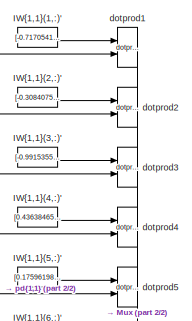
[diagram: pre_0/Layer 1/IW{1,1} - part 1/2, top center region]
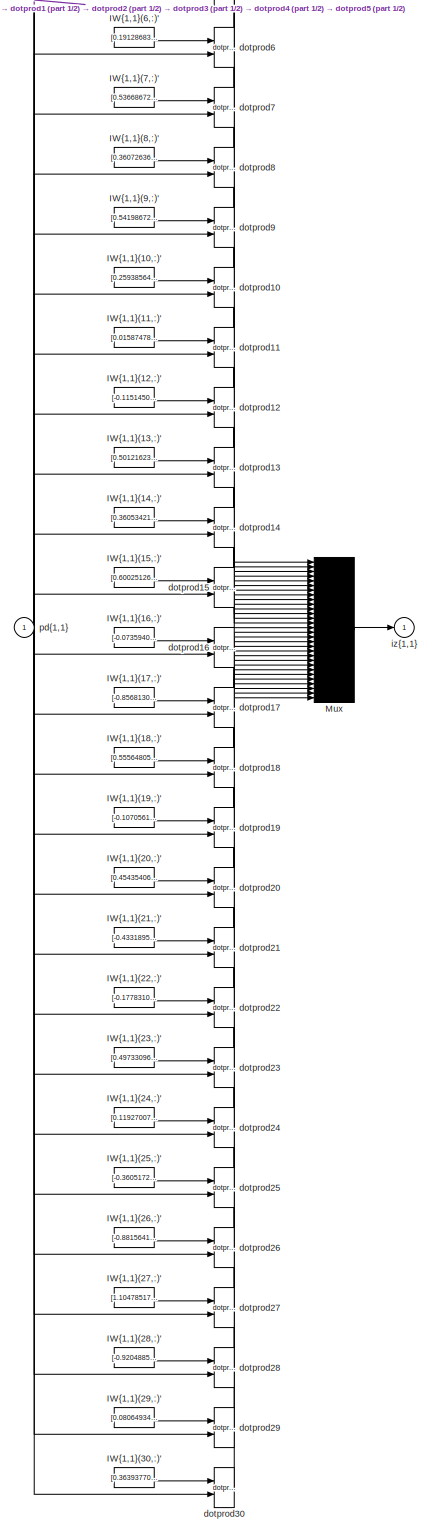
[diagram: pre_0/Layer 1/IW{1,1} - part 2/2, most of the canvas]
BLOCK [SubSystem] pre_0/Layer 1/IW{1,1}
  Ports = [1, 1]
  RequestExecContextInheritance = off
BLOCK [Constant] pre_0/Layer 1/IW{1,1}/IW{1,1}(1,:)'
  Value = [-0.7170541792926499180538257860462181270122528076171875;-0.53730470878595426587054362244089134037494659423828125;0.85386649215660692657792196769150905311107635498046875;-0.439278400220474873894005440888577140867710113525390625;0.338061858528379610699943214058293960988521575927734375;0.28368532083581954328366236950387246906757354736328125;-0.961821049186493581828472088091075420379638671875;-0.4978...<+166ch>
BLOCK [Constant] pre_0/Layer 1/IW{1,1}/IW{1,1}(10,:)'
  Value = [0.25938564025182764272159374741022475063800811767578125;-0.5066291721836615469243270126753486692905426025390625;0.365194749586469746827077642592485062777996063232421875;0.34016798405581039066447601726395078003406524658203125;0.73685097441923164129917722675600089132785797119140625;0.77610806782460539654522335695219226181507110595703125;-0.89757418772604735668352304855943657457828521728515625;0.303...<+161ch>
BLOCK [Constant] pre_0/Layer 1/IW{1,1}/IW{1,1}(11,:)'
  Value = [0.015874789502760534853909035746255540288984775543212890625;0.462275145120222108463536869749077595770359039306640625;0.0032692520327777508347411039579810676514171063899993896484375;0.05251953017595435702080663986635045148432254791259765625;0.91141322247884082319302478936151601374149322509765625;-0.79281915938791136522212354975636117160320281982421875;-0.4515989926503818363556774784228764474391937...<+183ch>
BLOCK [Constant] pre_0/Layer 1/IW{1,1}/IW{1,1}(12,:)'
  Value = [-0.11514504050898012599279951473363325931131839752197265625;0.813469898806353786113731985096819698810577392578125;0.490011957774175499480406870134174823760986328125;0.164969195990666117612732932684593833982944488525390625;-0.85432220477327092122976637256215326488018035888671875;-0.57011847095452872213883210861240513622760772705078125;0.288064489380212174207684938664897345006465911865234375;0.2419...<+168ch>
BLOCK [Constant] pre_0/Layer 1/IW{1,1}/IW{1,1}(13,:)'
  Value = [0.50121623323530239968448540821555070579051971435546875;-0.7679058675490575414102067952626384794712066650390625;0.2332901346448288670831772151359473355114459991455078125;-0.05845892447780610956531432975680218078196048736572265625;-0.52276177164686721265951518944348208606243133544921875;1.161972018816590068723826334462501108646392822265625;0.10355864424138964963173492606074432842433452606201171875...<+164ch>
BLOCK [Constant] pre_0/Layer 1/IW{1,1}/IW{1,1}(14,:)'
  Value = [0.36053421104863614399249627240351401269435882568359375;-0.1762721064183007946279957423030282370746135711669921875;0.251082557900824177021803507159347645938396453857421875;0.020135728323763042724170446717835147865116596221923828125;-0.85072127871646829877505524564185179769992828369140625;0.84743056157007234929778860532678663730621337890625;-0.945997916723647858106005514855496585369110107421875;0....<+167ch>
BLOCK [Constant] pre_0/Layer 1/IW{1,1}/IW{1,1}(15,:)'
  Value = [0.60025126505590609138351965157198719680309295654296875;-0.66688231279006193741309971301234327256679534912109375;-0.91654840056374220491619553286000154912471771240234375;-0.471001673909513030036322334126452915370464324951171875;0.53790409729519372827866163788712583482265472412109375;0.5322213146726231247640725996461696922779083251953125;0.138282833645754166251862216086010448634624481201171875;-0....<+165ch>
BLOCK [Constant] pre_0/Layer 1/IW{1,1}/IW{1,1}(16,:)'
  Value = [-0.0735940424037289375736037300157477147877216339111328125;0.12992241719517527709371051969355903565883636474609375;0.3713405142616206244809973213705234229564666748046875;0.1763399041436344572009176090432447381317615509033203125;-0.05111110475284337539836343466959078796207904815673828125;0.460151189735468924002503854353562928736209869384765625;0.7322632127881096852917153228190727531909942626953125...<+166ch>
BLOCK [Constant] pre_0/Layer 1/IW{1,1}/IW{1,1}(17,:)'
  Value = [-0.85681300381991631898159766933531500399112701416015625;-0.53097179335189592652710643960745073854923248291015625;1.01247292983426628865117891109548509120941162109375;0.378991230739149143058597246636054478585720062255859375;0.294378095574322984351312015860457904636859893798828125;-0.602953992325712562205808353610336780548095703125;-0.56336544113835262947986848303116858005523681640625;0.9059535385...<+156ch>
BLOCK [Constant] pre_0/Layer 1/IW{1,1}/IW{1,1}(18,:)'
  Value = [0.555648053924087559352074094931595027446746826171875;0.504375695640225440996573524898849427700042724609375;-0.333632718241962333838301901778322644531726837158203125;0.5008843209308257993228608029312454164028167724609375;-0.237702821178001288959791281740763224661350250244140625;-0.7162760582970670864000339861377142369747161865234375;0.51637313021700015358561586253927089273929595947265625;0.173311...<+158ch>
BLOCK [Constant] pre_0/Layer 1/IW{1,1}/IW{1,1}(19,:)'
  Value = [-0.10705614746581405827274835473872371949255466461181640625;0.1487441877660455047394094663104624487459659576416015625;-0.26390898079033842105189933135989122092723846435546875;-0.6493337689871576667854924380662851035594940185546875;-0.46145541066660289430956254363991320133209228515625;-0.142170787004473997416909014646080322563648223876953125;1.012033043287881017846530085080303251743316650390625;-0...<+167ch>
BLOCK [Constant] pre_0/Layer 1/IW{1,1}/IW{1,1}(2,:)'
  Value = [-0.30840755373511308246037287972285412251949310302734375;-0.099084112890050535238373186075477860867977142333984375;0.81717661091166771125671175468596629798412322998046875;-0.6092062881178741395871156782959587872028350830078125;-0.50860553050792145501901586612802930176258087158203125;-0.6625835472015584315386149683035910129547119140625;0.75851058462894760392458692876971326768398284912109375;-0.037...<+167ch>
BLOCK [Constant] pre_0/Layer 1/IW{1,1}/IW{1,1}(20,:)'
  Value = [0.454354067516998527676008734488277696073055267333984375;0.57137295812917321402579773348406888544559478759765625;-0.1850233688088059047505140597422723658382892608642578125;0.386724997843112927586872729079914279282093048095703125;0.039258849478771173924229742624447681009769439697265625;0.67472078143233493729979954878217540681362152099609375;0.92573329751093591521993175774696283042430877685546875;-...<+164ch>
BLOCK [Constant] pre_0/Layer 1/IW{1,1}/IW{1,1}(21,:)'
  Value = [-0.4331895641543983543897411436773836612701416015625;0.8989764475014252465001618475071154534816741943359375;-0.54666182104691929399820082835503853857517242431640625;-0.56008518072537050169756867035175673663616180419921875;-0.177121978724637030300215201350511051714420318603515625;-0.9354064903881589287948372657410800457000732421875;0.5262284428804051561456844865460880100727081298828125;0.638291312...<+158ch>
BLOCK [Constant] pre_0/Layer 1/IW{1,1}/IW{1,1}(22,:)'
  Value = [-0.1778310081286245125653522336506284773349761962890625;-0.58116958910897731360734042027615942060947418212890625;0.76548783415328924828457957119098864495754241943359375;0.311107618873479319088204420040710829198360443115234375;-0.03968922139101148383044659340157522819936275482177734375;-0.843995838711065093917795820743776857852935791015625;0.206526298912914629823944778763689100742340087890625;-0.3...<+164ch>
BLOCK [Constant] pre_0/Layer 1/IW{1,1}/IW{1,1}(23,:)'
  Value = [0.49733096107312502187625113947433419525623321533203125;0.89927052734582202386803828630945645272731781005859375;-0.0394225177103877388873343079467304050922393798828125;-0.57836371627708604847839524154551327228546142578125;0.1021461496097287591222624314468703232705593109130859375;0.038811398906852888346374896855195402167737483978271484375;0.2188587004529818080822423098652507178485393524169921875;0...<+170ch>
BLOCK [Constant] pre_0/Layer 1/IW{1,1}/IW{1,1}(24,:)'
  Value = [0.11927007223421805248708693625303567387163639068603515625;-0.78217240703766410803154940367676317691802978515625;0.79957722702048228402560425820411182940006256103515625;-0.68075308000872591929208965666475705802440643310546875;0.67785256439370822345580336332204751670360565185546875;-0.46377662029388100339843958863639272749423980712890625;-0.7071229604349558162112998616066761314868927001953125;0.32...<+161ch>
BLOCK [Constant] pre_0/Layer 1/IW{1,1}/IW{1,1}(25,:)'
  Value = [-0.360517233844824591670885638450272381305694580078125;0.626951775382905029943003683001734316349029541015625;-0.8230933590212885508918816412915475666522979736328125;0.328523124878589367625636441516689956188201904296875;0.413636637935129114485022228109301067888736724853515625;-1.035828337086357908702893837471492588520050048828125;0.256185564519046560238990650759660638868808746337890625;0.558048893...<+159ch>
BLOCK [Constant] pre_0/Layer 1/IW{1,1}/IW{1,1}(26,:)'
  Value = [-0.8815641461967269609800723628723062574863433837890625;0.6197700815159847831381512150983326137065887451171875;0.292051004807718450617670669089420698583126068115234375;0.26881320319315460398712502865237183868885040283203125;0.249493533032821790396127425992744974792003631591796875;1.05959018245037395189456219668500125408172607421875;-0.293385437330179354997738983001909218728542327880859375;-0.3997...<+164ch>
BLOCK [Constant] pre_0/Layer 1/IW{1,1}/IW{1,1}(27,:)'
  Value = [1.104785178057527961215100731351412832736968994140625;0.92382265168978860980786294021527282893657684326171875;-0.2163549018084075237222663190550520084798336029052734375;-0.9299599360027439587383923935703933238983154296875;1.0641081287763214380248655288596637547016143798828125;-0.431724090480411437642516148116555996239185333251953125;-0.6106446219490513360739214476780034601688385009765625;0.123643...<+164ch>
BLOCK [Constant] pre_0/Layer 1/IW{1,1}/IW{1,1}(28,:)'
  Value = [-0.9204885549329322458333990653045475482940673828125;0.71505473712299216781929089847835712134838104248046875;0.1774163810718654421538786891687777824699878692626953125;-0.26649356933898171728714032724383287131786346435546875;0.00214973842263012186737380915246831136755645275115966796875;0.74548203298877979694481155092944391071796417236328125;-0.198521903895641088633183812817151192575693130493164062...<+172ch>
BLOCK [Constant] pre_0/Layer 1/IW{1,1}/IW{1,1}(29,:)'
  Value = [0.08064934467823166308608762165022199042141437530517578125;-0.51833738280565244682662751074531115591526031494140625;-0.652571486768099617847838089801371097564697265625;-0.6650816931740599624589549421216361224651336669921875;0.428389676123669571605745431952527724206447601318359375;0.5646866986895844320315518416464328765869140625;-0.334055174362817230981903549036360345780849456787109375;-0.35511580...<+159ch>
BLOCK [Constant] pre_0/Layer 1/IW{1,1}/IW{1,1}(3,:)'
  Value = [-0.99153552768192054767126819569966755807399749755859375;0.64787754216170279075726057271822355687618255615234375;0.68028029231688569300473545808927156031131744384765625;-0.69196568392561663696227469699806533753871917724609375;0.1267368240162062564824196897461661137640476226806640625;-0.43286605744731165845706755135324783623218536376953125;-0.467372693569951980219201459476607851684093475341796875;...<+174ch>
BLOCK [Constant] pre_0/Layer 1/IW{1,1}/IW{1,1}(30,:)'
  Value = [0.363937704867758615723261073071626015007495880126953125;0.30746852825596071578928558665211312472820281982421875;0.08207578531167457336348292074035271070897579193115234375;0.74981417951573192670622347577591426670551300048828125;-0.46676131123100528252933827388915233314037322998046875;-0.74448595717461873988440856919623911380767822265625;-0.1715609051203128843088308030928601510822772979736328125;-...<+171ch>
BLOCK [Constant] pre_0/Layer 1/IW{1,1}/IW{1,1}(4,:)'
  Value = [0.43638465107237267570639005498378537595272064208984375;0.4617365655073857322321373430895619094371795654296875;-0.326678405985217690243871402344666421413421630859375;0.292387559672311170277936298589338548481464385986328125;0.68565165583534815052502153776003979146480560302734375;-0.8202765637128610620720792212523519992828369140625;-0.01647018295307640933788917436686460860073566436767578125;-0.7660...<+157ch>
BLOCK [Constant] pre_0/Layer 1/IW{1,1}/IW{1,1}(5,:)'
  Value = [0.1759619892392587925389335623549413867294788360595703125;0.7696542440388987049715296961949206888675689697265625;-0.851376287127035613622183518600650131702423095703125;0.5058989985838786562766244969679974019527435302734375;-0.68537890003123680404684137101867236196994781494140625;0.73742092979006124142671296795015223324298858642578125;-0.54409406720694641901303612030460499227046966552734375;0.5378...<+161ch>
BLOCK [Constant] pre_0/Layer 1/IW{1,1}/IW{1,1}(6,:)'
  Value = [0.1912868383813841888230200538600911386311054229736328125;-0.9883987240949829722325148395611904561519622802734375;0.28280396803305885011781128923757933080196380615234375;0.333695039449705410650182102472172118723392486572265625;-1.2171952045291052346698279507108964025974273681640625;0.9168264557199308217860789227415807545185089111328125;-0.005957496462494403510756768582723452709615230560302734375;...<+168ch>
BLOCK [Constant] pre_0/Layer 1/IW{1,1}/IW{1,1}(7,:)'
  Value = [0.53668672270431472259843985739280469715595245361328125;-0.86597864285057213340479620455880649387836456298828125;0.367948251905165946151754496895591728389263153076171875;-0.101552911108880816737354280121508054435253143310546875;-0.69480073485182802794923873079824261367321014404296875;0.2886913663394512497006871853955090045928955078125;0.50312288016138906332486158134997822344303131103515625;-0.050...<+167ch>
BLOCK [Constant] pre_0/Layer 1/IW{1,1}/IW{1,1}(8,:)'
  Value = [0.360726369903551946638486924712196923792362213134765625;-0.772878002787770856940596786444075405597686767578125;0.5845611294740591379337502075941301882266998291015625;-0.432191320709908899377893476412282325327396392822265625;-0.143959327034458295369034885879955254495143890380859375;0.1901128979977855515404172592752729542553424835205078125;-0.73119761460990184698260918594314716756343841552734375;-...<+170ch>
BLOCK [Constant] pre_0/Layer 1/IW{1,1}/IW{1,1}(9,:)'
  Value = [0.5419867205458837045028985812678001821041107177734375;-0.37716268711213540854032544302754104137420654296875;0.60587106248181232803773355044540949165821075439453125;-0.94828978630924876114249855163507163524627685546875;0.7741540673161868557627940390375442802906036376953125;-0.33112035983088927704187653944245539605617523193359375;-0.74215804637538818067099555264576338231563568115234375;-0.01844914...<+158ch>
BLOCK [Mux] pre_0/Layer 1/IW{1,1}/Mux
  Inputs = 30
  Ports = [30, 1]
BLOCK [Reference] pre_0/Layer 1/IW{1,1}/dotprod1  REF=neural/Weight Functions/dotprod
  Ports = [2, 1]
  SourceBlock = neural/Weight Functions/dotprod
  SourceProductBaseCode = NN
  SourceProductName = Neural Network Toolbox
  SourceType = DOTPROD
BLOCK [Reference] pre_0/Layer 1/IW{1,1}/dotprod10  REF=neural/Weight Functions/dotprod
  Ports = [2, 1]
  SourceBlock = neural/Weight Functions/dotprod
  SourceProductBaseCode = NN
  SourceProductName = Neural Network Toolbox
  SourceType = DOTPROD
BLOCK [Reference] pre_0/Layer 1/IW{1,1}/dotprod11  REF=neural/Weight Functions/dotprod
  Ports = [2, 1]
  SourceBlock = neural/Weight Functions/dotprod
  SourceProductBaseCode = NN
  SourceProductName = Neural Network Toolbox
  SourceType = DOTPROD
BLOCK [Reference] pre_0/Layer 1/IW{1,1}/dotprod12  REF=neural/Weight Functions/dotprod
  Ports = [2, 1]
  SourceBlock = neural/Weight Functions/dotprod
  SourceProductBaseCode = NN
  SourceProductName = Neural Network Toolbox
  SourceType = DOTPROD
BLOCK [Reference] pre_0/Layer 1/IW{1,1}/dotprod13  REF=neural/Weight Functions/dotprod
  Ports = [2, 1]
  SourceBlock = neural/Weight Functions/dotprod
  SourceProductBaseCode = NN
  SourceProductName = Neural Network Toolbox
  SourceType = DOTPROD
BLOCK [Reference] pre_0/Layer 1/IW{1,1}/dotprod14  REF=neural/Weight Functions/dotprod
  Ports = [2, 1]
  SourceBlock = neural/Weight Functions/dotprod
  SourceProductBaseCode = NN
  SourceProductName = Neural Network Toolbox
  SourceType = DOTPROD
BLOCK [Reference] pre_0/Layer 1/IW{1,1}/dotprod15  REF=neural/Weight Functions/dotprod
  Ports = [2, 1]
  SourceBlock = neural/Weight Functions/dotprod
  SourceProductBaseCode = NN
  SourceProductName = Neural Network Toolbox
  SourceType = DOTPROD
BLOCK [Reference] pre_0/Layer 1/IW{1,1}/dotprod16  REF=neural/Weight Functions/dotprod
  Ports = [2, 1]
  SourceBlock = neural/Weight Functions/dotprod
  SourceProductBaseCode = NN
  SourceProductName = Neural Network Toolbox
  SourceType = DOTPROD
BLOCK [Reference] pre_0/Layer 1/IW{1,1}/dotprod17  REF=neural/Weight Functions/dotprod
  Ports = [2, 1]
  SourceBlock = neural/Weight Functions/dotprod
  SourceProductBaseCode = NN
  SourceProductName = Neural Network Toolbox
  SourceType = DOTPROD
BLOCK [Reference] pre_0/Layer 1/IW{1,1}/dotprod18  REF=neural/Weight Functions/dotprod
  Ports = [2, 1]
  SourceBlock = neural/Weight Functions/dotprod
  SourceProductBaseCode = NN
  SourceProductName = Neural Network Toolbox
  SourceType = DOTPROD
BLOCK [Reference] pre_0/Layer 1/IW{1,1}/dotprod19  REF=neural/Weight Functions/dotprod
  Ports = [2, 1]
  SourceBlock = neural/Weight Functions/dotprod
  SourceProductBaseCode = NN
  SourceProductName = Neural Network Toolbox
  SourceType = DOTPROD
BLOCK [Reference] pre_0/Layer 1/IW{1,1}/dotprod2  REF=neural/Weight Functions/dotprod
  Ports = [2, 1]
  SourceBlock = neural/Weight Functions/dotprod
  SourceProductBaseCode = NN
  SourceProductName = Neural Network Toolbox
  SourceType = DOTPROD
BLOCK [Reference] pre_0/Layer 1/IW{1,1}/dotprod20  REF=neural/Weight Functions/dotprod
  Ports = [2, 1]
  SourceBlock = neural/Weight Functions/dotprod
  SourceProductBaseCode = NN
  SourceProductName = Neural Network Toolbox
  SourceType = DOTPROD
BLOCK [Reference] pre_0/Layer 1/IW{1,1}/dotprod21  REF=neural/Weight Functions/dotprod
  Ports = [2, 1]
  SourceBlock = neural/Weight Functions/dotprod
  SourceProductBaseCode = NN
  SourceProductName = Neural Network Toolbox
  SourceType = DOTPROD
BLOCK [Reference] pre_0/Layer 1/IW{1,1}/dotprod22  REF=neural/Weight Functions/dotprod
  Ports = [2, 1]
  SourceBlock = neural/Weight Functions/dotprod
  SourceProductBaseCode = NN
  SourceProductName = Neural Network Toolbox
  SourceType = DOTPROD
BLOCK [Reference] pre_0/Layer 1/IW{1,1}/dotprod23  REF=neural/Weight Functions/dotprod
  Ports = [2, 1]
  SourceBlock = neural/Weight Functions/dotprod
  SourceProductBaseCode = NN
  SourceProductName = Neural Network Toolbox
  SourceType = DOTPROD
BLOCK [Reference] pre_0/Layer 1/IW{1,1}/dotprod24  REF=neural/Weight Functions/dotprod
  Ports = [2, 1]
  SourceBlock = neural/Weight Functions/dotprod
  SourceProductBaseCode = NN
  SourceProductName = Neural Network Toolbox
  SourceType = DOTPROD
BLOCK [Reference] pre_0/Layer 1/IW{1,1}/dotprod25  REF=neural/Weight Functions/dotprod
  Ports = [2, 1]
  SourceBlock = neural/Weight Functions/dotprod
  SourceProductBaseCode = NN
  SourceProductName = Neural Network Toolbox
  SourceType = DOTPROD
BLOCK [Reference] pre_0/Layer 1/IW{1,1}/dotprod26  REF=neural/Weight Functions/dotprod
  Ports = [2, 1]
  SourceBlock = neural/Weight Functions/dotprod
  SourceProductBaseCode = NN
  SourceProductName = Neural Network Toolbox
  SourceType = DOTPROD
BLOCK [Reference] pre_0/Layer 1/IW{1,1}/dotprod27  REF=neural/Weight Functions/dotprod
  Ports = [2, 1]
  SourceBlock = neural/Weight Functions/dotprod
  SourceProductBaseCode = NN
  SourceProductName = Neural Network Toolbox
  SourceType = DOTPROD
BLOCK [Reference] pre_0/Layer 1/IW{1,1}/dotprod28  REF=neural/Weight Functions/dotprod
  Ports = [2, 1]
  SourceBlock = neural/Weight Functions/dotprod
  SourceProductBaseCode = NN
  SourceProductName = Neural Network Toolbox
  SourceType = DOTPROD
BLOCK [Reference] pre_0/Layer 1/IW{1,1}/dotprod29  REF=neural/Weight Functions/dotprod
  Ports = [2, 1]
  SourceBlock = neural/Weight Functions/dotprod
  SourceProductBaseCode = NN
  SourceProductName = Neural Network Toolbox
  SourceType = DOTPROD
BLOCK [Reference] pre_0/Layer 1/IW{1,1}/dotprod3  REF=neural/Weight Functions/dotprod
  Ports = [2, 1]
  SourceBlock = neural/Weight Functions/dotprod
  SourceProductBaseCode = NN
  SourceProductName = Neural Network Toolbox
  SourceType = DOTPROD
BLOCK [Reference] pre_0/Layer 1/IW{1,1}/dotprod30  REF=neural/Weight Functions/dotprod
  Ports = [2, 1]
  SourceBlock = neural/Weight Functions/dotprod
  SourceProductBaseCode = NN
  SourceProductName = Neural Network Toolbox
  SourceType = DOTPROD
BLOCK [Reference] pre_0/Layer 1/IW{1,1}/dotprod4  REF=neural/Weight Functions/dotprod
  Ports = [2, 1]
  SourceBlock = neural/Weight Functions/dotprod
  SourceProductBaseCode = NN
  SourceProductName = Neural Network Toolbox
  SourceType = DOTPROD
BLOCK [Reference] pre_0/Layer 1/IW{1,1}/dotprod5  REF=neural/Weight Functions/dotprod
  Ports = [2, 1]
  SourceBlock = neural/Weight Functions/dotprod
  SourceProductBaseCode = NN
  SourceProductName = Neural Network Toolbox
  SourceType = DOTPROD
BLOCK [Reference] pre_0/Layer 1/IW{1,1}/dotprod6  REF=neural/Weight Functions/dotprod
  Ports = [2, 1]
  SourceBlock = neural/Weight Functions/dotprod
  SourceProductBaseCode = NN
  SourceProductName = Neural Network Toolbox
  SourceType = DOTPROD
BLOCK [Reference] pre_0/Layer 1/IW{1,1}/dotprod7  REF=neural/Weight Functions/dotprod
  Ports = [2, 1]
  SourceBlock = neural/Weight Functions/dotprod
  SourceProductBaseCode = NN
  SourceProductName = Neural Network Toolbox
  SourceType = DOTPROD
BLOCK [Reference] pre_0/Layer 1/IW{1,1}/dotprod8  REF=neural/Weight Functions/dotprod
  Ports = [2, 1]
  SourceBlock = neural/Weight Functions/dotprod
  SourceProductBaseCode = NN
  SourceProductName = Neural Network Toolbox
  SourceType = DOTPROD
BLOCK [Reference] pre_0/Layer 1/IW{1,1}/dotprod9  REF=neural/Weight Functions/dotprod
  Ports = [2, 1]
  SourceBlock = neural/Weight Functions/dotprod
  SourceProductBaseCode = NN
  SourceProductName = Neural Network Toolbox
  SourceType = DOTPROD
BLOCK [Outport] pre_0/Layer 1/IW{1,1}/iz{1,1}
  IconDisplay = Port number
BLOCK [Inport] pre_0/Layer 1/IW{1,1}/pd{1,1}
  IconDisplay = Port number
  PortDimensions = 10
BLOCK [Outport] pre_0/Layer 1/a{1}
  IconDisplay = Port number
  InitialOutput = [0;0;0;0;0;0;0;0;0;0;0;0;0;0;0;0;0;0;0;0;0;0;0;0;0;0;0;0;0;0]
BLOCK [Constant] pre_0/Layer 1/b{1}
  Value = [1.708779809122287662859207557630725204944610595703125;1.7059748442558471115404472584486939013004302978515625;1.9795806010941561225990881212055683135986328125;-1.383978646371030407635771553032100200653076171875;-1.4194553801471594400851472528302110731601715087890625;1.05729104613466073914196385885588824748992919921875;-0.95243226489203169915498392583685927093029022216796875;-0.78812549721183533524...<+1272ch>
BLOCK [Sum] pre_0/Layer 1/netsum
  Inputs = 2
  Ports = [2, 1]
BLOCK [Inport] pre_0/Layer 1/p{1}
  IconDisplay = Port number
  PortDimensions = 10
BLOCK [Reference] pre_0/Layer 1/tansig  REF=neural/Transfer Functions/tansig
  Ports = [1, 1]
  SourceBlock = neural/Transfer Functions/tansig
  SourceProductBaseCode = NN
  SourceProductName = Neural Network Toolbox
  SourceType = TANSIG
BLOCK [SubSystem] pre_0/Layer 2
  Ports = [1, 1]
  RequestExecContextInheritance = off
BLOCK [SubSystem] pre_0/Layer 2/Delays 1
  Ports = [1, 1]
  RequestExecContextInheritance = off
BLOCK [Mux] pre_0/Layer 2/Delays 1/mux
  Inputs = 1
  Ports = [1, 1]
BLOCK [Outport] pre_0/Layer 2/Delays 1/pd{2,1}
  IconDisplay = Port number
BLOCK [Inport] pre_0/Layer 2/Delays 1/p{2}
  IconDisplay = Port number
  PortDimensions = 30
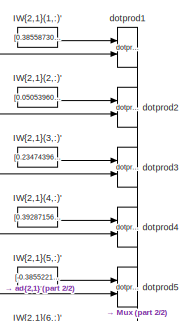
[diagram: pre_0/Layer 2/LW{2,1} - part 1/2, top center region]
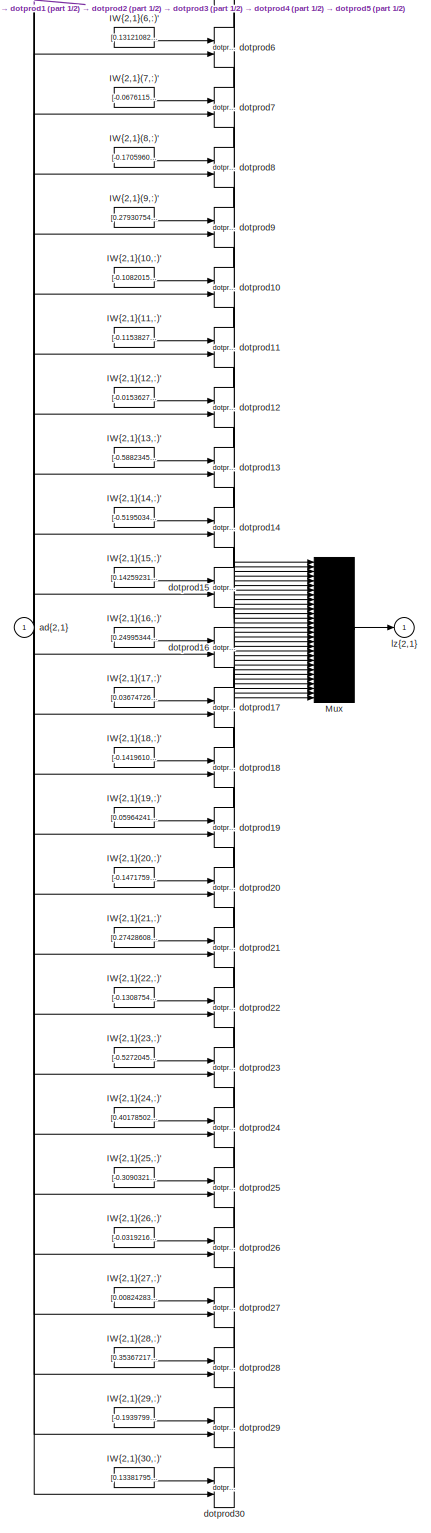
[diagram: pre_0/Layer 2/LW{2,1} - part 2/2, most of the canvas]
BLOCK [SubSystem] pre_0/Layer 2/LW{2,1}
  Ports = [1, 1]
  RequestExecContextInheritance = off
BLOCK [Constant] pre_0/Layer 2/LW{2,1}/IW{2,1}(1,:)'
  Value = [0.38558730501556770509097304966417141258716583251953125;0.036478408705810726198048854485023184679448604583740234375;0.09079870664311916195199358980971737764775753021240234375;0.381331119081763147971031457927892915904521942138671875;-0.233634270159865542471067101359949447214603424072265625;-0.311530470710474960416291878573247231543064117431640625;0.2460752841355471898232565308717312291264533996582...<+1335ch>
BLOCK [Constant] pre_0/Layer 2/LW{2,1}/IW{2,1}(10,:)'
  Value = [-0.1082015401600280590788116796829854138195514678955078125;-0.10769057412232450887668022687648772262036800384521484375;-0.1953211372451576222086799816679558716714382171630859375;0.2793575836908337439723482020781375467777252197265625;0.54811456332669628022102870090748183429241180419921875;-0.446147475496420031770838932061451487243175506591796875;-0.4736087294011738224597252155945170670747756958007...<+1337ch>
BLOCK [Constant] pre_0/Layer 2/LW{2,1}/IW{2,1}(11,:)'
  Value = [-0.115382749174800236513505069524399004876613616943359375;-0.26195163908781349260124216016265563666820526123046875;0.274937391636391914584436335644568316638469696044921875;-0.09859717064836505395764021386639797128736972808837890625;0.297156198316028741235328425318584777414798736572265625;-0.25916105001183231681949337144033052027225494384765625;-0.24506442396861072285929594727349467575550079345703...<+1321ch>
BLOCK [Constant] pre_0/Layer 2/LW{2,1}/IW{2,1}(12,:)'
  Value = [-0.01536271029595912170073734870356929604895412921905517578125;0.1622998126645540384327404126452165655791759490966796875;-0.1310625835233041602823078619621810503304004669189453125;-0.321697285463946991423966892398311756551265716552734375;-0.15695691020217428235383749779430218040943145751953125;0.1944033814340777877038846099821967072784900665283203125;0.47912283765483770769932903021981474012136459...<+1331ch>
BLOCK [Constant] pre_0/Layer 2/LW{2,1}/IW{2,1}(13,:)'
  Value = [-0.58823456238144944396850632983841933310031890869140625;-0.436623115526972582767228914235602132976055145263671875;-0.049697136031639145559157810794204124249517917633056640625;0.36841603087513241643335959452087990939617156982421875;-0.0395322005095596062940188630818738602101802825927734375;-0.19848066932836749831636780072585679590702056884765625;-0.389171073014772217479873006595880724489688873291...<+1336ch>
BLOCK [Constant] pre_0/Layer 2/LW{2,1}/IW{2,1}(14,:)'
  Value = [-0.51950343290074363356012554504559375345706939697265625;0.102185354922243065711739973266958259046077728271484375;0.2040786549727073573290425656523439101874828338623046875;-0.478012892086017993076296761500998400151729583740234375;-0.44150968009533986258219329101848416030406951904296875;0.282129163185241005340486708519165404140949249267578125;0.17962375167565428069060828875080915167927742004394531...<+1332ch>
BLOCK [Constant] pre_0/Layer 2/LW{2,1}/IW{2,1}(15,:)'
  Value = [0.14259231409784189903433571089408360421657562255859375;-0.03356977444714599745356764515236136503517627716064453125;-0.01126663719936398834475799191068290383554995059967041015625;0.1328918127971887297444908426768961362540721893310546875;-0.2118058268835193158619034647927037440240383148193359375;0.1260261058558004021445952957947156392037868499755859375;0.3735492136951867880867439453140832483768463...<+1358ch>
BLOCK [Constant] pre_0/Layer 2/LW{2,1}/IW{2,1}(16,:)'
  Value = [0.24995344620909720756429805987863801419734954833984375;0.48709667293437830526414700216264463961124420166015625;-0.457891549533014197148617085986188612878322601318359375;0.296509301171719086287481559338630177080631256103515625;-0.52909561603092691850491746663465164601802825927734375;0.09846779782452656781810418351597036235034465789794921875;-0.20639923400068191372547232731449184939265251159667968...<+1329ch>
BLOCK [Constant] pre_0/Layer 2/LW{2,1}/IW{2,1}(17,:)'
  Value = [0.036747267012120048146339712502594920806586742401123046875;0.1281384393687236833425657778207096271216869354248046875;0.400183188211487406160671298493980430066585540771484375;-0.1556530934666835730428857687002164311707019805908203125;0.005560148293927250594259614757675080909393727779388427734375;0.48123211154180312032480060224770568311214447021484375;-0.3762808690536958988737126219348283484578132...<+1345ch>
BLOCK [Constant] pre_0/Layer 2/LW{2,1}/IW{2,1}(18,:)'
  Value = [-0.1419610609451361915578360139988944865763187408447265625;-0.389016943190901798299563552063773386180400848388671875;-0.1758066288698257040312711296792258508503437042236328125;0.09339190538653950601766240424694842658936977386474609375;-0.01560192973386353813836091575240061501972377300262451171875;0.42304724596451404039498811471275985240936279296875;0.0868353636351819474503699325396155472844839096...<+1325ch>
BLOCK [Constant] pre_0/Layer 2/LW{2,1}/IW{2,1}(19,:)'
  Value = [0.05964241747176098062954707756944117136299610137939453125;-0.2249883718239397423221959115835488773882389068603515625;-0.270203105898485451685786529196775518357753753662109375;0.163387463524718834495530472850077785551548004150390625;-0.2276813971511900402955319577813497744500637054443359375;-0.484170591318591192475651041604578495025634765625;-0.2624496742136280813539883638441096991300582885742187...<+1318ch>
BLOCK [Constant] pre_0/Layer 2/LW{2,1}/IW{2,1}(2,:)'
  Value = [0.050539602644601812342362023855457664467394351959228515625;0.24193724391142890084438477060757577419281005859375;-0.1570852162859011913464968301923363469541072845458984375;0.04258423151312040744187470409087836742401123046875;0.307503923137483259342417341031250543892383575439453125;0.51598812897527868148728202868369407951831817626953125;0.650869922237179654445071719237603247165679931640625;-0.1484...<+1314ch>
BLOCK [Constant] pre_0/Layer 2/LW{2,1}/IW{2,1}(20,:)'
  Value = [-0.14717597629538747838751078234054148197174072265625;-0.11820678184040207814309297873478499241173267364501953125;0.266712354873865187254722286525066010653972625732421875;0.27298886119055454368975688339560292661190032958984375;0.6836444969231181278956910318811424076557159423828125;-0.35969981053616140176387716564931906759738922119140625;-0.127618632734288250940579700909438543021678924560546875;0....<+1302ch>
BLOCK [Constant] pre_0/Layer 2/LW{2,1}/IW{2,1}(21,:)'
  Value = [0.274286082654575713579703233335749246180057525634765625;0.309495546162301404802263959936681203544139862060546875;0.072886445389339915568172045823303051292896270751953125;-0.08826914640719731031115458108615712262690067291259765625;-0.5238854684168539055377777913236059248447418212890625;0.5478342178081645474918559557409025728702545166015625;0.2311138226674431528362418930555577389895915985107421875...<+1324ch>
BLOCK [Constant] pre_0/Layer 2/LW{2,1}/IW{2,1}(22,:)'
  Value = [-0.1308754126760331704115714046565699391067028045654296875;-0.1425372930864102494208367488681687973439693450927734375;-0.127595039458396453113664392731152474880218505859375;-0.255811390693542251018044453303446061909198760986328125;0.07434365570264879485851139406804577447474002838134765625;-0.268584673478464430740331181368674151599407196044921875;0.2742130044777570940794930720585398375988006591796...<+1331ch>
BLOCK [Constant] pre_0/Layer 2/LW{2,1}/IW{2,1}(23,:)'
  Value = [-0.52720452356836222662650470738299190998077392578125;0.208846705946845900836450482529471628367900848388671875;0.354838965039854181693357304538949392735958099365234375;0.275983414489972600502909472197643481194972991943359375;0.0397615557557627619100770743898465298116207122802734375;0.5472357477770530831406858851551078259944915771484375;0.62016107979675172412470374183612875640392303466796875;0.111...<+1320ch>
BLOCK [Constant] pre_0/Layer 2/LW{2,1}/IW{2,1}(24,:)'
  Value = [0.401785026800603073393602926444145850837230682373046875;0.0212921393004399696347039849797511124052107334136962890625;0.00757218279734513978473930961854421184398233890533447265625;0.2231793887970631995454340312790009193122386932373046875;-0.244207942570259295411716493617859669029712677001953125;0.1676792086168960305148090128568583168089389801025390625;0.2495094399030783061110838616514229215681552...<+1351ch>
BLOCK [Constant] pre_0/Layer 2/LW{2,1}/IW{2,1}(25,:)'
  Value = [-0.309032191906021880267729784463881514966487884521484375;0.2688472142829601008173767695552669465541839599609375;-0.00099776231064566838803442383465380771667696535587310791015625;0.1668222830233808962052677316023618914186954498291015625;-0.350395494323242517875627299872576259076595306396484375;0.204509680179421116097415733747766353189945220947265625;0.199414091970401802234036381378246005624532699...<+1350ch>
BLOCK [Constant] pre_0/Layer 2/LW{2,1}/IW{2,1}(26,:)'
  Value = [-0.031921635103524581555944905630894936621189117431640625;0.0641028173834864156699353543444885872304439544677734375;-0.64670248143434660992312501548440195620059967041015625;0.356915705358450463524633278211695142090320587158203125;0.18787166023578316664810472502722404897212982177734375;0.1123189727779264901474931548364111222326755523681640625;-0.0547421533198192561409101131175702903419733047485351...<+1352ch>
BLOCK [Constant] pre_0/Layer 2/LW{2,1}/IW{2,1}(27,:)'
  Value = [0.008242836323074702320479190120749990455806255340576171875;-0.08189085127285837539812263230487587861716747283935546875;0.10829546607357630472190379578023566864430904388427734375;-0.37774159218773240009880964862531982362270355224609375;-0.032379599311280100881749177688107010908424854278564453125;0.4141012986267365025838671499514020979404449462890625;-0.45861261258492713732692891426268033683300018...<+1335ch>
BLOCK [Constant] pre_0/Layer 2/LW{2,1}/IW{2,1}(28,:)'
  Value = [0.3536721742064343754208266545902006328105926513671875;0.2242590310170518019816654486930929124355316162109375;0.195904858877456844457043416696251370012760162353515625;0.0112914341146992287800987497803362202830612659454345703125;-0.2165207930186858475973821214211056940257549285888671875;0.416322188300287499007623637226060964167118072509765625;-0.4408436216113967298646514336724067106842994689941406...<+1338ch>
BLOCK [Constant] pre_0/Layer 2/LW{2,1}/IW{2,1}(29,:)'
  Value = [-0.1939799148978575138446700520944432355463504791259765625;0.031682469224293317855423168794004595838487148284912109375;0.033464693740192071047534483341223676688969135284423828125;0.406799794951351489924462612179922871291637420654296875;-0.320016919732795057651486558825126849114894866943359375;0.76628273024645598976434257565415464341640472412109375;0.21581059453509734979981260494241723790764808654...<+1349ch>
BLOCK [Constant] pre_0/Layer 2/LW{2,1}/IW{2,1}(3,:)'
  Value = [0.23474396887267567901602660640492103993892669677734375;0.4163337438632270792737699593999423086643218994140625;0.210910642080000154674479517780127935111522674560546875;0.000719112231366498926010688563792427885346114635467529296875;-0.1160404102866992859244277269681333564221858978271484375;0.19698951787443730321314205866656266152858734130859375;-0.42612505886801743670844189182389527559280395507812...<+1340ch>
BLOCK [Constant] pre_0/Layer 2/LW{2,1}/IW{2,1}(30,:)'
  Value = [0.133817950307745070492870809175656177103519439697265625;-0.38333569899981589923498859207029454410076141357421875;0.24982699880182612783841022974229417741298675537109375;0.1769428663584703687039478836595662869513034820556640625;0.2990790924241368831104637138196267187595367431640625;0.382885447759399755174314350369968451559543609619140625;-0.471610064437076148546879039713530801236629486083984375;-...<+1319ch>
BLOCK [Constant] pre_0/Layer 2/LW{2,1}/IW{2,1}(4,:)'
  Value = [0.39287156086707153423986937923473306000232696533203125;-0.287488239793160571533547908984473906457424163818359375;0.63583002577078240324937041805242188274860382080078125;0.2323737175748556149645906998557620681822299957275390625;-0.1430893215625898273746230415781610645353794097900390625;0.1800791491769203334083471190751879476010799407958984375;0.3611405443261271330790407319000223651528358459472656...<+1332ch>
BLOCK [Constant] pre_0/Layer 2/LW{2,1}/IW{2,1}(5,:)'
  Value = [-0.38552213664384993307976401410996913909912109375;-0.051254119116008071965762127319976571016013622283935546875;0.2322820901097684409553068007880938239395618438720703125;-0.1800117940921072412496783954338752664625644683837890625;-0.5698442260428857597531759893172420561313629150390625;0.1793467997482075804160928100827732123434543609619140625;0.17588663500622014890240052409353666007518768310546875;...<+1320ch>
BLOCK [Constant] pre_0/Layer 2/LW{2,1}/IW{2,1}(6,:)'
  Value = [0.1312108258520245929190650713280774652957916259765625;-0.37409620449190861268817798190866596996784210205078125;-0.2104341657464609272043531973395147360861301422119140625;0.19334048825712957242473066798993386328220367431640625;-0.386340632725698240879097511424333788454532623291015625;-0.034010928156670693078833522804416134022176265716552734375;-0.31283799790478100666391014783584978431463241577148...<+1340ch>
BLOCK [Constant] pre_0/Layer 2/LW{2,1}/IW{2,1}(7,:)'
  Value = [-0.06761151576020914266695882588464883156120777130126953125;0.00982984868630752510465509175219267490319907665252685546875;0.145308110563189651909254962447448633611202239990234375;0.141238470838374985394381155856535769999027252197265625;0.073246407758227272122297790701850317418575286865234375;-0.61540783275896371318225419599912129342555999755859375;0.32158793264771473596752571211254689842462539672...<+1336ch>
BLOCK [Constant] pre_0/Layer 2/LW{2,1}/IW{2,1}(8,:)'
  Value = [-0.1705960787580277637776049459716887213289737701416015625;0.317843108063506907257078637485392391681671142578125;0.366085120721959256240296554096858017146587371826171875;-0.03941051990488890488517625954045797698199748992919921875;-0.1700807687279070889996290816270629875361919403076171875;0.2460152817844694361770763180174981243908405303955078125;0.79199543467480670866365244364715181291103363037109...<+1343ch>
BLOCK [Constant] pre_0/Layer 2/LW{2,1}/IW{2,1}(9,:)'
  Value = [0.279307549057213055920811939358827657997608184814453125;-0.26300781547782248193101395372650586068630218505859375;0.00438702270012462924864138358316267840564250946044921875;-0.27830676267498188902749234330258332192897796630859375;0.07274411213703635414873360787169076502323150634765625;-0.1094672951277036176964685409984667785465717315673828125;0.1276295993870356915156349941753433085978031158447265...<+1341ch>
BLOCK [Mux] pre_0/Layer 2/LW{2,1}/Mux
  Inputs = 30
  Ports = [30, 1]
BLOCK [Inport] pre_0/Layer 2/LW{2,1}/ad{2,1}
  IconDisplay = Port number
  PortDimensions = 30
BLOCK [Reference] pre_0/Layer 2/LW{2,1}/dotprod1  REF=neural/Weight Functions/dotprod
  Ports = [2, 1]
  SourceBlock = neural/Weight Functions/dotprod
  SourceProductBaseCode = NN
  SourceProductName = Neural Network Toolbox
  SourceType = DOTPROD
BLOCK [Reference] pre_0/Layer 2/LW{2,1}/dotprod10  REF=neural/Weight Functions/dotprod
  Ports = [2, 1]
  SourceBlock = neural/Weight Functions/dotprod
  SourceProductBaseCode = NN
  SourceProductName = Neural Network Toolbox
  SourceType = DOTPROD
BLOCK [Reference] pre_0/Layer 2/LW{2,1}/dotprod11  REF=neural/Weight Functions/dotprod
  Ports = [2, 1]
  SourceBlock = neural/Weight Functions/dotprod
  SourceProductBaseCode = NN
  SourceProductName = Neural Network Toolbox
  SourceType = DOTPROD
BLOCK [Reference] pre_0/Layer 2/LW{2,1}/dotprod12  REF=neural/Weight Functions/dotprod
  Ports = [2, 1]
  SourceBlock = neural/Weight Functions/dotprod
  SourceProductBaseCode = NN
  SourceProductName = Neural Network Toolbox
  SourceType = DOTPROD
BLOCK [Reference] pre_0/Layer 2/LW{2,1}/dotprod13  REF=neural/Weight Functions/dotprod
  Ports = [2, 1]
  SourceBlock = neural/Weight Functions/dotprod
  SourceProductBaseCode = NN
  SourceProductName = Neural Network Toolbox
  SourceType = DOTPROD
BLOCK [Reference] pre_0/Layer 2/LW{2,1}/dotprod14  REF=neural/Weight Functions/dotprod
  Ports = [2, 1]
  SourceBlock = neural/Weight Functions/dotprod
  SourceProductBaseCode = NN
  SourceProductName = Neural Network Toolbox
  SourceType = DOTPROD
BLOCK [Reference] pre_0/Layer 2/LW{2,1}/dotprod15  REF=neural/Weight Functions/dotprod
  Ports = [2, 1]
  SourceBlock = neural/Weight Functions/dotprod
  SourceProductBaseCode = NN
  SourceProductName = Neural Network Toolbox
  SourceType = DOTPROD
BLOCK [Reference] pre_0/Layer 2/LW{2,1}/dotprod16  REF=neural/Weight Functions/dotprod
  Ports = [2, 1]
  SourceBlock = neural/Weight Functions/dotprod
  SourceProductBaseCode = NN
  SourceProductName = Neural Network Toolbox
  SourceType = DOTPROD
BLOCK [Reference] pre_0/Layer 2/LW{2,1}/dotprod17  REF=neural/Weight Functions/dotprod
  Ports = [2, 1]
  SourceBlock = neural/Weight Functions/dotprod
  SourceProductBaseCode = NN
  SourceProductName = Neural Network Toolbox
  SourceType = DOTPROD
BLOCK [Reference] pre_0/Layer 2/LW{2,1}/dotprod18  REF=neural/Weight Functions/dotprod
  Ports = [2, 1]
  SourceBlock = neural/Weight Functions/dotprod
  SourceProductBaseCode = NN
  SourceProductName = Neural Network Toolbox
  SourceType = DOTPROD
BLOCK [Reference] pre_0/Layer 2/LW{2,1}/dotprod19  REF=neural/Weight Functions/dotprod
  Ports = [2, 1]
  SourceBlock = neural/Weight Functions/dotprod
  SourceProductBaseCode = NN
  SourceProductName = Neural Network Toolbox
  SourceType = DOTPROD
BLOCK [Reference] pre_0/Layer 2/LW{2,1}/dotprod2  REF=neural/Weight Functions/dotprod
  Ports = [2, 1]
  SourceBlock = neural/Weight Functions/dotprod
  SourceProductBaseCode = NN
  SourceProductName = Neural Network Toolbox
  SourceType = DOTPROD
BLOCK [Reference] pre_0/Layer 2/LW{2,1}/dotprod20  REF=neural/Weight Functions/dotprod
  Ports = [2, 1]
  SourceBlock = neural/Weight Functions/dotprod
  SourceProductBaseCode = NN
  SourceProductName = Neural Network Toolbox
  SourceType = DOTPROD
BLOCK [Reference] pre_0/Layer 2/LW{2,1}/dotprod21  REF=neural/Weight Functions/dotprod
  Ports = [2, 1]
  SourceBlock = neural/Weight Functions/dotprod
  SourceProductBaseCode = NN
  SourceProductName = Neural Network Toolbox
  SourceType = DOTPROD
BLOCK [Reference] pre_0/Layer 2/LW{2,1}/dotprod22  REF=neural/Weight Functions/dotprod
  Ports = [2, 1]
  SourceBlock = neural/Weight Functions/dotprod
  SourceProductBaseCode = NN
  SourceProductName = Neural Network Toolbox
  SourceType = DOTPROD
BLOCK [Reference] pre_0/Layer 2/LW{2,1}/dotprod23  REF=neural/Weight Functions/dotprod
  Ports = [2, 1]
  SourceBlock = neural/Weight Functions/dotprod
  SourceProductBaseCode = NN
  SourceProductName = Neural Network Toolbox
  SourceType = DOTPROD
BLOCK [Reference] pre_0/Layer 2/LW{2,1}/dotprod24  REF=neural/Weight Functions/dotprod
  Ports = [2, 1]
  SourceBlock = neural/Weight Functions/dotprod
  SourceProductBaseCode = NN
  SourceProductName = Neural Network Toolbox
  SourceType = DOTPROD
BLOCK [Reference] pre_0/Layer 2/LW{2,1}/dotprod25  REF=neural/Weight Functions/dotprod
  Ports = [2, 1]
  SourceBlock = neural/Weight Functions/dotprod
  SourceProductBaseCode = NN
  SourceProductName = Neural Network Toolbox
  SourceType = DOTPROD
BLOCK [Reference] pre_0/Layer 2/LW{2,1}/dotprod26  REF=neural/Weight Functions/dotprod
  Ports = [2, 1]
  SourceBlock = neural/Weight Functions/dotprod
  SourceProductBaseCode = NN
  SourceProductName = Neural Network Toolbox
  SourceType = DOTPROD
BLOCK [Reference] pre_0/Layer 2/LW{2,1}/dotprod27  REF=neural/Weight Functions/dotprod
  Ports = [2, 1]
  SourceBlock = neural/Weight Functions/dotprod
  SourceProductBaseCode = NN
  SourceProductName = Neural Network Toolbox
  SourceType = DOTPROD
BLOCK [Reference] pre_0/Layer 2/LW{2,1}/dotprod28  REF=neural/Weight Functions/dotprod
  Ports = [2, 1]
  SourceBlock = neural/Weight Functions/dotprod
  SourceProductBaseCode = NN
  SourceProductName = Neural Network Toolbox
  SourceType = DOTPROD
BLOCK [Reference] pre_0/Layer 2/LW{2,1}/dotprod29  REF=neural/Weight Functions/dotprod
  Ports = [2, 1]
  SourceBlock = neural/Weight Functions/dotprod
  SourceProductBaseCode = NN
  SourceProductName = Neural Network Toolbox
  SourceType = DOTPROD
BLOCK [Reference] pre_0/Layer 2/LW{2,1}/dotprod3  REF=neural/Weight Functions/dotprod
  Ports = [2, 1]
  SourceBlock = neural/Weight Functions/dotprod
  SourceProductBaseCode = NN
  SourceProductName = Neural Network Toolbox
  SourceType = DOTPROD
BLOCK [Reference] pre_0/Layer 2/LW{2,1}/dotprod30  REF=neural/Weight Functions/dotprod
  Ports = [2, 1]
  SourceBlock = neural/Weight Functions/dotprod
  SourceProductBaseCode = NN
  SourceProductName = Neural Network Toolbox
  SourceType = DOTPROD
BLOCK [Reference] pre_0/Layer 2/LW{2,1}/dotprod4  REF=neural/Weight Functions/dotprod
  Ports = [2, 1]
  SourceBlock = neural/Weight Functions/dotprod
  SourceProductBaseCode = NN
  SourceProductName = Neural Network Toolbox
  SourceType = DOTPROD
BLOCK [Reference] pre_0/Layer 2/LW{2,1}/dotprod5  REF=neural/Weight Functions/dotprod
  Ports = [2, 1]
  SourceBlock = neural/Weight Functions/dotprod
  SourceProductBaseCode = NN
  SourceProductName = Neural Network Toolbox
  SourceType = DOTPROD
BLOCK [Reference] pre_0/Layer 2/LW{2,1}/dotprod6  REF=neural/Weight Functions/dotprod
  Ports = [2, 1]
  SourceBlock = neural/Weight Functions/dotprod
  SourceProductBaseCode = NN
  SourceProductName = Neural Network Toolbox
  SourceType = DOTPROD
BLOCK [Reference] pre_0/Layer 2/LW{2,1}/dotprod7  REF=neural/Weight Functions/dotprod
  Ports = [2, 1]
  SourceBlock = neural/Weight Functions/dotprod
  SourceProductBaseCode = NN
  SourceProductName = Neural Network Toolbox
  SourceType = DOTPROD
BLOCK [Reference] pre_0/Layer 2/LW{2,1}/dotprod8  REF=neural/Weight Functions/dotprod
  Ports = [2, 1]
  SourceBlock = neural/Weight Functions/dotprod
  SourceProductBaseCode = NN
  SourceProductName = Neural Network Toolbox
  SourceType = DOTPROD
BLOCK [Reference] pre_0/Layer 2/LW{2,1}/dotprod9  REF=neural/Weight Functions/dotprod
  Ports = [2, 1]
  SourceBlock = neural/Weight Functions/dotprod
  SourceProductBaseCode = NN
  SourceProductName = Neural Network Toolbox
  SourceType = DOTPROD
BLOCK [Outport] pre_0/Layer 2/LW{2,1}/lz{2,1}
  IconDisplay = Port number
BLOCK [Inport] pre_0/Layer 2/a{1} 
  IconDisplay = Port number
  PortDimensions = 30
BLOCK [Outport] pre_0/Layer 2/a{2}
  IconDisplay = Port number
  InitialOutput = [0;0;0;0;0;0;0;0;0;0;0;0;0;0;0;0;0;0;0;0;0;0;0;0;0;0;0;0;0;0]
BLOCK [Constant] pre_0/Layer 2/b{2}
  Value = [-1.5486732770701241435062911477871239185333251953125;1.4431956216028243300542044380563311278820037841796875;-1.16621945793757486597996830823831260204315185546875;-1.1861603044329263045852940194890834391117095947265625;1.1373322243414818455420345344464294612407684326171875;-1.0738715547507637904089961011777631938457489013671875;0.8542246952867549314447614960954524576663970947265625;0.8677896431623...<+1275ch>
BLOCK [Sum] pre_0/Layer 2/netsum
  Inputs = 2
  Ports = [2, 1]
BLOCK [Reference] pre_0/Layer 2/tansig  REF=neural/Transfer Functions/tansig
  Ports = [1, 1]
  SourceBlock = neural/Transfer Functions/tansig
  SourceProductBaseCode = NN
  SourceProductName = Neural Network Toolbox
  SourceType = TANSIG
BLOCK [SubSystem] pre_0/Layer 3
  Ports = [1, 1]
  RequestExecContextInheritance = off
BLOCK [SubSystem] pre_0/Layer 3/Delays 1
  Ports = [1, 1]
  RequestExecContextInheritance = off
BLOCK [Mux] pre_0/Layer 3/Delays 1/mux
  Inputs = 1
  Ports = [1, 1]
BLOCK [Outport] pre_0/Layer 3/Delays 1/pd{3,2}
  IconDisplay = Port number
BLOCK [Inport] pre_0/Layer 3/Delays 1/p{3}
  IconDisplay = Port number
  PortDimensions = 30
BLOCK [SubSystem] pre_0/Layer 3/LW{3,2}
  Ports = [1, 1]
  RequestExecContextInheritance = off
BLOCK [Constant] pre_0/Layer 3/LW{3,2}/IW{3,2}(1,:)'
  Value = [0.1482283738558132502038944267042097635567188262939453125;-0.292502547224109787915580227490863762795925140380859375;-0.50468612294941428420003148858086206018924713134765625;-0.04670559747562709473900355305886478163301944732666015625;-0.041057504134613953539201247622258961200714111328125;-0.047944240213243671799858702797791920602321624755859375;-0.05849692147428934424491231425236037466675043106079...<+1340ch>
BLOCK [Mux] pre_0/Layer 3/LW{3,2}/Mux
  Inputs = 1
  Ports = [1, 1]
BLOCK [Inport] pre_0/Layer 3/LW{3,2}/ad{3,2}
  IconDisplay = Port number
  PortDimensions = 30
BLOCK [Reference] pre_0/Layer 3/LW{3,2}/dotprod1  REF=neural/Weight Functions/dotprod
  Ports = [2, 1]
  SourceBlock = neural/Weight Functions/dotprod
  SourceProductBaseCode = NN
  SourceProductName = Neural Network Toolbox
  SourceType = DOTPROD
BLOCK [Outport] pre_0/Layer 3/LW{3,2}/lz{3,2}
  IconDisplay = Port number
BLOCK [Inport] pre_0/Layer 3/a{2} 
  IconDisplay = Port number
  PortDimensions = 30
BLOCK [Outport] pre_0/Layer 3/a{3}
  IconDisplay = Port number
  InitialOutput = 0
BLOCK [Constant] pre_0/Layer 3/b{3}
  Value = -0.168490100359604932922508169212960638105869293212890625
BLOCK [Sum] pre_0/Layer 3/netsum
  Inputs = 2
  Ports = [2, 1]
BLOCK [Reference] pre_0/Layer 3/purelin  REF=neural/Transfer Functions/purelin
  Ports = [1, 1]
  SourceBlock = neural/Transfer Functions/purelin
  SourceProductBaseCode = NN
  SourceProductName = Neural Network Toolbox
  SourceType = PURELIN
BLOCK [Outport] pre_0/Output
  IconDisplay = Port number
  InitialOutput = 0
BLOCK [SubSystem] pre_0/Process Input 1
  Ports = [1, 1]
  RequestExecContextInheritance = off
BLOCK [Reference] pre_0/Process Input 1/mapminmax  REF=neural/Processing Functions/mapminmax
  Ports = [1, 1]
  SourceBlock = neural/Processing Functions/mapminmax
  SourceProductBaseCode = NN
  SourceProductName = Neural Network Toolbox
  SourceType = MAPMINMAX Preprocess
BLOCK [Outport] pre_0/Process Input 1/p
  IconDisplay = Port number
  PortDimensions = 10
BLOCK [Inport] pre_0/Process Input 1/x
  IconDisplay = Port number
  PortDimensions = 10
BLOCK [SubSystem] pre_0/Process Output 1
  Ports = [1, 1]
  RequestExecContextInheritance = off
BLOCK [Inport] pre_0/Process Output 1/a
  IconDisplay = Port number
  PortDimensions = 1
BLOCK [Reference] pre_0/Process Output 1/mapminmax_reverse  REF=neural/Processing Functions/mapminmax_reverse
  Ports = [1, 1]
  SourceBlock = neural/Processing Functions/mapminmax_reverse
  SourceProductBaseCode = NN
  SourceProductName = Neural Network Toolbox
  SourceType = MAPMINMAX Reverse Process
BLOCK [Outport] pre_0/Process Output 1/y
  IconDisplay = Port number
  PortDimensions = 1
BLOCK [Goto] pre_0/a{1}
  GotoTag = feedback1
BLOCK [Goto] pre_0/a{2}
  GotoTag = feedback2
NET Discrete PID Controller (2DOF):1 -> Plant (Robot Arm):1, To Workspace1:1
LINE Mux:1 -> pre_0.00003:1
LINE Plant (Robot Arm)/Friction:1 -> Plant (Robot Arm)/Sum:3
LINE Plant (Robot Arm)/Gravity:1 -> Plant (Robot Arm)/Sum:2
NET Plant (Robot Arm)/Position:1 -> Plant (Robot Arm)/Gravity:1, Plant (Robot Arm)/y:1
LINE Plant (Robot Arm)/Sum:1 -> Plant (Robot Arm)/Velocity:1
NET Plant (Robot Arm)/Velocity:1 -> Plant (Robot Arm)/Friction:1, Plant (Robot Arm)/Position:1
LINE Plant (Robot Arm)/u:1 -> Plant (Robot Arm)/Sum:1
LINE Plant (Robot Arm)1/Friction:1 -> Plant (Robot Arm)1/Sum:3
LINE Plant (Robot Arm)1/Gravity:1 -> Plant (Robot Arm)1/Sum:2
NET Plant (Robot Arm)1/Position:1 -> Plant (Robot Arm)1/Gravity:1, Plant (Robot Arm)1/y:1
LINE Plant (Robot Arm)1/Sum:1 -> Plant (Robot Arm)1/Velocity:1
NET Plant (Robot Arm)1/Velocity:1 -> Plant (Robot Arm)1/Friction:1, Plant (Robot Arm)1/Position:1
LINE Plant (Robot Arm)1/u:1 -> Plant (Robot Arm)1/Sum:1
NET Plant (Robot Arm)1:1 -> Mux:5, Scope4:1, To Workspace3:1, Unit Delay5:1
NET Plant (Robot Arm):1 -> Discrete PID Controller (2DOF):2, To Workspace:1
LINE Random Reference:1 -> Switch:1
NET Switch:1 -> Discrete PID Controller (2DOF):1, Mux:1, To Workspace2:1, Unit Delay3:1
LINE Unit Delay1:1 -> Mux:9
LINE Unit Delay2:1 -> Mux:10
NET Unit Delay3:1 -> Mux:2, Unit Delay4:1
NET Unit Delay4:1 -> Mux:3, Unit Delay8:1
NET Unit Delay5:1 -> Mux:6, Unit Delay7:1
LINE Unit Delay6:1 -> Unit Delay2:1
NET Unit Delay7:1 -> Mux:7, Unit Delay9:1
LINE Unit Delay8:1 -> Mux:4
LINE Unit Delay9:1 -> Mux:8
LINE Workspace:1 -> Switch:2
LINE pre_0.00001/ a{1} :1 -> pre_0.00001/Layer 2:1
LINE pre_0.00001/ a{2} :1 -> pre_0.00001/Layer 3:1
LINE pre_0.00001/Input:1 -> pre_0.00001/Process Input 1:1
LINE pre_0.00001/Layer 1/Delays 1/mux:1 -> pre_0.00001/Layer 1/Delays 1/pd{1,1}:1
LINE pre_0.00001/Layer 1/Delays 1/p{1}:1 -> pre_0.00001/Layer 1/Delays 1/mux:1
LINE pre_0.00001/Layer 1/Delays 1:1 -> pre_0.00001/Layer 1/IW{1,1}:1
LINE pre_0.00001/Layer 1/IW{1,1}/IW{1,1}(1,:)':1 -> pre_0.00001/Layer 1/IW{1,1}/dotprod1:1
LINE pre_0.00001/Layer 1/IW{1,1}/IW{1,1}(10,:)':1 -> pre_0.00001/Layer 1/IW{1,1}/dotprod10:1
LINE pre_0.00001/Layer 1/IW{1,1}/IW{1,1}(11,:)':1 -> pre_0.00001/Layer 1/IW{1,1}/dotprod11:1
LINE pre_0.00001/Layer 1/IW{1,1}/IW{1,1}(12,:)':1 -> pre_0.00001/Layer 1/IW{1,1}/dotprod12:1
LINE pre_0.00001/Layer 1/IW{1,1}/IW{1,1}(13,:)':1 -> pre_0.00001/Layer 1/IW{1,1}/dotprod13:1
LINE pre_0.00001/Layer 1/IW{1,1}/IW{1,1}(14,:)':1 -> pre_0.00001/Layer 1/IW{1,1}/dotprod14:1
LINE pre_0.00001/Layer 1/IW{1,1}/IW{1,1}(15,:)':1 -> pre_0.00001/Layer 1/IW{1,1}/dotprod15:1
LINE pre_0.00001/Layer 1/IW{1,1}/IW{1,1}(16,:)':1 -> pre_0.00001/Layer 1/IW{1,1}/dotprod16:1
LINE pre_0.00001/Layer 1/IW{1,1}/IW{1,1}(17,:)':1 -> pre_0.00001/Layer 1/IW{1,1}/dotprod17:1
LINE pre_0.00001/Layer 1/IW{1,1}/IW{1,1}(18,:)':1 -> pre_0.00001/Layer 1/IW{1,1}/dotprod18:1
LINE pre_0.00001/Layer 1/IW{1,1}/IW{1,1}(19,:)':1 -> pre_0.00001/Layer 1/IW{1,1}/dotprod19:1
LINE pre_0.00001/Layer 1/IW{1,1}/IW{1,1}(2,:)':1 -> pre_0.00001/Layer 1/IW{1,1}/dotprod2:1
LINE pre_0.00001/Layer 1/IW{1,1}/IW{1,1}(20,:)':1 -> pre_0.00001/Layer 1/IW{1,1}/dotprod20:1
LINE pre_0.00001/Layer 1/IW{1,1}/IW{1,1}(21,:)':1 -> pre_0.00001/Layer 1/IW{1,1}/dotprod21:1
LINE pre_0.00001/Layer 1/IW{1,1}/IW{1,1}(22,:)':1 -> pre_0.00001/Layer 1/IW{1,1}/dotprod22:1
LINE pre_0.00001/Layer 1/IW{1,1}/IW{1,1}(23,:)':1 -> pre_0.00001/Layer 1/IW{1,1}/dotprod23:1
LINE pre_0.00001/Layer 1/IW{1,1}/IW{1,1}(24,:)':1 -> pre_0.00001/Layer 1/IW{1,1}/dotprod24:1
LINE pre_0.00001/Layer 1/IW{1,1}/IW{1,1}(25,:)':1 -> pre_0.00001/Layer 1/IW{1,1}/dotprod25:1
LINE pre_0.00001/Layer 1/IW{1,1}/IW{1,1}(26,:)':1 -> pre_0.00001/Layer 1/IW{1,1}/dotprod26:1
LINE pre_0.00001/Layer 1/IW{1,1}/IW{1,1}(27,:)':1 -> pre_0.00001/Layer 1/IW{1,1}/dotprod27:1
LINE pre_0.00001/Layer 1/IW{1,1}/IW{1,1}(28,:)':1 -> pre_0.00001/Layer 1/IW{1,1}/dotprod28:1
LINE pre_0.00001/Layer 1/IW{1,1}/IW{1,1}(29,:)':1 -> pre_0.00001/Layer 1/IW{1,1}/dotprod29:1
LINE pre_0.00001/Layer 1/IW{1,1}/IW{1,1}(3,:)':1 -> pre_0.00001/Layer 1/IW{1,1}/dotprod3:1
LINE pre_0.00001/Layer 1/IW{1,1}/IW{1,1}(30,:)':1 -> pre_0.00001/Layer 1/IW{1,1}/dotprod30:1
LINE pre_0.00001/Layer 1/IW{1,1}/IW{1,1}(4,:)':1 -> pre_0.00001/Layer 1/IW{1,1}/dotprod4:1
LINE pre_0.00001/Layer 1/IW{1,1}/IW{1,1}(5,:)':1 -> pre_0.00001/Layer 1/IW{1,1}/dotprod5:1
LINE pre_0.00001/Layer 1/IW{1,1}/IW{1,1}(6,:)':1 -> pre_0.00001/Layer 1/IW{1,1}/dotprod6:1
LINE pre_0.00001/Layer 1/IW{1,1}/IW{1,1}(7,:)':1 -> pre_0.00001/Layer 1/IW{1,1}/dotprod7:1
LINE pre_0.00001/Layer 1/IW{1,1}/IW{1,1}(8,:)':1 -> pre_0.00001/Layer 1/IW{1,1}/dotprod8:1
LINE pre_0.00001/Layer 1/IW{1,1}/IW{1,1}(9,:)':1 -> pre_0.00001/Layer 1/IW{1,1}/dotprod9:1
LINE pre_0.00001/Layer 1/IW{1,1}/Mux:1 -> pre_0.00001/Layer 1/IW{1,1}/iz{1,1}:1
LINE pre_0.00001/Layer 1/IW{1,1}/dotprod10:1 -> pre_0.00001/Layer 1/IW{1,1}/Mux:10
LINE pre_0.00001/Layer 1/IW{1,1}/dotprod11:1 -> pre_0.00001/Layer 1/IW{1,1}/Mux:11
LINE pre_0.00001/Layer 1/IW{1,1}/dotprod12:1 -> pre_0.00001/Layer 1/IW{1,1}/Mux:12
LINE pre_0.00001/Layer 1/IW{1,1}/dotprod13:1 -> pre_0.00001/Layer 1/IW{1,1}/Mux:13
LINE pre_0.00001/Layer 1/IW{1,1}/dotprod14:1 -> pre_0.00001/Layer 1/IW{1,1}/Mux:14
LINE pre_0.00001/Layer 1/IW{1,1}/dotprod15:1 -> pre_0.00001/Layer 1/IW{1,1}/Mux:15
LINE pre_0.00001/Layer 1/IW{1,1}/dotprod16:1 -> pre_0.00001/Layer 1/IW{1,1}/Mux:16
LINE pre_0.00001/Layer 1/IW{1,1}/dotprod17:1 -> pre_0.00001/Layer 1/IW{1,1}/Mux:17
LINE pre_0.00001/Layer 1/IW{1,1}/dotprod18:1 -> pre_0.00001/Layer 1/IW{1,1}/Mux:18
LINE pre_0.00001/Layer 1/IW{1,1}/dotprod19:1 -> pre_0.00001/Layer 1/IW{1,1}/Mux:19
LINE pre_0.00001/Layer 1/IW{1,1}/dotprod1:1 -> pre_0.00001/Layer 1/IW{1,1}/Mux:1
LINE pre_0.00001/Layer 1/IW{1,1}/dotprod20:1 -> pre_0.00001/Layer 1/IW{1,1}/Mux:20
LINE pre_0.00001/Layer 1/IW{1,1}/dotprod21:1 -> pre_0.00001/Layer 1/IW{1,1}/Mux:21
LINE pre_0.00001/Layer 1/IW{1,1}/dotprod22:1 -> pre_0.00001/Layer 1/IW{1,1}/Mux:22
LINE pre_0.00001/Layer 1/IW{1,1}/dotprod23:1 -> pre_0.00001/Layer 1/IW{1,1}/Mux:23
LINE pre_0.00001/Layer 1/IW{1,1}/dotprod24:1 -> pre_0.00001/Layer 1/IW{1,1}/Mux:24
LINE pre_0.00001/Layer 1/IW{1,1}/dotprod25:1 -> pre_0.00001/Layer 1/IW{1,1}/Mux:25
LINE pre_0.00001/Layer 1/IW{1,1}/dotprod26:1 -> pre_0.00001/Layer 1/IW{1,1}/Mux:26
LINE pre_0.00001/Layer 1/IW{1,1}/dotprod27:1 -> pre_0.00001/Layer 1/IW{1,1}/Mux:27
LINE pre_0.00001/Layer 1/IW{1,1}/dotprod28:1 -> pre_0.00001/Layer 1/IW{1,1}/Mux:28
LINE pre_0.00001/Layer 1/IW{1,1}/dotprod29:1 -> pre_0.00001/Layer 1/IW{1,1}/Mux:29
LINE pre_0.00001/Layer 1/IW{1,1}/dotprod2:1 -> pre_0.00001/Layer 1/IW{1,1}/Mux:2
LINE pre_0.00001/Layer 1/IW{1,1}/dotprod30:1 -> pre_0.00001/Layer 1/IW{1,1}/Mux:30
LINE pre_0.00001/Layer 1/IW{1,1}/dotprod3:1 -> pre_0.00001/Layer 1/IW{1,1}/Mux:3
LINE pre_0.00001/Layer 1/IW{1,1}/dotprod4:1 -> pre_0.00001/Layer 1/IW{1,1}/Mux:4
LINE pre_0.00001/Layer 1/IW{1,1}/dotprod5:1 -> pre_0.00001/Layer 1/IW{1,1}/Mux:5
LINE pre_0.00001/Layer 1/IW{1,1}/dotprod6:1 -> pre_0.00001/Layer 1/IW{1,1}/Mux:6
LINE pre_0.00001/Layer 1/IW{1,1}/dotprod7:1 -> pre_0.00001/Layer 1/IW{1,1}/Mux:7
LINE pre_0.00001/Layer 1/IW{1,1}/dotprod8:1 -> pre_0.00001/Layer 1/IW{1,1}/Mux:8
LINE pre_0.00001/Layer 1/IW{1,1}/dotprod9:1 -> pre_0.00001/Layer 1/IW{1,1}/Mux:9
NET pre_0.00001/Layer 1/IW{1,1}/pd{1,1}:1 -> pre_0.00001/Layer 1/IW{1,1}/dotprod10:2, pre_0.00001/Layer 1/IW{1,1}/dotprod11:2, pre_0.00001/Layer 1/IW{1,1}/dotprod12:2, pre_0.00001/Layer 1/IW{1,1}/dotprod13:2, pre_0.00001/Layer 1/IW{1,1}/dotprod14:2, pre_0.00001/Layer 1/IW{1,1}/dotprod15:2, pre_0.00001/Layer 1/IW{1,1}/dotprod16:2, pre_0.00001/Layer 1/IW{1,1}/dotprod17:2, pre_0.00001/Layer 1/IW{1,1}/dotprod18:2, pre_0.00001/Layer 1/IW{1,1}/dotprod19:2, pre_0.00001/Layer 1/IW{1,1}/dotprod1:2, pre_0.00001/Layer 1/IW{1,1}/dotprod20:2, pre_0.00001/Layer 1/IW{1,1}/dotprod21:2, pre_0.00001/Layer 1/IW{1,1}/dotprod22:2, pre_0.00001/Layer 1/IW{1,1}/dotprod23:2, pre_0.00001/Layer 1/IW{1,1}/dotprod24:2, pre_0.00001/Layer 1/IW{1,1}/dotprod25:2, pre_0.00001/Layer 1/IW{1,1}/dotprod26:2, pre_0.00001/Layer 1/IW{1,1}/dotprod27:2, pre_0.00001/Layer 1/IW{1,1}/dotprod28:2, pre_0.00001/Layer 1/IW{1,1}/dotprod29:2, pre_0.00001/Layer 1/IW{1,1}/dotprod2:2, pre_0.00001/Layer 1/IW{1,1}/dotprod30:2, pre_0.00001/Layer 1/IW{1,1}/dotprod3:2, pre_0.00001/Layer 1/IW{1,1}/dotprod4:2, pre_0.00001/Layer 1/IW{1,1}/dotprod5:2, pre_0.00001/Layer 1/IW{1,1}/dotprod6:2, pre_0.00001/Layer 1/IW{1,1}/dotprod7:2, pre_0.00001/Layer 1/IW{1,1}/dotprod8:2, pre_0.00001/Layer 1/IW{1,1}/dotprod9:2
LINE pre_0.00001/Layer 1/IW{1,1}:1 -> pre_0.00001/Layer 1/netsum:1
LINE pre_0.00001/Layer 1/b{1}:1 -> pre_0.00001/Layer 1/netsum:2
LINE pre_0.00001/Layer 1/netsum:1 -> pre_0.00001/Layer 1/tansig:1
LINE pre_0.00001/Layer 1/p{1}:1 -> pre_0.00001/Layer 1/Delays 1:1
LINE pre_0.00001/Layer 1/tansig:1 -> pre_0.00001/Layer 1/a{1}:1
LINE pre_0.00001/Layer 1:1 -> pre_0.00001/a{1}:1
LINE pre_0.00001/Layer 2/Delays 1/mux:1 -> pre_0.00001/Layer 2/Delays 1/pd{2,1}:1
LINE pre_0.00001/Layer 2/Delays 1/p{2}:1 -> pre_0.00001/Layer 2/Delays 1/mux:1
LINE pre_0.00001/Layer 2/Delays 1:1 -> pre_0.00001/Layer 2/LW{2,1}:1
LINE pre_0.00001/Layer 2/LW{2,1}/IW{2,1}(1,:)':1 -> pre_0.00001/Layer 2/LW{2,1}/dotprod1:1
LINE pre_0.00001/Layer 2/LW{2,1}/IW{2,1}(10,:)':1 -> pre_0.00001/Layer 2/LW{2,1}/dotprod10:1
LINE pre_0.00001/Layer 2/LW{2,1}/IW{2,1}(11,:)':1 -> pre_0.00001/Layer 2/LW{2,1}/dotprod11:1
LINE pre_0.00001/Layer 2/LW{2,1}/IW{2,1}(12,:)':1 -> pre_0.00001/Layer 2/LW{2,1}/dotprod12:1
LINE pre_0.00001/Layer 2/LW{2,1}/IW{2,1}(13,:)':1 -> pre_0.00001/Layer 2/LW{2,1}/dotprod13:1
LINE pre_0.00001/Layer 2/LW{2,1}/IW{2,1}(14,:)':1 -> pre_0.00001/Layer 2/LW{2,1}/dotprod14:1
LINE pre_0.00001/Layer 2/LW{2,1}/IW{2,1}(15,:)':1 -> pre_0.00001/Layer 2/LW{2,1}/dotprod15:1
LINE pre_0.00001/Layer 2/LW{2,1}/IW{2,1}(16,:)':1 -> pre_0.00001/Layer 2/LW{2,1}/dotprod16:1
LINE pre_0.00001/Layer 2/LW{2,1}/IW{2,1}(17,:)':1 -> pre_0.00001/Layer 2/LW{2,1}/dotprod17:1
LINE pre_0.00001/Layer 2/LW{2,1}/IW{2,1}(18,:)':1 -> pre_0.00001/Layer 2/LW{2,1}/dotprod18:1
LINE pre_0.00001/Layer 2/LW{2,1}/IW{2,1}(19,:)':1 -> pre_0.00001/Layer 2/LW{2,1}/dotprod19:1
LINE pre_0.00001/Layer 2/LW{2,1}/IW{2,1}(2,:)':1 -> pre_0.00001/Layer 2/LW{2,1}/dotprod2:1
LINE pre_0.00001/Layer 2/LW{2,1}/IW{2,1}(20,:)':1 -> pre_0.00001/Layer 2/LW{2,1}/dotprod20:1
LINE pre_0.00001/Layer 2/LW{2,1}/IW{2,1}(21,:)':1 -> pre_0.00001/Layer 2/LW{2,1}/dotprod21:1
LINE pre_0.00001/Layer 2/LW{2,1}/IW{2,1}(22,:)':1 -> pre_0.00001/Layer 2/LW{2,1}/dotprod22:1
LINE pre_0.00001/Layer 2/LW{2,1}/IW{2,1}(23,:)':1 -> pre_0.00001/Layer 2/LW{2,1}/dotprod23:1
LINE pre_0.00001/Layer 2/LW{2,1}/IW{2,1}(24,:)':1 -> pre_0.00001/Layer 2/LW{2,1}/dotprod24:1
LINE pre_0.00001/Layer 2/LW{2,1}/IW{2,1}(25,:)':1 -> pre_0.00001/Layer 2/LW{2,1}/dotprod25:1
LINE pre_0.00001/Layer 2/LW{2,1}/IW{2,1}(26,:)':1 -> pre_0.00001/Layer 2/LW{2,1}/dotprod26:1
LINE pre_0.00001/Layer 2/LW{2,1}/IW{2,1}(27,:)':1 -> pre_0.00001/Layer 2/LW{2,1}/dotprod27:1
LINE pre_0.00001/Layer 2/LW{2,1}/IW{2,1}(28,:)':1 -> pre_0.00001/Layer 2/LW{2,1}/dotprod28:1
LINE pre_0.00001/Layer 2/LW{2,1}/IW{2,1}(29,:)':1 -> pre_0.00001/Layer 2/LW{2,1}/dotprod29:1
LINE pre_0.00001/Layer 2/LW{2,1}/IW{2,1}(3,:)':1 -> pre_0.00001/Layer 2/LW{2,1}/dotprod3:1
LINE pre_0.00001/Layer 2/LW{2,1}/IW{2,1}(30,:)':1 -> pre_0.00001/Layer 2/LW{2,1}/dotprod30:1
LINE pre_0.00001/Layer 2/LW{2,1}/IW{2,1}(4,:)':1 -> pre_0.00001/Layer 2/LW{2,1}/dotprod4:1
LINE pre_0.00001/Layer 2/LW{2,1}/IW{2,1}(5,:)':1 -> pre_0.00001/Layer 2/LW{2,1}/dotprod5:1
LINE pre_0.00001/Layer 2/LW{2,1}/IW{2,1}(6,:)':1 -> pre_0.00001/Layer 2/LW{2,1}/dotprod6:1
LINE pre_0.00001/Layer 2/LW{2,1}/IW{2,1}(7,:)':1 -> pre_0.00001/Layer 2/LW{2,1}/dotprod7:1
LINE pre_0.00001/Layer 2/LW{2,1}/IW{2,1}(8,:)':1 -> pre_0.00001/Layer 2/LW{2,1}/dotprod8:1
LINE pre_0.00001/Layer 2/LW{2,1}/IW{2,1}(9,:)':1 -> pre_0.00001/Layer 2/LW{2,1}/dotprod9:1
LINE pre_0.00001/Layer 2/LW{2,1}/Mux:1 -> pre_0.00001/Layer 2/LW{2,1}/lz{2,1}:1
NET pre_0.00001/Layer 2/LW{2,1}/ad{2,1}:1 -> pre_0.00001/Layer 2/LW{2,1}/dotprod10:2, pre_0.00001/Layer 2/LW{2,1}/dotprod11:2, pre_0.00001/Layer 2/LW{2,1}/dotprod12:2, pre_0.00001/Layer 2/LW{2,1}/dotprod13:2, pre_0.00001/Layer 2/LW{2,1}/dotprod14:2, pre_0.00001/Layer 2/LW{2,1}/dotprod15:2, pre_0.00001/Layer 2/LW{2,1}/dotprod16:2, pre_0.00001/Layer 2/LW{2,1}/dotprod17:2, pre_0.00001/Layer 2/LW{2,1}/dotprod18:2, pre_0.00001/Layer 2/LW{2,1}/dotprod19:2, pre_0.00001/Layer 2/LW{2,1}/dotprod1:2, pre_0.00001/Layer 2/LW{2,1}/dotprod20:2, pre_0.00001/Layer 2/LW{2,1}/dotprod21:2, pre_0.00001/Layer 2/LW{2,1}/dotprod22:2, pre_0.00001/Layer 2/LW{2,1}/dotprod23:2, pre_0.00001/Layer 2/LW{2,1}/dotprod24:2, pre_0.00001/Layer 2/LW{2,1}/dotprod25:2, pre_0.00001/Layer 2/LW{2,1}/dotprod26:2, pre_0.00001/Layer 2/LW{2,1}/dotprod27:2, pre_0.00001/Layer 2/LW{2,1}/dotprod28:2, pre_0.00001/Layer 2/LW{2,1}/dotprod29:2, pre_0.00001/Layer 2/LW{2,1}/dotprod2:2, pre_0.00001/Layer 2/LW{2,1}/dotprod30:2, pre_0.00001/Layer 2/LW{2,1}/dotprod3:2, pre_0.00001/Layer 2/LW{2,1}/dotprod4:2, pre_0.00001/Layer 2/LW{2,1}/dotprod5:2, pre_0.00001/Layer 2/LW{2,1}/dotprod6:2, pre_0.00001/Layer 2/LW{2,1}/dotprod7:2, pre_0.00001/Layer 2/LW{2,1}/dotprod8:2, pre_0.00001/Layer 2/LW{2,1}/dotprod9:2
LINE pre_0.00001/Layer 2/LW{2,1}/dotprod10:1 -> pre_0.00001/Layer 2/LW{2,1}/Mux:10
LINE pre_0.00001/Layer 2/LW{2,1}/dotprod11:1 -> pre_0.00001/Layer 2/LW{2,1}/Mux:11
LINE pre_0.00001/Layer 2/LW{2,1}/dotprod12:1 -> pre_0.00001/Layer 2/LW{2,1}/Mux:12
LINE pre_0.00001/Layer 2/LW{2,1}/dotprod13:1 -> pre_0.00001/Layer 2/LW{2,1}/Mux:13
LINE pre_0.00001/Layer 2/LW{2,1}/dotprod14:1 -> pre_0.00001/Layer 2/LW{2,1}/Mux:14
LINE pre_0.00001/Layer 2/LW{2,1}/dotprod15:1 -> pre_0.00001/Layer 2/LW{2,1}/Mux:15
LINE pre_0.00001/Layer 2/LW{2,1}/dotprod16:1 -> pre_0.00001/Layer 2/LW{2,1}/Mux:16
LINE pre_0.00001/Layer 2/LW{2,1}/dotprod17:1 -> pre_0.00001/Layer 2/LW{2,1}/Mux:17
LINE pre_0.00001/Layer 2/LW{2,1}/dotprod18:1 -> pre_0.00001/Layer 2/LW{2,1}/Mux:18
LINE pre_0.00001/Layer 2/LW{2,1}/dotprod19:1 -> pre_0.00001/Layer 2/LW{2,1}/Mux:19
LINE pre_0.00001/Layer 2/LW{2,1}/dotprod1:1 -> pre_0.00001/Layer 2/LW{2,1}/Mux:1
LINE pre_0.00001/Layer 2/LW{2,1}/dotprod20:1 -> pre_0.00001/Layer 2/LW{2,1}/Mux:20
LINE pre_0.00001/Layer 2/LW{2,1}/dotprod21:1 -> pre_0.00001/Layer 2/LW{2,1}/Mux:21
LINE pre_0.00001/Layer 2/LW{2,1}/dotprod22:1 -> pre_0.00001/Layer 2/LW{2,1}/Mux:22
LINE pre_0.00001/Layer 2/LW{2,1}/dotprod23:1 -> pre_0.00001/Layer 2/LW{2,1}/Mux:23
LINE pre_0.00001/Layer 2/LW{2,1}/dotprod24:1 -> pre_0.00001/Layer 2/LW{2,1}/Mux:24
LINE pre_0.00001/Layer 2/LW{2,1}/dotprod25:1 -> pre_0.00001/Layer 2/LW{2,1}/Mux:25
LINE pre_0.00001/Layer 2/LW{2,1}/dotprod26:1 -> pre_0.00001/Layer 2/LW{2,1}/Mux:26
LINE pre_0.00001/Layer 2/LW{2,1}/dotprod27:1 -> pre_0.00001/Layer 2/LW{2,1}/Mux:27
LINE pre_0.00001/Layer 2/LW{2,1}/dotprod28:1 -> pre_0.00001/Layer 2/LW{2,1}/Mux:28
LINE pre_0.00001/Layer 2/LW{2,1}/dotprod29:1 -> pre_0.00001/Layer 2/LW{2,1}/Mux:29
LINE pre_0.00001/Layer 2/LW{2,1}/dotprod2:1 -> pre_0.00001/Layer 2/LW{2,1}/Mux:2
LINE pre_0.00001/Layer 2/LW{2,1}/dotprod30:1 -> pre_0.00001/Layer 2/LW{2,1}/Mux:30
LINE pre_0.00001/Layer 2/LW{2,1}/dotprod3:1 -> pre_0.00001/Layer 2/LW{2,1}/Mux:3
LINE pre_0.00001/Layer 2/LW{2,1}/dotprod4:1 -> pre_0.00001/Layer 2/LW{2,1}/Mux:4
LINE pre_0.00001/Layer 2/LW{2,1}/dotprod5:1 -> pre_0.00001/Layer 2/LW{2,1}/Mux:5
LINE pre_0.00001/Layer 2/LW{2,1}/dotprod6:1 -> pre_0.00001/Layer 2/LW{2,1}/Mux:6
LINE pre_0.00001/Layer 2/LW{2,1}/dotprod7:1 -> pre_0.00001/Layer 2/LW{2,1}/Mux:7
LINE pre_0.00001/Layer 2/LW{2,1}/dotprod8:1 -> pre_0.00001/Layer 2/LW{2,1}/Mux:8
LINE pre_0.00001/Layer 2/LW{2,1}/dotprod9:1 -> pre_0.00001/Layer 2/LW{2,1}/Mux:9
LINE pre_0.00001/Layer 2/LW{2,1}:1 -> pre_0.00001/Layer 2/netsum:1
LINE pre_0.00001/Layer 2/a{1} :1 -> pre_0.00001/Layer 2/Delays 1:1
LINE pre_0.00001/Layer 2/b{2}:1 -> pre_0.00001/Layer 2/netsum:2
LINE pre_0.00001/Layer 2/netsum:1 -> pre_0.00001/Layer 2/tansig:1
LINE pre_0.00001/Layer 2/tansig:1 -> pre_0.00001/Layer 2/a{2}:1
LINE pre_0.00001/Layer 2:1 -> pre_0.00001/a{2}:1
LINE pre_0.00001/Layer 3/Delays 1/mux:1 -> pre_0.00001/Layer 3/Delays 1/pd{3,2}:1
LINE pre_0.00001/Layer 3/Delays 1/p{3}:1 -> pre_0.00001/Layer 3/Delays 1/mux:1
LINE pre_0.00001/Layer 3/Delays 1:1 -> pre_0.00001/Layer 3/LW{3,2}:1
LINE pre_0.00001/Layer 3/LW{3,2}/IW{3,2}(1,:)':1 -> pre_0.00001/Layer 3/LW{3,2}/dotprod1:1
LINE pre_0.00001/Layer 3/LW{3,2}/Mux:1 -> pre_0.00001/Layer 3/LW{3,2}/lz{3,2}:1
LINE pre_0.00001/Layer 3/LW{3,2}/ad{3,2}:1 -> pre_0.00001/Layer 3/LW{3,2}/dotprod1:2
LINE pre_0.00001/Layer 3/LW{3,2}/dotprod1:1 -> pre_0.00001/Layer 3/LW{3,2}/Mux:1
LINE pre_0.00001/Layer 3/LW{3,2}:1 -> pre_0.00001/Layer 3/netsum:1
LINE pre_0.00001/Layer 3/a{2} :1 -> pre_0.00001/Layer 3/Delays 1:1
LINE pre_0.00001/Layer 3/b{3}:1 -> pre_0.00001/Layer 3/netsum:2
LINE pre_0.00001/Layer 3/netsum:1 -> pre_0.00001/Layer 3/purelin:1
LINE pre_0.00001/Layer 3/purelin:1 -> pre_0.00001/Layer 3/a{3}:1
LINE pre_0.00001/Layer 3:1 -> pre_0.00001/Process Output 1:1
LINE pre_0.00001/Process Input 1/mapminmax:1 -> pre_0.00001/Process Input 1/p:1
LINE pre_0.00001/Process Input 1/x:1 -> pre_0.00001/Process Input 1/mapminmax:1
LINE pre_0.00001/Process Input 1:1 -> pre_0.00001/Layer 1:1
LINE pre_0.00001/Process Output 1/a:1 -> pre_0.00001/Process Output 1/mapminmax_reverse:1
LINE pre_0.00001/Process Output 1/mapminmax_reverse:1 -> pre_0.00001/Process Output 1/y:1
LINE pre_0.00001/Process Output 1:1 -> pre_0.00001/Output:1
LINE pre_0.00002/ a{1} :1 -> pre_0.00002/Layer 2:1
LINE pre_0.00002/ a{2} :1 -> pre_0.00002/Layer 3:1
LINE pre_0.00002/Input:1 -> pre_0.00002/Process Input 1:1
LINE pre_0.00002/Layer 1/Delays 1/mux:1 -> pre_0.00002/Layer 1/Delays 1/pd{1,1}:1
LINE pre_0.00002/Layer 1/Delays 1/p{1}:1 -> pre_0.00002/Layer 1/Delays 1/mux:1
LINE pre_0.00002/Layer 1/Delays 1:1 -> pre_0.00002/Layer 1/IW{1,1}:1
LINE pre_0.00002/Layer 1/IW{1,1}/IW{1,1}(1,:)':1 -> pre_0.00002/Layer 1/IW{1,1}/dotprod1:1
LINE pre_0.00002/Layer 1/IW{1,1}/IW{1,1}(10,:)':1 -> pre_0.00002/Layer 1/IW{1,1}/dotprod10:1
LINE pre_0.00002/Layer 1/IW{1,1}/IW{1,1}(11,:)':1 -> pre_0.00002/Layer 1/IW{1,1}/dotprod11:1
LINE pre_0.00002/Layer 1/IW{1,1}/IW{1,1}(12,:)':1 -> pre_0.00002/Layer 1/IW{1,1}/dotprod12:1
LINE pre_0.00002/Layer 1/IW{1,1}/IW{1,1}(13,:)':1 -> pre_0.00002/Layer 1/IW{1,1}/dotprod13:1
LINE pre_0.00002/Layer 1/IW{1,1}/IW{1,1}(14,:)':1 -> pre_0.00002/Layer 1/IW{1,1}/dotprod14:1
LINE pre_0.00002/Layer 1/IW{1,1}/IW{1,1}(15,:)':1 -> pre_0.00002/Layer 1/IW{1,1}/dotprod15:1
LINE pre_0.00002/Layer 1/IW{1,1}/IW{1,1}(16,:)':1 -> pre_0.00002/Layer 1/IW{1,1}/dotprod16:1
LINE pre_0.00002/Layer 1/IW{1,1}/IW{1,1}(17,:)':1 -> pre_0.00002/Layer 1/IW{1,1}/dotprod17:1
LINE pre_0.00002/Layer 1/IW{1,1}/IW{1,1}(18,:)':1 -> pre_0.00002/Layer 1/IW{1,1}/dotprod18:1
LINE pre_0.00002/Layer 1/IW{1,1}/IW{1,1}(19,:)':1 -> pre_0.00002/Layer 1/IW{1,1}/dotprod19:1
LINE pre_0.00002/Layer 1/IW{1,1}/IW{1,1}(2,:)':1 -> pre_0.00002/Layer 1/IW{1,1}/dotprod2:1
LINE pre_0.00002/Layer 1/IW{1,1}/IW{1,1}(20,:)':1 -> pre_0.00002/Layer 1/IW{1,1}/dotprod20:1
LINE pre_0.00002/Layer 1/IW{1,1}/IW{1,1}(21,:)':1 -> pre_0.00002/Layer 1/IW{1,1}/dotprod21:1
LINE pre_0.00002/Layer 1/IW{1,1}/IW{1,1}(22,:)':1 -> pre_0.00002/Layer 1/IW{1,1}/dotprod22:1
LINE pre_0.00002/Layer 1/IW{1,1}/IW{1,1}(23,:)':1 -> pre_0.00002/Layer 1/IW{1,1}/dotprod23:1
LINE pre_0.00002/Layer 1/IW{1,1}/IW{1,1}(24,:)':1 -> pre_0.00002/Layer 1/IW{1,1}/dotprod24:1
LINE pre_0.00002/Layer 1/IW{1,1}/IW{1,1}(25,:)':1 -> pre_0.00002/Layer 1/IW{1,1}/dotprod25:1
LINE pre_0.00002/Layer 1/IW{1,1}/IW{1,1}(26,:)':1 -> pre_0.00002/Layer 1/IW{1,1}/dotprod26:1
LINE pre_0.00002/Layer 1/IW{1,1}/IW{1,1}(27,:)':1 -> pre_0.00002/Layer 1/IW{1,1}/dotprod27:1
LINE pre_0.00002/Layer 1/IW{1,1}/IW{1,1}(28,:)':1 -> pre_0.00002/Layer 1/IW{1,1}/dotprod28:1
LINE pre_0.00002/Layer 1/IW{1,1}/IW{1,1}(29,:)':1 -> pre_0.00002/Layer 1/IW{1,1}/dotprod29:1
LINE pre_0.00002/Layer 1/IW{1,1}/IW{1,1}(3,:)':1 -> pre_0.00002/Layer 1/IW{1,1}/dotprod3:1
LINE pre_0.00002/Layer 1/IW{1,1}/IW{1,1}(30,:)':1 -> pre_0.00002/Layer 1/IW{1,1}/dotprod30:1
LINE pre_0.00002/Layer 1/IW{1,1}/IW{1,1}(4,:)':1 -> pre_0.00002/Layer 1/IW{1,1}/dotprod4:1
LINE pre_0.00002/Layer 1/IW{1,1}/IW{1,1}(5,:)':1 -> pre_0.00002/Layer 1/IW{1,1}/dotprod5:1
LINE pre_0.00002/Layer 1/IW{1,1}/IW{1,1}(6,:)':1 -> pre_0.00002/Layer 1/IW{1,1}/dotprod6:1
LINE pre_0.00002/Layer 1/IW{1,1}/IW{1,1}(7,:)':1 -> pre_0.00002/Layer 1/IW{1,1}/dotprod7:1
LINE pre_0.00002/Layer 1/IW{1,1}/IW{1,1}(8,:)':1 -> pre_0.00002/Layer 1/IW{1,1}/dotprod8:1
LINE pre_0.00002/Layer 1/IW{1,1}/IW{1,1}(9,:)':1 -> pre_0.00002/Layer 1/IW{1,1}/dotprod9:1
LINE pre_0.00002/Layer 1/IW{1,1}/Mux:1 -> pre_0.00002/Layer 1/IW{1,1}/iz{1,1}:1
LINE pre_0.00002/Layer 1/IW{1,1}/dotprod10:1 -> pre_0.00002/Layer 1/IW{1,1}/Mux:10
LINE pre_0.00002/Layer 1/IW{1,1}/dotprod11:1 -> pre_0.00002/Layer 1/IW{1,1}/Mux:11
LINE pre_0.00002/Layer 1/IW{1,1}/dotprod12:1 -> pre_0.00002/Layer 1/IW{1,1}/Mux:12
LINE pre_0.00002/Layer 1/IW{1,1}/dotprod13:1 -> pre_0.00002/Layer 1/IW{1,1}/Mux:13
LINE pre_0.00002/Layer 1/IW{1,1}/dotprod14:1 -> pre_0.00002/Layer 1/IW{1,1}/Mux:14
LINE pre_0.00002/Layer 1/IW{1,1}/dotprod15:1 -> pre_0.00002/Layer 1/IW{1,1}/Mux:15
LINE pre_0.00002/Layer 1/IW{1,1}/dotprod16:1 -> pre_0.00002/Layer 1/IW{1,1}/Mux:16
LINE pre_0.00002/Layer 1/IW{1,1}/dotprod17:1 -> pre_0.00002/Layer 1/IW{1,1}/Mux:17
LINE pre_0.00002/Layer 1/IW{1,1}/dotprod18:1 -> pre_0.00002/Layer 1/IW{1,1}/Mux:18
LINE pre_0.00002/Layer 1/IW{1,1}/dotprod19:1 -> pre_0.00002/Layer 1/IW{1,1}/Mux:19
LINE pre_0.00002/Layer 1/IW{1,1}/dotprod1:1 -> pre_0.00002/Layer 1/IW{1,1}/Mux:1
LINE pre_0.00002/Layer 1/IW{1,1}/dotprod20:1 -> pre_0.00002/Layer 1/IW{1,1}/Mux:20
LINE pre_0.00002/Layer 1/IW{1,1}/dotprod21:1 -> pre_0.00002/Layer 1/IW{1,1}/Mux:21
LINE pre_0.00002/Layer 1/IW{1,1}/dotprod22:1 -> pre_0.00002/Layer 1/IW{1,1}/Mux:22
LINE pre_0.00002/Layer 1/IW{1,1}/dotprod23:1 -> pre_0.00002/Layer 1/IW{1,1}/Mux:23
LINE pre_0.00002/Layer 1/IW{1,1}/dotprod24:1 -> pre_0.00002/Layer 1/IW{1,1}/Mux:24
LINE pre_0.00002/Layer 1/IW{1,1}/dotprod25:1 -> pre_0.00002/Layer 1/IW{1,1}/Mux:25
LINE pre_0.00002/Layer 1/IW{1,1}/dotprod26:1 -> pre_0.00002/Layer 1/IW{1,1}/Mux:26
LINE pre_0.00002/Layer 1/IW{1,1}/dotprod27:1 -> pre_0.00002/Layer 1/IW{1,1}/Mux:27
LINE pre_0.00002/Layer 1/IW{1,1}/dotprod28:1 -> pre_0.00002/Layer 1/IW{1,1}/Mux:28
LINE pre_0.00002/Layer 1/IW{1,1}/dotprod29:1 -> pre_0.00002/Layer 1/IW{1,1}/Mux:29
LINE pre_0.00002/Layer 1/IW{1,1}/dotprod2:1 -> pre_0.00002/Layer 1/IW{1,1}/Mux:2
LINE pre_0.00002/Layer 1/IW{1,1}/dotprod30:1 -> pre_0.00002/Layer 1/IW{1,1}/Mux:30
LINE pre_0.00002/Layer 1/IW{1,1}/dotprod3:1 -> pre_0.00002/Layer 1/IW{1,1}/Mux:3
LINE pre_0.00002/Layer 1/IW{1,1}/dotprod4:1 -> pre_0.00002/Layer 1/IW{1,1}/Mux:4
LINE pre_0.00002/Layer 1/IW{1,1}/dotprod5:1 -> pre_0.00002/Layer 1/IW{1,1}/Mux:5
LINE pre_0.00002/Layer 1/IW{1,1}/dotprod6:1 -> pre_0.00002/Layer 1/IW{1,1}/Mux:6
LINE pre_0.00002/Layer 1/IW{1,1}/dotprod7:1 -> pre_0.00002/Layer 1/IW{1,1}/Mux:7
LINE pre_0.00002/Layer 1/IW{1,1}/dotprod8:1 -> pre_0.00002/Layer 1/IW{1,1}/Mux:8
LINE pre_0.00002/Layer 1/IW{1,1}/dotprod9:1 -> pre_0.00002/Layer 1/IW{1,1}/Mux:9
NET pre_0.00002/Layer 1/IW{1,1}/pd{1,1}:1 -> pre_0.00002/Layer 1/IW{1,1}/dotprod10:2, pre_0.00002/Layer 1/IW{1,1}/dotprod11:2, pre_0.00002/Layer 1/IW{1,1}/dotprod12:2, pre_0.00002/Layer 1/IW{1,1}/dotprod13:2, pre_0.00002/Layer 1/IW{1,1}/dotprod14:2, pre_0.00002/Layer 1/IW{1,1}/dotprod15:2, pre_0.00002/Layer 1/IW{1,1}/dotprod16:2, pre_0.00002/Layer 1/IW{1,1}/dotprod17:2, pre_0.00002/Layer 1/IW{1,1}/dotprod18:2, pre_0.00002/Layer 1/IW{1,1}/dotprod19:2, pre_0.00002/Layer 1/IW{1,1}/dotprod1:2, pre_0.00002/Layer 1/IW{1,1}/dotprod20:2, pre_0.00002/Layer 1/IW{1,1}/dotprod21:2, pre_0.00002/Layer 1/IW{1,1}/dotprod22:2, pre_0.00002/Layer 1/IW{1,1}/dotprod23:2, pre_0.00002/Layer 1/IW{1,1}/dotprod24:2, pre_0.00002/Layer 1/IW{1,1}/dotprod25:2, pre_0.00002/Layer 1/IW{1,1}/dotprod26:2, pre_0.00002/Layer 1/IW{1,1}/dotprod27:2, pre_0.00002/Layer 1/IW{1,1}/dotprod28:2, pre_0.00002/Layer 1/IW{1,1}/dotprod29:2, pre_0.00002/Layer 1/IW{1,1}/dotprod2:2, pre_0.00002/Layer 1/IW{1,1}/dotprod30:2, pre_0.00002/Layer 1/IW{1,1}/dotprod3:2, pre_0.00002/Layer 1/IW{1,1}/dotprod4:2, pre_0.00002/Layer 1/IW{1,1}/dotprod5:2, pre_0.00002/Layer 1/IW{1,1}/dotprod6:2, pre_0.00002/Layer 1/IW{1,1}/dotprod7:2, pre_0.00002/Layer 1/IW{1,1}/dotprod8:2, pre_0.00002/Layer 1/IW{1,1}/dotprod9:2
LINE pre_0.00002/Layer 1/IW{1,1}:1 -> pre_0.00002/Layer 1/netsum:1
LINE pre_0.00002/Layer 1/b{1}:1 -> pre_0.00002/Layer 1/netsum:2
LINE pre_0.00002/Layer 1/netsum:1 -> pre_0.00002/Layer 1/tansig:1
LINE pre_0.00002/Layer 1/p{1}:1 -> pre_0.00002/Layer 1/Delays 1:1
LINE pre_0.00002/Layer 1/tansig:1 -> pre_0.00002/Layer 1/a{1}:1
LINE pre_0.00002/Layer 1:1 -> pre_0.00002/a{1}:1
LINE pre_0.00002/Layer 2/Delays 1/mux:1 -> pre_0.00002/Layer 2/Delays 1/pd{2,1}:1
LINE pre_0.00002/Layer 2/Delays 1/p{2}:1 -> pre_0.00002/Layer 2/Delays 1/mux:1
LINE pre_0.00002/Layer 2/Delays 1:1 -> pre_0.00002/Layer 2/LW{2,1}:1
LINE pre_0.00002/Layer 2/LW{2,1}/IW{2,1}(1,:)':1 -> pre_0.00002/Layer 2/LW{2,1}/dotprod1:1
LINE pre_0.00002/Layer 2/LW{2,1}/IW{2,1}(10,:)':1 -> pre_0.00002/Layer 2/LW{2,1}/dotprod10:1
LINE pre_0.00002/Layer 2/LW{2,1}/IW{2,1}(11,:)':1 -> pre_0.00002/Layer 2/LW{2,1}/dotprod11:1
LINE pre_0.00002/Layer 2/LW{2,1}/IW{2,1}(12,:)':1 -> pre_0.00002/Layer 2/LW{2,1}/dotprod12:1
LINE pre_0.00002/Layer 2/LW{2,1}/IW{2,1}(13,:)':1 -> pre_0.00002/Layer 2/LW{2,1}/dotprod13:1
LINE pre_0.00002/Layer 2/LW{2,1}/IW{2,1}(14,:)':1 -> pre_0.00002/Layer 2/LW{2,1}/dotprod14:1
LINE pre_0.00002/Layer 2/LW{2,1}/IW{2,1}(15,:)':1 -> pre_0.00002/Layer 2/LW{2,1}/dotprod15:1
LINE pre_0.00002/Layer 2/LW{2,1}/IW{2,1}(16,:)':1 -> pre_0.00002/Layer 2/LW{2,1}/dotprod16:1
LINE pre_0.00002/Layer 2/LW{2,1}/IW{2,1}(17,:)':1 -> pre_0.00002/Layer 2/LW{2,1}/dotprod17:1
LINE pre_0.00002/Layer 2/LW{2,1}/IW{2,1}(18,:)':1 -> pre_0.00002/Layer 2/LW{2,1}/dotprod18:1
LINE pre_0.00002/Layer 2/LW{2,1}/IW{2,1}(19,:)':1 -> pre_0.00002/Layer 2/LW{2,1}/dotprod19:1
LINE pre_0.00002/Layer 2/LW{2,1}/IW{2,1}(2,:)':1 -> pre_0.00002/Layer 2/LW{2,1}/dotprod2:1
LINE pre_0.00002/Layer 2/LW{2,1}/IW{2,1}(20,:)':1 -> pre_0.00002/Layer 2/LW{2,1}/dotprod20:1
LINE pre_0.00002/Layer 2/LW{2,1}/IW{2,1}(21,:)':1 -> pre_0.00002/Layer 2/LW{2,1}/dotprod21:1
LINE pre_0.00002/Layer 2/LW{2,1}/IW{2,1}(22,:)':1 -> pre_0.00002/Layer 2/LW{2,1}/dotprod22:1
LINE pre_0.00002/Layer 2/LW{2,1}/IW{2,1}(23,:)':1 -> pre_0.00002/Layer 2/LW{2,1}/dotprod23:1
LINE pre_0.00002/Layer 2/LW{2,1}/IW{2,1}(24,:)':1 -> pre_0.00002/Layer 2/LW{2,1}/dotprod24:1
LINE pre_0.00002/Layer 2/LW{2,1}/IW{2,1}(25,:)':1 -> pre_0.00002/Layer 2/LW{2,1}/dotprod25:1
LINE pre_0.00002/Layer 2/LW{2,1}/IW{2,1}(26,:)':1 -> pre_0.00002/Layer 2/LW{2,1}/dotprod26:1
LINE pre_0.00002/Layer 2/LW{2,1}/IW{2,1}(27,:)':1 -> pre_0.00002/Layer 2/LW{2,1}/dotprod27:1
LINE pre_0.00002/Layer 2/LW{2,1}/IW{2,1}(28,:)':1 -> pre_0.00002/Layer 2/LW{2,1}/dotprod28:1
LINE pre_0.00002/Layer 2/LW{2,1}/IW{2,1}(29,:)':1 -> pre_0.00002/Layer 2/LW{2,1}/dotprod29:1
LINE pre_0.00002/Layer 2/LW{2,1}/IW{2,1}(3,:)':1 -> pre_0.00002/Layer 2/LW{2,1}/dotprod3:1
LINE pre_0.00002/Layer 2/LW{2,1}/IW{2,1}(30,:)':1 -> pre_0.00002/Layer 2/LW{2,1}/dotprod30:1
LINE pre_0.00002/Layer 2/LW{2,1}/IW{2,1}(4,:)':1 -> pre_0.00002/Layer 2/LW{2,1}/dotprod4:1
LINE pre_0.00002/Layer 2/LW{2,1}/IW{2,1}(5,:)':1 -> pre_0.00002/Layer 2/LW{2,1}/dotprod5:1
LINE pre_0.00002/Layer 2/LW{2,1}/IW{2,1}(6,:)':1 -> pre_0.00002/Layer 2/LW{2,1}/dotprod6:1
LINE pre_0.00002/Layer 2/LW{2,1}/IW{2,1}(7,:)':1 -> pre_0.00002/Layer 2/LW{2,1}/dotprod7:1
LINE pre_0.00002/Layer 2/LW{2,1}/IW{2,1}(8,:)':1 -> pre_0.00002/Layer 2/LW{2,1}/dotprod8:1
LINE pre_0.00002/Layer 2/LW{2,1}/IW{2,1}(9,:)':1 -> pre_0.00002/Layer 2/LW{2,1}/dotprod9:1
LINE pre_0.00002/Layer 2/LW{2,1}/Mux:1 -> pre_0.00002/Layer 2/LW{2,1}/lz{2,1}:1
NET pre_0.00002/Layer 2/LW{2,1}/ad{2,1}:1 -> pre_0.00002/Layer 2/LW{2,1}/dotprod10:2, pre_0.00002/Layer 2/LW{2,1}/dotprod11:2, pre_0.00002/Layer 2/LW{2,1}/dotprod12:2, pre_0.00002/Layer 2/LW{2,1}/dotprod13:2, pre_0.00002/Layer 2/LW{2,1}/dotprod14:2, pre_0.00002/Layer 2/LW{2,1}/dotprod15:2, pre_0.00002/Layer 2/LW{2,1}/dotprod16:2, pre_0.00002/Layer 2/LW{2,1}/dotprod17:2, pre_0.00002/Layer 2/LW{2,1}/dotprod18:2, pre_0.00002/Layer 2/LW{2,1}/dotprod19:2, pre_0.00002/Layer 2/LW{2,1}/dotprod1:2, pre_0.00002/Layer 2/LW{2,1}/dotprod20:2, pre_0.00002/Layer 2/LW{2,1}/dotprod21:2, pre_0.00002/Layer 2/LW{2,1}/dotprod22:2, pre_0.00002/Layer 2/LW{2,1}/dotprod23:2, pre_0.00002/Layer 2/LW{2,1}/dotprod24:2, pre_0.00002/Layer 2/LW{2,1}/dotprod25:2, pre_0.00002/Layer 2/LW{2,1}/dotprod26:2, pre_0.00002/Layer 2/LW{2,1}/dotprod27:2, pre_0.00002/Layer 2/LW{2,1}/dotprod28:2, pre_0.00002/Layer 2/LW{2,1}/dotprod29:2, pre_0.00002/Layer 2/LW{2,1}/dotprod2:2, pre_0.00002/Layer 2/LW{2,1}/dotprod30:2, pre_0.00002/Layer 2/LW{2,1}/dotprod3:2, pre_0.00002/Layer 2/LW{2,1}/dotprod4:2, pre_0.00002/Layer 2/LW{2,1}/dotprod5:2, pre_0.00002/Layer 2/LW{2,1}/dotprod6:2, pre_0.00002/Layer 2/LW{2,1}/dotprod7:2, pre_0.00002/Layer 2/LW{2,1}/dotprod8:2, pre_0.00002/Layer 2/LW{2,1}/dotprod9:2
LINE pre_0.00002/Layer 2/LW{2,1}/dotprod10:1 -> pre_0.00002/Layer 2/LW{2,1}/Mux:10
LINE pre_0.00002/Layer 2/LW{2,1}/dotprod11:1 -> pre_0.00002/Layer 2/LW{2,1}/Mux:11
LINE pre_0.00002/Layer 2/LW{2,1}/dotprod12:1 -> pre_0.00002/Layer 2/LW{2,1}/Mux:12
LINE pre_0.00002/Layer 2/LW{2,1}/dotprod13:1 -> pre_0.00002/Layer 2/LW{2,1}/Mux:13
LINE pre_0.00002/Layer 2/LW{2,1}/dotprod14:1 -> pre_0.00002/Layer 2/LW{2,1}/Mux:14
LINE pre_0.00002/Layer 2/LW{2,1}/dotprod15:1 -> pre_0.00002/Layer 2/LW{2,1}/Mux:15
LINE pre_0.00002/Layer 2/LW{2,1}/dotprod16:1 -> pre_0.00002/Layer 2/LW{2,1}/Mux:16
LINE pre_0.00002/Layer 2/LW{2,1}/dotprod17:1 -> pre_0.00002/Layer 2/LW{2,1}/Mux:17
LINE pre_0.00002/Layer 2/LW{2,1}/dotprod18:1 -> pre_0.00002/Layer 2/LW{2,1}/Mux:18
LINE pre_0.00002/Layer 2/LW{2,1}/dotprod19:1 -> pre_0.00002/Layer 2/LW{2,1}/Mux:19
LINE pre_0.00002/Layer 2/LW{2,1}/dotprod1:1 -> pre_0.00002/Layer 2/LW{2,1}/Mux:1
LINE pre_0.00002/Layer 2/LW{2,1}/dotprod20:1 -> pre_0.00002/Layer 2/LW{2,1}/Mux:20
LINE pre_0.00002/Layer 2/LW{2,1}/dotprod21:1 -> pre_0.00002/Layer 2/LW{2,1}/Mux:21
LINE pre_0.00002/Layer 2/LW{2,1}/dotprod22:1 -> pre_0.00002/Layer 2/LW{2,1}/Mux:22
LINE pre_0.00002/Layer 2/LW{2,1}/dotprod23:1 -> pre_0.00002/Layer 2/LW{2,1}/Mux:23
LINE pre_0.00002/Layer 2/LW{2,1}/dotprod24:1 -> pre_0.00002/Layer 2/LW{2,1}/Mux:24
LINE pre_0.00002/Layer 2/LW{2,1}/dotprod25:1 -> pre_0.00002/Layer 2/LW{2,1}/Mux:25
LINE pre_0.00002/Layer 2/LW{2,1}/dotprod26:1 -> pre_0.00002/Layer 2/LW{2,1}/Mux:26
LINE pre_0.00002/Layer 2/LW{2,1}/dotprod27:1 -> pre_0.00002/Layer 2/LW{2,1}/Mux:27
LINE pre_0.00002/Layer 2/LW{2,1}/dotprod28:1 -> pre_0.00002/Layer 2/LW{2,1}/Mux:28
LINE pre_0.00002/Layer 2/LW{2,1}/dotprod29:1 -> pre_0.00002/Layer 2/LW{2,1}/Mux:29
LINE pre_0.00002/Layer 2/LW{2,1}/dotprod2:1 -> pre_0.00002/Layer 2/LW{2,1}/Mux:2
LINE pre_0.00002/Layer 2/LW{2,1}/dotprod30:1 -> pre_0.00002/Layer 2/LW{2,1}/Mux:30
LINE pre_0.00002/Layer 2/LW{2,1}/dotprod3:1 -> pre_0.00002/Layer 2/LW{2,1}/Mux:3
LINE pre_0.00002/Layer 2/LW{2,1}/dotprod4:1 -> pre_0.00002/Layer 2/LW{2,1}/Mux:4
LINE pre_0.00002/Layer 2/LW{2,1}/dotprod5:1 -> pre_0.00002/Layer 2/LW{2,1}/Mux:5
LINE pre_0.00002/Layer 2/LW{2,1}/dotprod6:1 -> pre_0.00002/Layer 2/LW{2,1}/Mux:6
LINE pre_0.00002/Layer 2/LW{2,1}/dotprod7:1 -> pre_0.00002/Layer 2/LW{2,1}/Mux:7
LINE pre_0.00002/Layer 2/LW{2,1}/dotprod8:1 -> pre_0.00002/Layer 2/LW{2,1}/Mux:8
LINE pre_0.00002/Layer 2/LW{2,1}/dotprod9:1 -> pre_0.00002/Layer 2/LW{2,1}/Mux:9
LINE pre_0.00002/Layer 2/LW{2,1}:1 -> pre_0.00002/Layer 2/netsum:1
LINE pre_0.00002/Layer 2/a{1} :1 -> pre_0.00002/Layer 2/Delays 1:1
LINE pre_0.00002/Layer 2/b{2}:1 -> pre_0.00002/Layer 2/netsum:2
LINE pre_0.00002/Layer 2/netsum:1 -> pre_0.00002/Layer 2/tansig:1
LINE pre_0.00002/Layer 2/tansig:1 -> pre_0.00002/Layer 2/a{2}:1
LINE pre_0.00002/Layer 2:1 -> pre_0.00002/a{2}:1
LINE pre_0.00002/Layer 3/Delays 1/mux:1 -> pre_0.00002/Layer 3/Delays 1/pd{3,2}:1
LINE pre_0.00002/Layer 3/Delays 1/p{3}:1 -> pre_0.00002/Layer 3/Delays 1/mux:1
LINE pre_0.00002/Layer 3/Delays 1:1 -> pre_0.00002/Layer 3/LW{3,2}:1
LINE pre_0.00002/Layer 3/LW{3,2}/IW{3,2}(1,:)':1 -> pre_0.00002/Layer 3/LW{3,2}/dotprod1:1
LINE pre_0.00002/Layer 3/LW{3,2}/Mux:1 -> pre_0.00002/Layer 3/LW{3,2}/lz{3,2}:1
LINE pre_0.00002/Layer 3/LW{3,2}/ad{3,2}:1 -> pre_0.00002/Layer 3/LW{3,2}/dotprod1:2
LINE pre_0.00002/Layer 3/LW{3,2}/dotprod1:1 -> pre_0.00002/Layer 3/LW{3,2}/Mux:1
LINE pre_0.00002/Layer 3/LW{3,2}:1 -> pre_0.00002/Layer 3/netsum:1
LINE pre_0.00002/Layer 3/a{2} :1 -> pre_0.00002/Layer 3/Delays 1:1
LINE pre_0.00002/Layer 3/b{3}:1 -> pre_0.00002/Layer 3/netsum:2
LINE pre_0.00002/Layer 3/netsum:1 -> pre_0.00002/Layer 3/purelin:1
LINE pre_0.00002/Layer 3/purelin:1 -> pre_0.00002/Layer 3/a{3}:1
LINE pre_0.00002/Layer 3:1 -> pre_0.00002/Process Output 1:1
LINE pre_0.00002/Process Input 1/mapminmax:1 -> pre_0.00002/Process Input 1/p:1
LINE pre_0.00002/Process Input 1/x:1 -> pre_0.00002/Process Input 1/mapminmax:1
LINE pre_0.00002/Process Input 1:1 -> pre_0.00002/Layer 1:1
LINE pre_0.00002/Process Output 1/a:1 -> pre_0.00002/Process Output 1/mapminmax_reverse:1
LINE pre_0.00002/Process Output 1/mapminmax_reverse:1 -> pre_0.00002/Process Output 1/y:1
LINE pre_0.00002/Process Output 1:1 -> pre_0.00002/Output:1
LINE pre_0.00003/ a{1} :1 -> pre_0.00003/Layer 2:1
LINE pre_0.00003/ a{2} :1 -> pre_0.00003/Layer 3:1
LINE pre_0.00003/Input:1 -> pre_0.00003/Process Input 1:1
LINE pre_0.00003/Layer 1/Delays 1/mux:1 -> pre_0.00003/Layer 1/Delays 1/pd{1,1}:1
LINE pre_0.00003/Layer 1/Delays 1/p{1}:1 -> pre_0.00003/Layer 1/Delays 1/mux:1
LINE pre_0.00003/Layer 1/Delays 1:1 -> pre_0.00003/Layer 1/IW{1,1}:1
LINE pre_0.00003/Layer 1/IW{1,1}/IW{1,1}(1,:)':1 -> pre_0.00003/Layer 1/IW{1,1}/dotprod1:1
LINE pre_0.00003/Layer 1/IW{1,1}/IW{1,1}(10,:)':1 -> pre_0.00003/Layer 1/IW{1,1}/dotprod10:1
LINE pre_0.00003/Layer 1/IW{1,1}/IW{1,1}(11,:)':1 -> pre_0.00003/Layer 1/IW{1,1}/dotprod11:1
LINE pre_0.00003/Layer 1/IW{1,1}/IW{1,1}(12,:)':1 -> pre_0.00003/Layer 1/IW{1,1}/dotprod12:1
LINE pre_0.00003/Layer 1/IW{1,1}/IW{1,1}(13,:)':1 -> pre_0.00003/Layer 1/IW{1,1}/dotprod13:1
LINE pre_0.00003/Layer 1/IW{1,1}/IW{1,1}(14,:)':1 -> pre_0.00003/Layer 1/IW{1,1}/dotprod14:1
LINE pre_0.00003/Layer 1/IW{1,1}/IW{1,1}(15,:)':1 -> pre_0.00003/Layer 1/IW{1,1}/dotprod15:1
LINE pre_0.00003/Layer 1/IW{1,1}/IW{1,1}(16,:)':1 -> pre_0.00003/Layer 1/IW{1,1}/dotprod16:1
LINE pre_0.00003/Layer 1/IW{1,1}/IW{1,1}(17,:)':1 -> pre_0.00003/Layer 1/IW{1,1}/dotprod17:1
LINE pre_0.00003/Layer 1/IW{1,1}/IW{1,1}(18,:)':1 -> pre_0.00003/Layer 1/IW{1,1}/dotprod18:1
LINE pre_0.00003/Layer 1/IW{1,1}/IW{1,1}(19,:)':1 -> pre_0.00003/Layer 1/IW{1,1}/dotprod19:1
LINE pre_0.00003/Layer 1/IW{1,1}/IW{1,1}(2,:)':1 -> pre_0.00003/Layer 1/IW{1,1}/dotprod2:1
LINE pre_0.00003/Layer 1/IW{1,1}/IW{1,1}(20,:)':1 -> pre_0.00003/Layer 1/IW{1,1}/dotprod20:1
LINE pre_0.00003/Layer 1/IW{1,1}/IW{1,1}(21,:)':1 -> pre_0.00003/Layer 1/IW{1,1}/dotprod21:1
LINE pre_0.00003/Layer 1/IW{1,1}/IW{1,1}(22,:)':1 -> pre_0.00003/Layer 1/IW{1,1}/dotprod22:1
LINE pre_0.00003/Layer 1/IW{1,1}/IW{1,1}(23,:)':1 -> pre_0.00003/Layer 1/IW{1,1}/dotprod23:1
LINE pre_0.00003/Layer 1/IW{1,1}/IW{1,1}(24,:)':1 -> pre_0.00003/Layer 1/IW{1,1}/dotprod24:1
LINE pre_0.00003/Layer 1/IW{1,1}/IW{1,1}(25,:)':1 -> pre_0.00003/Layer 1/IW{1,1}/dotprod25:1
LINE pre_0.00003/Layer 1/IW{1,1}/IW{1,1}(26,:)':1 -> pre_0.00003/Layer 1/IW{1,1}/dotprod26:1
LINE pre_0.00003/Layer 1/IW{1,1}/IW{1,1}(27,:)':1 -> pre_0.00003/Layer 1/IW{1,1}/dotprod27:1
LINE pre_0.00003/Layer 1/IW{1,1}/IW{1,1}(28,:)':1 -> pre_0.00003/Layer 1/IW{1,1}/dotprod28:1
LINE pre_0.00003/Layer 1/IW{1,1}/IW{1,1}(29,:)':1 -> pre_0.00003/Layer 1/IW{1,1}/dotprod29:1
LINE pre_0.00003/Layer 1/IW{1,1}/IW{1,1}(3,:)':1 -> pre_0.00003/Layer 1/IW{1,1}/dotprod3:1
LINE pre_0.00003/Layer 1/IW{1,1}/IW{1,1}(30,:)':1 -> pre_0.00003/Layer 1/IW{1,1}/dotprod30:1
LINE pre_0.00003/Layer 1/IW{1,1}/IW{1,1}(4,:)':1 -> pre_0.00003/Layer 1/IW{1,1}/dotprod4:1
LINE pre_0.00003/Layer 1/IW{1,1}/IW{1,1}(5,:)':1 -> pre_0.00003/Layer 1/IW{1,1}/dotprod5:1
LINE pre_0.00003/Layer 1/IW{1,1}/IW{1,1}(6,:)':1 -> pre_0.00003/Layer 1/IW{1,1}/dotprod6:1
LINE pre_0.00003/Layer 1/IW{1,1}/IW{1,1}(7,:)':1 -> pre_0.00003/Layer 1/IW{1,1}/dotprod7:1
LINE pre_0.00003/Layer 1/IW{1,1}/IW{1,1}(8,:)':1 -> pre_0.00003/Layer 1/IW{1,1}/dotprod8:1
LINE pre_0.00003/Layer 1/IW{1,1}/IW{1,1}(9,:)':1 -> pre_0.00003/Layer 1/IW{1,1}/dotprod9:1
LINE pre_0.00003/Layer 1/IW{1,1}/Mux:1 -> pre_0.00003/Layer 1/IW{1,1}/iz{1,1}:1
LINE pre_0.00003/Layer 1/IW{1,1}/dotprod10:1 -> pre_0.00003/Layer 1/IW{1,1}/Mux:10
LINE pre_0.00003/Layer 1/IW{1,1}/dotprod11:1 -> pre_0.00003/Layer 1/IW{1,1}/Mux:11
LINE pre_0.00003/Layer 1/IW{1,1}/dotprod12:1 -> pre_0.00003/Layer 1/IW{1,1}/Mux:12
LINE pre_0.00003/Layer 1/IW{1,1}/dotprod13:1 -> pre_0.00003/Layer 1/IW{1,1}/Mux:13
LINE pre_0.00003/Layer 1/IW{1,1}/dotprod14:1 -> pre_0.00003/Layer 1/IW{1,1}/Mux:14
LINE pre_0.00003/Layer 1/IW{1,1}/dotprod15:1 -> pre_0.00003/Layer 1/IW{1,1}/Mux:15
LINE pre_0.00003/Layer 1/IW{1,1}/dotprod16:1 -> pre_0.00003/Layer 1/IW{1,1}/Mux:16
LINE pre_0.00003/Layer 1/IW{1,1}/dotprod17:1 -> pre_0.00003/Layer 1/IW{1,1}/Mux:17
LINE pre_0.00003/Layer 1/IW{1,1}/dotprod18:1 -> pre_0.00003/Layer 1/IW{1,1}/Mux:18
LINE pre_0.00003/Layer 1/IW{1,1}/dotprod19:1 -> pre_0.00003/Layer 1/IW{1,1}/Mux:19
LINE pre_0.00003/Layer 1/IW{1,1}/dotprod1:1 -> pre_0.00003/Layer 1/IW{1,1}/Mux:1
LINE pre_0.00003/Layer 1/IW{1,1}/dotprod20:1 -> pre_0.00003/Layer 1/IW{1,1}/Mux:20
LINE pre_0.00003/Layer 1/IW{1,1}/dotprod21:1 -> pre_0.00003/Layer 1/IW{1,1}/Mux:21
LINE pre_0.00003/Layer 1/IW{1,1}/dotprod22:1 -> pre_0.00003/Layer 1/IW{1,1}/Mux:22
LINE pre_0.00003/Layer 1/IW{1,1}/dotprod23:1 -> pre_0.00003/Layer 1/IW{1,1}/Mux:23
LINE pre_0.00003/Layer 1/IW{1,1}/dotprod24:1 -> pre_0.00003/Layer 1/IW{1,1}/Mux:24
LINE pre_0.00003/Layer 1/IW{1,1}/dotprod25:1 -> pre_0.00003/Layer 1/IW{1,1}/Mux:25
LINE pre_0.00003/Layer 1/IW{1,1}/dotprod26:1 -> pre_0.00003/Layer 1/IW{1,1}/Mux:26
LINE pre_0.00003/Layer 1/IW{1,1}/dotprod27:1 -> pre_0.00003/Layer 1/IW{1,1}/Mux:27
LINE pre_0.00003/Layer 1/IW{1,1}/dotprod28:1 -> pre_0.00003/Layer 1/IW{1,1}/Mux:28
LINE pre_0.00003/Layer 1/IW{1,1}/dotprod29:1 -> pre_0.00003/Layer 1/IW{1,1}/Mux:29
LINE pre_0.00003/Layer 1/IW{1,1}/dotprod2:1 -> pre_0.00003/Layer 1/IW{1,1}/Mux:2
LINE pre_0.00003/Layer 1/IW{1,1}/dotprod30:1 -> pre_0.00003/Layer 1/IW{1,1}/Mux:30
LINE pre_0.00003/Layer 1/IW{1,1}/dotprod3:1 -> pre_0.00003/Layer 1/IW{1,1}/Mux:3
LINE pre_0.00003/Layer 1/IW{1,1}/dotprod4:1 -> pre_0.00003/Layer 1/IW{1,1}/Mux:4
LINE pre_0.00003/Layer 1/IW{1,1}/dotprod5:1 -> pre_0.00003/Layer 1/IW{1,1}/Mux:5
LINE pre_0.00003/Layer 1/IW{1,1}/dotprod6:1 -> pre_0.00003/Layer 1/IW{1,1}/Mux:6
LINE pre_0.00003/Layer 1/IW{1,1}/dotprod7:1 -> pre_0.00003/Layer 1/IW{1,1}/Mux:7
LINE pre_0.00003/Layer 1/IW{1,1}/dotprod8:1 -> pre_0.00003/Layer 1/IW{1,1}/Mux:8
LINE pre_0.00003/Layer 1/IW{1,1}/dotprod9:1 -> pre_0.00003/Layer 1/IW{1,1}/Mux:9
NET pre_0.00003/Layer 1/IW{1,1}/pd{1,1}:1 -> pre_0.00003/Layer 1/IW{1,1}/dotprod10:2, pre_0.00003/Layer 1/IW{1,1}/dotprod11:2, pre_0.00003/Layer 1/IW{1,1}/dotprod12:2, pre_0.00003/Layer 1/IW{1,1}/dotprod13:2, pre_0.00003/Layer 1/IW{1,1}/dotprod14:2, pre_0.00003/Layer 1/IW{1,1}/dotprod15:2, pre_0.00003/Layer 1/IW{1,1}/dotprod16:2, pre_0.00003/Layer 1/IW{1,1}/dotprod17:2, pre_0.00003/Layer 1/IW{1,1}/dotprod18:2, pre_0.00003/Layer 1/IW{1,1}/dotprod19:2, pre_0.00003/Layer 1/IW{1,1}/dotprod1:2, pre_0.00003/Layer 1/IW{1,1}/dotprod20:2, pre_0.00003/Layer 1/IW{1,1}/dotprod21:2, pre_0.00003/Layer 1/IW{1,1}/dotprod22:2, pre_0.00003/Layer 1/IW{1,1}/dotprod23:2, pre_0.00003/Layer 1/IW{1,1}/dotprod24:2, pre_0.00003/Layer 1/IW{1,1}/dotprod25:2, pre_0.00003/Layer 1/IW{1,1}/dotprod26:2, pre_0.00003/Layer 1/IW{1,1}/dotprod27:2, pre_0.00003/Layer 1/IW{1,1}/dotprod28:2, pre_0.00003/Layer 1/IW{1,1}/dotprod29:2, pre_0.00003/Layer 1/IW{1,1}/dotprod2:2, pre_0.00003/Layer 1/IW{1,1}/dotprod30:2, pre_0.00003/Layer 1/IW{1,1}/dotprod3:2, pre_0.00003/Layer 1/IW{1,1}/dotprod4:2, pre_0.00003/Layer 1/IW{1,1}/dotprod5:2, pre_0.00003/Layer 1/IW{1,1}/dotprod6:2, pre_0.00003/Layer 1/IW{1,1}/dotprod7:2, pre_0.00003/Layer 1/IW{1,1}/dotprod8:2, pre_0.00003/Layer 1/IW{1,1}/dotprod9:2
LINE pre_0.00003/Layer 1/IW{1,1}:1 -> pre_0.00003/Layer 1/netsum:1
LINE pre_0.00003/Layer 1/b{1}:1 -> pre_0.00003/Layer 1/netsum:2
LINE pre_0.00003/Layer 1/netsum:1 -> pre_0.00003/Layer 1/tansig:1
LINE pre_0.00003/Layer 1/p{1}:1 -> pre_0.00003/Layer 1/Delays 1:1
LINE pre_0.00003/Layer 1/tansig:1 -> pre_0.00003/Layer 1/a{1}:1
LINE pre_0.00003/Layer 1:1 -> pre_0.00003/a{1}:1
LINE pre_0.00003/Layer 2/Delays 1/mux:1 -> pre_0.00003/Layer 2/Delays 1/pd{2,1}:1
LINE pre_0.00003/Layer 2/Delays 1/p{2}:1 -> pre_0.00003/Layer 2/Delays 1/mux:1
LINE pre_0.00003/Layer 2/Delays 1:1 -> pre_0.00003/Layer 2/LW{2,1}:1
LINE pre_0.00003/Layer 2/LW{2,1}/IW{2,1}(1,:)':1 -> pre_0.00003/Layer 2/LW{2,1}/dotprod1:1
LINE pre_0.00003/Layer 2/LW{2,1}/IW{2,1}(10,:)':1 -> pre_0.00003/Layer 2/LW{2,1}/dotprod10:1
LINE pre_0.00003/Layer 2/LW{2,1}/IW{2,1}(11,:)':1 -> pre_0.00003/Layer 2/LW{2,1}/dotprod11:1
LINE pre_0.00003/Layer 2/LW{2,1}/IW{2,1}(12,:)':1 -> pre_0.00003/Layer 2/LW{2,1}/dotprod12:1
LINE pre_0.00003/Layer 2/LW{2,1}/IW{2,1}(13,:)':1 -> pre_0.00003/Layer 2/LW{2,1}/dotprod13:1
LINE pre_0.00003/Layer 2/LW{2,1}/IW{2,1}(14,:)':1 -> pre_0.00003/Layer 2/LW{2,1}/dotprod14:1
LINE pre_0.00003/Layer 2/LW{2,1}/IW{2,1}(15,:)':1 -> pre_0.00003/Layer 2/LW{2,1}/dotprod15:1
LINE pre_0.00003/Layer 2/LW{2,1}/IW{2,1}(16,:)':1 -> pre_0.00003/Layer 2/LW{2,1}/dotprod16:1
LINE pre_0.00003/Layer 2/LW{2,1}/IW{2,1}(17,:)':1 -> pre_0.00003/Layer 2/LW{2,1}/dotprod17:1
LINE pre_0.00003/Layer 2/LW{2,1}/IW{2,1}(18,:)':1 -> pre_0.00003/Layer 2/LW{2,1}/dotprod18:1
LINE pre_0.00003/Layer 2/LW{2,1}/IW{2,1}(19,:)':1 -> pre_0.00003/Layer 2/LW{2,1}/dotprod19:1
LINE pre_0.00003/Layer 2/LW{2,1}/IW{2,1}(2,:)':1 -> pre_0.00003/Layer 2/LW{2,1}/dotprod2:1
LINE pre_0.00003/Layer 2/LW{2,1}/IW{2,1}(20,:)':1 -> pre_0.00003/Layer 2/LW{2,1}/dotprod20:1
LINE pre_0.00003/Layer 2/LW{2,1}/IW{2,1}(21,:)':1 -> pre_0.00003/Layer 2/LW{2,1}/dotprod21:1
LINE pre_0.00003/Layer 2/LW{2,1}/IW{2,1}(22,:)':1 -> pre_0.00003/Layer 2/LW{2,1}/dotprod22:1
LINE pre_0.00003/Layer 2/LW{2,1}/IW{2,1}(23,:)':1 -> pre_0.00003/Layer 2/LW{2,1}/dotprod23:1
LINE pre_0.00003/Layer 2/LW{2,1}/IW{2,1}(24,:)':1 -> pre_0.00003/Layer 2/LW{2,1}/dotprod24:1
LINE pre_0.00003/Layer 2/LW{2,1}/IW{2,1}(25,:)':1 -> pre_0.00003/Layer 2/LW{2,1}/dotprod25:1
LINE pre_0.00003/Layer 2/LW{2,1}/IW{2,1}(26,:)':1 -> pre_0.00003/Layer 2/LW{2,1}/dotprod26:1
LINE pre_0.00003/Layer 2/LW{2,1}/IW{2,1}(27,:)':1 -> pre_0.00003/Layer 2/LW{2,1}/dotprod27:1
LINE pre_0.00003/Layer 2/LW{2,1}/IW{2,1}(28,:)':1 -> pre_0.00003/Layer 2/LW{2,1}/dotprod28:1
LINE pre_0.00003/Layer 2/LW{2,1}/IW{2,1}(29,:)':1 -> pre_0.00003/Layer 2/LW{2,1}/dotprod29:1
LINE pre_0.00003/Layer 2/LW{2,1}/IW{2,1}(3,:)':1 -> pre_0.00003/Layer 2/LW{2,1}/dotprod3:1
LINE pre_0.00003/Layer 2/LW{2,1}/IW{2,1}(30,:)':1 -> pre_0.00003/Layer 2/LW{2,1}/dotprod30:1
LINE pre_0.00003/Layer 2/LW{2,1}/IW{2,1}(4,:)':1 -> pre_0.00003/Layer 2/LW{2,1}/dotprod4:1
LINE pre_0.00003/Layer 2/LW{2,1}/IW{2,1}(5,:)':1 -> pre_0.00003/Layer 2/LW{2,1}/dotprod5:1
LINE pre_0.00003/Layer 2/LW{2,1}/IW{2,1}(6,:)':1 -> pre_0.00003/Layer 2/LW{2,1}/dotprod6:1
LINE pre_0.00003/Layer 2/LW{2,1}/IW{2,1}(7,:)':1 -> pre_0.00003/Layer 2/LW{2,1}/dotprod7:1
LINE pre_0.00003/Layer 2/LW{2,1}/IW{2,1}(8,:)':1 -> pre_0.00003/Layer 2/LW{2,1}/dotprod8:1
LINE pre_0.00003/Layer 2/LW{2,1}/IW{2,1}(9,:)':1 -> pre_0.00003/Layer 2/LW{2,1}/dotprod9:1
LINE pre_0.00003/Layer 2/LW{2,1}/Mux:1 -> pre_0.00003/Layer 2/LW{2,1}/lz{2,1}:1
NET pre_0.00003/Layer 2/LW{2,1}/ad{2,1}:1 -> pre_0.00003/Layer 2/LW{2,1}/dotprod10:2, pre_0.00003/Layer 2/LW{2,1}/dotprod11:2, pre_0.00003/Layer 2/LW{2,1}/dotprod12:2, pre_0.00003/Layer 2/LW{2,1}/dotprod13:2, pre_0.00003/Layer 2/LW{2,1}/dotprod14:2, pre_0.00003/Layer 2/LW{2,1}/dotprod15:2, pre_0.00003/Layer 2/LW{2,1}/dotprod16:2, pre_0.00003/Layer 2/LW{2,1}/dotprod17:2, pre_0.00003/Layer 2/LW{2,1}/dotprod18:2, pre_0.00003/Layer 2/LW{2,1}/dotprod19:2, pre_0.00003/Layer 2/LW{2,1}/dotprod1:2, pre_0.00003/Layer 2/LW{2,1}/dotprod20:2, pre_0.00003/Layer 2/LW{2,1}/dotprod21:2, pre_0.00003/Layer 2/LW{2,1}/dotprod22:2, pre_0.00003/Layer 2/LW{2,1}/dotprod23:2, pre_0.00003/Layer 2/LW{2,1}/dotprod24:2, pre_0.00003/Layer 2/LW{2,1}/dotprod25:2, pre_0.00003/Layer 2/LW{2,1}/dotprod26:2, pre_0.00003/Layer 2/LW{2,1}/dotprod27:2, pre_0.00003/Layer 2/LW{2,1}/dotprod28:2, pre_0.00003/Layer 2/LW{2,1}/dotprod29:2, pre_0.00003/Layer 2/LW{2,1}/dotprod2:2, pre_0.00003/Layer 2/LW{2,1}/dotprod30:2, pre_0.00003/Layer 2/LW{2,1}/dotprod3:2, pre_0.00003/Layer 2/LW{2,1}/dotprod4:2, pre_0.00003/Layer 2/LW{2,1}/dotprod5:2, pre_0.00003/Layer 2/LW{2,1}/dotprod6:2, pre_0.00003/Layer 2/LW{2,1}/dotprod7:2, pre_0.00003/Layer 2/LW{2,1}/dotprod8:2, pre_0.00003/Layer 2/LW{2,1}/dotprod9:2
LINE pre_0.00003/Layer 2/LW{2,1}/dotprod10:1 -> pre_0.00003/Layer 2/LW{2,1}/Mux:10
LINE pre_0.00003/Layer 2/LW{2,1}/dotprod11:1 -> pre_0.00003/Layer 2/LW{2,1}/Mux:11
LINE pre_0.00003/Layer 2/LW{2,1}/dotprod12:1 -> pre_0.00003/Layer 2/LW{2,1}/Mux:12
LINE pre_0.00003/Layer 2/LW{2,1}/dotprod13:1 -> pre_0.00003/Layer 2/LW{2,1}/Mux:13
LINE pre_0.00003/Layer 2/LW{2,1}/dotprod14:1 -> pre_0.00003/Layer 2/LW{2,1}/Mux:14
LINE pre_0.00003/Layer 2/LW{2,1}/dotprod15:1 -> pre_0.00003/Layer 2/LW{2,1}/Mux:15
LINE pre_0.00003/Layer 2/LW{2,1}/dotprod16:1 -> pre_0.00003/Layer 2/LW{2,1}/Mux:16
LINE pre_0.00003/Layer 2/LW{2,1}/dotprod17:1 -> pre_0.00003/Layer 2/LW{2,1}/Mux:17
LINE pre_0.00003/Layer 2/LW{2,1}/dotprod18:1 -> pre_0.00003/Layer 2/LW{2,1}/Mux:18
LINE pre_0.00003/Layer 2/LW{2,1}/dotprod19:1 -> pre_0.00003/Layer 2/LW{2,1}/Mux:19
LINE pre_0.00003/Layer 2/LW{2,1}/dotprod1:1 -> pre_0.00003/Layer 2/LW{2,1}/Mux:1
LINE pre_0.00003/Layer 2/LW{2,1}/dotprod20:1 -> pre_0.00003/Layer 2/LW{2,1}/Mux:20
LINE pre_0.00003/Layer 2/LW{2,1}/dotprod21:1 -> pre_0.00003/Layer 2/LW{2,1}/Mux:21
LINE pre_0.00003/Layer 2/LW{2,1}/dotprod22:1 -> pre_0.00003/Layer 2/LW{2,1}/Mux:22
LINE pre_0.00003/Layer 2/LW{2,1}/dotprod23:1 -> pre_0.00003/Layer 2/LW{2,1}/Mux:23
LINE pre_0.00003/Layer 2/LW{2,1}/dotprod24:1 -> pre_0.00003/Layer 2/LW{2,1}/Mux:24
LINE pre_0.00003/Layer 2/LW{2,1}/dotprod25:1 -> pre_0.00003/Layer 2/LW{2,1}/Mux:25
LINE pre_0.00003/Layer 2/LW{2,1}/dotprod26:1 -> pre_0.00003/Layer 2/LW{2,1}/Mux:26
LINE pre_0.00003/Layer 2/LW{2,1}/dotprod27:1 -> pre_0.00003/Layer 2/LW{2,1}/Mux:27
LINE pre_0.00003/Layer 2/LW{2,1}/dotprod28:1 -> pre_0.00003/Layer 2/LW{2,1}/Mux:28
LINE pre_0.00003/Layer 2/LW{2,1}/dotprod29:1 -> pre_0.00003/Layer 2/LW{2,1}/Mux:29
LINE pre_0.00003/Layer 2/LW{2,1}/dotprod2:1 -> pre_0.00003/Layer 2/LW{2,1}/Mux:2
LINE pre_0.00003/Layer 2/LW{2,1}/dotprod30:1 -> pre_0.00003/Layer 2/LW{2,1}/Mux:30
LINE pre_0.00003/Layer 2/LW{2,1}/dotprod3:1 -> pre_0.00003/Layer 2/LW{2,1}/Mux:3
LINE pre_0.00003/Layer 2/LW{2,1}/dotprod4:1 -> pre_0.00003/Layer 2/LW{2,1}/Mux:4
LINE pre_0.00003/Layer 2/LW{2,1}/dotprod5:1 -> pre_0.00003/Layer 2/LW{2,1}/Mux:5
LINE pre_0.00003/Layer 2/LW{2,1}/dotprod6:1 -> pre_0.00003/Layer 2/LW{2,1}/Mux:6
LINE pre_0.00003/Layer 2/LW{2,1}/dotprod7:1 -> pre_0.00003/Layer 2/LW{2,1}/Mux:7
LINE pre_0.00003/Layer 2/LW{2,1}/dotprod8:1 -> pre_0.00003/Layer 2/LW{2,1}/Mux:8
LINE pre_0.00003/Layer 2/LW{2,1}/dotprod9:1 -> pre_0.00003/Layer 2/LW{2,1}/Mux:9
LINE pre_0.00003/Layer 2/LW{2,1}:1 -> pre_0.00003/Layer 2/netsum:1
LINE pre_0.00003/Layer 2/a{1} :1 -> pre_0.00003/Layer 2/Delays 1:1
LINE pre_0.00003/Layer 2/b{2}:1 -> pre_0.00003/Layer 2/netsum:2
LINE pre_0.00003/Layer 2/netsum:1 -> pre_0.00003/Layer 2/tansig:1
LINE pre_0.00003/Layer 2/tansig:1 -> pre_0.00003/Layer 2/a{2}:1
LINE pre_0.00003/Layer 2:1 -> pre_0.00003/a{2}:1
LINE pre_0.00003/Layer 3/Delays 1/mux:1 -> pre_0.00003/Layer 3/Delays 1/pd{3,2}:1
LINE pre_0.00003/Layer 3/Delays 1/p{3}:1 -> pre_0.00003/Layer 3/Delays 1/mux:1
LINE pre_0.00003/Layer 3/Delays 1:1 -> pre_0.00003/Layer 3/LW{3,2}:1
LINE pre_0.00003/Layer 3/LW{3,2}/IW{3,2}(1,:)':1 -> pre_0.00003/Layer 3/LW{3,2}/dotprod1:1
LINE pre_0.00003/Layer 3/LW{3,2}/Mux:1 -> pre_0.00003/Layer 3/LW{3,2}/lz{3,2}:1
LINE pre_0.00003/Layer 3/LW{3,2}/ad{3,2}:1 -> pre_0.00003/Layer 3/LW{3,2}/dotprod1:2
LINE pre_0.00003/Layer 3/LW{3,2}/dotprod1:1 -> pre_0.00003/Layer 3/LW{3,2}/Mux:1
LINE pre_0.00003/Layer 3/LW{3,2}:1 -> pre_0.00003/Layer 3/netsum:1
LINE pre_0.00003/Layer 3/a{2} :1 -> pre_0.00003/Layer 3/Delays 1:1
LINE pre_0.00003/Layer 3/b{3}:1 -> pre_0.00003/Layer 3/netsum:2
LINE pre_0.00003/Layer 3/netsum:1 -> pre_0.00003/Layer 3/purelin:1
LINE pre_0.00003/Layer 3/purelin:1 -> pre_0.00003/Layer 3/a{3}:1
LINE pre_0.00003/Layer 3:1 -> pre_0.00003/Process Output 1:1
LINE pre_0.00003/Process Input 1/mapminmax:1 -> pre_0.00003/Process Input 1/p:1
LINE pre_0.00003/Process Input 1/x:1 -> pre_0.00003/Process Input 1/mapminmax:1
LINE pre_0.00003/Process Input 1:1 -> pre_0.00003/Layer 1:1
LINE pre_0.00003/Process Output 1/a:1 -> pre_0.00003/Process Output 1/mapminmax_reverse:1
LINE pre_0.00003/Process Output 1/mapminmax_reverse:1 -> pre_0.00003/Process Output 1/y:1
LINE pre_0.00003/Process Output 1:1 -> pre_0.00003/Output:1
NET pre_0.00003:1 -> Plant (Robot Arm)1:1, To Workspace4:1, Unit Delay1:1, Unit Delay6:1
LINE pre_0.00004/ a{1} :1 -> pre_0.00004/Layer 2:1
LINE pre_0.00004/ a{2} :1 -> pre_0.00004/Layer 3:1
LINE pre_0.00004/Input:1 -> pre_0.00004/Process Input 1:1
LINE pre_0.00004/Layer 1/Delays 1/mux:1 -> pre_0.00004/Layer 1/Delays 1/pd{1,1}:1
LINE pre_0.00004/Layer 1/Delays 1/p{1}:1 -> pre_0.00004/Layer 1/Delays 1/mux:1
LINE pre_0.00004/Layer 1/Delays 1:1 -> pre_0.00004/Layer 1/IW{1,1}:1
LINE pre_0.00004/Layer 1/IW{1,1}/IW{1,1}(1,:)':1 -> pre_0.00004/Layer 1/IW{1,1}/dotprod1:1
LINE pre_0.00004/Layer 1/IW{1,1}/IW{1,1}(10,:)':1 -> pre_0.00004/Layer 1/IW{1,1}/dotprod10:1
LINE pre_0.00004/Layer 1/IW{1,1}/IW{1,1}(11,:)':1 -> pre_0.00004/Layer 1/IW{1,1}/dotprod11:1
LINE pre_0.00004/Layer 1/IW{1,1}/IW{1,1}(12,:)':1 -> pre_0.00004/Layer 1/IW{1,1}/dotprod12:1
LINE pre_0.00004/Layer 1/IW{1,1}/IW{1,1}(13,:)':1 -> pre_0.00004/Layer 1/IW{1,1}/dotprod13:1
LINE pre_0.00004/Layer 1/IW{1,1}/IW{1,1}(14,:)':1 -> pre_0.00004/Layer 1/IW{1,1}/dotprod14:1
LINE pre_0.00004/Layer 1/IW{1,1}/IW{1,1}(15,:)':1 -> pre_0.00004/Layer 1/IW{1,1}/dotprod15:1
LINE pre_0.00004/Layer 1/IW{1,1}/IW{1,1}(16,:)':1 -> pre_0.00004/Layer 1/IW{1,1}/dotprod16:1
LINE pre_0.00004/Layer 1/IW{1,1}/IW{1,1}(17,:)':1 -> pre_0.00004/Layer 1/IW{1,1}/dotprod17:1
LINE pre_0.00004/Layer 1/IW{1,1}/IW{1,1}(18,:)':1 -> pre_0.00004/Layer 1/IW{1,1}/dotprod18:1
LINE pre_0.00004/Layer 1/IW{1,1}/IW{1,1}(19,:)':1 -> pre_0.00004/Layer 1/IW{1,1}/dotprod19:1
LINE pre_0.00004/Layer 1/IW{1,1}/IW{1,1}(2,:)':1 -> pre_0.00004/Layer 1/IW{1,1}/dotprod2:1
LINE pre_0.00004/Layer 1/IW{1,1}/IW{1,1}(20,:)':1 -> pre_0.00004/Layer 1/IW{1,1}/dotprod20:1
LINE pre_0.00004/Layer 1/IW{1,1}/IW{1,1}(21,:)':1 -> pre_0.00004/Layer 1/IW{1,1}/dotprod21:1
LINE pre_0.00004/Layer 1/IW{1,1}/IW{1,1}(22,:)':1 -> pre_0.00004/Layer 1/IW{1,1}/dotprod22:1
LINE pre_0.00004/Layer 1/IW{1,1}/IW{1,1}(23,:)':1 -> pre_0.00004/Layer 1/IW{1,1}/dotprod23:1
LINE pre_0.00004/Layer 1/IW{1,1}/IW{1,1}(24,:)':1 -> pre_0.00004/Layer 1/IW{1,1}/dotprod24:1
LINE pre_0.00004/Layer 1/IW{1,1}/IW{1,1}(25,:)':1 -> pre_0.00004/Layer 1/IW{1,1}/dotprod25:1
LINE pre_0.00004/Layer 1/IW{1,1}/IW{1,1}(26,:)':1 -> pre_0.00004/Layer 1/IW{1,1}/dotprod26:1
LINE pre_0.00004/Layer 1/IW{1,1}/IW{1,1}(27,:)':1 -> pre_0.00004/Layer 1/IW{1,1}/dotprod27:1
LINE pre_0.00004/Layer 1/IW{1,1}/IW{1,1}(28,:)':1 -> pre_0.00004/Layer 1/IW{1,1}/dotprod28:1
LINE pre_0.00004/Layer 1/IW{1,1}/IW{1,1}(29,:)':1 -> pre_0.00004/Layer 1/IW{1,1}/dotprod29:1
LINE pre_0.00004/Layer 1/IW{1,1}/IW{1,1}(3,:)':1 -> pre_0.00004/Layer 1/IW{1,1}/dotprod3:1
LINE pre_0.00004/Layer 1/IW{1,1}/IW{1,1}(30,:)':1 -> pre_0.00004/Layer 1/IW{1,1}/dotprod30:1
LINE pre_0.00004/Layer 1/IW{1,1}/IW{1,1}(4,:)':1 -> pre_0.00004/Layer 1/IW{1,1}/dotprod4:1
LINE pre_0.00004/Layer 1/IW{1,1}/IW{1,1}(5,:)':1 -> pre_0.00004/Layer 1/IW{1,1}/dotprod5:1
LINE pre_0.00004/Layer 1/IW{1,1}/IW{1,1}(6,:)':1 -> pre_0.00004/Layer 1/IW{1,1}/dotprod6:1
LINE pre_0.00004/Layer 1/IW{1,1}/IW{1,1}(7,:)':1 -> pre_0.00004/Layer 1/IW{1,1}/dotprod7:1
LINE pre_0.00004/Layer 1/IW{1,1}/IW{1,1}(8,:)':1 -> pre_0.00004/Layer 1/IW{1,1}/dotprod8:1
LINE pre_0.00004/Layer 1/IW{1,1}/IW{1,1}(9,:)':1 -> pre_0.00004/Layer 1/IW{1,1}/dotprod9:1
LINE pre_0.00004/Layer 1/IW{1,1}/Mux:1 -> pre_0.00004/Layer 1/IW{1,1}/iz{1,1}:1
LINE pre_0.00004/Layer 1/IW{1,1}/dotprod10:1 -> pre_0.00004/Layer 1/IW{1,1}/Mux:10
LINE pre_0.00004/Layer 1/IW{1,1}/dotprod11:1 -> pre_0.00004/Layer 1/IW{1,1}/Mux:11
LINE pre_0.00004/Layer 1/IW{1,1}/dotprod12:1 -> pre_0.00004/Layer 1/IW{1,1}/Mux:12
LINE pre_0.00004/Layer 1/IW{1,1}/dotprod13:1 -> pre_0.00004/Layer 1/IW{1,1}/Mux:13
LINE pre_0.00004/Layer 1/IW{1,1}/dotprod14:1 -> pre_0.00004/Layer 1/IW{1,1}/Mux:14
LINE pre_0.00004/Layer 1/IW{1,1}/dotprod15:1 -> pre_0.00004/Layer 1/IW{1,1}/Mux:15
LINE pre_0.00004/Layer 1/IW{1,1}/dotprod16:1 -> pre_0.00004/Layer 1/IW{1,1}/Mux:16
LINE pre_0.00004/Layer 1/IW{1,1}/dotprod17:1 -> pre_0.00004/Layer 1/IW{1,1}/Mux:17
LINE pre_0.00004/Layer 1/IW{1,1}/dotprod18:1 -> pre_0.00004/Layer 1/IW{1,1}/Mux:18
LINE pre_0.00004/Layer 1/IW{1,1}/dotprod19:1 -> pre_0.00004/Layer 1/IW{1,1}/Mux:19
LINE pre_0.00004/Layer 1/IW{1,1}/dotprod1:1 -> pre_0.00004/Layer 1/IW{1,1}/Mux:1
LINE pre_0.00004/Layer 1/IW{1,1}/dotprod20:1 -> pre_0.00004/Layer 1/IW{1,1}/Mux:20
LINE pre_0.00004/Layer 1/IW{1,1}/dotprod21:1 -> pre_0.00004/Layer 1/IW{1,1}/Mux:21
LINE pre_0.00004/Layer 1/IW{1,1}/dotprod22:1 -> pre_0.00004/Layer 1/IW{1,1}/Mux:22
LINE pre_0.00004/Layer 1/IW{1,1}/dotprod23:1 -> pre_0.00004/Layer 1/IW{1,1}/Mux:23
LINE pre_0.00004/Layer 1/IW{1,1}/dotprod24:1 -> pre_0.00004/Layer 1/IW{1,1}/Mux:24
LINE pre_0.00004/Layer 1/IW{1,1}/dotprod25:1 -> pre_0.00004/Layer 1/IW{1,1}/Mux:25
LINE pre_0.00004/Layer 1/IW{1,1}/dotprod26:1 -> pre_0.00004/Layer 1/IW{1,1}/Mux:26
LINE pre_0.00004/Layer 1/IW{1,1}/dotprod27:1 -> pre_0.00004/Layer 1/IW{1,1}/Mux:27
LINE pre_0.00004/Layer 1/IW{1,1}/dotprod28:1 -> pre_0.00004/Layer 1/IW{1,1}/Mux:28
LINE pre_0.00004/Layer 1/IW{1,1}/dotprod29:1 -> pre_0.00004/Layer 1/IW{1,1}/Mux:29
LINE pre_0.00004/Layer 1/IW{1,1}/dotprod2:1 -> pre_0.00004/Layer 1/IW{1,1}/Mux:2
LINE pre_0.00004/Layer 1/IW{1,1}/dotprod30:1 -> pre_0.00004/Layer 1/IW{1,1}/Mux:30
LINE pre_0.00004/Layer 1/IW{1,1}/dotprod3:1 -> pre_0.00004/Layer 1/IW{1,1}/Mux:3
LINE pre_0.00004/Layer 1/IW{1,1}/dotprod4:1 -> pre_0.00004/Layer 1/IW{1,1}/Mux:4
LINE pre_0.00004/Layer 1/IW{1,1}/dotprod5:1 -> pre_0.00004/Layer 1/IW{1,1}/Mux:5
LINE pre_0.00004/Layer 1/IW{1,1}/dotprod6:1 -> pre_0.00004/Layer 1/IW{1,1}/Mux:6
LINE pre_0.00004/Layer 1/IW{1,1}/dotprod7:1 -> pre_0.00004/Layer 1/IW{1,1}/Mux:7
LINE pre_0.00004/Layer 1/IW{1,1}/dotprod8:1 -> pre_0.00004/Layer 1/IW{1,1}/Mux:8
LINE pre_0.00004/Layer 1/IW{1,1}/dotprod9:1 -> pre_0.00004/Layer 1/IW{1,1}/Mux:9
NET pre_0.00004/Layer 1/IW{1,1}/pd{1,1}:1 -> pre_0.00004/Layer 1/IW{1,1}/dotprod10:2, pre_0.00004/Layer 1/IW{1,1}/dotprod11:2, pre_0.00004/Layer 1/IW{1,1}/dotprod12:2, pre_0.00004/Layer 1/IW{1,1}/dotprod13:2, pre_0.00004/Layer 1/IW{1,1}/dotprod14:2, pre_0.00004/Layer 1/IW{1,1}/dotprod15:2, pre_0.00004/Layer 1/IW{1,1}/dotprod16:2, pre_0.00004/Layer 1/IW{1,1}/dotprod17:2, pre_0.00004/Layer 1/IW{1,1}/dotprod18:2, pre_0.00004/Layer 1/IW{1,1}/dotprod19:2, pre_0.00004/Layer 1/IW{1,1}/dotprod1:2, pre_0.00004/Layer 1/IW{1,1}/dotprod20:2, pre_0.00004/Layer 1/IW{1,1}/dotprod21:2, pre_0.00004/Layer 1/IW{1,1}/dotprod22:2, pre_0.00004/Layer 1/IW{1,1}/dotprod23:2, pre_0.00004/Layer 1/IW{1,1}/dotprod24:2, pre_0.00004/Layer 1/IW{1,1}/dotprod25:2, pre_0.00004/Layer 1/IW{1,1}/dotprod26:2, pre_0.00004/Layer 1/IW{1,1}/dotprod27:2, pre_0.00004/Layer 1/IW{1,1}/dotprod28:2, pre_0.00004/Layer 1/IW{1,1}/dotprod29:2, pre_0.00004/Layer 1/IW{1,1}/dotprod2:2, pre_0.00004/Layer 1/IW{1,1}/dotprod30:2, pre_0.00004/Layer 1/IW{1,1}/dotprod3:2, pre_0.00004/Layer 1/IW{1,1}/dotprod4:2, pre_0.00004/Layer 1/IW{1,1}/dotprod5:2, pre_0.00004/Layer 1/IW{1,1}/dotprod6:2, pre_0.00004/Layer 1/IW{1,1}/dotprod7:2, pre_0.00004/Layer 1/IW{1,1}/dotprod8:2, pre_0.00004/Layer 1/IW{1,1}/dotprod9:2
LINE pre_0.00004/Layer 1/IW{1,1}:1 -> pre_0.00004/Layer 1/netsum:1
LINE pre_0.00004/Layer 1/b{1}:1 -> pre_0.00004/Layer 1/netsum:2
LINE pre_0.00004/Layer 1/netsum:1 -> pre_0.00004/Layer 1/tansig:1
LINE pre_0.00004/Layer 1/p{1}:1 -> pre_0.00004/Layer 1/Delays 1:1
LINE pre_0.00004/Layer 1/tansig:1 -> pre_0.00004/Layer 1/a{1}:1
LINE pre_0.00004/Layer 1:1 -> pre_0.00004/a{1}:1
LINE pre_0.00004/Layer 2/Delays 1/mux:1 -> pre_0.00004/Layer 2/Delays 1/pd{2,1}:1
LINE pre_0.00004/Layer 2/Delays 1/p{2}:1 -> pre_0.00004/Layer 2/Delays 1/mux:1
LINE pre_0.00004/Layer 2/Delays 1:1 -> pre_0.00004/Layer 2/LW{2,1}:1
LINE pre_0.00004/Layer 2/LW{2,1}/IW{2,1}(1,:)':1 -> pre_0.00004/Layer 2/LW{2,1}/dotprod1:1
LINE pre_0.00004/Layer 2/LW{2,1}/IW{2,1}(10,:)':1 -> pre_0.00004/Layer 2/LW{2,1}/dotprod10:1
LINE pre_0.00004/Layer 2/LW{2,1}/IW{2,1}(11,:)':1 -> pre_0.00004/Layer 2/LW{2,1}/dotprod11:1
LINE pre_0.00004/Layer 2/LW{2,1}/IW{2,1}(12,:)':1 -> pre_0.00004/Layer 2/LW{2,1}/dotprod12:1
LINE pre_0.00004/Layer 2/LW{2,1}/IW{2,1}(13,:)':1 -> pre_0.00004/Layer 2/LW{2,1}/dotprod13:1
LINE pre_0.00004/Layer 2/LW{2,1}/IW{2,1}(14,:)':1 -> pre_0.00004/Layer 2/LW{2,1}/dotprod14:1
LINE pre_0.00004/Layer 2/LW{2,1}/IW{2,1}(15,:)':1 -> pre_0.00004/Layer 2/LW{2,1}/dotprod15:1
LINE pre_0.00004/Layer 2/LW{2,1}/IW{2,1}(16,:)':1 -> pre_0.00004/Layer 2/LW{2,1}/dotprod16:1
LINE pre_0.00004/Layer 2/LW{2,1}/IW{2,1}(17,:)':1 -> pre_0.00004/Layer 2/LW{2,1}/dotprod17:1
LINE pre_0.00004/Layer 2/LW{2,1}/IW{2,1}(18,:)':1 -> pre_0.00004/Layer 2/LW{2,1}/dotprod18:1
LINE pre_0.00004/Layer 2/LW{2,1}/IW{2,1}(19,:)':1 -> pre_0.00004/Layer 2/LW{2,1}/dotprod19:1
LINE pre_0.00004/Layer 2/LW{2,1}/IW{2,1}(2,:)':1 -> pre_0.00004/Layer 2/LW{2,1}/dotprod2:1
LINE pre_0.00004/Layer 2/LW{2,1}/IW{2,1}(20,:)':1 -> pre_0.00004/Layer 2/LW{2,1}/dotprod20:1
LINE pre_0.00004/Layer 2/LW{2,1}/IW{2,1}(21,:)':1 -> pre_0.00004/Layer 2/LW{2,1}/dotprod21:1
LINE pre_0.00004/Layer 2/LW{2,1}/IW{2,1}(22,:)':1 -> pre_0.00004/Layer 2/LW{2,1}/dotprod22:1
LINE pre_0.00004/Layer 2/LW{2,1}/IW{2,1}(23,:)':1 -> pre_0.00004/Layer 2/LW{2,1}/dotprod23:1
LINE pre_0.00004/Layer 2/LW{2,1}/IW{2,1}(24,:)':1 -> pre_0.00004/Layer 2/LW{2,1}/dotprod24:1
LINE pre_0.00004/Layer 2/LW{2,1}/IW{2,1}(25,:)':1 -> pre_0.00004/Layer 2/LW{2,1}/dotprod25:1
LINE pre_0.00004/Layer 2/LW{2,1}/IW{2,1}(26,:)':1 -> pre_0.00004/Layer 2/LW{2,1}/dotprod26:1
LINE pre_0.00004/Layer 2/LW{2,1}/IW{2,1}(27,:)':1 -> pre_0.00004/Layer 2/LW{2,1}/dotprod27:1
LINE pre_0.00004/Layer 2/LW{2,1}/IW{2,1}(28,:)':1 -> pre_0.00004/Layer 2/LW{2,1}/dotprod28:1
LINE pre_0.00004/Layer 2/LW{2,1}/IW{2,1}(29,:)':1 -> pre_0.00004/Layer 2/LW{2,1}/dotprod29:1
LINE pre_0.00004/Layer 2/LW{2,1}/IW{2,1}(3,:)':1 -> pre_0.00004/Layer 2/LW{2,1}/dotprod3:1
LINE pre_0.00004/Layer 2/LW{2,1}/IW{2,1}(30,:)':1 -> pre_0.00004/Layer 2/LW{2,1}/dotprod30:1
LINE pre_0.00004/Layer 2/LW{2,1}/IW{2,1}(4,:)':1 -> pre_0.00004/Layer 2/LW{2,1}/dotprod4:1
LINE pre_0.00004/Layer 2/LW{2,1}/IW{2,1}(5,:)':1 -> pre_0.00004/Layer 2/LW{2,1}/dotprod5:1
LINE pre_0.00004/Layer 2/LW{2,1}/IW{2,1}(6,:)':1 -> pre_0.00004/Layer 2/LW{2,1}/dotprod6:1
LINE pre_0.00004/Layer 2/LW{2,1}/IW{2,1}(7,:)':1 -> pre_0.00004/Layer 2/LW{2,1}/dotprod7:1
LINE pre_0.00004/Layer 2/LW{2,1}/IW{2,1}(8,:)':1 -> pre_0.00004/Layer 2/LW{2,1}/dotprod8:1
LINE pre_0.00004/Layer 2/LW{2,1}/IW{2,1}(9,:)':1 -> pre_0.00004/Layer 2/LW{2,1}/dotprod9:1
LINE pre_0.00004/Layer 2/LW{2,1}/Mux:1 -> pre_0.00004/Layer 2/LW{2,1}/lz{2,1}:1
NET pre_0.00004/Layer 2/LW{2,1}/ad{2,1}:1 -> pre_0.00004/Layer 2/LW{2,1}/dotprod10:2, pre_0.00004/Layer 2/LW{2,1}/dotprod11:2, pre_0.00004/Layer 2/LW{2,1}/dotprod12:2, pre_0.00004/Layer 2/LW{2,1}/dotprod13:2, pre_0.00004/Layer 2/LW{2,1}/dotprod14:2, pre_0.00004/Layer 2/LW{2,1}/dotprod15:2, pre_0.00004/Layer 2/LW{2,1}/dotprod16:2, pre_0.00004/Layer 2/LW{2,1}/dotprod17:2, pre_0.00004/Layer 2/LW{2,1}/dotprod18:2, pre_0.00004/Layer 2/LW{2,1}/dotprod19:2, pre_0.00004/Layer 2/LW{2,1}/dotprod1:2, pre_0.00004/Layer 2/LW{2,1}/dotprod20:2, pre_0.00004/Layer 2/LW{2,1}/dotprod21:2, pre_0.00004/Layer 2/LW{2,1}/dotprod22:2, pre_0.00004/Layer 2/LW{2,1}/dotprod23:2, pre_0.00004/Layer 2/LW{2,1}/dotprod24:2, pre_0.00004/Layer 2/LW{2,1}/dotprod25:2, pre_0.00004/Layer 2/LW{2,1}/dotprod26:2, pre_0.00004/Layer 2/LW{2,1}/dotprod27:2, pre_0.00004/Layer 2/LW{2,1}/dotprod28:2, pre_0.00004/Layer 2/LW{2,1}/dotprod29:2, pre_0.00004/Layer 2/LW{2,1}/dotprod2:2, pre_0.00004/Layer 2/LW{2,1}/dotprod30:2, pre_0.00004/Layer 2/LW{2,1}/dotprod3:2, pre_0.00004/Layer 2/LW{2,1}/dotprod4:2, pre_0.00004/Layer 2/LW{2,1}/dotprod5:2, pre_0.00004/Layer 2/LW{2,1}/dotprod6:2, pre_0.00004/Layer 2/LW{2,1}/dotprod7:2, pre_0.00004/Layer 2/LW{2,1}/dotprod8:2, pre_0.00004/Layer 2/LW{2,1}/dotprod9:2
LINE pre_0.00004/Layer 2/LW{2,1}/dotprod10:1 -> pre_0.00004/Layer 2/LW{2,1}/Mux:10
LINE pre_0.00004/Layer 2/LW{2,1}/dotprod11:1 -> pre_0.00004/Layer 2/LW{2,1}/Mux:11
LINE pre_0.00004/Layer 2/LW{2,1}/dotprod12:1 -> pre_0.00004/Layer 2/LW{2,1}/Mux:12
LINE pre_0.00004/Layer 2/LW{2,1}/dotprod13:1 -> pre_0.00004/Layer 2/LW{2,1}/Mux:13
LINE pre_0.00004/Layer 2/LW{2,1}/dotprod14:1 -> pre_0.00004/Layer 2/LW{2,1}/Mux:14
LINE pre_0.00004/Layer 2/LW{2,1}/dotprod15:1 -> pre_0.00004/Layer 2/LW{2,1}/Mux:15
LINE pre_0.00004/Layer 2/LW{2,1}/dotprod16:1 -> pre_0.00004/Layer 2/LW{2,1}/Mux:16
LINE pre_0.00004/Layer 2/LW{2,1}/dotprod17:1 -> pre_0.00004/Layer 2/LW{2,1}/Mux:17
LINE pre_0.00004/Layer 2/LW{2,1}/dotprod18:1 -> pre_0.00004/Layer 2/LW{2,1}/Mux:18
LINE pre_0.00004/Layer 2/LW{2,1}/dotprod19:1 -> pre_0.00004/Layer 2/LW{2,1}/Mux:19
LINE pre_0.00004/Layer 2/LW{2,1}/dotprod1:1 -> pre_0.00004/Layer 2/LW{2,1}/Mux:1
LINE pre_0.00004/Layer 2/LW{2,1}/dotprod20:1 -> pre_0.00004/Layer 2/LW{2,1}/Mux:20
LINE pre_0.00004/Layer 2/LW{2,1}/dotprod21:1 -> pre_0.00004/Layer 2/LW{2,1}/Mux:21
LINE pre_0.00004/Layer 2/LW{2,1}/dotprod22:1 -> pre_0.00004/Layer 2/LW{2,1}/Mux:22
LINE pre_0.00004/Layer 2/LW{2,1}/dotprod23:1 -> pre_0.00004/Layer 2/LW{2,1}/Mux:23
LINE pre_0.00004/Layer 2/LW{2,1}/dotprod24:1 -> pre_0.00004/Layer 2/LW{2,1}/Mux:24
LINE pre_0.00004/Layer 2/LW{2,1}/dotprod25:1 -> pre_0.00004/Layer 2/LW{2,1}/Mux:25
LINE pre_0.00004/Layer 2/LW{2,1}/dotprod26:1 -> pre_0.00004/Layer 2/LW{2,1}/Mux:26
LINE pre_0.00004/Layer 2/LW{2,1}/dotprod27:1 -> pre_0.00004/Layer 2/LW{2,1}/Mux:27
LINE pre_0.00004/Layer 2/LW{2,1}/dotprod28:1 -> pre_0.00004/Layer 2/LW{2,1}/Mux:28
LINE pre_0.00004/Layer 2/LW{2,1}/dotprod29:1 -> pre_0.00004/Layer 2/LW{2,1}/Mux:29
LINE pre_0.00004/Layer 2/LW{2,1}/dotprod2:1 -> pre_0.00004/Layer 2/LW{2,1}/Mux:2
LINE pre_0.00004/Layer 2/LW{2,1}/dotprod30:1 -> pre_0.00004/Layer 2/LW{2,1}/Mux:30
LINE pre_0.00004/Layer 2/LW{2,1}/dotprod3:1 -> pre_0.00004/Layer 2/LW{2,1}/Mux:3
LINE pre_0.00004/Layer 2/LW{2,1}/dotprod4:1 -> pre_0.00004/Layer 2/LW{2,1}/Mux:4
LINE pre_0.00004/Layer 2/LW{2,1}/dotprod5:1 -> pre_0.00004/Layer 2/LW{2,1}/Mux:5
LINE pre_0.00004/Layer 2/LW{2,1}/dotprod6:1 -> pre_0.00004/Layer 2/LW{2,1}/Mux:6
LINE pre_0.00004/Layer 2/LW{2,1}/dotprod7:1 -> pre_0.00004/Layer 2/LW{2,1}/Mux:7
LINE pre_0.00004/Layer 2/LW{2,1}/dotprod8:1 -> pre_0.00004/Layer 2/LW{2,1}/Mux:8
LINE pre_0.00004/Layer 2/LW{2,1}/dotprod9:1 -> pre_0.00004/Layer 2/LW{2,1}/Mux:9
LINE pre_0.00004/Layer 2/LW{2,1}:1 -> pre_0.00004/Layer 2/netsum:1
LINE pre_0.00004/Layer 2/a{1} :1 -> pre_0.00004/Layer 2/Delays 1:1
LINE pre_0.00004/Layer 2/b{2}:1 -> pre_0.00004/Layer 2/netsum:2
LINE pre_0.00004/Layer 2/netsum:1 -> pre_0.00004/Layer 2/tansig:1
LINE pre_0.00004/Layer 2/tansig:1 -> pre_0.00004/Layer 2/a{2}:1
LINE pre_0.00004/Layer 2:1 -> pre_0.00004/a{2}:1
LINE pre_0.00004/Layer 3/Delays 1/mux:1 -> pre_0.00004/Layer 3/Delays 1/pd{3,2}:1
LINE pre_0.00004/Layer 3/Delays 1/p{3}:1 -> pre_0.00004/Layer 3/Delays 1/mux:1
LINE pre_0.00004/Layer 3/Delays 1:1 -> pre_0.00004/Layer 3/LW{3,2}:1
LINE pre_0.00004/Layer 3/LW{3,2}/IW{3,2}(1,:)':1 -> pre_0.00004/Layer 3/LW{3,2}/dotprod1:1
LINE pre_0.00004/Layer 3/LW{3,2}/Mux:1 -> pre_0.00004/Layer 3/LW{3,2}/lz{3,2}:1
LINE pre_0.00004/Layer 3/LW{3,2}/ad{3,2}:1 -> pre_0.00004/Layer 3/LW{3,2}/dotprod1:2
LINE pre_0.00004/Layer 3/LW{3,2}/dotprod1:1 -> pre_0.00004/Layer 3/LW{3,2}/Mux:1
LINE pre_0.00004/Layer 3/LW{3,2}:1 -> pre_0.00004/Layer 3/netsum:1
LINE pre_0.00004/Layer 3/a{2} :1 -> pre_0.00004/Layer 3/Delays 1:1
LINE pre_0.00004/Layer 3/b{3}:1 -> pre_0.00004/Layer 3/netsum:2
LINE pre_0.00004/Layer 3/netsum:1 -> pre_0.00004/Layer 3/purelin:1
LINE pre_0.00004/Layer 3/purelin:1 -> pre_0.00004/Layer 3/a{3}:1
LINE pre_0.00004/Layer 3:1 -> pre_0.00004/Process Output 1:1
LINE pre_0.00004/Process Input 1/mapminmax:1 -> pre_0.00004/Process Input 1/p:1
LINE pre_0.00004/Process Input 1/x:1 -> pre_0.00004/Process Input 1/mapminmax:1
LINE pre_0.00004/Process Input 1:1 -> pre_0.00004/Layer 1:1
LINE pre_0.00004/Process Output 1/a:1 -> pre_0.00004/Process Output 1/mapminmax_reverse:1
LINE pre_0.00004/Process Output 1/mapminmax_reverse:1 -> pre_0.00004/Process Output 1/y:1
LINE pre_0.00004/Process Output 1:1 -> pre_0.00004/Output:1
LINE pre_0.0001/ a{1} :1 -> pre_0.0001/Layer 2:1
LINE pre_0.0001/ a{2} :1 -> pre_0.0001/Layer 3:1
LINE pre_0.0001/Input:1 -> pre_0.0001/Process Input 1:1
LINE pre_0.0001/Layer 1/Delays 1/mux:1 -> pre_0.0001/Layer 1/Delays 1/pd{1,1}:1
LINE pre_0.0001/Layer 1/Delays 1/p{1}:1 -> pre_0.0001/Layer 1/Delays 1/mux:1
LINE pre_0.0001/Layer 1/Delays 1:1 -> pre_0.0001/Layer 1/IW{1,1}:1
LINE pre_0.0001/Layer 1/IW{1,1}/IW{1,1}(1,:)':1 -> pre_0.0001/Layer 1/IW{1,1}/dotprod1:1
LINE pre_0.0001/Layer 1/IW{1,1}/IW{1,1}(10,:)':1 -> pre_0.0001/Layer 1/IW{1,1}/dotprod10:1
LINE pre_0.0001/Layer 1/IW{1,1}/IW{1,1}(11,:)':1 -> pre_0.0001/Layer 1/IW{1,1}/dotprod11:1
LINE pre_0.0001/Layer 1/IW{1,1}/IW{1,1}(12,:)':1 -> pre_0.0001/Layer 1/IW{1,1}/dotprod12:1
LINE pre_0.0001/Layer 1/IW{1,1}/IW{1,1}(13,:)':1 -> pre_0.0001/Layer 1/IW{1,1}/dotprod13:1
LINE pre_0.0001/Layer 1/IW{1,1}/IW{1,1}(14,:)':1 -> pre_0.0001/Layer 1/IW{1,1}/dotprod14:1
LINE pre_0.0001/Layer 1/IW{1,1}/IW{1,1}(15,:)':1 -> pre_0.0001/Layer 1/IW{1,1}/dotprod15:1
LINE pre_0.0001/Layer 1/IW{1,1}/IW{1,1}(16,:)':1 -> pre_0.0001/Layer 1/IW{1,1}/dotprod16:1
LINE pre_0.0001/Layer 1/IW{1,1}/IW{1,1}(17,:)':1 -> pre_0.0001/Layer 1/IW{1,1}/dotprod17:1
LINE pre_0.0001/Layer 1/IW{1,1}/IW{1,1}(18,:)':1 -> pre_0.0001/Layer 1/IW{1,1}/dotprod18:1
LINE pre_0.0001/Layer 1/IW{1,1}/IW{1,1}(19,:)':1 -> pre_0.0001/Layer 1/IW{1,1}/dotprod19:1
LINE pre_0.0001/Layer 1/IW{1,1}/IW{1,1}(2,:)':1 -> pre_0.0001/Layer 1/IW{1,1}/dotprod2:1
LINE pre_0.0001/Layer 1/IW{1,1}/IW{1,1}(20,:)':1 -> pre_0.0001/Layer 1/IW{1,1}/dotprod20:1
LINE pre_0.0001/Layer 1/IW{1,1}/IW{1,1}(21,:)':1 -> pre_0.0001/Layer 1/IW{1,1}/dotprod21:1
LINE pre_0.0001/Layer 1/IW{1,1}/IW{1,1}(22,:)':1 -> pre_0.0001/Layer 1/IW{1,1}/dotprod22:1
LINE pre_0.0001/Layer 1/IW{1,1}/IW{1,1}(23,:)':1 -> pre_0.0001/Layer 1/IW{1,1}/dotprod23:1
LINE pre_0.0001/Layer 1/IW{1,1}/IW{1,1}(24,:)':1 -> pre_0.0001/Layer 1/IW{1,1}/dotprod24:1
LINE pre_0.0001/Layer 1/IW{1,1}/IW{1,1}(25,:)':1 -> pre_0.0001/Layer 1/IW{1,1}/dotprod25:1
LINE pre_0.0001/Layer 1/IW{1,1}/IW{1,1}(26,:)':1 -> pre_0.0001/Layer 1/IW{1,1}/dotprod26:1
LINE pre_0.0001/Layer 1/IW{1,1}/IW{1,1}(27,:)':1 -> pre_0.0001/Layer 1/IW{1,1}/dotprod27:1
LINE pre_0.0001/Layer 1/IW{1,1}/IW{1,1}(28,:)':1 -> pre_0.0001/Layer 1/IW{1,1}/dotprod28:1
LINE pre_0.0001/Layer 1/IW{1,1}/IW{1,1}(29,:)':1 -> pre_0.0001/Layer 1/IW{1,1}/dotprod29:1
LINE pre_0.0001/Layer 1/IW{1,1}/IW{1,1}(3,:)':1 -> pre_0.0001/Layer 1/IW{1,1}/dotprod3:1
LINE pre_0.0001/Layer 1/IW{1,1}/IW{1,1}(30,:)':1 -> pre_0.0001/Layer 1/IW{1,1}/dotprod30:1
LINE pre_0.0001/Layer 1/IW{1,1}/IW{1,1}(4,:)':1 -> pre_0.0001/Layer 1/IW{1,1}/dotprod4:1
LINE pre_0.0001/Layer 1/IW{1,1}/IW{1,1}(5,:)':1 -> pre_0.0001/Layer 1/IW{1,1}/dotprod5:1
LINE pre_0.0001/Layer 1/IW{1,1}/IW{1,1}(6,:)':1 -> pre_0.0001/Layer 1/IW{1,1}/dotprod6:1
LINE pre_0.0001/Layer 1/IW{1,1}/IW{1,1}(7,:)':1 -> pre_0.0001/Layer 1/IW{1,1}/dotprod7:1
LINE pre_0.0001/Layer 1/IW{1,1}/IW{1,1}(8,:)':1 -> pre_0.0001/Layer 1/IW{1,1}/dotprod8:1
LINE pre_0.0001/Layer 1/IW{1,1}/IW{1,1}(9,:)':1 -> pre_0.0001/Layer 1/IW{1,1}/dotprod9:1
LINE pre_0.0001/Layer 1/IW{1,1}/Mux:1 -> pre_0.0001/Layer 1/IW{1,1}/iz{1,1}:1
LINE pre_0.0001/Layer 1/IW{1,1}/dotprod10:1 -> pre_0.0001/Layer 1/IW{1,1}/Mux:10
LINE pre_0.0001/Layer 1/IW{1,1}/dotprod11:1 -> pre_0.0001/Layer 1/IW{1,1}/Mux:11
LINE pre_0.0001/Layer 1/IW{1,1}/dotprod12:1 -> pre_0.0001/Layer 1/IW{1,1}/Mux:12
LINE pre_0.0001/Layer 1/IW{1,1}/dotprod13:1 -> pre_0.0001/Layer 1/IW{1,1}/Mux:13
LINE pre_0.0001/Layer 1/IW{1,1}/dotprod14:1 -> pre_0.0001/Layer 1/IW{1,1}/Mux:14
LINE pre_0.0001/Layer 1/IW{1,1}/dotprod15:1 -> pre_0.0001/Layer 1/IW{1,1}/Mux:15
LINE pre_0.0001/Layer 1/IW{1,1}/dotprod16:1 -> pre_0.0001/Layer 1/IW{1,1}/Mux:16
LINE pre_0.0001/Layer 1/IW{1,1}/dotprod17:1 -> pre_0.0001/Layer 1/IW{1,1}/Mux:17
LINE pre_0.0001/Layer 1/IW{1,1}/dotprod18:1 -> pre_0.0001/Layer 1/IW{1,1}/Mux:18
LINE pre_0.0001/Layer 1/IW{1,1}/dotprod19:1 -> pre_0.0001/Layer 1/IW{1,1}/Mux:19
LINE pre_0.0001/Layer 1/IW{1,1}/dotprod1:1 -> pre_0.0001/Layer 1/IW{1,1}/Mux:1
LINE pre_0.0001/Layer 1/IW{1,1}/dotprod20:1 -> pre_0.0001/Layer 1/IW{1,1}/Mux:20
LINE pre_0.0001/Layer 1/IW{1,1}/dotprod21:1 -> pre_0.0001/Layer 1/IW{1,1}/Mux:21
LINE pre_0.0001/Layer 1/IW{1,1}/dotprod22:1 -> pre_0.0001/Layer 1/IW{1,1}/Mux:22
LINE pre_0.0001/Layer 1/IW{1,1}/dotprod23:1 -> pre_0.0001/Layer 1/IW{1,1}/Mux:23
LINE pre_0.0001/Layer 1/IW{1,1}/dotprod24:1 -> pre_0.0001/Layer 1/IW{1,1}/Mux:24
LINE pre_0.0001/Layer 1/IW{1,1}/dotprod25:1 -> pre_0.0001/Layer 1/IW{1,1}/Mux:25
LINE pre_0.0001/Layer 1/IW{1,1}/dotprod26:1 -> pre_0.0001/Layer 1/IW{1,1}/Mux:26
LINE pre_0.0001/Layer 1/IW{1,1}/dotprod27:1 -> pre_0.0001/Layer 1/IW{1,1}/Mux:27
LINE pre_0.0001/Layer 1/IW{1,1}/dotprod28:1 -> pre_0.0001/Layer 1/IW{1,1}/Mux:28
LINE pre_0.0001/Layer 1/IW{1,1}/dotprod29:1 -> pre_0.0001/Layer 1/IW{1,1}/Mux:29
LINE pre_0.0001/Layer 1/IW{1,1}/dotprod2:1 -> pre_0.0001/Layer 1/IW{1,1}/Mux:2
LINE pre_0.0001/Layer 1/IW{1,1}/dotprod30:1 -> pre_0.0001/Layer 1/IW{1,1}/Mux:30
LINE pre_0.0001/Layer 1/IW{1,1}/dotprod3:1 -> pre_0.0001/Layer 1/IW{1,1}/Mux:3
LINE pre_0.0001/Layer 1/IW{1,1}/dotprod4:1 -> pre_0.0001/Layer 1/IW{1,1}/Mux:4
LINE pre_0.0001/Layer 1/IW{1,1}/dotprod5:1 -> pre_0.0001/Layer 1/IW{1,1}/Mux:5
LINE pre_0.0001/Layer 1/IW{1,1}/dotprod6:1 -> pre_0.0001/Layer 1/IW{1,1}/Mux:6
LINE pre_0.0001/Layer 1/IW{1,1}/dotprod7:1 -> pre_0.0001/Layer 1/IW{1,1}/Mux:7
LINE pre_0.0001/Layer 1/IW{1,1}/dotprod8:1 -> pre_0.0001/Layer 1/IW{1,1}/Mux:8
LINE pre_0.0001/Layer 1/IW{1,1}/dotprod9:1 -> pre_0.0001/Layer 1/IW{1,1}/Mux:9
NET pre_0.0001/Layer 1/IW{1,1}/pd{1,1}:1 -> pre_0.0001/Layer 1/IW{1,1}/dotprod10:2, pre_0.0001/Layer 1/IW{1,1}/dotprod11:2, pre_0.0001/Layer 1/IW{1,1}/dotprod12:2, pre_0.0001/Layer 1/IW{1,1}/dotprod13:2, pre_0.0001/Layer 1/IW{1,1}/dotprod14:2, pre_0.0001/Layer 1/IW{1,1}/dotprod15:2, pre_0.0001/Layer 1/IW{1,1}/dotprod16:2, pre_0.0001/Layer 1/IW{1,1}/dotprod17:2, pre_0.0001/Layer 1/IW{1,1}/dotprod18:2, pre_0.0001/Layer 1/IW{1,1}/dotprod19:2, pre_0.0001/Layer 1/IW{1,1}/dotprod1:2, pre_0.0001/Layer 1/IW{1,1}/dotprod20:2, pre_0.0001/Layer 1/IW{1,1}/dotprod21:2, pre_0.0001/Layer 1/IW{1,1}/dotprod22:2, pre_0.0001/Layer 1/IW{1,1}/dotprod23:2, pre_0.0001/Layer 1/IW{1,1}/dotprod24:2, pre_0.0001/Layer 1/IW{1,1}/dotprod25:2, pre_0.0001/Layer 1/IW{1,1}/dotprod26:2, pre_0.0001/Layer 1/IW{1,1}/dotprod27:2, pre_0.0001/Layer 1/IW{1,1}/dotprod28:2, pre_0.0001/Layer 1/IW{1,1}/dotprod29:2, pre_0.0001/Layer 1/IW{1,1}/dotprod2:2, pre_0.0001/Layer 1/IW{1,1}/dotprod30:2, pre_0.0001/Layer 1/IW{1,1}/dotprod3:2, pre_0.0001/Layer 1/IW{1,1}/dotprod4:2, pre_0.0001/Layer 1/IW{1,1}/dotprod5:2, pre_0.0001/Layer 1/IW{1,1}/dotprod6:2, pre_0.0001/Layer 1/IW{1,1}/dotprod7:2, pre_0.0001/Layer 1/IW{1,1}/dotprod8:2, pre_0.0001/Layer 1/IW{1,1}/dotprod9:2
LINE pre_0.0001/Layer 1/IW{1,1}:1 -> pre_0.0001/Layer 1/netsum:1
LINE pre_0.0001/Layer 1/b{1}:1 -> pre_0.0001/Layer 1/netsum:2
LINE pre_0.0001/Layer 1/netsum:1 -> pre_0.0001/Layer 1/tansig:1
LINE pre_0.0001/Layer 1/p{1}:1 -> pre_0.0001/Layer 1/Delays 1:1
LINE pre_0.0001/Layer 1/tansig:1 -> pre_0.0001/Layer 1/a{1}:1
LINE pre_0.0001/Layer 1:1 -> pre_0.0001/a{1}:1
LINE pre_0.0001/Layer 2/Delays 1/mux:1 -> pre_0.0001/Layer 2/Delays 1/pd{2,1}:1
LINE pre_0.0001/Layer 2/Delays 1/p{2}:1 -> pre_0.0001/Layer 2/Delays 1/mux:1
LINE pre_0.0001/Layer 2/Delays 1:1 -> pre_0.0001/Layer 2/LW{2,1}:1
LINE pre_0.0001/Layer 2/LW{2,1}/IW{2,1}(1,:)':1 -> pre_0.0001/Layer 2/LW{2,1}/dotprod1:1
LINE pre_0.0001/Layer 2/LW{2,1}/IW{2,1}(10,:)':1 -> pre_0.0001/Layer 2/LW{2,1}/dotprod10:1
LINE pre_0.0001/Layer 2/LW{2,1}/IW{2,1}(11,:)':1 -> pre_0.0001/Layer 2/LW{2,1}/dotprod11:1
LINE pre_0.0001/Layer 2/LW{2,1}/IW{2,1}(12,:)':1 -> pre_0.0001/Layer 2/LW{2,1}/dotprod12:1
LINE pre_0.0001/Layer 2/LW{2,1}/IW{2,1}(13,:)':1 -> pre_0.0001/Layer 2/LW{2,1}/dotprod13:1
LINE pre_0.0001/Layer 2/LW{2,1}/IW{2,1}(14,:)':1 -> pre_0.0001/Layer 2/LW{2,1}/dotprod14:1
LINE pre_0.0001/Layer 2/LW{2,1}/IW{2,1}(15,:)':1 -> pre_0.0001/Layer 2/LW{2,1}/dotprod15:1
LINE pre_0.0001/Layer 2/LW{2,1}/IW{2,1}(16,:)':1 -> pre_0.0001/Layer 2/LW{2,1}/dotprod16:1
LINE pre_0.0001/Layer 2/LW{2,1}/IW{2,1}(17,:)':1 -> pre_0.0001/Layer 2/LW{2,1}/dotprod17:1
LINE pre_0.0001/Layer 2/LW{2,1}/IW{2,1}(18,:)':1 -> pre_0.0001/Layer 2/LW{2,1}/dotprod18:1
LINE pre_0.0001/Layer 2/LW{2,1}/IW{2,1}(19,:)':1 -> pre_0.0001/Layer 2/LW{2,1}/dotprod19:1
LINE pre_0.0001/Layer 2/LW{2,1}/IW{2,1}(2,:)':1 -> pre_0.0001/Layer 2/LW{2,1}/dotprod2:1
LINE pre_0.0001/Layer 2/LW{2,1}/IW{2,1}(20,:)':1 -> pre_0.0001/Layer 2/LW{2,1}/dotprod20:1
LINE pre_0.0001/Layer 2/LW{2,1}/IW{2,1}(21,:)':1 -> pre_0.0001/Layer 2/LW{2,1}/dotprod21:1
LINE pre_0.0001/Layer 2/LW{2,1}/IW{2,1}(22,:)':1 -> pre_0.0001/Layer 2/LW{2,1}/dotprod22:1
LINE pre_0.0001/Layer 2/LW{2,1}/IW{2,1}(23,:)':1 -> pre_0.0001/Layer 2/LW{2,1}/dotprod23:1
LINE pre_0.0001/Layer 2/LW{2,1}/IW{2,1}(24,:)':1 -> pre_0.0001/Layer 2/LW{2,1}/dotprod24:1
LINE pre_0.0001/Layer 2/LW{2,1}/IW{2,1}(25,:)':1 -> pre_0.0001/Layer 2/LW{2,1}/dotprod25:1
LINE pre_0.0001/Layer 2/LW{2,1}/IW{2,1}(26,:)':1 -> pre_0.0001/Layer 2/LW{2,1}/dotprod26:1
LINE pre_0.0001/Layer 2/LW{2,1}/IW{2,1}(27,:)':1 -> pre_0.0001/Layer 2/LW{2,1}/dotprod27:1
LINE pre_0.0001/Layer 2/LW{2,1}/IW{2,1}(28,:)':1 -> pre_0.0001/Layer 2/LW{2,1}/dotprod28:1
LINE pre_0.0001/Layer 2/LW{2,1}/IW{2,1}(29,:)':1 -> pre_0.0001/Layer 2/LW{2,1}/dotprod29:1
LINE pre_0.0001/Layer 2/LW{2,1}/IW{2,1}(3,:)':1 -> pre_0.0001/Layer 2/LW{2,1}/dotprod3:1
LINE pre_0.0001/Layer 2/LW{2,1}/IW{2,1}(30,:)':1 -> pre_0.0001/Layer 2/LW{2,1}/dotprod30:1
LINE pre_0.0001/Layer 2/LW{2,1}/IW{2,1}(4,:)':1 -> pre_0.0001/Layer 2/LW{2,1}/dotprod4:1
LINE pre_0.0001/Layer 2/LW{2,1}/IW{2,1}(5,:)':1 -> pre_0.0001/Layer 2/LW{2,1}/dotprod5:1
LINE pre_0.0001/Layer 2/LW{2,1}/IW{2,1}(6,:)':1 -> pre_0.0001/Layer 2/LW{2,1}/dotprod6:1
LINE pre_0.0001/Layer 2/LW{2,1}/IW{2,1}(7,:)':1 -> pre_0.0001/Layer 2/LW{2,1}/dotprod7:1
LINE pre_0.0001/Layer 2/LW{2,1}/IW{2,1}(8,:)':1 -> pre_0.0001/Layer 2/LW{2,1}/dotprod8:1
LINE pre_0.0001/Layer 2/LW{2,1}/IW{2,1}(9,:)':1 -> pre_0.0001/Layer 2/LW{2,1}/dotprod9:1
LINE pre_0.0001/Layer 2/LW{2,1}/Mux:1 -> pre_0.0001/Layer 2/LW{2,1}/lz{2,1}:1
NET pre_0.0001/Layer 2/LW{2,1}/ad{2,1}:1 -> pre_0.0001/Layer 2/LW{2,1}/dotprod10:2, pre_0.0001/Layer 2/LW{2,1}/dotprod11:2, pre_0.0001/Layer 2/LW{2,1}/dotprod12:2, pre_0.0001/Layer 2/LW{2,1}/dotprod13:2, pre_0.0001/Layer 2/LW{2,1}/dotprod14:2, pre_0.0001/Layer 2/LW{2,1}/dotprod15:2, pre_0.0001/Layer 2/LW{2,1}/dotprod16:2, pre_0.0001/Layer 2/LW{2,1}/dotprod17:2, pre_0.0001/Layer 2/LW{2,1}/dotprod18:2, pre_0.0001/Layer 2/LW{2,1}/dotprod19:2, pre_0.0001/Layer 2/LW{2,1}/dotprod1:2, pre_0.0001/Layer 2/LW{2,1}/dotprod20:2, pre_0.0001/Layer 2/LW{2,1}/dotprod21:2, pre_0.0001/Layer 2/LW{2,1}/dotprod22:2, pre_0.0001/Layer 2/LW{2,1}/dotprod23:2, pre_0.0001/Layer 2/LW{2,1}/dotprod24:2, pre_0.0001/Layer 2/LW{2,1}/dotprod25:2, pre_0.0001/Layer 2/LW{2,1}/dotprod26:2, pre_0.0001/Layer 2/LW{2,1}/dotprod27:2, pre_0.0001/Layer 2/LW{2,1}/dotprod28:2, pre_0.0001/Layer 2/LW{2,1}/dotprod29:2, pre_0.0001/Layer 2/LW{2,1}/dotprod2:2, pre_0.0001/Layer 2/LW{2,1}/dotprod30:2, pre_0.0001/Layer 2/LW{2,1}/dotprod3:2, pre_0.0001/Layer 2/LW{2,1}/dotprod4:2, pre_0.0001/Layer 2/LW{2,1}/dotprod5:2, pre_0.0001/Layer 2/LW{2,1}/dotprod6:2, pre_0.0001/Layer 2/LW{2,1}/dotprod7:2, pre_0.0001/Layer 2/LW{2,1}/dotprod8:2, pre_0.0001/Layer 2/LW{2,1}/dotprod9:2
LINE pre_0.0001/Layer 2/LW{2,1}/dotprod10:1 -> pre_0.0001/Layer 2/LW{2,1}/Mux:10
LINE pre_0.0001/Layer 2/LW{2,1}/dotprod11:1 -> pre_0.0001/Layer 2/LW{2,1}/Mux:11
LINE pre_0.0001/Layer 2/LW{2,1}/dotprod12:1 -> pre_0.0001/Layer 2/LW{2,1}/Mux:12
LINE pre_0.0001/Layer 2/LW{2,1}/dotprod13:1 -> pre_0.0001/Layer 2/LW{2,1}/Mux:13
LINE pre_0.0001/Layer 2/LW{2,1}/dotprod14:1 -> pre_0.0001/Layer 2/LW{2,1}/Mux:14
LINE pre_0.0001/Layer 2/LW{2,1}/dotprod15:1 -> pre_0.0001/Layer 2/LW{2,1}/Mux:15
LINE pre_0.0001/Layer 2/LW{2,1}/dotprod16:1 -> pre_0.0001/Layer 2/LW{2,1}/Mux:16
LINE pre_0.0001/Layer 2/LW{2,1}/dotprod17:1 -> pre_0.0001/Layer 2/LW{2,1}/Mux:17
LINE pre_0.0001/Layer 2/LW{2,1}/dotprod18:1 -> pre_0.0001/Layer 2/LW{2,1}/Mux:18
LINE pre_0.0001/Layer 2/LW{2,1}/dotprod19:1 -> pre_0.0001/Layer 2/LW{2,1}/Mux:19
LINE pre_0.0001/Layer 2/LW{2,1}/dotprod1:1 -> pre_0.0001/Layer 2/LW{2,1}/Mux:1
LINE pre_0.0001/Layer 2/LW{2,1}/dotprod20:1 -> pre_0.0001/Layer 2/LW{2,1}/Mux:20
LINE pre_0.0001/Layer 2/LW{2,1}/dotprod21:1 -> pre_0.0001/Layer 2/LW{2,1}/Mux:21
LINE pre_0.0001/Layer 2/LW{2,1}/dotprod22:1 -> pre_0.0001/Layer 2/LW{2,1}/Mux:22
LINE pre_0.0001/Layer 2/LW{2,1}/dotprod23:1 -> pre_0.0001/Layer 2/LW{2,1}/Mux:23
LINE pre_0.0001/Layer 2/LW{2,1}/dotprod24:1 -> pre_0.0001/Layer 2/LW{2,1}/Mux:24
LINE pre_0.0001/Layer 2/LW{2,1}/dotprod25:1 -> pre_0.0001/Layer 2/LW{2,1}/Mux:25
LINE pre_0.0001/Layer 2/LW{2,1}/dotprod26:1 -> pre_0.0001/Layer 2/LW{2,1}/Mux:26
LINE pre_0.0001/Layer 2/LW{2,1}/dotprod27:1 -> pre_0.0001/Layer 2/LW{2,1}/Mux:27
LINE pre_0.0001/Layer 2/LW{2,1}/dotprod28:1 -> pre_0.0001/Layer 2/LW{2,1}/Mux:28
LINE pre_0.0001/Layer 2/LW{2,1}/dotprod29:1 -> pre_0.0001/Layer 2/LW{2,1}/Mux:29
LINE pre_0.0001/Layer 2/LW{2,1}/dotprod2:1 -> pre_0.0001/Layer 2/LW{2,1}/Mux:2
LINE pre_0.0001/Layer 2/LW{2,1}/dotprod30:1 -> pre_0.0001/Layer 2/LW{2,1}/Mux:30
LINE pre_0.0001/Layer 2/LW{2,1}/dotprod3:1 -> pre_0.0001/Layer 2/LW{2,1}/Mux:3
LINE pre_0.0001/Layer 2/LW{2,1}/dotprod4:1 -> pre_0.0001/Layer 2/LW{2,1}/Mux:4
LINE pre_0.0001/Layer 2/LW{2,1}/dotprod5:1 -> pre_0.0001/Layer 2/LW{2,1}/Mux:5
LINE pre_0.0001/Layer 2/LW{2,1}/dotprod6:1 -> pre_0.0001/Layer 2/LW{2,1}/Mux:6
LINE pre_0.0001/Layer 2/LW{2,1}/dotprod7:1 -> pre_0.0001/Layer 2/LW{2,1}/Mux:7
LINE pre_0.0001/Layer 2/LW{2,1}/dotprod8:1 -> pre_0.0001/Layer 2/LW{2,1}/Mux:8
LINE pre_0.0001/Layer 2/LW{2,1}/dotprod9:1 -> pre_0.0001/Layer 2/LW{2,1}/Mux:9
LINE pre_0.0001/Layer 2/LW{2,1}:1 -> pre_0.0001/Layer 2/netsum:1
LINE pre_0.0001/Layer 2/a{1} :1 -> pre_0.0001/Layer 2/Delays 1:1
LINE pre_0.0001/Layer 2/b{2}:1 -> pre_0.0001/Layer 2/netsum:2
LINE pre_0.0001/Layer 2/netsum:1 -> pre_0.0001/Layer 2/tansig:1
LINE pre_0.0001/Layer 2/tansig:1 -> pre_0.0001/Layer 2/a{2}:1
LINE pre_0.0001/Layer 2:1 -> pre_0.0001/a{2}:1
LINE pre_0.0001/Layer 3/Delays 1/mux:1 -> pre_0.0001/Layer 3/Delays 1/pd{3,2}:1
LINE pre_0.0001/Layer 3/Delays 1/p{3}:1 -> pre_0.0001/Layer 3/Delays 1/mux:1
LINE pre_0.0001/Layer 3/Delays 1:1 -> pre_0.0001/Layer 3/LW{3,2}:1
LINE pre_0.0001/Layer 3/LW{3,2}/IW{3,2}(1,:)':1 -> pre_0.0001/Layer 3/LW{3,2}/dotprod1:1
LINE pre_0.0001/Layer 3/LW{3,2}/Mux:1 -> pre_0.0001/Layer 3/LW{3,2}/lz{3,2}:1
LINE pre_0.0001/Layer 3/LW{3,2}/ad{3,2}:1 -> pre_0.0001/Layer 3/LW{3,2}/dotprod1:2
LINE pre_0.0001/Layer 3/LW{3,2}/dotprod1:1 -> pre_0.0001/Layer 3/LW{3,2}/Mux:1
LINE pre_0.0001/Layer 3/LW{3,2}:1 -> pre_0.0001/Layer 3/netsum:1
LINE pre_0.0001/Layer 3/a{2} :1 -> pre_0.0001/Layer 3/Delays 1:1
LINE pre_0.0001/Layer 3/b{3}:1 -> pre_0.0001/Layer 3/netsum:2
LINE pre_0.0001/Layer 3/netsum:1 -> pre_0.0001/Layer 3/purelin:1
LINE pre_0.0001/Layer 3/purelin:1 -> pre_0.0001/Layer 3/a{3}:1
LINE pre_0.0001/Layer 3:1 -> pre_0.0001/Process Output 1:1
LINE pre_0.0001/Process Input 1/mapminmax:1 -> pre_0.0001/Process Input 1/p:1
LINE pre_0.0001/Process Input 1/x:1 -> pre_0.0001/Process Input 1/mapminmax:1
LINE pre_0.0001/Process Input 1:1 -> pre_0.0001/Layer 1:1
LINE pre_0.0001/Process Output 1/a:1 -> pre_0.0001/Process Output 1/mapminmax_reverse:1
LINE pre_0.0001/Process Output 1/mapminmax_reverse:1 -> pre_0.0001/Process Output 1/y:1
LINE pre_0.0001/Process Output 1:1 -> pre_0.0001/Output:1
LINE pre_0.001/ a{1} :1 -> pre_0.001/Layer 2:1
LINE pre_0.001/ a{2} :1 -> pre_0.001/Layer 3:1
LINE pre_0.001/Input:1 -> pre_0.001/Process Input 1:1
LINE pre_0.001/Layer 1/Delays 1/mux:1 -> pre_0.001/Layer 1/Delays 1/pd{1,1}:1
LINE pre_0.001/Layer 1/Delays 1/p{1}:1 -> pre_0.001/Layer 1/Delays 1/mux:1
LINE pre_0.001/Layer 1/Delays 1:1 -> pre_0.001/Layer 1/IW{1,1}:1
LINE pre_0.001/Layer 1/IW{1,1}/IW{1,1}(1,:)':1 -> pre_0.001/Layer 1/IW{1,1}/dotprod1:1
LINE pre_0.001/Layer 1/IW{1,1}/IW{1,1}(10,:)':1 -> pre_0.001/Layer 1/IW{1,1}/dotprod10:1
LINE pre_0.001/Layer 1/IW{1,1}/IW{1,1}(11,:)':1 -> pre_0.001/Layer 1/IW{1,1}/dotprod11:1
LINE pre_0.001/Layer 1/IW{1,1}/IW{1,1}(12,:)':1 -> pre_0.001/Layer 1/IW{1,1}/dotprod12:1
LINE pre_0.001/Layer 1/IW{1,1}/IW{1,1}(13,:)':1 -> pre_0.001/Layer 1/IW{1,1}/dotprod13:1
LINE pre_0.001/Layer 1/IW{1,1}/IW{1,1}(14,:)':1 -> pre_0.001/Layer 1/IW{1,1}/dotprod14:1
LINE pre_0.001/Layer 1/IW{1,1}/IW{1,1}(15,:)':1 -> pre_0.001/Layer 1/IW{1,1}/dotprod15:1
LINE pre_0.001/Layer 1/IW{1,1}/IW{1,1}(16,:)':1 -> pre_0.001/Layer 1/IW{1,1}/dotprod16:1
LINE pre_0.001/Layer 1/IW{1,1}/IW{1,1}(17,:)':1 -> pre_0.001/Layer 1/IW{1,1}/dotprod17:1
LINE pre_0.001/Layer 1/IW{1,1}/IW{1,1}(18,:)':1 -> pre_0.001/Layer 1/IW{1,1}/dotprod18:1
LINE pre_0.001/Layer 1/IW{1,1}/IW{1,1}(19,:)':1 -> pre_0.001/Layer 1/IW{1,1}/dotprod19:1
LINE pre_0.001/Layer 1/IW{1,1}/IW{1,1}(2,:)':1 -> pre_0.001/Layer 1/IW{1,1}/dotprod2:1
LINE pre_0.001/Layer 1/IW{1,1}/IW{1,1}(20,:)':1 -> pre_0.001/Layer 1/IW{1,1}/dotprod20:1
LINE pre_0.001/Layer 1/IW{1,1}/IW{1,1}(21,:)':1 -> pre_0.001/Layer 1/IW{1,1}/dotprod21:1
LINE pre_0.001/Layer 1/IW{1,1}/IW{1,1}(22,:)':1 -> pre_0.001/Layer 1/IW{1,1}/dotprod22:1
LINE pre_0.001/Layer 1/IW{1,1}/IW{1,1}(23,:)':1 -> pre_0.001/Layer 1/IW{1,1}/dotprod23:1
LINE pre_0.001/Layer 1/IW{1,1}/IW{1,1}(24,:)':1 -> pre_0.001/Layer 1/IW{1,1}/dotprod24:1
LINE pre_0.001/Layer 1/IW{1,1}/IW{1,1}(25,:)':1 -> pre_0.001/Layer 1/IW{1,1}/dotprod25:1
LINE pre_0.001/Layer 1/IW{1,1}/IW{1,1}(26,:)':1 -> pre_0.001/Layer 1/IW{1,1}/dotprod26:1
LINE pre_0.001/Layer 1/IW{1,1}/IW{1,1}(27,:)':1 -> pre_0.001/Layer 1/IW{1,1}/dotprod27:1
LINE pre_0.001/Layer 1/IW{1,1}/IW{1,1}(28,:)':1 -> pre_0.001/Layer 1/IW{1,1}/dotprod28:1
LINE pre_0.001/Layer 1/IW{1,1}/IW{1,1}(29,:)':1 -> pre_0.001/Layer 1/IW{1,1}/dotprod29:1
LINE pre_0.001/Layer 1/IW{1,1}/IW{1,1}(3,:)':1 -> pre_0.001/Layer 1/IW{1,1}/dotprod3:1
LINE pre_0.001/Layer 1/IW{1,1}/IW{1,1}(30,:)':1 -> pre_0.001/Layer 1/IW{1,1}/dotprod30:1
LINE pre_0.001/Layer 1/IW{1,1}/IW{1,1}(4,:)':1 -> pre_0.001/Layer 1/IW{1,1}/dotprod4:1
LINE pre_0.001/Layer 1/IW{1,1}/IW{1,1}(5,:)':1 -> pre_0.001/Layer 1/IW{1,1}/dotprod5:1
LINE pre_0.001/Layer 1/IW{1,1}/IW{1,1}(6,:)':1 -> pre_0.001/Layer 1/IW{1,1}/dotprod6:1
LINE pre_0.001/Layer 1/IW{1,1}/IW{1,1}(7,:)':1 -> pre_0.001/Layer 1/IW{1,1}/dotprod7:1
LINE pre_0.001/Layer 1/IW{1,1}/IW{1,1}(8,:)':1 -> pre_0.001/Layer 1/IW{1,1}/dotprod8:1
LINE pre_0.001/Layer 1/IW{1,1}/IW{1,1}(9,:)':1 -> pre_0.001/Layer 1/IW{1,1}/dotprod9:1
LINE pre_0.001/Layer 1/IW{1,1}/Mux:1 -> pre_0.001/Layer 1/IW{1,1}/iz{1,1}:1
LINE pre_0.001/Layer 1/IW{1,1}/dotprod10:1 -> pre_0.001/Layer 1/IW{1,1}/Mux:10
LINE pre_0.001/Layer 1/IW{1,1}/dotprod11:1 -> pre_0.001/Layer 1/IW{1,1}/Mux:11
LINE pre_0.001/Layer 1/IW{1,1}/dotprod12:1 -> pre_0.001/Layer 1/IW{1,1}/Mux:12
LINE pre_0.001/Layer 1/IW{1,1}/dotprod13:1 -> pre_0.001/Layer 1/IW{1,1}/Mux:13
LINE pre_0.001/Layer 1/IW{1,1}/dotprod14:1 -> pre_0.001/Layer 1/IW{1,1}/Mux:14
LINE pre_0.001/Layer 1/IW{1,1}/dotprod15:1 -> pre_0.001/Layer 1/IW{1,1}/Mux:15
LINE pre_0.001/Layer 1/IW{1,1}/dotprod16:1 -> pre_0.001/Layer 1/IW{1,1}/Mux:16
LINE pre_0.001/Layer 1/IW{1,1}/dotprod17:1 -> pre_0.001/Layer 1/IW{1,1}/Mux:17
LINE pre_0.001/Layer 1/IW{1,1}/dotprod18:1 -> pre_0.001/Layer 1/IW{1,1}/Mux:18
LINE pre_0.001/Layer 1/IW{1,1}/dotprod19:1 -> pre_0.001/Layer 1/IW{1,1}/Mux:19
LINE pre_0.001/Layer 1/IW{1,1}/dotprod1:1 -> pre_0.001/Layer 1/IW{1,1}/Mux:1
LINE pre_0.001/Layer 1/IW{1,1}/dotprod20:1 -> pre_0.001/Layer 1/IW{1,1}/Mux:20
LINE pre_0.001/Layer 1/IW{1,1}/dotprod21:1 -> pre_0.001/Layer 1/IW{1,1}/Mux:21
LINE pre_0.001/Layer 1/IW{1,1}/dotprod22:1 -> pre_0.001/Layer 1/IW{1,1}/Mux:22
LINE pre_0.001/Layer 1/IW{1,1}/dotprod23:1 -> pre_0.001/Layer 1/IW{1,1}/Mux:23
LINE pre_0.001/Layer 1/IW{1,1}/dotprod24:1 -> pre_0.001/Layer 1/IW{1,1}/Mux:24
LINE pre_0.001/Layer 1/IW{1,1}/dotprod25:1 -> pre_0.001/Layer 1/IW{1,1}/Mux:25
LINE pre_0.001/Layer 1/IW{1,1}/dotprod26:1 -> pre_0.001/Layer 1/IW{1,1}/Mux:26
LINE pre_0.001/Layer 1/IW{1,1}/dotprod27:1 -> pre_0.001/Layer 1/IW{1,1}/Mux:27
LINE pre_0.001/Layer 1/IW{1,1}/dotprod28:1 -> pre_0.001/Layer 1/IW{1,1}/Mux:28
LINE pre_0.001/Layer 1/IW{1,1}/dotprod29:1 -> pre_0.001/Layer 1/IW{1,1}/Mux:29
LINE pre_0.001/Layer 1/IW{1,1}/dotprod2:1 -> pre_0.001/Layer 1/IW{1,1}/Mux:2
LINE pre_0.001/Layer 1/IW{1,1}/dotprod30:1 -> pre_0.001/Layer 1/IW{1,1}/Mux:30
LINE pre_0.001/Layer 1/IW{1,1}/dotprod3:1 -> pre_0.001/Layer 1/IW{1,1}/Mux:3
LINE pre_0.001/Layer 1/IW{1,1}/dotprod4:1 -> pre_0.001/Layer 1/IW{1,1}/Mux:4
LINE pre_0.001/Layer 1/IW{1,1}/dotprod5:1 -> pre_0.001/Layer 1/IW{1,1}/Mux:5
LINE pre_0.001/Layer 1/IW{1,1}/dotprod6:1 -> pre_0.001/Layer 1/IW{1,1}/Mux:6
LINE pre_0.001/Layer 1/IW{1,1}/dotprod7:1 -> pre_0.001/Layer 1/IW{1,1}/Mux:7
LINE pre_0.001/Layer 1/IW{1,1}/dotprod8:1 -> pre_0.001/Layer 1/IW{1,1}/Mux:8
LINE pre_0.001/Layer 1/IW{1,1}/dotprod9:1 -> pre_0.001/Layer 1/IW{1,1}/Mux:9
NET pre_0.001/Layer 1/IW{1,1}/pd{1,1}:1 -> pre_0.001/Layer 1/IW{1,1}/dotprod10:2, pre_0.001/Layer 1/IW{1,1}/dotprod11:2, pre_0.001/Layer 1/IW{1,1}/dotprod12:2, pre_0.001/Layer 1/IW{1,1}/dotprod13:2, pre_0.001/Layer 1/IW{1,1}/dotprod14:2, pre_0.001/Layer 1/IW{1,1}/dotprod15:2, pre_0.001/Layer 1/IW{1,1}/dotprod16:2, pre_0.001/Layer 1/IW{1,1}/dotprod17:2, pre_0.001/Layer 1/IW{1,1}/dotprod18:2, pre_0.001/Layer 1/IW{1,1}/dotprod19:2, pre_0.001/Layer 1/IW{1,1}/dotprod1:2, pre_0.001/Layer 1/IW{1,1}/dotprod20:2, pre_0.001/Layer 1/IW{1,1}/dotprod21:2, pre_0.001/Layer 1/IW{1,1}/dotprod22:2, pre_0.001/Layer 1/IW{1,1}/dotprod23:2, pre_0.001/Layer 1/IW{1,1}/dotprod24:2, pre_0.001/Layer 1/IW{1,1}/dotprod25:2, pre_0.001/Layer 1/IW{1,1}/dotprod26:2, pre_0.001/Layer 1/IW{1,1}/dotprod27:2, pre_0.001/Layer 1/IW{1,1}/dotprod28:2, pre_0.001/Layer 1/IW{1,1}/dotprod29:2, pre_0.001/Layer 1/IW{1,1}/dotprod2:2, pre_0.001/Layer 1/IW{1,1}/dotprod30:2, pre_0.001/Layer 1/IW{1,1}/dotprod3:2, pre_0.001/Layer 1/IW{1,1}/dotprod4:2, pre_0.001/Layer 1/IW{1,1}/dotprod5:2, pre_0.001/Layer 1/IW{1,1}/dotprod6:2, pre_0.001/Layer 1/IW{1,1}/dotprod7:2, pre_0.001/Layer 1/IW{1,1}/dotprod8:2, pre_0.001/Layer 1/IW{1,1}/dotprod9:2
LINE pre_0.001/Layer 1/IW{1,1}:1 -> pre_0.001/Layer 1/netsum:1
LINE pre_0.001/Layer 1/b{1}:1 -> pre_0.001/Layer 1/netsum:2
LINE pre_0.001/Layer 1/netsum:1 -> pre_0.001/Layer 1/tansig:1
LINE pre_0.001/Layer 1/p{1}:1 -> pre_0.001/Layer 1/Delays 1:1
LINE pre_0.001/Layer 1/tansig:1 -> pre_0.001/Layer 1/a{1}:1
LINE pre_0.001/Layer 1:1 -> pre_0.001/a{1}:1
LINE pre_0.001/Layer 2/Delays 1/mux:1 -> pre_0.001/Layer 2/Delays 1/pd{2,1}:1
LINE pre_0.001/Layer 2/Delays 1/p{2}:1 -> pre_0.001/Layer 2/Delays 1/mux:1
LINE pre_0.001/Layer 2/Delays 1:1 -> pre_0.001/Layer 2/LW{2,1}:1
LINE pre_0.001/Layer 2/LW{2,1}/IW{2,1}(1,:)':1 -> pre_0.001/Layer 2/LW{2,1}/dotprod1:1
LINE pre_0.001/Layer 2/LW{2,1}/IW{2,1}(10,:)':1 -> pre_0.001/Layer 2/LW{2,1}/dotprod10:1
LINE pre_0.001/Layer 2/LW{2,1}/IW{2,1}(11,:)':1 -> pre_0.001/Layer 2/LW{2,1}/dotprod11:1
LINE pre_0.001/Layer 2/LW{2,1}/IW{2,1}(12,:)':1 -> pre_0.001/Layer 2/LW{2,1}/dotprod12:1
LINE pre_0.001/Layer 2/LW{2,1}/IW{2,1}(13,:)':1 -> pre_0.001/Layer 2/LW{2,1}/dotprod13:1
LINE pre_0.001/Layer 2/LW{2,1}/IW{2,1}(14,:)':1 -> pre_0.001/Layer 2/LW{2,1}/dotprod14:1
LINE pre_0.001/Layer 2/LW{2,1}/IW{2,1}(15,:)':1 -> pre_0.001/Layer 2/LW{2,1}/dotprod15:1
LINE pre_0.001/Layer 2/LW{2,1}/IW{2,1}(16,:)':1 -> pre_0.001/Layer 2/LW{2,1}/dotprod16:1
LINE pre_0.001/Layer 2/LW{2,1}/IW{2,1}(17,:)':1 -> pre_0.001/Layer 2/LW{2,1}/dotprod17:1
LINE pre_0.001/Layer 2/LW{2,1}/IW{2,1}(18,:)':1 -> pre_0.001/Layer 2/LW{2,1}/dotprod18:1
LINE pre_0.001/Layer 2/LW{2,1}/IW{2,1}(19,:)':1 -> pre_0.001/Layer 2/LW{2,1}/dotprod19:1
LINE pre_0.001/Layer 2/LW{2,1}/IW{2,1}(2,:)':1 -> pre_0.001/Layer 2/LW{2,1}/dotprod2:1
LINE pre_0.001/Layer 2/LW{2,1}/IW{2,1}(20,:)':1 -> pre_0.001/Layer 2/LW{2,1}/dotprod20:1
LINE pre_0.001/Layer 2/LW{2,1}/IW{2,1}(21,:)':1 -> pre_0.001/Layer 2/LW{2,1}/dotprod21:1
LINE pre_0.001/Layer 2/LW{2,1}/IW{2,1}(22,:)':1 -> pre_0.001/Layer 2/LW{2,1}/dotprod22:1
LINE pre_0.001/Layer 2/LW{2,1}/IW{2,1}(23,:)':1 -> pre_0.001/Layer 2/LW{2,1}/dotprod23:1
LINE pre_0.001/Layer 2/LW{2,1}/IW{2,1}(24,:)':1 -> pre_0.001/Layer 2/LW{2,1}/dotprod24:1
LINE pre_0.001/Layer 2/LW{2,1}/IW{2,1}(25,:)':1 -> pre_0.001/Layer 2/LW{2,1}/dotprod25:1
LINE pre_0.001/Layer 2/LW{2,1}/IW{2,1}(26,:)':1 -> pre_0.001/Layer 2/LW{2,1}/dotprod26:1
LINE pre_0.001/Layer 2/LW{2,1}/IW{2,1}(27,:)':1 -> pre_0.001/Layer 2/LW{2,1}/dotprod27:1
LINE pre_0.001/Layer 2/LW{2,1}/IW{2,1}(28,:)':1 -> pre_0.001/Layer 2/LW{2,1}/dotprod28:1
LINE pre_0.001/Layer 2/LW{2,1}/IW{2,1}(29,:)':1 -> pre_0.001/Layer 2/LW{2,1}/dotprod29:1
LINE pre_0.001/Layer 2/LW{2,1}/IW{2,1}(3,:)':1 -> pre_0.001/Layer 2/LW{2,1}/dotprod3:1
LINE pre_0.001/Layer 2/LW{2,1}/IW{2,1}(30,:)':1 -> pre_0.001/Layer 2/LW{2,1}/dotprod30:1
LINE pre_0.001/Layer 2/LW{2,1}/IW{2,1}(4,:)':1 -> pre_0.001/Layer 2/LW{2,1}/dotprod4:1
LINE pre_0.001/Layer 2/LW{2,1}/IW{2,1}(5,:)':1 -> pre_0.001/Layer 2/LW{2,1}/dotprod5:1
LINE pre_0.001/Layer 2/LW{2,1}/IW{2,1}(6,:)':1 -> pre_0.001/Layer 2/LW{2,1}/dotprod6:1
LINE pre_0.001/Layer 2/LW{2,1}/IW{2,1}(7,:)':1 -> pre_0.001/Layer 2/LW{2,1}/dotprod7:1
LINE pre_0.001/Layer 2/LW{2,1}/IW{2,1}(8,:)':1 -> pre_0.001/Layer 2/LW{2,1}/dotprod8:1
LINE pre_0.001/Layer 2/LW{2,1}/IW{2,1}(9,:)':1 -> pre_0.001/Layer 2/LW{2,1}/dotprod9:1
LINE pre_0.001/Layer 2/LW{2,1}/Mux:1 -> pre_0.001/Layer 2/LW{2,1}/lz{2,1}:1
NET pre_0.001/Layer 2/LW{2,1}/ad{2,1}:1 -> pre_0.001/Layer 2/LW{2,1}/dotprod10:2, pre_0.001/Layer 2/LW{2,1}/dotprod11:2, pre_0.001/Layer 2/LW{2,1}/dotprod12:2, pre_0.001/Layer 2/LW{2,1}/dotprod13:2, pre_0.001/Layer 2/LW{2,1}/dotprod14:2, pre_0.001/Layer 2/LW{2,1}/dotprod15:2, pre_0.001/Layer 2/LW{2,1}/dotprod16:2, pre_0.001/Layer 2/LW{2,1}/dotprod17:2, pre_0.001/Layer 2/LW{2,1}/dotprod18:2, pre_0.001/Layer 2/LW{2,1}/dotprod19:2, pre_0.001/Layer 2/LW{2,1}/dotprod1:2, pre_0.001/Layer 2/LW{2,1}/dotprod20:2, pre_0.001/Layer 2/LW{2,1}/dotprod21:2, pre_0.001/Layer 2/LW{2,1}/dotprod22:2, pre_0.001/Layer 2/LW{2,1}/dotprod23:2, pre_0.001/Layer 2/LW{2,1}/dotprod24:2, pre_0.001/Layer 2/LW{2,1}/dotprod25:2, pre_0.001/Layer 2/LW{2,1}/dotprod26:2, pre_0.001/Layer 2/LW{2,1}/dotprod27:2, pre_0.001/Layer 2/LW{2,1}/dotprod28:2, pre_0.001/Layer 2/LW{2,1}/dotprod29:2, pre_0.001/Layer 2/LW{2,1}/dotprod2:2, pre_0.001/Layer 2/LW{2,1}/dotprod30:2, pre_0.001/Layer 2/LW{2,1}/dotprod3:2, pre_0.001/Layer 2/LW{2,1}/dotprod4:2, pre_0.001/Layer 2/LW{2,1}/dotprod5:2, pre_0.001/Layer 2/LW{2,1}/dotprod6:2, pre_0.001/Layer 2/LW{2,1}/dotprod7:2, pre_0.001/Layer 2/LW{2,1}/dotprod8:2, pre_0.001/Layer 2/LW{2,1}/dotprod9:2
LINE pre_0.001/Layer 2/LW{2,1}/dotprod10:1 -> pre_0.001/Layer 2/LW{2,1}/Mux:10
LINE pre_0.001/Layer 2/LW{2,1}/dotprod11:1 -> pre_0.001/Layer 2/LW{2,1}/Mux:11
LINE pre_0.001/Layer 2/LW{2,1}/dotprod12:1 -> pre_0.001/Layer 2/LW{2,1}/Mux:12
LINE pre_0.001/Layer 2/LW{2,1}/dotprod13:1 -> pre_0.001/Layer 2/LW{2,1}/Mux:13
LINE pre_0.001/Layer 2/LW{2,1}/dotprod14:1 -> pre_0.001/Layer 2/LW{2,1}/Mux:14
LINE pre_0.001/Layer 2/LW{2,1}/dotprod15:1 -> pre_0.001/Layer 2/LW{2,1}/Mux:15
LINE pre_0.001/Layer 2/LW{2,1}/dotprod16:1 -> pre_0.001/Layer 2/LW{2,1}/Mux:16
LINE pre_0.001/Layer 2/LW{2,1}/dotprod17:1 -> pre_0.001/Layer 2/LW{2,1}/Mux:17
LINE pre_0.001/Layer 2/LW{2,1}/dotprod18:1 -> pre_0.001/Layer 2/LW{2,1}/Mux:18
LINE pre_0.001/Layer 2/LW{2,1}/dotprod19:1 -> pre_0.001/Layer 2/LW{2,1}/Mux:19
LINE pre_0.001/Layer 2/LW{2,1}/dotprod1:1 -> pre_0.001/Layer 2/LW{2,1}/Mux:1
LINE pre_0.001/Layer 2/LW{2,1}/dotprod20:1 -> pre_0.001/Layer 2/LW{2,1}/Mux:20
LINE pre_0.001/Layer 2/LW{2,1}/dotprod21:1 -> pre_0.001/Layer 2/LW{2,1}/Mux:21
LINE pre_0.001/Layer 2/LW{2,1}/dotprod22:1 -> pre_0.001/Layer 2/LW{2,1}/Mux:22
LINE pre_0.001/Layer 2/LW{2,1}/dotprod23:1 -> pre_0.001/Layer 2/LW{2,1}/Mux:23
LINE pre_0.001/Layer 2/LW{2,1}/dotprod24:1 -> pre_0.001/Layer 2/LW{2,1}/Mux:24
LINE pre_0.001/Layer 2/LW{2,1}/dotprod25:1 -> pre_0.001/Layer 2/LW{2,1}/Mux:25
LINE pre_0.001/Layer 2/LW{2,1}/dotprod26:1 -> pre_0.001/Layer 2/LW{2,1}/Mux:26
LINE pre_0.001/Layer 2/LW{2,1}/dotprod27:1 -> pre_0.001/Layer 2/LW{2,1}/Mux:27
LINE pre_0.001/Layer 2/LW{2,1}/dotprod28:1 -> pre_0.001/Layer 2/LW{2,1}/Mux:28
LINE pre_0.001/Layer 2/LW{2,1}/dotprod29:1 -> pre_0.001/Layer 2/LW{2,1}/Mux:29
LINE pre_0.001/Layer 2/LW{2,1}/dotprod2:1 -> pre_0.001/Layer 2/LW{2,1}/Mux:2
LINE pre_0.001/Layer 2/LW{2,1}/dotprod30:1 -> pre_0.001/Layer 2/LW{2,1}/Mux:30
LINE pre_0.001/Layer 2/LW{2,1}/dotprod3:1 -> pre_0.001/Layer 2/LW{2,1}/Mux:3
LINE pre_0.001/Layer 2/LW{2,1}/dotprod4:1 -> pre_0.001/Layer 2/LW{2,1}/Mux:4
LINE pre_0.001/Layer 2/LW{2,1}/dotprod5:1 -> pre_0.001/Layer 2/LW{2,1}/Mux:5
LINE pre_0.001/Layer 2/LW{2,1}/dotprod6:1 -> pre_0.001/Layer 2/LW{2,1}/Mux:6
LINE pre_0.001/Layer 2/LW{2,1}/dotprod7:1 -> pre_0.001/Layer 2/LW{2,1}/Mux:7
LINE pre_0.001/Layer 2/LW{2,1}/dotprod8:1 -> pre_0.001/Layer 2/LW{2,1}/Mux:8
LINE pre_0.001/Layer 2/LW{2,1}/dotprod9:1 -> pre_0.001/Layer 2/LW{2,1}/Mux:9
LINE pre_0.001/Layer 2/LW{2,1}:1 -> pre_0.001/Layer 2/netsum:1
LINE pre_0.001/Layer 2/a{1} :1 -> pre_0.001/Layer 2/Delays 1:1
LINE pre_0.001/Layer 2/b{2}:1 -> pre_0.001/Layer 2/netsum:2
LINE pre_0.001/Layer 2/netsum:1 -> pre_0.001/Layer 2/tansig:1
LINE pre_0.001/Layer 2/tansig:1 -> pre_0.001/Layer 2/a{2}:1
LINE pre_0.001/Layer 2:1 -> pre_0.001/a{2}:1
LINE pre_0.001/Layer 3/Delays 1/mux:1 -> pre_0.001/Layer 3/Delays 1/pd{3,2}:1
LINE pre_0.001/Layer 3/Delays 1/p{3}:1 -> pre_0.001/Layer 3/Delays 1/mux:1
LINE pre_0.001/Layer 3/Delays 1:1 -> pre_0.001/Layer 3/LW{3,2}:1
LINE pre_0.001/Layer 3/LW{3,2}/IW{3,2}(1,:)':1 -> pre_0.001/Layer 3/LW{3,2}/dotprod1:1
LINE pre_0.001/Layer 3/LW{3,2}/Mux:1 -> pre_0.001/Layer 3/LW{3,2}/lz{3,2}:1
LINE pre_0.001/Layer 3/LW{3,2}/ad{3,2}:1 -> pre_0.001/Layer 3/LW{3,2}/dotprod1:2
LINE pre_0.001/Layer 3/LW{3,2}/dotprod1:1 -> pre_0.001/Layer 3/LW{3,2}/Mux:1
LINE pre_0.001/Layer 3/LW{3,2}:1 -> pre_0.001/Layer 3/netsum:1
LINE pre_0.001/Layer 3/a{2} :1 -> pre_0.001/Layer 3/Delays 1:1
LINE pre_0.001/Layer 3/b{3}:1 -> pre_0.001/Layer 3/netsum:2
LINE pre_0.001/Layer 3/netsum:1 -> pre_0.001/Layer 3/purelin:1
LINE pre_0.001/Layer 3/purelin:1 -> pre_0.001/Layer 3/a{3}:1
LINE pre_0.001/Layer 3:1 -> pre_0.001/Process Output 1:1
LINE pre_0.001/Process Input 1/mapminmax:1 -> pre_0.001/Process Input 1/p:1
LINE pre_0.001/Process Input 1/x:1 -> pre_0.001/Process Input 1/mapminmax:1
LINE pre_0.001/Process Input 1:1 -> pre_0.001/Layer 1:1
LINE pre_0.001/Process Output 1/a:1 -> pre_0.001/Process Output 1/mapminmax_reverse:1
LINE pre_0.001/Process Output 1/mapminmax_reverse:1 -> pre_0.001/Process Output 1/y:1
LINE pre_0.001/Process Output 1:1 -> pre_0.001/Output:1
LINE pre_0.01/ a{1} :1 -> pre_0.01/Layer 2:1
LINE pre_0.01/ a{2} :1 -> pre_0.01/Layer 3:1
LINE pre_0.01/Input:1 -> pre_0.01/Process Input 1:1
LINE pre_0.01/Layer 1/Delays 1/mux:1 -> pre_0.01/Layer 1/Delays 1/pd{1,1}:1
LINE pre_0.01/Layer 1/Delays 1/p{1}:1 -> pre_0.01/Layer 1/Delays 1/mux:1
LINE pre_0.01/Layer 1/Delays 1:1 -> pre_0.01/Layer 1/IW{1,1}:1
LINE pre_0.01/Layer 1/IW{1,1}/IW{1,1}(1,:)':1 -> pre_0.01/Layer 1/IW{1,1}/dotprod1:1
LINE pre_0.01/Layer 1/IW{1,1}/IW{1,1}(10,:)':1 -> pre_0.01/Layer 1/IW{1,1}/dotprod10:1
LINE pre_0.01/Layer 1/IW{1,1}/IW{1,1}(11,:)':1 -> pre_0.01/Layer 1/IW{1,1}/dotprod11:1
LINE pre_0.01/Layer 1/IW{1,1}/IW{1,1}(12,:)':1 -> pre_0.01/Layer 1/IW{1,1}/dotprod12:1
LINE pre_0.01/Layer 1/IW{1,1}/IW{1,1}(13,:)':1 -> pre_0.01/Layer 1/IW{1,1}/dotprod13:1
LINE pre_0.01/Layer 1/IW{1,1}/IW{1,1}(14,:)':1 -> pre_0.01/Layer 1/IW{1,1}/dotprod14:1
LINE pre_0.01/Layer 1/IW{1,1}/IW{1,1}(15,:)':1 -> pre_0.01/Layer 1/IW{1,1}/dotprod15:1
LINE pre_0.01/Layer 1/IW{1,1}/IW{1,1}(16,:)':1 -> pre_0.01/Layer 1/IW{1,1}/dotprod16:1
LINE pre_0.01/Layer 1/IW{1,1}/IW{1,1}(17,:)':1 -> pre_0.01/Layer 1/IW{1,1}/dotprod17:1
LINE pre_0.01/Layer 1/IW{1,1}/IW{1,1}(18,:)':1 -> pre_0.01/Layer 1/IW{1,1}/dotprod18:1
LINE pre_0.01/Layer 1/IW{1,1}/IW{1,1}(19,:)':1 -> pre_0.01/Layer 1/IW{1,1}/dotprod19:1
LINE pre_0.01/Layer 1/IW{1,1}/IW{1,1}(2,:)':1 -> pre_0.01/Layer 1/IW{1,1}/dotprod2:1
LINE pre_0.01/Layer 1/IW{1,1}/IW{1,1}(20,:)':1 -> pre_0.01/Layer 1/IW{1,1}/dotprod20:1
LINE pre_0.01/Layer 1/IW{1,1}/IW{1,1}(21,:)':1 -> pre_0.01/Layer 1/IW{1,1}/dotprod21:1
LINE pre_0.01/Layer 1/IW{1,1}/IW{1,1}(22,:)':1 -> pre_0.01/Layer 1/IW{1,1}/dotprod22:1
LINE pre_0.01/Layer 1/IW{1,1}/IW{1,1}(23,:)':1 -> pre_0.01/Layer 1/IW{1,1}/dotprod23:1
LINE pre_0.01/Layer 1/IW{1,1}/IW{1,1}(24,:)':1 -> pre_0.01/Layer 1/IW{1,1}/dotprod24:1
LINE pre_0.01/Layer 1/IW{1,1}/IW{1,1}(25,:)':1 -> pre_0.01/Layer 1/IW{1,1}/dotprod25:1
LINE pre_0.01/Layer 1/IW{1,1}/IW{1,1}(26,:)':1 -> pre_0.01/Layer 1/IW{1,1}/dotprod26:1
LINE pre_0.01/Layer 1/IW{1,1}/IW{1,1}(27,:)':1 -> pre_0.01/Layer 1/IW{1,1}/dotprod27:1
LINE pre_0.01/Layer 1/IW{1,1}/IW{1,1}(28,:)':1 -> pre_0.01/Layer 1/IW{1,1}/dotprod28:1
LINE pre_0.01/Layer 1/IW{1,1}/IW{1,1}(29,:)':1 -> pre_0.01/Layer 1/IW{1,1}/dotprod29:1
LINE pre_0.01/Layer 1/IW{1,1}/IW{1,1}(3,:)':1 -> pre_0.01/Layer 1/IW{1,1}/dotprod3:1
LINE pre_0.01/Layer 1/IW{1,1}/IW{1,1}(30,:)':1 -> pre_0.01/Layer 1/IW{1,1}/dotprod30:1
LINE pre_0.01/Layer 1/IW{1,1}/IW{1,1}(4,:)':1 -> pre_0.01/Layer 1/IW{1,1}/dotprod4:1
LINE pre_0.01/Layer 1/IW{1,1}/IW{1,1}(5,:)':1 -> pre_0.01/Layer 1/IW{1,1}/dotprod5:1
LINE pre_0.01/Layer 1/IW{1,1}/IW{1,1}(6,:)':1 -> pre_0.01/Layer 1/IW{1,1}/dotprod6:1
LINE pre_0.01/Layer 1/IW{1,1}/IW{1,1}(7,:)':1 -> pre_0.01/Layer 1/IW{1,1}/dotprod7:1
LINE pre_0.01/Layer 1/IW{1,1}/IW{1,1}(8,:)':1 -> pre_0.01/Layer 1/IW{1,1}/dotprod8:1
LINE pre_0.01/Layer 1/IW{1,1}/IW{1,1}(9,:)':1 -> pre_0.01/Layer 1/IW{1,1}/dotprod9:1
LINE pre_0.01/Layer 1/IW{1,1}/Mux:1 -> pre_0.01/Layer 1/IW{1,1}/iz{1,1}:1
LINE pre_0.01/Layer 1/IW{1,1}/dotprod10:1 -> pre_0.01/Layer 1/IW{1,1}/Mux:10
LINE pre_0.01/Layer 1/IW{1,1}/dotprod11:1 -> pre_0.01/Layer 1/IW{1,1}/Mux:11
LINE pre_0.01/Layer 1/IW{1,1}/dotprod12:1 -> pre_0.01/Layer 1/IW{1,1}/Mux:12
LINE pre_0.01/Layer 1/IW{1,1}/dotprod13:1 -> pre_0.01/Layer 1/IW{1,1}/Mux:13
LINE pre_0.01/Layer 1/IW{1,1}/dotprod14:1 -> pre_0.01/Layer 1/IW{1,1}/Mux:14
LINE pre_0.01/Layer 1/IW{1,1}/dotprod15:1 -> pre_0.01/Layer 1/IW{1,1}/Mux:15
LINE pre_0.01/Layer 1/IW{1,1}/dotprod16:1 -> pre_0.01/Layer 1/IW{1,1}/Mux:16
LINE pre_0.01/Layer 1/IW{1,1}/dotprod17:1 -> pre_0.01/Layer 1/IW{1,1}/Mux:17
LINE pre_0.01/Layer 1/IW{1,1}/dotprod18:1 -> pre_0.01/Layer 1/IW{1,1}/Mux:18
LINE pre_0.01/Layer 1/IW{1,1}/dotprod19:1 -> pre_0.01/Layer 1/IW{1,1}/Mux:19
LINE pre_0.01/Layer 1/IW{1,1}/dotprod1:1 -> pre_0.01/Layer 1/IW{1,1}/Mux:1
LINE pre_0.01/Layer 1/IW{1,1}/dotprod20:1 -> pre_0.01/Layer 1/IW{1,1}/Mux:20
LINE pre_0.01/Layer 1/IW{1,1}/dotprod21:1 -> pre_0.01/Layer 1/IW{1,1}/Mux:21
LINE pre_0.01/Layer 1/IW{1,1}/dotprod22:1 -> pre_0.01/Layer 1/IW{1,1}/Mux:22
LINE pre_0.01/Layer 1/IW{1,1}/dotprod23:1 -> pre_0.01/Layer 1/IW{1,1}/Mux:23
LINE pre_0.01/Layer 1/IW{1,1}/dotprod24:1 -> pre_0.01/Layer 1/IW{1,1}/Mux:24
LINE pre_0.01/Layer 1/IW{1,1}/dotprod25:1 -> pre_0.01/Layer 1/IW{1,1}/Mux:25
LINE pre_0.01/Layer 1/IW{1,1}/dotprod26:1 -> pre_0.01/Layer 1/IW{1,1}/Mux:26
LINE pre_0.01/Layer 1/IW{1,1}/dotprod27:1 -> pre_0.01/Layer 1/IW{1,1}/Mux:27
LINE pre_0.01/Layer 1/IW{1,1}/dotprod28:1 -> pre_0.01/Layer 1/IW{1,1}/Mux:28
LINE pre_0.01/Layer 1/IW{1,1}/dotprod29:1 -> pre_0.01/Layer 1/IW{1,1}/Mux:29
LINE pre_0.01/Layer 1/IW{1,1}/dotprod2:1 -> pre_0.01/Layer 1/IW{1,1}/Mux:2
LINE pre_0.01/Layer 1/IW{1,1}/dotprod30:1 -> pre_0.01/Layer 1/IW{1,1}/Mux:30
LINE pre_0.01/Layer 1/IW{1,1}/dotprod3:1 -> pre_0.01/Layer 1/IW{1,1}/Mux:3
LINE pre_0.01/Layer 1/IW{1,1}/dotprod4:1 -> pre_0.01/Layer 1/IW{1,1}/Mux:4
LINE pre_0.01/Layer 1/IW{1,1}/dotprod5:1 -> pre_0.01/Layer 1/IW{1,1}/Mux:5
LINE pre_0.01/Layer 1/IW{1,1}/dotprod6:1 -> pre_0.01/Layer 1/IW{1,1}/Mux:6
LINE pre_0.01/Layer 1/IW{1,1}/dotprod7:1 -> pre_0.01/Layer 1/IW{1,1}/Mux:7
LINE pre_0.01/Layer 1/IW{1,1}/dotprod8:1 -> pre_0.01/Layer 1/IW{1,1}/Mux:8
LINE pre_0.01/Layer 1/IW{1,1}/dotprod9:1 -> pre_0.01/Layer 1/IW{1,1}/Mux:9
NET pre_0.01/Layer 1/IW{1,1}/pd{1,1}:1 -> pre_0.01/Layer 1/IW{1,1}/dotprod10:2, pre_0.01/Layer 1/IW{1,1}/dotprod11:2, pre_0.01/Layer 1/IW{1,1}/dotprod12:2, pre_0.01/Layer 1/IW{1,1}/dotprod13:2, pre_0.01/Layer 1/IW{1,1}/dotprod14:2, pre_0.01/Layer 1/IW{1,1}/dotprod15:2, pre_0.01/Layer 1/IW{1,1}/dotprod16:2, pre_0.01/Layer 1/IW{1,1}/dotprod17:2, pre_0.01/Layer 1/IW{1,1}/dotprod18:2, pre_0.01/Layer 1/IW{1,1}/dotprod19:2, pre_0.01/Layer 1/IW{1,1}/dotprod1:2, pre_0.01/Layer 1/IW{1,1}/dotprod20:2, pre_0.01/Layer 1/IW{1,1}/dotprod21:2, pre_0.01/Layer 1/IW{1,1}/dotprod22:2, pre_0.01/Layer 1/IW{1,1}/dotprod23:2, pre_0.01/Layer 1/IW{1,1}/dotprod24:2, pre_0.01/Layer 1/IW{1,1}/dotprod25:2, pre_0.01/Layer 1/IW{1,1}/dotprod26:2, pre_0.01/Layer 1/IW{1,1}/dotprod27:2, pre_0.01/Layer 1/IW{1,1}/dotprod28:2, pre_0.01/Layer 1/IW{1,1}/dotprod29:2, pre_0.01/Layer 1/IW{1,1}/dotprod2:2, pre_0.01/Layer 1/IW{1,1}/dotprod30:2, pre_0.01/Layer 1/IW{1,1}/dotprod3:2, pre_0.01/Layer 1/IW{1,1}/dotprod4:2, pre_0.01/Layer 1/IW{1,1}/dotprod5:2, pre_0.01/Layer 1/IW{1,1}/dotprod6:2, pre_0.01/Layer 1/IW{1,1}/dotprod7:2, pre_0.01/Layer 1/IW{1,1}/dotprod8:2, pre_0.01/Layer 1/IW{1,1}/dotprod9:2
LINE pre_0.01/Layer 1/IW{1,1}:1 -> pre_0.01/Layer 1/netsum:1
LINE pre_0.01/Layer 1/b{1}:1 -> pre_0.01/Layer 1/netsum:2
LINE pre_0.01/Layer 1/netsum:1 -> pre_0.01/Layer 1/tansig:1
LINE pre_0.01/Layer 1/p{1}:1 -> pre_0.01/Layer 1/Delays 1:1
LINE pre_0.01/Layer 1/tansig:1 -> pre_0.01/Layer 1/a{1}:1
LINE pre_0.01/Layer 1:1 -> pre_0.01/a{1}:1
LINE pre_0.01/Layer 2/Delays 1/mux:1 -> pre_0.01/Layer 2/Delays 1/pd{2,1}:1
LINE pre_0.01/Layer 2/Delays 1/p{2}:1 -> pre_0.01/Layer 2/Delays 1/mux:1
LINE pre_0.01/Layer 2/Delays 1:1 -> pre_0.01/Layer 2/LW{2,1}:1
LINE pre_0.01/Layer 2/LW{2,1}/IW{2,1}(1,:)':1 -> pre_0.01/Layer 2/LW{2,1}/dotprod1:1
LINE pre_0.01/Layer 2/LW{2,1}/IW{2,1}(10,:)':1 -> pre_0.01/Layer 2/LW{2,1}/dotprod10:1
LINE pre_0.01/Layer 2/LW{2,1}/IW{2,1}(11,:)':1 -> pre_0.01/Layer 2/LW{2,1}/dotprod11:1
LINE pre_0.01/Layer 2/LW{2,1}/IW{2,1}(12,:)':1 -> pre_0.01/Layer 2/LW{2,1}/dotprod12:1
LINE pre_0.01/Layer 2/LW{2,1}/IW{2,1}(13,:)':1 -> pre_0.01/Layer 2/LW{2,1}/dotprod13:1
LINE pre_0.01/Layer 2/LW{2,1}/IW{2,1}(14,:)':1 -> pre_0.01/Layer 2/LW{2,1}/dotprod14:1
LINE pre_0.01/Layer 2/LW{2,1}/IW{2,1}(15,:)':1 -> pre_0.01/Layer 2/LW{2,1}/dotprod15:1
LINE pre_0.01/Layer 2/LW{2,1}/IW{2,1}(16,:)':1 -> pre_0.01/Layer 2/LW{2,1}/dotprod16:1
LINE pre_0.01/Layer 2/LW{2,1}/IW{2,1}(17,:)':1 -> pre_0.01/Layer 2/LW{2,1}/dotprod17:1
LINE pre_0.01/Layer 2/LW{2,1}/IW{2,1}(18,:)':1 -> pre_0.01/Layer 2/LW{2,1}/dotprod18:1
LINE pre_0.01/Layer 2/LW{2,1}/IW{2,1}(19,:)':1 -> pre_0.01/Layer 2/LW{2,1}/dotprod19:1
LINE pre_0.01/Layer 2/LW{2,1}/IW{2,1}(2,:)':1 -> pre_0.01/Layer 2/LW{2,1}/dotprod2:1
LINE pre_0.01/Layer 2/LW{2,1}/IW{2,1}(20,:)':1 -> pre_0.01/Layer 2/LW{2,1}/dotprod20:1
LINE pre_0.01/Layer 2/LW{2,1}/IW{2,1}(21,:)':1 -> pre_0.01/Layer 2/LW{2,1}/dotprod21:1
LINE pre_0.01/Layer 2/LW{2,1}/IW{2,1}(22,:)':1 -> pre_0.01/Layer 2/LW{2,1}/dotprod22:1
LINE pre_0.01/Layer 2/LW{2,1}/IW{2,1}(23,:)':1 -> pre_0.01/Layer 2/LW{2,1}/dotprod23:1
LINE pre_0.01/Layer 2/LW{2,1}/IW{2,1}(24,:)':1 -> pre_0.01/Layer 2/LW{2,1}/dotprod24:1
LINE pre_0.01/Layer 2/LW{2,1}/IW{2,1}(25,:)':1 -> pre_0.01/Layer 2/LW{2,1}/dotprod25:1
LINE pre_0.01/Layer 2/LW{2,1}/IW{2,1}(26,:)':1 -> pre_0.01/Layer 2/LW{2,1}/dotprod26:1
LINE pre_0.01/Layer 2/LW{2,1}/IW{2,1}(27,:)':1 -> pre_0.01/Layer 2/LW{2,1}/dotprod27:1
LINE pre_0.01/Layer 2/LW{2,1}/IW{2,1}(28,:)':1 -> pre_0.01/Layer 2/LW{2,1}/dotprod28:1
LINE pre_0.01/Layer 2/LW{2,1}/IW{2,1}(29,:)':1 -> pre_0.01/Layer 2/LW{2,1}/dotprod29:1
LINE pre_0.01/Layer 2/LW{2,1}/IW{2,1}(3,:)':1 -> pre_0.01/Layer 2/LW{2,1}/dotprod3:1
LINE pre_0.01/Layer 2/LW{2,1}/IW{2,1}(30,:)':1 -> pre_0.01/Layer 2/LW{2,1}/dotprod30:1
LINE pre_0.01/Layer 2/LW{2,1}/IW{2,1}(4,:)':1 -> pre_0.01/Layer 2/LW{2,1}/dotprod4:1
LINE pre_0.01/Layer 2/LW{2,1}/IW{2,1}(5,:)':1 -> pre_0.01/Layer 2/LW{2,1}/dotprod5:1
LINE pre_0.01/Layer 2/LW{2,1}/IW{2,1}(6,:)':1 -> pre_0.01/Layer 2/LW{2,1}/dotprod6:1
LINE pre_0.01/Layer 2/LW{2,1}/IW{2,1}(7,:)':1 -> pre_0.01/Layer 2/LW{2,1}/dotprod7:1
LINE pre_0.01/Layer 2/LW{2,1}/IW{2,1}(8,:)':1 -> pre_0.01/Layer 2/LW{2,1}/dotprod8:1
LINE pre_0.01/Layer 2/LW{2,1}/IW{2,1}(9,:)':1 -> pre_0.01/Layer 2/LW{2,1}/dotprod9:1
LINE pre_0.01/Layer 2/LW{2,1}/Mux:1 -> pre_0.01/Layer 2/LW{2,1}/lz{2,1}:1
NET pre_0.01/Layer 2/LW{2,1}/ad{2,1}:1 -> pre_0.01/Layer 2/LW{2,1}/dotprod10:2, pre_0.01/Layer 2/LW{2,1}/dotprod11:2, pre_0.01/Layer 2/LW{2,1}/dotprod12:2, pre_0.01/Layer 2/LW{2,1}/dotprod13:2, pre_0.01/Layer 2/LW{2,1}/dotprod14:2, pre_0.01/Layer 2/LW{2,1}/dotprod15:2, pre_0.01/Layer 2/LW{2,1}/dotprod16:2, pre_0.01/Layer 2/LW{2,1}/dotprod17:2, pre_0.01/Layer 2/LW{2,1}/dotprod18:2, pre_0.01/Layer 2/LW{2,1}/dotprod19:2, pre_0.01/Layer 2/LW{2,1}/dotprod1:2, pre_0.01/Layer 2/LW{2,1}/dotprod20:2, pre_0.01/Layer 2/LW{2,1}/dotprod21:2, pre_0.01/Layer 2/LW{2,1}/dotprod22:2, pre_0.01/Layer 2/LW{2,1}/dotprod23:2, pre_0.01/Layer 2/LW{2,1}/dotprod24:2, pre_0.01/Layer 2/LW{2,1}/dotprod25:2, pre_0.01/Layer 2/LW{2,1}/dotprod26:2, pre_0.01/Layer 2/LW{2,1}/dotprod27:2, pre_0.01/Layer 2/LW{2,1}/dotprod28:2, pre_0.01/Layer 2/LW{2,1}/dotprod29:2, pre_0.01/Layer 2/LW{2,1}/dotprod2:2, pre_0.01/Layer 2/LW{2,1}/dotprod30:2, pre_0.01/Layer 2/LW{2,1}/dotprod3:2, pre_0.01/Layer 2/LW{2,1}/dotprod4:2, pre_0.01/Layer 2/LW{2,1}/dotprod5:2, pre_0.01/Layer 2/LW{2,1}/dotprod6:2, pre_0.01/Layer 2/LW{2,1}/dotprod7:2, pre_0.01/Layer 2/LW{2,1}/dotprod8:2, pre_0.01/Layer 2/LW{2,1}/dotprod9:2
LINE pre_0.01/Layer 2/LW{2,1}/dotprod10:1 -> pre_0.01/Layer 2/LW{2,1}/Mux:10
LINE pre_0.01/Layer 2/LW{2,1}/dotprod11:1 -> pre_0.01/Layer 2/LW{2,1}/Mux:11
LINE pre_0.01/Layer 2/LW{2,1}/dotprod12:1 -> pre_0.01/Layer 2/LW{2,1}/Mux:12
LINE pre_0.01/Layer 2/LW{2,1}/dotprod13:1 -> pre_0.01/Layer 2/LW{2,1}/Mux:13
LINE pre_0.01/Layer 2/LW{2,1}/dotprod14:1 -> pre_0.01/Layer 2/LW{2,1}/Mux:14
LINE pre_0.01/Layer 2/LW{2,1}/dotprod15:1 -> pre_0.01/Layer 2/LW{2,1}/Mux:15
LINE pre_0.01/Layer 2/LW{2,1}/dotprod16:1 -> pre_0.01/Layer 2/LW{2,1}/Mux:16
LINE pre_0.01/Layer 2/LW{2,1}/dotprod17:1 -> pre_0.01/Layer 2/LW{2,1}/Mux:17
LINE pre_0.01/Layer 2/LW{2,1}/dotprod18:1 -> pre_0.01/Layer 2/LW{2,1}/Mux:18
LINE pre_0.01/Layer 2/LW{2,1}/dotprod19:1 -> pre_0.01/Layer 2/LW{2,1}/Mux:19
LINE pre_0.01/Layer 2/LW{2,1}/dotprod1:1 -> pre_0.01/Layer 2/LW{2,1}/Mux:1
LINE pre_0.01/Layer 2/LW{2,1}/dotprod20:1 -> pre_0.01/Layer 2/LW{2,1}/Mux:20
LINE pre_0.01/Layer 2/LW{2,1}/dotprod21:1 -> pre_0.01/Layer 2/LW{2,1}/Mux:21
LINE pre_0.01/Layer 2/LW{2,1}/dotprod22:1 -> pre_0.01/Layer 2/LW{2,1}/Mux:22
LINE pre_0.01/Layer 2/LW{2,1}/dotprod23:1 -> pre_0.01/Layer 2/LW{2,1}/Mux:23
LINE pre_0.01/Layer 2/LW{2,1}/dotprod24:1 -> pre_0.01/Layer 2/LW{2,1}/Mux:24
LINE pre_0.01/Layer 2/LW{2,1}/dotprod25:1 -> pre_0.01/Layer 2/LW{2,1}/Mux:25
LINE pre_0.01/Layer 2/LW{2,1}/dotprod26:1 -> pre_0.01/Layer 2/LW{2,1}/Mux:26
LINE pre_0.01/Layer 2/LW{2,1}/dotprod27:1 -> pre_0.01/Layer 2/LW{2,1}/Mux:27
LINE pre_0.01/Layer 2/LW{2,1}/dotprod28:1 -> pre_0.01/Layer 2/LW{2,1}/Mux:28
LINE pre_0.01/Layer 2/LW{2,1}/dotprod29:1 -> pre_0.01/Layer 2/LW{2,1}/Mux:29
LINE pre_0.01/Layer 2/LW{2,1}/dotprod2:1 -> pre_0.01/Layer 2/LW{2,1}/Mux:2
LINE pre_0.01/Layer 2/LW{2,1}/dotprod30:1 -> pre_0.01/Layer 2/LW{2,1}/Mux:30
LINE pre_0.01/Layer 2/LW{2,1}/dotprod3:1 -> pre_0.01/Layer 2/LW{2,1}/Mux:3
LINE pre_0.01/Layer 2/LW{2,1}/dotprod4:1 -> pre_0.01/Layer 2/LW{2,1}/Mux:4
LINE pre_0.01/Layer 2/LW{2,1}/dotprod5:1 -> pre_0.01/Layer 2/LW{2,1}/Mux:5
LINE pre_0.01/Layer 2/LW{2,1}/dotprod6:1 -> pre_0.01/Layer 2/LW{2,1}/Mux:6
LINE pre_0.01/Layer 2/LW{2,1}/dotprod7:1 -> pre_0.01/Layer 2/LW{2,1}/Mux:7
LINE pre_0.01/Layer 2/LW{2,1}/dotprod8:1 -> pre_0.01/Layer 2/LW{2,1}/Mux:8
LINE pre_0.01/Layer 2/LW{2,1}/dotprod9:1 -> pre_0.01/Layer 2/LW{2,1}/Mux:9
LINE pre_0.01/Layer 2/LW{2,1}:1 -> pre_0.01/Layer 2/netsum:1
LINE pre_0.01/Layer 2/a{1} :1 -> pre_0.01/Layer 2/Delays 1:1
LINE pre_0.01/Layer 2/b{2}:1 -> pre_0.01/Layer 2/netsum:2
LINE pre_0.01/Layer 2/netsum:1 -> pre_0.01/Layer 2/tansig:1
LINE pre_0.01/Layer 2/tansig:1 -> pre_0.01/Layer 2/a{2}:1
LINE pre_0.01/Layer 2:1 -> pre_0.01/a{2}:1
LINE pre_0.01/Layer 3/Delays 1/mux:1 -> pre_0.01/Layer 3/Delays 1/pd{3,2}:1
LINE pre_0.01/Layer 3/Delays 1/p{3}:1 -> pre_0.01/Layer 3/Delays 1/mux:1
LINE pre_0.01/Layer 3/Delays 1:1 -> pre_0.01/Layer 3/LW{3,2}:1
LINE pre_0.01/Layer 3/LW{3,2}/IW{3,2}(1,:)':1 -> pre_0.01/Layer 3/LW{3,2}/dotprod1:1
LINE pre_0.01/Layer 3/LW{3,2}/Mux:1 -> pre_0.01/Layer 3/LW{3,2}/lz{3,2}:1
LINE pre_0.01/Layer 3/LW{3,2}/ad{3,2}:1 -> pre_0.01/Layer 3/LW{3,2}/dotprod1:2
LINE pre_0.01/Layer 3/LW{3,2}/dotprod1:1 -> pre_0.01/Layer 3/LW{3,2}/Mux:1
LINE pre_0.01/Layer 3/LW{3,2}:1 -> pre_0.01/Layer 3/netsum:1
LINE pre_0.01/Layer 3/a{2} :1 -> pre_0.01/Layer 3/Delays 1:1
LINE pre_0.01/Layer 3/b{3}:1 -> pre_0.01/Layer 3/netsum:2
LINE pre_0.01/Layer 3/netsum:1 -> pre_0.01/Layer 3/purelin:1
LINE pre_0.01/Layer 3/purelin:1 -> pre_0.01/Layer 3/a{3}:1
LINE pre_0.01/Layer 3:1 -> pre_0.01/Process Output 1:1
LINE pre_0.01/Process Input 1/mapminmax:1 -> pre_0.01/Process Input 1/p:1
LINE pre_0.01/Process Input 1/x:1 -> pre_0.01/Process Input 1/mapminmax:1
LINE pre_0.01/Process Input 1:1 -> pre_0.01/Layer 1:1
LINE pre_0.01/Process Output 1/a:1 -> pre_0.01/Process Output 1/mapminmax_reverse:1
LINE pre_0.01/Process Output 1/mapminmax_reverse:1 -> pre_0.01/Process Output 1/y:1
LINE pre_0.01/Process Output 1:1 -> pre_0.01/Output:1
LINE pre_0/ a{1} :1 -> pre_0/Layer 2:1
LINE pre_0/ a{2} :1 -> pre_0/Layer 3:1
LINE pre_0/Input:1 -> pre_0/Process Input 1:1
LINE pre_0/Layer 1/Delays 1/mux:1 -> pre_0/Layer 1/Delays 1/pd{1,1}:1
LINE pre_0/Layer 1/Delays 1/p{1}:1 -> pre_0/Layer 1/Delays 1/mux:1
LINE pre_0/Layer 1/Delays 1:1 -> pre_0/Layer 1/IW{1,1}:1
LINE pre_0/Layer 1/IW{1,1}/IW{1,1}(1,:)':1 -> pre_0/Layer 1/IW{1,1}/dotprod1:1
LINE pre_0/Layer 1/IW{1,1}/IW{1,1}(10,:)':1 -> pre_0/Layer 1/IW{1,1}/dotprod10:1
LINE pre_0/Layer 1/IW{1,1}/IW{1,1}(11,:)':1 -> pre_0/Layer 1/IW{1,1}/dotprod11:1
LINE pre_0/Layer 1/IW{1,1}/IW{1,1}(12,:)':1 -> pre_0/Layer 1/IW{1,1}/dotprod12:1
LINE pre_0/Layer 1/IW{1,1}/IW{1,1}(13,:)':1 -> pre_0/Layer 1/IW{1,1}/dotprod13:1
LINE pre_0/Layer 1/IW{1,1}/IW{1,1}(14,:)':1 -> pre_0/Layer 1/IW{1,1}/dotprod14:1
LINE pre_0/Layer 1/IW{1,1}/IW{1,1}(15,:)':1 -> pre_0/Layer 1/IW{1,1}/dotprod15:1
LINE pre_0/Layer 1/IW{1,1}/IW{1,1}(16,:)':1 -> pre_0/Layer 1/IW{1,1}/dotprod16:1
LINE pre_0/Layer 1/IW{1,1}/IW{1,1}(17,:)':1 -> pre_0/Layer 1/IW{1,1}/dotprod17:1
LINE pre_0/Layer 1/IW{1,1}/IW{1,1}(18,:)':1 -> pre_0/Layer 1/IW{1,1}/dotprod18:1
LINE pre_0/Layer 1/IW{1,1}/IW{1,1}(19,:)':1 -> pre_0/Layer 1/IW{1,1}/dotprod19:1
LINE pre_0/Layer 1/IW{1,1}/IW{1,1}(2,:)':1 -> pre_0/Layer 1/IW{1,1}/dotprod2:1
LINE pre_0/Layer 1/IW{1,1}/IW{1,1}(20,:)':1 -> pre_0/Layer 1/IW{1,1}/dotprod20:1
LINE pre_0/Layer 1/IW{1,1}/IW{1,1}(21,:)':1 -> pre_0/Layer 1/IW{1,1}/dotprod21:1
LINE pre_0/Layer 1/IW{1,1}/IW{1,1}(22,:)':1 -> pre_0/Layer 1/IW{1,1}/dotprod22:1
LINE pre_0/Layer 1/IW{1,1}/IW{1,1}(23,:)':1 -> pre_0/Layer 1/IW{1,1}/dotprod23:1
LINE pre_0/Layer 1/IW{1,1}/IW{1,1}(24,:)':1 -> pre_0/Layer 1/IW{1,1}/dotprod24:1
LINE pre_0/Layer 1/IW{1,1}/IW{1,1}(25,:)':1 -> pre_0/Layer 1/IW{1,1}/dotprod25:1
LINE pre_0/Layer 1/IW{1,1}/IW{1,1}(26,:)':1 -> pre_0/Layer 1/IW{1,1}/dotprod26:1
LINE pre_0/Layer 1/IW{1,1}/IW{1,1}(27,:)':1 -> pre_0/Layer 1/IW{1,1}/dotprod27:1
LINE pre_0/Layer 1/IW{1,1}/IW{1,1}(28,:)':1 -> pre_0/Layer 1/IW{1,1}/dotprod28:1
LINE pre_0/Layer 1/IW{1,1}/IW{1,1}(29,:)':1 -> pre_0/Layer 1/IW{1,1}/dotprod29:1
LINE pre_0/Layer 1/IW{1,1}/IW{1,1}(3,:)':1 -> pre_0/Layer 1/IW{1,1}/dotprod3:1
LINE pre_0/Layer 1/IW{1,1}/IW{1,1}(30,:)':1 -> pre_0/Layer 1/IW{1,1}/dotprod30:1
LINE pre_0/Layer 1/IW{1,1}/IW{1,1}(4,:)':1 -> pre_0/Layer 1/IW{1,1}/dotprod4:1
LINE pre_0/Layer 1/IW{1,1}/IW{1,1}(5,:)':1 -> pre_0/Layer 1/IW{1,1}/dotprod5:1
LINE pre_0/Layer 1/IW{1,1}/IW{1,1}(6,:)':1 -> pre_0/Layer 1/IW{1,1}/dotprod6:1
LINE pre_0/Layer 1/IW{1,1}/IW{1,1}(7,:)':1 -> pre_0/Layer 1/IW{1,1}/dotprod7:1
LINE pre_0/Layer 1/IW{1,1}/IW{1,1}(8,:)':1 -> pre_0/Layer 1/IW{1,1}/dotprod8:1
LINE pre_0/Layer 1/IW{1,1}/IW{1,1}(9,:)':1 -> pre_0/Layer 1/IW{1,1}/dotprod9:1
LINE pre_0/Layer 1/IW{1,1}/Mux:1 -> pre_0/Layer 1/IW{1,1}/iz{1,1}:1
LINE pre_0/Layer 1/IW{1,1}/dotprod10:1 -> pre_0/Layer 1/IW{1,1}/Mux:10
LINE pre_0/Layer 1/IW{1,1}/dotprod11:1 -> pre_0/Layer 1/IW{1,1}/Mux:11
LINE pre_0/Layer 1/IW{1,1}/dotprod12:1 -> pre_0/Layer 1/IW{1,1}/Mux:12
LINE pre_0/Layer 1/IW{1,1}/dotprod13:1 -> pre_0/Layer 1/IW{1,1}/Mux:13
LINE pre_0/Layer 1/IW{1,1}/dotprod14:1 -> pre_0/Layer 1/IW{1,1}/Mux:14
LINE pre_0/Layer 1/IW{1,1}/dotprod15:1 -> pre_0/Layer 1/IW{1,1}/Mux:15
LINE pre_0/Layer 1/IW{1,1}/dotprod16:1 -> pre_0/Layer 1/IW{1,1}/Mux:16
LINE pre_0/Layer 1/IW{1,1}/dotprod17:1 -> pre_0/Layer 1/IW{1,1}/Mux:17
LINE pre_0/Layer 1/IW{1,1}/dotprod18:1 -> pre_0/Layer 1/IW{1,1}/Mux:18
LINE pre_0/Layer 1/IW{1,1}/dotprod19:1 -> pre_0/Layer 1/IW{1,1}/Mux:19
LINE pre_0/Layer 1/IW{1,1}/dotprod1:1 -> pre_0/Layer 1/IW{1,1}/Mux:1
LINE pre_0/Layer 1/IW{1,1}/dotprod20:1 -> pre_0/Layer 1/IW{1,1}/Mux:20
LINE pre_0/Layer 1/IW{1,1}/dotprod21:1 -> pre_0/Layer 1/IW{1,1}/Mux:21
LINE pre_0/Layer 1/IW{1,1}/dotprod22:1 -> pre_0/Layer 1/IW{1,1}/Mux:22
LINE pre_0/Layer 1/IW{1,1}/dotprod23:1 -> pre_0/Layer 1/IW{1,1}/Mux:23
LINE pre_0/Layer 1/IW{1,1}/dotprod24:1 -> pre_0/Layer 1/IW{1,1}/Mux:24
LINE pre_0/Layer 1/IW{1,1}/dotprod25:1 -> pre_0/Layer 1/IW{1,1}/Mux:25
LINE pre_0/Layer 1/IW{1,1}/dotprod26:1 -> pre_0/Layer 1/IW{1,1}/Mux:26
LINE pre_0/Layer 1/IW{1,1}/dotprod27:1 -> pre_0/Layer 1/IW{1,1}/Mux:27
LINE pre_0/Layer 1/IW{1,1}/dotprod28:1 -> pre_0/Layer 1/IW{1,1}/Mux:28
LINE pre_0/Layer 1/IW{1,1}/dotprod29:1 -> pre_0/Layer 1/IW{1,1}/Mux:29
LINE pre_0/Layer 1/IW{1,1}/dotprod2:1 -> pre_0/Layer 1/IW{1,1}/Mux:2
LINE pre_0/Layer 1/IW{1,1}/dotprod30:1 -> pre_0/Layer 1/IW{1,1}/Mux:30
LINE pre_0/Layer 1/IW{1,1}/dotprod3:1 -> pre_0/Layer 1/IW{1,1}/Mux:3
LINE pre_0/Layer 1/IW{1,1}/dotprod4:1 -> pre_0/Layer 1/IW{1,1}/Mux:4
LINE pre_0/Layer 1/IW{1,1}/dotprod5:1 -> pre_0/Layer 1/IW{1,1}/Mux:5
LINE pre_0/Layer 1/IW{1,1}/dotprod6:1 -> pre_0/Layer 1/IW{1,1}/Mux:6
LINE pre_0/Layer 1/IW{1,1}/dotprod7:1 -> pre_0/Layer 1/IW{1,1}/Mux:7
LINE pre_0/Layer 1/IW{1,1}/dotprod8:1 -> pre_0/Layer 1/IW{1,1}/Mux:8
LINE pre_0/Layer 1/IW{1,1}/dotprod9:1 -> pre_0/Layer 1/IW{1,1}/Mux:9
NET pre_0/Layer 1/IW{1,1}/pd{1,1}:1 -> pre_0/Layer 1/IW{1,1}/dotprod10:2, pre_0/Layer 1/IW{1,1}/dotprod11:2, pre_0/Layer 1/IW{1,1}/dotprod12:2, pre_0/Layer 1/IW{1,1}/dotprod13:2, pre_0/Layer 1/IW{1,1}/dotprod14:2, pre_0/Layer 1/IW{1,1}/dotprod15:2, pre_0/Layer 1/IW{1,1}/dotprod16:2, pre_0/Layer 1/IW{1,1}/dotprod17:2, pre_0/Layer 1/IW{1,1}/dotprod18:2, pre_0/Layer 1/IW{1,1}/dotprod19:2, pre_0/Layer 1/IW{1,1}/dotprod1:2, pre_0/Layer 1/IW{1,1}/dotprod20:2, pre_0/Layer 1/IW{1,1}/dotprod21:2, pre_0/Layer 1/IW{1,1}/dotprod22:2, pre_0/Layer 1/IW{1,1}/dotprod23:2, pre_0/Layer 1/IW{1,1}/dotprod24:2, pre_0/Layer 1/IW{1,1}/dotprod25:2, pre_0/Layer 1/IW{1,1}/dotprod26:2, pre_0/Layer 1/IW{1,1}/dotprod27:2, pre_0/Layer 1/IW{1,1}/dotprod28:2, pre_0/Layer 1/IW{1,1}/dotprod29:2, pre_0/Layer 1/IW{1,1}/dotprod2:2, pre_0/Layer 1/IW{1,1}/dotprod30:2, pre_0/Layer 1/IW{1,1}/dotprod3:2, pre_0/Layer 1/IW{1,1}/dotprod4:2, pre_0/Layer 1/IW{1,1}/dotprod5:2, pre_0/Layer 1/IW{1,1}/dotprod6:2, pre_0/Layer 1/IW{1,1}/dotprod7:2, pre_0/Layer 1/IW{1,1}/dotprod8:2, pre_0/Layer 1/IW{1,1}/dotprod9:2
LINE pre_0/Layer 1/IW{1,1}:1 -> pre_0/Layer 1/netsum:1
LINE pre_0/Layer 1/b{1}:1 -> pre_0/Layer 1/netsum:2
LINE pre_0/Layer 1/netsum:1 -> pre_0/Layer 1/tansig:1
LINE pre_0/Layer 1/p{1}:1 -> pre_0/Layer 1/Delays 1:1
LINE pre_0/Layer 1/tansig:1 -> pre_0/Layer 1/a{1}:1
LINE pre_0/Layer 1:1 -> pre_0/a{1}:1
LINE pre_0/Layer 2/Delays 1/mux:1 -> pre_0/Layer 2/Delays 1/pd{2,1}:1
LINE pre_0/Layer 2/Delays 1/p{2}:1 -> pre_0/Layer 2/Delays 1/mux:1
LINE pre_0/Layer 2/Delays 1:1 -> pre_0/Layer 2/LW{2,1}:1
LINE pre_0/Layer 2/LW{2,1}/IW{2,1}(1,:)':1 -> pre_0/Layer 2/LW{2,1}/dotprod1:1
LINE pre_0/Layer 2/LW{2,1}/IW{2,1}(10,:)':1 -> pre_0/Layer 2/LW{2,1}/dotprod10:1
LINE pre_0/Layer 2/LW{2,1}/IW{2,1}(11,:)':1 -> pre_0/Layer 2/LW{2,1}/dotprod11:1
LINE pre_0/Layer 2/LW{2,1}/IW{2,1}(12,:)':1 -> pre_0/Layer 2/LW{2,1}/dotprod12:1
LINE pre_0/Layer 2/LW{2,1}/IW{2,1}(13,:)':1 -> pre_0/Layer 2/LW{2,1}/dotprod13:1
LINE pre_0/Layer 2/LW{2,1}/IW{2,1}(14,:)':1 -> pre_0/Layer 2/LW{2,1}/dotprod14:1
LINE pre_0/Layer 2/LW{2,1}/IW{2,1}(15,:)':1 -> pre_0/Layer 2/LW{2,1}/dotprod15:1
LINE pre_0/Layer 2/LW{2,1}/IW{2,1}(16,:)':1 -> pre_0/Layer 2/LW{2,1}/dotprod16:1
LINE pre_0/Layer 2/LW{2,1}/IW{2,1}(17,:)':1 -> pre_0/Layer 2/LW{2,1}/dotprod17:1
LINE pre_0/Layer 2/LW{2,1}/IW{2,1}(18,:)':1 -> pre_0/Layer 2/LW{2,1}/dotprod18:1
LINE pre_0/Layer 2/LW{2,1}/IW{2,1}(19,:)':1 -> pre_0/Layer 2/LW{2,1}/dotprod19:1
LINE pre_0/Layer 2/LW{2,1}/IW{2,1}(2,:)':1 -> pre_0/Layer 2/LW{2,1}/dotprod2:1
LINE pre_0/Layer 2/LW{2,1}/IW{2,1}(20,:)':1 -> pre_0/Layer 2/LW{2,1}/dotprod20:1
LINE pre_0/Layer 2/LW{2,1}/IW{2,1}(21,:)':1 -> pre_0/Layer 2/LW{2,1}/dotprod21:1
LINE pre_0/Layer 2/LW{2,1}/IW{2,1}(22,:)':1 -> pre_0/Layer 2/LW{2,1}/dotprod22:1
LINE pre_0/Layer 2/LW{2,1}/IW{2,1}(23,:)':1 -> pre_0/Layer 2/LW{2,1}/dotprod23:1
LINE pre_0/Layer 2/LW{2,1}/IW{2,1}(24,:)':1 -> pre_0/Layer 2/LW{2,1}/dotprod24:1
LINE pre_0/Layer 2/LW{2,1}/IW{2,1}(25,:)':1 -> pre_0/Layer 2/LW{2,1}/dotprod25:1
LINE pre_0/Layer 2/LW{2,1}/IW{2,1}(26,:)':1 -> pre_0/Layer 2/LW{2,1}/dotprod26:1
LINE pre_0/Layer 2/LW{2,1}/IW{2,1}(27,:)':1 -> pre_0/Layer 2/LW{2,1}/dotprod27:1
LINE pre_0/Layer 2/LW{2,1}/IW{2,1}(28,:)':1 -> pre_0/Layer 2/LW{2,1}/dotprod28:1
LINE pre_0/Layer 2/LW{2,1}/IW{2,1}(29,:)':1 -> pre_0/Layer 2/LW{2,1}/dotprod29:1
LINE pre_0/Layer 2/LW{2,1}/IW{2,1}(3,:)':1 -> pre_0/Layer 2/LW{2,1}/dotprod3:1
LINE pre_0/Layer 2/LW{2,1}/IW{2,1}(30,:)':1 -> pre_0/Layer 2/LW{2,1}/dotprod30:1
LINE pre_0/Layer 2/LW{2,1}/IW{2,1}(4,:)':1 -> pre_0/Layer 2/LW{2,1}/dotprod4:1
LINE pre_0/Layer 2/LW{2,1}/IW{2,1}(5,:)':1 -> pre_0/Layer 2/LW{2,1}/dotprod5:1
LINE pre_0/Layer 2/LW{2,1}/IW{2,1}(6,:)':1 -> pre_0/Layer 2/LW{2,1}/dotprod6:1
LINE pre_0/Layer 2/LW{2,1}/IW{2,1}(7,:)':1 -> pre_0/Layer 2/LW{2,1}/dotprod7:1
LINE pre_0/Layer 2/LW{2,1}/IW{2,1}(8,:)':1 -> pre_0/Layer 2/LW{2,1}/dotprod8:1
LINE pre_0/Layer 2/LW{2,1}/IW{2,1}(9,:)':1 -> pre_0/Layer 2/LW{2,1}/dotprod9:1
LINE pre_0/Layer 2/LW{2,1}/Mux:1 -> pre_0/Layer 2/LW{2,1}/lz{2,1}:1
NET pre_0/Layer 2/LW{2,1}/ad{2,1}:1 -> pre_0/Layer 2/LW{2,1}/dotprod10:2, pre_0/Layer 2/LW{2,1}/dotprod11:2, pre_0/Layer 2/LW{2,1}/dotprod12:2, pre_0/Layer 2/LW{2,1}/dotprod13:2, pre_0/Layer 2/LW{2,1}/dotprod14:2, pre_0/Layer 2/LW{2,1}/dotprod15:2, pre_0/Layer 2/LW{2,1}/dotprod16:2, pre_0/Layer 2/LW{2,1}/dotprod17:2, pre_0/Layer 2/LW{2,1}/dotprod18:2, pre_0/Layer 2/LW{2,1}/dotprod19:2, pre_0/Layer 2/LW{2,1}/dotprod1:2, pre_0/Layer 2/LW{2,1}/dotprod20:2, pre_0/Layer 2/LW{2,1}/dotprod21:2, pre_0/Layer 2/LW{2,1}/dotprod22:2, pre_0/Layer 2/LW{2,1}/dotprod23:2, pre_0/Layer 2/LW{2,1}/dotprod24:2, pre_0/Layer 2/LW{2,1}/dotprod25:2, pre_0/Layer 2/LW{2,1}/dotprod26:2, pre_0/Layer 2/LW{2,1}/dotprod27:2, pre_0/Layer 2/LW{2,1}/dotprod28:2, pre_0/Layer 2/LW{2,1}/dotprod29:2, pre_0/Layer 2/LW{2,1}/dotprod2:2, pre_0/Layer 2/LW{2,1}/dotprod30:2, pre_0/Layer 2/LW{2,1}/dotprod3:2, pre_0/Layer 2/LW{2,1}/dotprod4:2, pre_0/Layer 2/LW{2,1}/dotprod5:2, pre_0/Layer 2/LW{2,1}/dotprod6:2, pre_0/Layer 2/LW{2,1}/dotprod7:2, pre_0/Layer 2/LW{2,1}/dotprod8:2, pre_0/Layer 2/LW{2,1}/dotprod9:2
LINE pre_0/Layer 2/LW{2,1}/dotprod10:1 -> pre_0/Layer 2/LW{2,1}/Mux:10
LINE pre_0/Layer 2/LW{2,1}/dotprod11:1 -> pre_0/Layer 2/LW{2,1}/Mux:11
LINE pre_0/Layer 2/LW{2,1}/dotprod12:1 -> pre_0/Layer 2/LW{2,1}/Mux:12
LINE pre_0/Layer 2/LW{2,1}/dotprod13:1 -> pre_0/Layer 2/LW{2,1}/Mux:13
LINE pre_0/Layer 2/LW{2,1}/dotprod14:1 -> pre_0/Layer 2/LW{2,1}/Mux:14
LINE pre_0/Layer 2/LW{2,1}/dotprod15:1 -> pre_0/Layer 2/LW{2,1}/Mux:15
LINE pre_0/Layer 2/LW{2,1}/dotprod16:1 -> pre_0/Layer 2/LW{2,1}/Mux:16
LINE pre_0/Layer 2/LW{2,1}/dotprod17:1 -> pre_0/Layer 2/LW{2,1}/Mux:17
LINE pre_0/Layer 2/LW{2,1}/dotprod18:1 -> pre_0/Layer 2/LW{2,1}/Mux:18
LINE pre_0/Layer 2/LW{2,1}/dotprod19:1 -> pre_0/Layer 2/LW{2,1}/Mux:19
LINE pre_0/Layer 2/LW{2,1}/dotprod1:1 -> pre_0/Layer 2/LW{2,1}/Mux:1
LINE pre_0/Layer 2/LW{2,1}/dotprod20:1 -> pre_0/Layer 2/LW{2,1}/Mux:20
LINE pre_0/Layer 2/LW{2,1}/dotprod21:1 -> pre_0/Layer 2/LW{2,1}/Mux:21
LINE pre_0/Layer 2/LW{2,1}/dotprod22:1 -> pre_0/Layer 2/LW{2,1}/Mux:22
LINE pre_0/Layer 2/LW{2,1}/dotprod23:1 -> pre_0/Layer 2/LW{2,1}/Mux:23
LINE pre_0/Layer 2/LW{2,1}/dotprod24:1 -> pre_0/Layer 2/LW{2,1}/Mux:24
LINE pre_0/Layer 2/LW{2,1}/dotprod25:1 -> pre_0/Layer 2/LW{2,1}/Mux:25
LINE pre_0/Layer 2/LW{2,1}/dotprod26:1 -> pre_0/Layer 2/LW{2,1}/Mux:26
LINE pre_0/Layer 2/LW{2,1}/dotprod27:1 -> pre_0/Layer 2/LW{2,1}/Mux:27
LINE pre_0/Layer 2/LW{2,1}/dotprod28:1 -> pre_0/Layer 2/LW{2,1}/Mux:28
LINE pre_0/Layer 2/LW{2,1}/dotprod29:1 -> pre_0/Layer 2/LW{2,1}/Mux:29
LINE pre_0/Layer 2/LW{2,1}/dotprod2:1 -> pre_0/Layer 2/LW{2,1}/Mux:2
LINE pre_0/Layer 2/LW{2,1}/dotprod30:1 -> pre_0/Layer 2/LW{2,1}/Mux:30
LINE pre_0/Layer 2/LW{2,1}/dotprod3:1 -> pre_0/Layer 2/LW{2,1}/Mux:3
LINE pre_0/Layer 2/LW{2,1}/dotprod4:1 -> pre_0/Layer 2/LW{2,1}/Mux:4
LINE pre_0/Layer 2/LW{2,1}/dotprod5:1 -> pre_0/Layer 2/LW{2,1}/Mux:5
LINE pre_0/Layer 2/LW{2,1}/dotprod6:1 -> pre_0/Layer 2/LW{2,1}/Mux:6
LINE pre_0/Layer 2/LW{2,1}/dotprod7:1 -> pre_0/Layer 2/LW{2,1}/Mux:7
LINE pre_0/Layer 2/LW{2,1}/dotprod8:1 -> pre_0/Layer 2/LW{2,1}/Mux:8
LINE pre_0/Layer 2/LW{2,1}/dotprod9:1 -> pre_0/Layer 2/LW{2,1}/Mux:9
LINE pre_0/Layer 2/LW{2,1}:1 -> pre_0/Layer 2/netsum:1
LINE pre_0/Layer 2/a{1} :1 -> pre_0/Layer 2/Delays 1:1
LINE pre_0/Layer 2/b{2}:1 -> pre_0/Layer 2/netsum:2
LINE pre_0/Layer 2/netsum:1 -> pre_0/Layer 2/tansig:1
LINE pre_0/Layer 2/tansig:1 -> pre_0/Layer 2/a{2}:1
LINE pre_0/Layer 2:1 -> pre_0/a{2}:1
LINE pre_0/Layer 3/Delays 1/mux:1 -> pre_0/Layer 3/Delays 1/pd{3,2}:1
LINE pre_0/Layer 3/Delays 1/p{3}:1 -> pre_0/Layer 3/Delays 1/mux:1
LINE pre_0/Layer 3/Delays 1:1 -> pre_0/Layer 3/LW{3,2}:1
LINE pre_0/Layer 3/LW{3,2}/IW{3,2}(1,:)':1 -> pre_0/Layer 3/LW{3,2}/dotprod1:1
LINE pre_0/Layer 3/LW{3,2}/Mux:1 -> pre_0/Layer 3/LW{3,2}/lz{3,2}:1
LINE pre_0/Layer 3/LW{3,2}/ad{3,2}:1 -> pre_0/Layer 3/LW{3,2}/dotprod1:2
LINE pre_0/Layer 3/LW{3,2}/dotprod1:1 -> pre_0/Layer 3/LW{3,2}/Mux:1
LINE pre_0/Layer 3/LW{3,2}:1 -> pre_0/Layer 3/netsum:1
LINE pre_0/Layer 3/a{2} :1 -> pre_0/Layer 3/Delays 1:1
LINE pre_0/Layer 3/b{3}:1 -> pre_0/Layer 3/netsum:2
LINE pre_0/Layer 3/netsum:1 -> pre_0/Layer 3/purelin:1
LINE pre_0/Layer 3/purelin:1 -> pre_0/Layer 3/a{3}:1
LINE pre_0/Layer 3:1 -> pre_0/Process Output 1:1
LINE pre_0/Process Input 1/mapminmax:1 -> pre_0/Process Input 1/p:1
LINE pre_0/Process Input 1/x:1 -> pre_0/Process Input 1/mapminmax:1
LINE pre_0/Process Input 1:1 -> pre_0/Layer 1:1
LINE pre_0/Process Output 1/a:1 -> pre_0/Process Output 1/mapminmax_reverse:1
LINE pre_0/Process Output 1/mapminmax_reverse:1 -> pre_0/Process Output 1/y:1
LINE pre_0/Process Output 1:1 -> pre_0/Output:1
note: NET lines group one-source signal fan-out (src -> all destinations, sorted); 1:1 wires keep LINE
